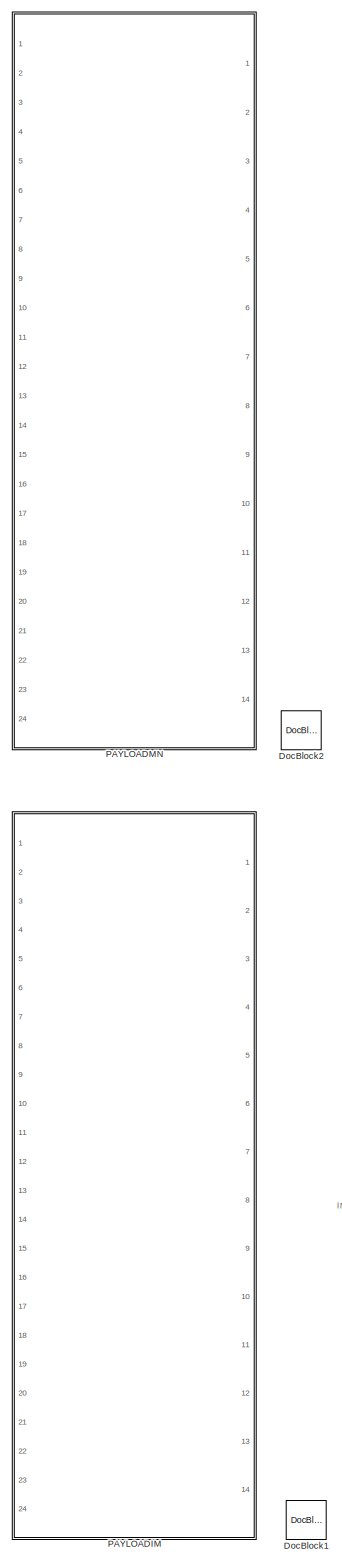
[diagram: root canvas - part 1/4, central region]
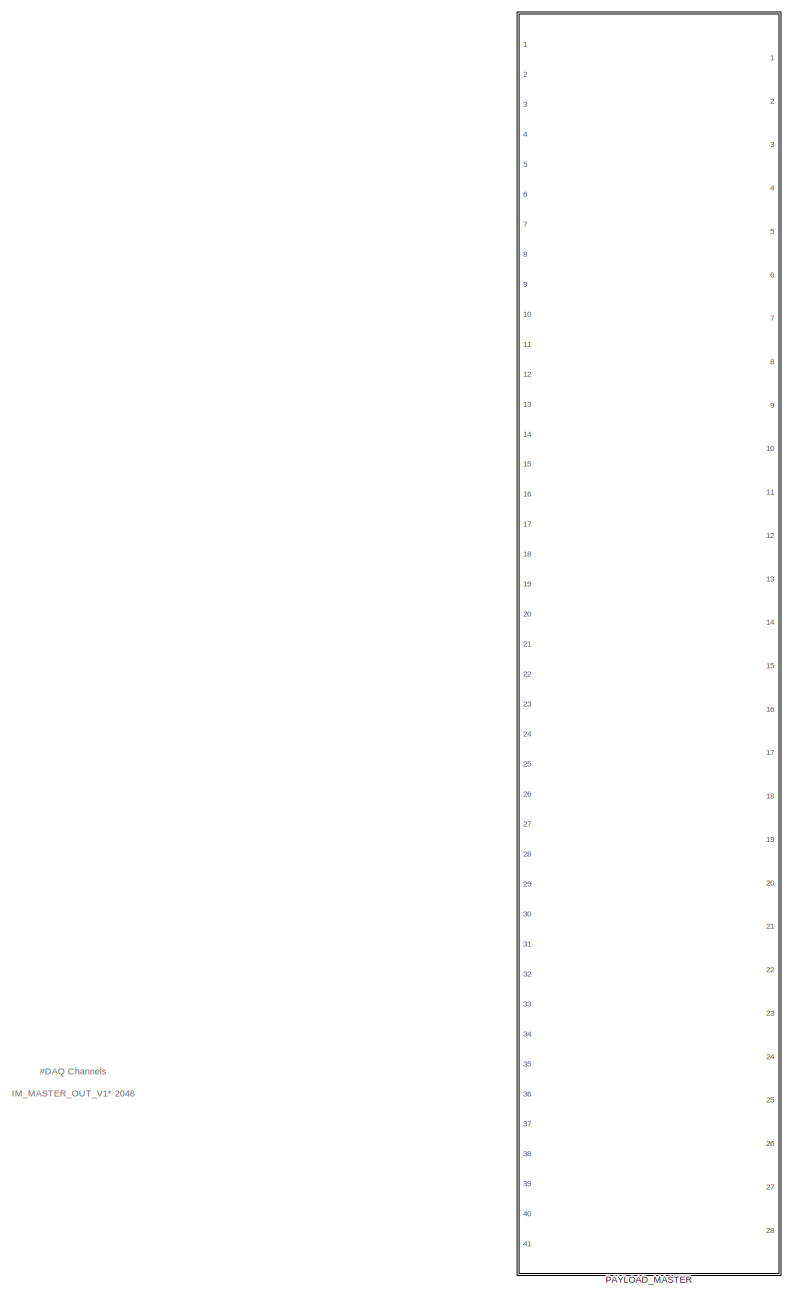
[diagram: root canvas - part 2/4, top right region]
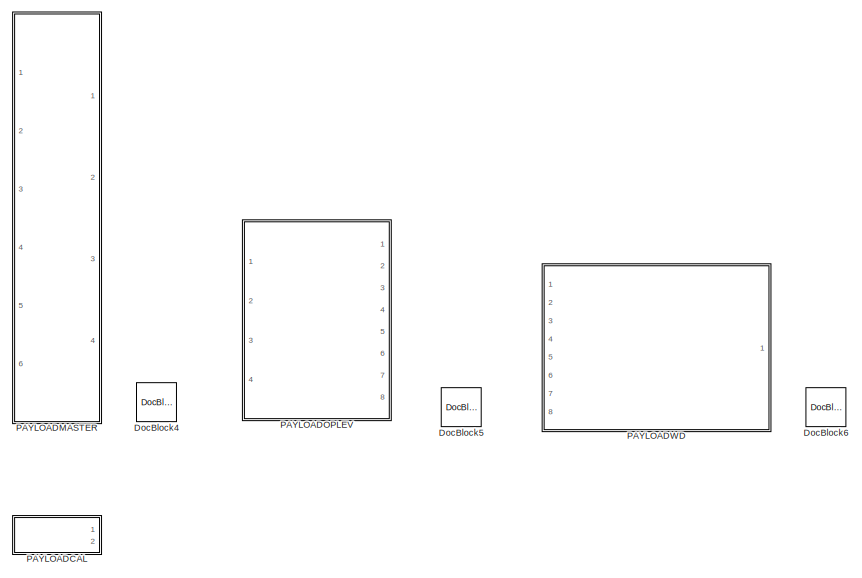
[diagram: root canvas - part 3/4, top left region]
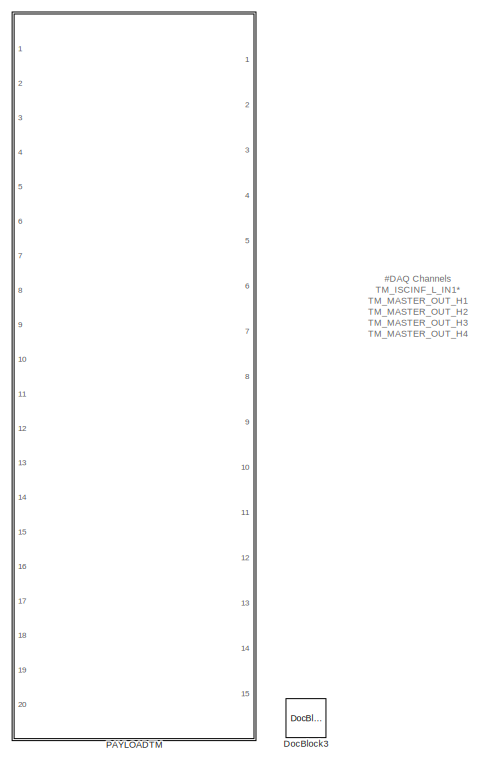
[diagram: root canvas - part 4/4, bottom center region]
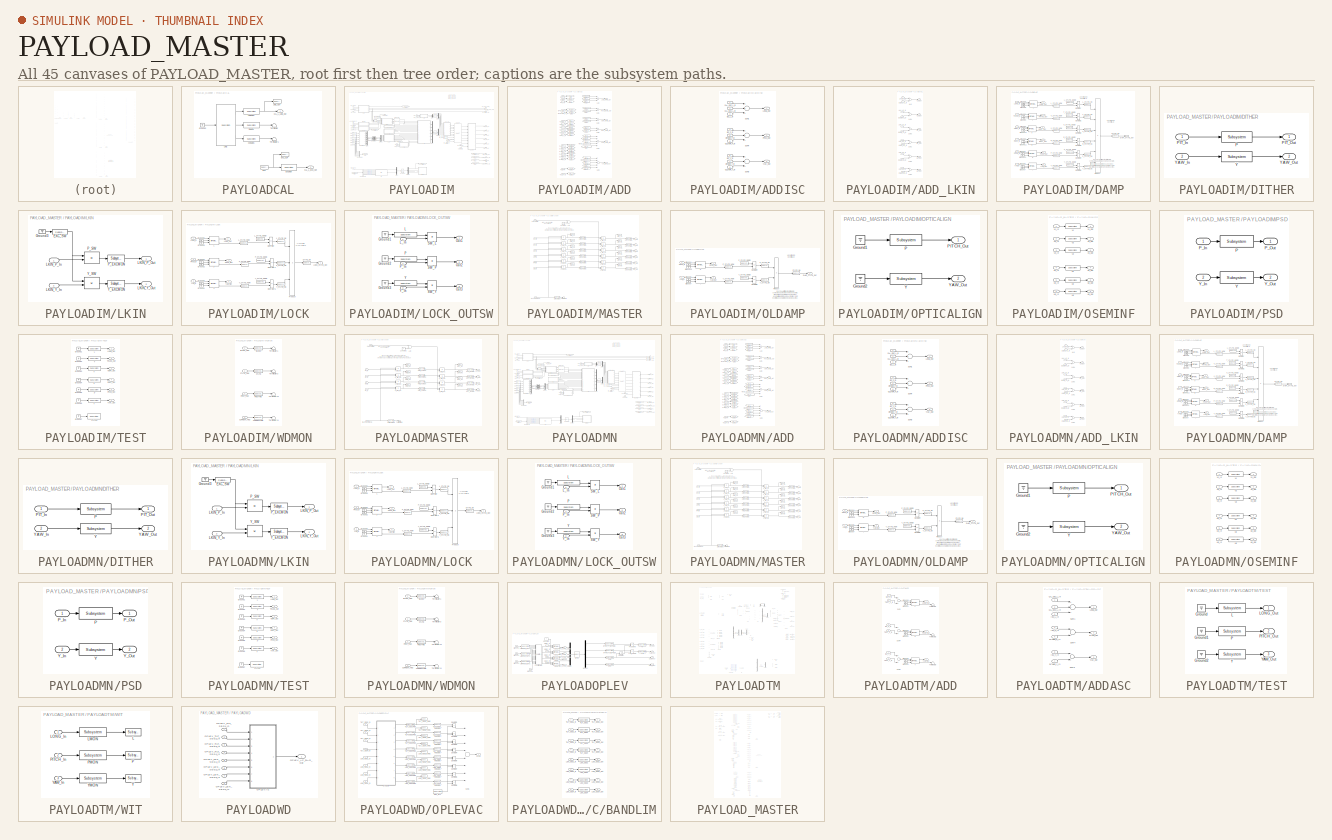
[diagram: thumbnail index - all 45 canvases of the model, root first then tree order]
MODEL PAYLOAD_MASTER
KIND library
BLOCK [Reference] DocBlock1  REF=simulink/Model-Wide\nUtilities/DocBlock
  DocumentType = Text
  Ports = []
  SID = 9333
  SourceBlock = simulink/Model-Wide\nUtilities/DocBlock
  SourceType = DocBlock
  UserData = DataTag0
  UserDataPersistent = on
BLOCK [Reference] DocBlock2  REF=simulink/Model-Wide\nUtilities/DocBlock
  DocumentType = Text
  Ports = []
  SID = 9334
  SourceBlock = simulink/Model-Wide\nUtilities/DocBlock
  SourceType = DocBlock
  UserData = DataTag1
  UserDataPersistent = on
BLOCK [Reference] DocBlock3  REF=simulink/Model-Wide\nUtilities/DocBlock
  DocumentType = Text
  Ports = []
  SID = 9335
  SourceBlock = simulink/Model-Wide\nUtilities/DocBlock
  SourceType = DocBlock
  UserData = DataTag2
  UserDataPersistent = on
BLOCK [Reference] DocBlock4  REF=simulink/Model-Wide\nUtilities/DocBlock
  DocumentType = Text
  Ports = []
  SID = 9336
  SourceBlock = simulink/Model-Wide\nUtilities/DocBlock
  SourceType = DocBlock
  UserData = DataTag3
  UserDataPersistent = on
BLOCK [Reference] DocBlock5  REF=simulink/Model-Wide\nUtilities/DocBlock
  DocumentType = Text
  Ports = []
  SID = 9337
  SourceBlock = simulink/Model-Wide\nUtilities/DocBlock
  SourceType = DocBlock
  UserData = DataTag4
  UserDataPersistent = on
BLOCK [Reference] DocBlock6  REF=simulink/Model-Wide\nUtilities/DocBlock
  DocumentType = Text
  Ports = []
  SID = 9338
  SourceBlock = simulink/Model-Wide\nUtilities/DocBlock
  SourceType = DocBlock
  UserData = DataTag5
  UserDataPersistent = on
BLOCK [SubSystem] PAYLOADCAL
  Ports = [0, 2]
  RequestExecContextInheritance = off
  SID = 11257
  Variant = off
BLOCK [Outport] PAYLOADCAL/CAL_L_EXC_Out
  IconDisplay = Port number
  Port = 2
  SID = 11260
BLOCK [Outport] PAYLOADCAL/CAL_L_LINE_Out
  IconDisplay = Port number
  SID = 11258
BLOCK [Reference] PAYLOADCAL/COSMON  REF=cdsEpicsOut/Subsystem
  AttributesFormatString = %<Tag>
  Description = Purpose:                                          \nOutput a FE signal to an EPICS channel.           \n                                                  \nOperation:                                        \nTakes input value and passes it to EPICS record.  \n                                                  \nUsage:                                            \nName the part with the desired EPICS...<+14ch>  <repeated x103 — deduplicated; at blocks: COSMON, EXCMON, LINEMON, SINMON, L_STATE_NOW, L_STATE_OK, P_STATE_NOW, P_STATE_OK, R_STATE_NOW, R_STATE_OK, STATE_OK, T_STATE_NOW, T_STATE_OK, V_STATE_NOW, V_STATE_OK, Y_STATE_NOW, +28 more>
  Ports = [1, 1]
  SID = 11252
  SourceBlock = cdsEpicsOut/Subsystem
  SourceType = SubSystem
  Tag = cdsEpicsOutput
BLOCK [Reference] PAYLOADCAL/EXC  REF=cdsEXC/Subsystem
  AttributesFormatString = %<Tag>
  Ports = [0, 1]
  SID = 11262
  SourceBlock = cdsEXC/Subsystem
  SourceType = SubSystem
  Tag = Excitation
BLOCK [Reference] PAYLOADCAL/EXCMON  REF=cdsEpicsOut/Subsystem
  AttributesFormatString = %<Tag>
  Ports = [1, 1]
  SID = 11259
  SourceBlock = cdsEpicsOut/Subsystem
  SourceType = SubSystem
  Tag = cdsEpicsOutput
BLOCK [Reference] PAYLOADCAL/EXC_OUT  REF=cdsTP/Subsystem
  AttributesFormatString = %<Tag>
  Ports = [1]
  SID = 11261
  SourceBlock = cdsTP/Subsystem
  SourceType = SubSystem
  Tag = Test Point
BLOCK [Ground] PAYLOADCAL/Ground2
  SID = 11248
BLOCK [Reference] PAYLOADCAL/LINE  REF=cdsOscFixedPhase/Subsystem
  AttributesFormatString = %<Tag>
  Description = ADL=OSC.adl
  Ports = [1, 3]
  SID = 11249
  SourceBlock = cdsOscFixedPhase/Subsystem
  SourceType = SubSystem
  Tag = cdsOscFixedPhase
BLOCK [Reference] PAYLOADCAL/LINEMON  REF=cdsEpicsOut/Subsystem
  AttributesFormatString = %<Tag>
  Ports = [1, 1]
  SID = 11250
  SourceBlock = cdsEpicsOut/Subsystem
  SourceType = SubSystem
  Tag = cdsEpicsOutput
BLOCK [Reference] PAYLOADCAL/LINE_OUT  REF=cdsTP/Subsystem
  AttributesFormatString = %<Tag>
  Ports = [1]
  SID = 11253
  SourceBlock = cdsTP/Subsystem
  SourceType = SubSystem
  Tag = Test Point
BLOCK [Reference] PAYLOADCAL/SINMON  REF=cdsEpicsOut/Subsystem
  AttributesFormatString = %<Tag>
  Ports = [1, 1]
  SID = 11251
  SourceBlock = cdsEpicsOut/Subsystem
  SourceType = SubSystem
  Tag = cdsEpicsOutput
BLOCK [Terminator] PAYLOADCAL/Terminator
  SID = 11254
BLOCK [Terminator] PAYLOADCAL/Terminator1
  SID = 11255
BLOCK [SubSystem] PAYLOADIM
  Description = SIXOSEMSTAGE_FACE_MASTER
  Ports = [24, 14]
  RequestExecContextInheritance = off
  SID = 7597
  Variant = off
BLOCK [SubSystem] PAYLOADIM/ADD
  Ports = [19, 6]
  RequestExecContextInheritance = off
  SID = 7630
  Variant = off
BLOCK [Inport] PAYLOADIM/ADD/DAMP_L_In
  IconDisplay = Port number
  Port = 12
  SID = 7642
BLOCK [Inport] PAYLOADIM/ADD/DAMP_P_In
  IconDisplay = Port number
  Port = 16
  SID = 7646
BLOCK [Inport] PAYLOADIM/ADD/DAMP_R_In
  IconDisplay = Port number
  Port = 15
  SID = 7645
BLOCK [Inport] PAYLOADIM/ADD/DAMP_T_In
  IconDisplay = Port number
  Port = 13
  SID = 7643
BLOCK [Inport] PAYLOADIM/ADD/DAMP_V_In
  IconDisplay = Port number
  Port = 14
  SID = 7644
BLOCK [Inport] PAYLOADIM/ADD/DAMP_Y_In
  IconDisplay = Port number
  Port = 17
  SID = 7647
BLOCK [From] PAYLOADIM/ADD/From
  GotoTag = PSD_PIT
  SID = 7650
BLOCK [From] PAYLOADIM/ADD/From1
  CloseFcn = tagdialog Close
  GotoTag = TEST_L
  SID = 7651
BLOCK [From] PAYLOADIM/ADD/From10
  CloseFcn = tagdialog Close
  GotoTag = DAMP_Y
  SID = 7652
BLOCK [From] PAYLOADIM/ADD/From11
  CloseFcn = tagdialog Close
  GotoTag = OPTICALIGN_Y
  SID = 7653
BLOCK [From] PAYLOADIM/ADD/From12
  CloseFcn = tagdialog Close
  GotoTag = TEST_R
  SID = 7654
BLOCK [From] PAYLOADIM/ADD/From13
  CloseFcn = tagdialog Close
  GotoTag = DAMP_R
  SID = 7655
BLOCK [From] PAYLOADIM/ADD/From14
  CloseFcn = tagdialog Close
  GotoTag = TEST_V
  SID = 7656
BLOCK [From] PAYLOADIM/ADD/From15
  CloseFcn = tagdialog Close
  GotoTag = DAMP_V
  SID = 7657
BLOCK [From] PAYLOADIM/ADD/From16
  CloseFcn = tagdialog Close
  GotoTag = TEST_T
  SID = 7658
BLOCK [From] PAYLOADIM/ADD/From17
  CloseFcn = tagdialog Close
  GotoTag = DAMP_T
  SID = 7659
BLOCK [From] PAYLOADIM/ADD/From18
  GotoTag = PSD_YAW
  SID = 7660
BLOCK [From] PAYLOADIM/ADD/From2
  CloseFcn = tagdialog Close
  GotoTag = ISC_L
  SID = 7661
BLOCK [From] PAYLOADIM/ADD/From3
  CloseFcn = tagdialog Close
  GotoTag = DAMP_L
  SID = 7662
BLOCK [From] PAYLOADIM/ADD/From4
  CloseFcn = tagdialog Close
  GotoTag = TEST_P
  SID = 7663
BLOCK [From] PAYLOADIM/ADD/From5
  CloseFcn = tagdialog Close
  GotoTag = ISC_P
  SID = 7664
BLOCK [From] PAYLOADIM/ADD/From6
  CloseFcn = tagdialog Close
  GotoTag = DAMP_P
  SID = 7665
BLOCK [From] PAYLOADIM/ADD/From7
  CloseFcn = tagdialog Close
  GotoTag = OPTICALIGN_P
  SID = 7666
BLOCK [From] PAYLOADIM/ADD/From8
  CloseFcn = tagdialog Close
  GotoTag = TEST_Y
  SID = 7667
BLOCK [From] PAYLOADIM/ADD/From9
  CloseFcn = tagdialog Close
  GotoTag = ISC_Y
  SID = 7668
BLOCK [Goto] PAYLOADIM/ADD/Goto
  GotoTag = ISC_L
  SID = 7669
BLOCK [Goto] PAYLOADIM/ADD/Goto1
  GotoTag = ISC_P
  SID = 7670
BLOCK [Goto] PAYLOADIM/ADD/Goto10
  GotoTag = TEST_V
  SID = 7671
BLOCK [Goto] PAYLOADIM/ADD/Goto11
  GotoTag = DAMP_V
  SID = 7672
BLOCK [Goto] PAYLOADIM/ADD/Goto12
  GotoTag = DAMP_L
  SID = 7673
BLOCK [Goto] PAYLOADIM/ADD/Goto13
  GotoTag = DAMP_P
  SID = 7674
BLOCK [Goto] PAYLOADIM/ADD/Goto14
  GotoTag = DAMP_Y
  SID = 7675
BLOCK [Goto] PAYLOADIM/ADD/Goto15
  GotoTag = DAMP_T
  SID = 7676
BLOCK [Goto] PAYLOADIM/ADD/Goto16
  GotoTag = DAMP_R
  SID = 7677
BLOCK [Goto] PAYLOADIM/ADD/Goto17
  GotoTag = PSD_PIT
  SID = 7678
BLOCK [Goto] PAYLOADIM/ADD/Goto18
  GotoTag = PSD_YAW
  SID = 7679
BLOCK [Goto] PAYLOADIM/ADD/Goto2
  GotoTag = ISC_Y
  SID = 7680
BLOCK [Goto] PAYLOADIM/ADD/Goto3
  GotoTag = TEST_L
  SID = 7681
BLOCK [Goto] PAYLOADIM/ADD/Goto4
  GotoTag = OPTICALIGN_P
  SID = 7682
BLOCK [Goto] PAYLOADIM/ADD/Goto5
  GotoTag = OPTICALIGN_Y
  SID = 7683
BLOCK [Goto] PAYLOADIM/ADD/Goto6
  GotoTag = TEST_P
  SID = 7684
BLOCK [Goto] PAYLOADIM/ADD/Goto7
  GotoTag = TEST_Y
  SID = 7685
BLOCK [Goto] PAYLOADIM/ADD/Goto8
  GotoTag = TEST_T
  SID = 7686
BLOCK [Goto] PAYLOADIM/ADD/Goto9
  GotoTag = TEST_R
  SID = 7687
BLOCK [Inport] PAYLOADIM/ADD/ISC_L_In
  IconDisplay = Port number
  SID = 7631
BLOCK [Inport] PAYLOADIM/ADD/ISC_P_In
  IconDisplay = Port number
  Port = 2
  SID = 7632
BLOCK [Inport] PAYLOADIM/ADD/ISC_Y_In
  IconDisplay = Port number
  Port = 3
  SID = 7633
BLOCK [Outport] PAYLOADIM/ADD/LONG_MAIN_Out
  IconDisplay = Port number
  SID = 7694
BLOCK [Inport] PAYLOADIM/ADD/OPTICALIGN_P_In
  IconDisplay = Port number
  Port = 4
  SID = 7634
BLOCK [Inport] PAYLOADIM/ADD/OPTICALIGN_Y_In
  IconDisplay = Port number
  Port = 5
  SID = 7635
BLOCK [Outport] PAYLOADIM/ADD/PITCH_MAIN_Out
  IconDisplay = Port number
  Port = 5
  SID = 7698
BLOCK [Inport] PAYLOADIM/ADD/PSD_PIT
  IconDisplay = Port number
  Port = 18
  SID = 7648
BLOCK [Inport] PAYLOADIM/ADD/PSD_YAW
  IconDisplay = Port number
  Port = 19
  SID = 7649
BLOCK [Outport] PAYLOADIM/ADD/ROLL_MAIN_Out
  IconDisplay = Port number
  Port = 4
  SID = 7697
BLOCK [Sum] PAYLOADIM/ADD/Sum
  InputSameDT = off
  Inputs = +++
  OutDataTypeStr = Inherit: Inherit via internal rule
  Ports = [3, 1]
  SID = 7688
  SaturateOnIntegerOverflow = off
BLOCK [Sum] PAYLOADIM/ADD/Sum1
  InputSameDT = off
  OutDataTypeStr = Inherit: Inherit via internal rule
  Ports = [2, 1]
  SID = 7689
  SaturateOnIntegerOverflow = off
BLOCK [Sum] PAYLOADIM/ADD/Sum2
  InputSameDT = off
  OutDataTypeStr = Inherit: Inherit via internal rule
  Ports = [2, 1]
  SID = 7690
  SaturateOnIntegerOverflow = off
BLOCK [Sum] PAYLOADIM/ADD/Sum3
  InputSameDT = off
  Inputs = +++++
  OutDataTypeStr = Inherit: Inherit via internal rule
  Ports = [5, 1]
  SID = 7691
  SaturateOnIntegerOverflow = off
BLOCK [Sum] PAYLOADIM/ADD/Sum4
  InputSameDT = off
  Inputs = +++++
  OutDataTypeStr = Inherit: Inherit via internal rule
  Ports = [5, 1]
  SID = 7692
  SaturateOnIntegerOverflow = off
BLOCK [Sum] PAYLOADIM/ADD/Sum5
  InputSameDT = off
  OutDataTypeStr = Inherit: Inherit via internal rule
  Ports = [2, 1]
  SID = 7693
  SaturateOnIntegerOverflow = off
BLOCK [Inport] PAYLOADIM/ADD/TEST_L_In
  IconDisplay = Port number
  Port = 6
  SID = 7636
BLOCK [Inport] PAYLOADIM/ADD/TEST_P_In
  IconDisplay = Port number
  Port = 10
  SID = 7640
BLOCK [Inport] PAYLOADIM/ADD/TEST_R_In
  IconDisplay = Port number
  Port = 9
  SID = 7639
BLOCK [Inport] PAYLOADIM/ADD/TEST_T_In
  IconDisplay = Port number
  Port = 7
  SID = 7637
BLOCK [Inport] PAYLOADIM/ADD/TEST_V_In
  IconDisplay = Port number
  Port = 8
  SID = 7638
BLOCK [Inport] PAYLOADIM/ADD/TEST_Y_In
  IconDisplay = Port number
  Port = 11
  SID = 7641
BLOCK [Outport] PAYLOADIM/ADD/TRANS_MAIN_Out
  IconDisplay = Port number
  Port = 2
  SID = 7695
BLOCK [Outport] PAYLOADIM/ADD/VERT_MAIN_Out
  IconDisplay = Port number
  Port = 3
  SID = 7696
BLOCK [Outport] PAYLOADIM/ADD/YAW_MAIN_Out
  IconDisplay = Port number
  Port = 6
  SID = 7699
BLOCK [SubSystem] PAYLOADIM/ADDISC
  Ports = [9, 3]
  RequestExecContextInheritance = off
  SID = 7700
  Variant = off
BLOCK [Inport] PAYLOADIM/ADDISC/CAL_EXC_L_In
  IconDisplay = Port number
  Port = 2
  SID = 8777
BLOCK [Inport] PAYLOADIM/ADDISC/CAL_OSC_L_In
  IconDisplay = Port number
  SID = 8776
BLOCK [Inport] PAYLOADIM/ADDISC/DITHER_P_In
  IconDisplay = Port number
  Port = 6
  SID = 8098
BLOCK [Inport] PAYLOADIM/ADDISC/DITHER_Y_In
  IconDisplay = Port number
  Port = 7
  SID = 8099
BLOCK [Inport] PAYLOADIM/ADDISC/ISC_L_In
  IconDisplay = Port number
  Port = 3
  SID = 8780
BLOCK [Inport] PAYLOADIM/ADDISC/ISC_P_In
  IconDisplay = Port number
  Port = 4
  SID = 8096
BLOCK [Inport] PAYLOADIM/ADDISC/ISC_Y_In
  IconDisplay = Port number
  Port = 5
  SID = 8097
BLOCK [Outport] PAYLOADIM/ADDISC/LONG_Out
  IconDisplay = Port number
  SID = 8779
BLOCK [Inport] PAYLOADIM/ADDISC/OLDAMP_P_In
  IconDisplay = Port number
  Port = 8
  SID = 8781
BLOCK [Inport] PAYLOADIM/ADDISC/OLDAMP_Y_In
  IconDisplay = Port number
  Port = 9
  SID = 8782
BLOCK [Outport] PAYLOADIM/ADDISC/PITCH_Out
  IconDisplay = Port number
  Port = 2
  SID = 8106
BLOCK [Sum] PAYLOADIM/ADDISC/Sum1
  InputSameDT = off
  Inputs = +++
  OutDataTypeStr = Inherit: Inherit via internal rule
  Ports = [3, 1]
  SID = 8778
  SaturateOnIntegerOverflow = off
BLOCK [Sum] PAYLOADIM/ADDISC/Sum3
  InputSameDT = off
  Inputs = +++
  OutDataTypeStr = Inherit: Inherit via internal rule
  Ports = [3, 1]
  SID = 8104
  SaturateOnIntegerOverflow = off
BLOCK [Sum] PAYLOADIM/ADDISC/Sum4
  InputSameDT = off
  Inputs = +++
  OutDataTypeStr = Inherit: Inherit via internal rule
  Ports = [3, 1]
  SID = 8105
  SaturateOnIntegerOverflow = off
BLOCK [Outport] PAYLOADIM/ADDISC/YAW_Out
  IconDisplay = Port number
  Port = 3
  SID = 8107
BLOCK [SubSystem] PAYLOADIM/ADD_LKIN
  Ports = [12, 6]
  RequestExecContextInheritance = off
  SID = 7701
  Variant = off
BLOCK [Outport] PAYLOADIM/ADD_LKIN/H1_Out
  IconDisplay = Port number
  Port = 4
  SID = 7723
BLOCK [Outport] PAYLOADIM/ADD_LKIN/H2_Out
  IconDisplay = Port number
  Port = 5
  SID = 7724
BLOCK [Outport] PAYLOADIM/ADD_LKIN/H3_Out
  IconDisplay = Port number
  Port = 6
  SID = 7725
BLOCK [Inport] PAYLOADIM/ADD_LKIN/LKIN_H1_In
  IconDisplay = Port number
  Port = 4
  SID = 7705
BLOCK [Inport] PAYLOADIM/ADD_LKIN/LKIN_H2_In
  IconDisplay = Port number
  Port = 5
  SID = 7706
BLOCK [Inport] PAYLOADIM/ADD_LKIN/LKIN_H3_In
  IconDisplay = Port number
  Port = 6
  SID = 7707
BLOCK [Inport] PAYLOADIM/ADD_LKIN/LKIN_V3_In
  IconDisplay = Port number
  Port = 3
  SID = 7704
BLOCK [Inport] PAYLOADIM/ADD_LKIN/LKN_V1_In
  IconDisplay = Port number
  SID = 7702
BLOCK [Inport] PAYLOADIM/ADD_LKIN/LKN_V2_In
  IconDisplay = Port number
  Port = 2
  SID = 7703
BLOCK [Inport] PAYLOADIM/ADD_LKIN/OSEM_H1_In
  IconDisplay = Port number
  Port = 10
  SID = 7711
BLOCK [Inport] PAYLOADIM/ADD_LKIN/OSEM_H2_In
  IconDisplay = Port number
  Port = 11
  SID = 7712
BLOCK [Inport] PAYLOADIM/ADD_LKIN/OSEM_H3_In
  IconDisplay = Port number
  Port = 12
  SID = 7713
BLOCK [Inport] PAYLOADIM/ADD_LKIN/OSEM_V1_In
  IconDisplay = Port number
  Port = 7
  SID = 7708
BLOCK [Inport] PAYLOADIM/ADD_LKIN/OSEM_V2_In
  IconDisplay = Port number
  Port = 8
  SID = 7709
BLOCK [Inport] PAYLOADIM/ADD_LKIN/OSEM_V3_In
  IconDisplay = Port number
  Port = 9
  SID = 7710
BLOCK [Sum] PAYLOADIM/ADD_LKIN/Sum
  InputSameDT = off
  OutDataTypeStr = Inherit: Inherit via internal rule
  Ports = [2, 1]
  SID = 7714
  SaturateOnIntegerOverflow = off
BLOCK [Sum] PAYLOADIM/ADD_LKIN/Sum1
  InputSameDT = off
  OutDataTypeStr = Inherit: Inherit via internal rule
  Ports = [2, 1]
  SID = 7715
  SaturateOnIntegerOverflow = off
BLOCK [Sum] PAYLOADIM/ADD_LKIN/Sum2
  InputSameDT = off
  OutDataTypeStr = Inherit: Inherit via internal rule
  Ports = [2, 1]
  SID = 7716
  SaturateOnIntegerOverflow = off
BLOCK [Sum] PAYLOADIM/ADD_LKIN/Sum3
  InputSameDT = off
  OutDataTypeStr = Inherit: Inherit via internal rule
  Ports = [2, 1]
  SID = 7717
  SaturateOnIntegerOverflow = off
BLOCK [Sum] PAYLOADIM/ADD_LKIN/Sum4
  InputSameDT = off
  OutDataTypeStr = Inherit: Inherit via internal rule
  Ports = [2, 1]
  SID = 7718
  SaturateOnIntegerOverflow = off
BLOCK [Sum] PAYLOADIM/ADD_LKIN/Sum5
  InputSameDT = off
  OutDataTypeStr = Inherit: Inherit via internal rule
  Ports = [2, 1]
  SID = 7719
  SaturateOnIntegerOverflow = off
BLOCK [Outport] PAYLOADIM/ADD_LKIN/V1_Out
  IconDisplay = Port number
  SID = 7720
BLOCK [Outport] PAYLOADIM/ADD_LKIN/V2_Out
  IconDisplay = Port number
  Port = 2
  SID = 7721
BLOCK [Outport] PAYLOADIM/ADD_LKIN/V3_Out
  IconDisplay = Port number
  Port = 3
  SID = 7722
BLOCK [Inport] PAYLOADIM/ASC_DITHER_PIT_In
  IconDisplay = Port number
  Port = 10
  SID = 7613
BLOCK [Inport] PAYLOADIM/ASC_DITHER_YAW_In
  IconDisplay = Port number
  Port = 11
  SID = 7614
BLOCK [BusCreator] PAYLOADIM/Bus\nCreator1
  DisplayOption = bar
  InheritFromInputs = on
  Inputs = 'OSEM_V1','OSEM_V2','OSEM_V3','OSEM_H1','OSEM_H2','OSEM_H3'
  Ports = [6, 1]
  SID = 7726
BLOCK [BusSelector] PAYLOADIM/Bus\nSelector
  OutputSignals = OSEM_V1,OSEM_V2,OSEM_V3,OSEM_H1,OSEM_H2,OSEM_H3
  Ports = [1, 6]
  SID = 7727
BLOCK [Outport] PAYLOADIM/CAL_L_LINE_OUTPUT
  IconDisplay = Port number
  Port = 14
  SID = 11266
BLOCK [Reference] PAYLOADIM/COILOUTF  REF=SIXOSEM_F_COILOUTF_MASTER/COILOUTF
  Ports = [10, 6]
  SID = 7729
  SourceBlock = SIXOSEM_F_COILOUTF_MASTER/COILOUTF
  SourceType = SubSystem
BLOCK [Outport] PAYLOADIM/COIL_H1_Out
  IconDisplay = Port number
  Port = 7
  SID = 8089
BLOCK [Outport] PAYLOADIM/COIL_H2_Out
  IconDisplay = Port number
  Port = 8
  SID = 8090
BLOCK [Outport] PAYLOADIM/COIL_H3_Out
  IconDisplay = Port number
  Port = 9
  SID = 8091
BLOCK [Outport] PAYLOADIM/COIL_V1_Out
  IconDisplay = Port number
  Port = 4
  SID = 8086
BLOCK [Outport] PAYLOADIM/COIL_V2_Out
  IconDisplay = Port number
  Port = 5
  SID = 8087
BLOCK [Outport] PAYLOADIM/COIL_V3_Out
  IconDisplay = Port number
  Port = 6
  SID = 8088
BLOCK [SubSystem] PAYLOADIM/DAMP
  Ports = [6, 7]
  RequestExecContextInheritance = off
  SID = 7730
  Variant = off
BLOCK [Outport] PAYLOADIM/DAMP/DAMP_STATE_Out
  IconDisplay = Port number
  Port = 7
  SID = 7787
BLOCK [Ground] PAYLOADIM/DAMP/Ground1
  SID = 7737
BLOCK [Ground] PAYLOADIM/DAMP/Ground10
  SID = 7738
BLOCK [Ground] PAYLOADIM/DAMP/Ground11
  SID = 7739
BLOCK [Ground] PAYLOADIM/DAMP/Ground12
  SID = 7740
BLOCK [Ground] PAYLOADIM/DAMP/Ground2
  SID = 7741
BLOCK [Ground] PAYLOADIM/DAMP/Ground3
  SID = 7742
BLOCK [Ground] PAYLOADIM/DAMP/Ground4
  SID = 7743
BLOCK [Ground] PAYLOADIM/DAMP/Ground5
  SID = 7744
BLOCK [Ground] PAYLOADIM/DAMP/Ground6
  SID = 7745
BLOCK [Ground] PAYLOADIM/DAMP/Ground7
  SID = 7746
BLOCK [Ground] PAYLOADIM/DAMP/Ground8
  SID = 7747
BLOCK [Ground] PAYLOADIM/DAMP/Ground9
  SID = 7748
BLOCK [Reference] PAYLOADIM/DAMP/L  REF=cdsFiltCtrl/IIR FM with control
  AttributesFormatString = %<Tag>
  Description = cdsFiltCntrl is the standard IIR filter module (exactly the same as cdsFilt) but with added control data output 'Ctrl'. Filter module digital signal output appears on the first output, which is called 'Val'. 'Ctrl' output has a bit pattern encoding the state of filter's on/off switches (FM1 through FM10). The bit values are:\n                                                                        ...<+4621ch>  <repeated x29 — deduplicated; at blocks: L, P, R, T, V, Y, SEG1, SEG2, SEG3, SEG4>
  Ports = [3, 2]
  SID = 7749
  SourceBlock = cdsFiltCtrl/IIR FM with control
  SourceType = SubSystem
  Tag = cdsFiltCtrl
BLOCK [Inport] PAYLOADIM/DAMP/LONG_In
  IconDisplay = Port number
  SID = 7731
BLOCK [Outport] PAYLOADIM/DAMP/LONG_Out
  IconDisplay = Port number
  SID = 7781
BLOCK [Reference] PAYLOADIM/DAMP/L_STATE_GOOD  REF=cdsEpicsIn/Subsystem
  AttributesFormatString = %<Tag>
  Description = Purpose:                                                                              \nCreate an EPICS input channel connection to the FE realtime controls.                 \n                                                                                      \nOperation:                                                                            \nOutputs value from an EPICS ai record. Value is ...<+266ch>  <repeated x25 — deduplicated; at blocks: L_STATE_GOOD, P_STATE_GOOD, R_STATE_GOOD, T_STATE_GOOD, V_STATE_GOOD, Y_STATE_GOOD, RMS_MAX, PICO_IM_STATUS, PICO_OP_STATUS>
  Ports = [0, 1]
  SID = 7750
  SourceBlock = cdsEpicsIn/Subsystem
  SourceType = SubSystem
  Tag = cdsEpicsIn
BLOCK [Reference] PAYLOADIM/DAMP/L_STATE_NOW  REF=cdsEpicsOut/Subsystem
  AttributesFormatString = %<Tag>
  Ports = [1, 1]
  SID = 7751
  SourceBlock = cdsEpicsOut/Subsystem
  SourceType = SubSystem
  Tag = cdsEpicsOutput
BLOCK [Reference] PAYLOADIM/DAMP/L_STATE_OK  REF=cdsEpicsOut/Subsystem
  AttributesFormatString = %<Tag>
  Ports = [1, 1]
  SID = 7752
  SourceBlock = cdsEpicsOut/Subsystem
  SourceType = SubSystem
  Tag = cdsEpicsOutput
BLOCK [RelationalOperator] PAYLOADIM/DAMP/Operator
  InputSameDT = off
  Operator = ==
  OutDataTypeStr = boolean
  Ports = [2, 1]
  SID = 7753
BLOCK [RelationalOperator] PAYLOADIM/DAMP/Operator1
  InputSameDT = off
  Operator = ==
  OutDataTypeStr = boolean
  Ports = [2, 1]
  SID = 7754
BLOCK [RelationalOperator] PAYLOADIM/DAMP/Operator2
  InputSameDT = off
  Operator = ==
  OutDataTypeStr = boolean
  Ports = [2, 1]
  SID = 7755
BLOCK [RelationalOperator] PAYLOADIM/DAMP/Operator3
  InputSameDT = off
  Operator = ==
  OutDataTypeStr = boolean
  Ports = [2, 1]
  SID = 7756
BLOCK [RelationalOperator] PAYLOADIM/DAMP/Operator4
  InputSameDT = off
  Operator = ==
  OutDataTypeStr = boolean
  Ports = [2, 1]
  SID = 7757
BLOCK [RelationalOperator] PAYLOADIM/DAMP/Operator5
  InputSameDT = off
  Operator = ==
  OutDataTypeStr = boolean
  Ports = [2, 1]
  SID = 7758
BLOCK [Reference] PAYLOADIM/DAMP/P  REF=cdsFiltCtrl/IIR FM with control
  AttributesFormatString = %<Tag>
  Ports = [3, 2]
  SID = 7759
  SourceBlock = cdsFiltCtrl/IIR FM with control
  SourceType = SubSystem
  Tag = cdsFiltCtrl
BLOCK [Inport] PAYLOADIM/DAMP/PITCH_In
  IconDisplay = Port number
  Port = 5
  SID = 7735
BLOCK [Outport] PAYLOADIM/DAMP/PITCH_Out
  IconDisplay = Port number
  Port = 5
  SID = 7785
BLOCK [Reference] PAYLOADIM/DAMP/P_STATE_GOOD  REF=cdsEpicsIn/Subsystem
  AttributesFormatString = %<Tag>
  Ports = [0, 1]
  SID = 7760
  SourceBlock = cdsEpicsIn/Subsystem
  SourceType = SubSystem
  Tag = cdsEpicsIn
BLOCK [Reference] PAYLOADIM/DAMP/P_STATE_NOW  REF=cdsEpicsOut/Subsystem
  AttributesFormatString = %<Tag>
  Ports = [1, 1]
  SID = 7761
  SourceBlock = cdsEpicsOut/Subsystem
  SourceType = SubSystem
  Tag = cdsEpicsOutput
BLOCK [Reference] PAYLOADIM/DAMP/P_STATE_OK  REF=cdsEpicsOut/Subsystem
  AttributesFormatString = %<Tag>
  Ports = [1, 1]
  SID = 7762
  SourceBlock = cdsEpicsOut/Subsystem
  SourceType = SubSystem
  Tag = cdsEpicsOutput
BLOCK [Product] PAYLOADIM/DAMP/Product
  InputSameDT = off
  Inputs = 6
  OutDataTypeStr = Inherit: Inherit via internal rule
  Ports = [6, 1]
  SID = 7763
  SaturateOnIntegerOverflow = off
BLOCK [Reference] PAYLOADIM/DAMP/R  REF=cdsFiltCtrl/IIR FM with control
  AttributesFormatString = %<Tag>
  Ports = [3, 2]
  SID = 7764
  SourceBlock = cdsFiltCtrl/IIR FM with control
  SourceType = SubSystem
  Tag = cdsFiltCtrl
BLOCK [Inport] PAYLOADIM/DAMP/ROLL_In
  IconDisplay = Port number
  Port = 4
  SID = 7734
BLOCK [Outport] PAYLOADIM/DAMP/ROLL_Out
  IconDisplay = Port number
  Port = 4
  SID = 7784
BLOCK [Reference] PAYLOADIM/DAMP/R_STATE_GOOD  REF=cdsEpicsIn/Subsystem
  AttributesFormatString = %<Tag>
  Ports = [0, 1]
  SID = 7765
  SourceBlock = cdsEpicsIn/Subsystem
  SourceType = SubSystem
  Tag = cdsEpicsIn
BLOCK [Reference] PAYLOADIM/DAMP/R_STATE_NOW  REF=cdsEpicsOut/Subsystem
  AttributesFormatString = %<Tag>
  Ports = [1, 1]
  SID = 7766
  SourceBlock = cdsEpicsOut/Subsystem
  SourceType = SubSystem
  Tag = cdsEpicsOutput
BLOCK [Reference] PAYLOADIM/DAMP/R_STATE_OK  REF=cdsEpicsOut/Subsystem
  AttributesFormatString = %<Tag>
  Ports = [1, 1]
  SID = 7767
  SourceBlock = cdsEpicsOut/Subsystem
  SourceType = SubSystem
  Tag = cdsEpicsOutput
BLOCK [Reference] PAYLOADIM/DAMP/STATE_OK  REF=cdsEpicsOut/Subsystem
  AttributesFormatString = %<Tag>
  Ports = [1, 1]
  SID = 7768
  SourceBlock = cdsEpicsOut/Subsystem
  SourceType = SubSystem
  Tag = cdsEpicsOutput
BLOCK [Reference] PAYLOADIM/DAMP/T  REF=cdsFiltCtrl/IIR FM with control
  AttributesFormatString = %<Tag>
  Ports = [3, 2]
  SID = 7769
  SourceBlock = cdsFiltCtrl/IIR FM with control
  SourceType = SubSystem
  Tag = cdsFiltCtrl
BLOCK [Inport] PAYLOADIM/DAMP/TRANS_In
  IconDisplay = Port number
  Port = 2
  SID = 7732
BLOCK [Outport] PAYLOADIM/DAMP/TRANS_Out
  IconDisplay = Port number
  Port = 2
  SID = 7782
BLOCK [Reference] PAYLOADIM/DAMP/T_STATE_GOOD  REF=cdsEpicsIn/Subsystem
  AttributesFormatString = %<Tag>
  Ports = [0, 1]
  SID = 7770
  SourceBlock = cdsEpicsIn/Subsystem
  SourceType = SubSystem
  Tag = cdsEpicsIn
BLOCK [Reference] PAYLOADIM/DAMP/T_STATE_NOW  REF=cdsEpicsOut/Subsystem
  AttributesFormatString = %<Tag>
  Ports = [1, 1]
  SID = 7771
  SourceBlock = cdsEpicsOut/Subsystem
  SourceType = SubSystem
  Tag = cdsEpicsOutput
BLOCK [Reference] PAYLOADIM/DAMP/T_STATE_OK  REF=cdsEpicsOut/Subsystem
  AttributesFormatString = %<Tag>
  Ports = [1, 1]
  SID = 7772
  SourceBlock = cdsEpicsOut/Subsystem
  SourceType = SubSystem
  Tag = cdsEpicsOutput
BLOCK [Reference] PAYLOADIM/DAMP/V  REF=cdsFiltCtrl/IIR FM with control
  AttributesFormatString = %<Tag>
  Ports = [3, 2]
  SID = 7773
  SourceBlock = cdsFiltCtrl/IIR FM with control
  SourceType = SubSystem
  Tag = cdsFiltCtrl
BLOCK [Inport] PAYLOADIM/DAMP/VERT_In
  IconDisplay = Port number
  Port = 3
  SID = 7733
BLOCK [Outport] PAYLOADIM/DAMP/VERT_Out
  IconDisplay = Port number
  Port = 3
  SID = 7783
BLOCK [Reference] PAYLOADIM/DAMP/V_STATE_GOOD  REF=cdsEpicsIn/Subsystem
  AttributesFormatString = %<Tag>
  Ports = [0, 1]
  SID = 7774
  SourceBlock = cdsEpicsIn/Subsystem
  SourceType = SubSystem
  Tag = cdsEpicsIn
BLOCK [Reference] PAYLOADIM/DAMP/V_STATE_NOW  REF=cdsEpicsOut/Subsystem
  AttributesFormatString = %<Tag>
  Ports = [1, 1]
  SID = 7775
  SourceBlock = cdsEpicsOut/Subsystem
  SourceType = SubSystem
  Tag = cdsEpicsOutput
BLOCK [Reference] PAYLOADIM/DAMP/V_STATE_OK  REF=cdsEpicsOut/Subsystem
  AttributesFormatString = %<Tag>
  Ports = [1, 1]
  SID = 7776
  SourceBlock = cdsEpicsOut/Subsystem
  SourceType = SubSystem
  Tag = cdsEpicsOutput
BLOCK [Reference] PAYLOADIM/DAMP/Y  REF=cdsFiltCtrl/IIR FM with control
  AttributesFormatString = %<Tag>
  Ports = [3, 2]
  SID = 7777
  SourceBlock = cdsFiltCtrl/IIR FM with control
  SourceType = SubSystem
  Tag = cdsFiltCtrl
BLOCK [Inport] PAYLOADIM/DAMP/YAW_In
  IconDisplay = Port number
  Port = 6
  SID = 7736
BLOCK [Outport] PAYLOADIM/DAMP/YAW_Out
  IconDisplay = Port number
  Port = 6
  SID = 7786
BLOCK [Reference] PAYLOADIM/DAMP/Y_STATE_GOOD  REF=cdsEpicsIn/Subsystem
  AttributesFormatString = %<Tag>
  Ports = [0, 1]
  SID = 7778
  SourceBlock = cdsEpicsIn/Subsystem
  SourceType = SubSystem
  Tag = cdsEpicsIn
BLOCK [Reference] PAYLOADIM/DAMP/Y_STATE_NOW  REF=cdsEpicsOut/Subsystem
  AttributesFormatString = %<Tag>
  Ports = [1, 1]
  SID = 7779
  SourceBlock = cdsEpicsOut/Subsystem
  SourceType = SubSystem
  Tag = cdsEpicsOutput
BLOCK [Reference] PAYLOADIM/DAMP/Y_STATE_OK  REF=cdsEpicsOut/Subsystem
  AttributesFormatString = %<Tag>
  Ports = [1, 1]
  SID = 7780
  SourceBlock = cdsEpicsOut/Subsystem
  SourceType = SubSystem
  Tag = cdsEpicsOutput
BLOCK [Outport] PAYLOADIM/DAMP_STATE_Out
  IconDisplay = Port number
  Port = 11
  SID = 8093
BLOCK [Outport] PAYLOADIM/DAMP_STATE_Out1
  IconDisplay = Port number
  Port = 13
  SID = 8875
BLOCK [SubSystem] PAYLOADIM/DITHER
  Ports = [2, 2]
  RequestExecContextInheritance = off
  SID = 7793
  Variant = off
BLOCK [Reference] PAYLOADIM/DITHER/P  REF=cdsFilt/Subsystem
  AttributesFormatString = %<Tag>
  Description = Purpose:                                                                                                                                                                                                                                  \nStandard CDS IIR filter module.                                                                                                                                     ...<+1302ch>  <repeated x54 — deduplicated; at blocks: P, Y, H1, H2, H3, V1, V2, V3, L, R, T, V, CRS, PIT, SUM, YAW, +11 more>
  Ports = [1, 1]
  SID = 7796
  SourceBlock = cdsFilt/Subsystem
  SourceType = SubSystem
  Tag = cdsFilt
BLOCK [Inport] PAYLOADIM/DITHER/PIT_In
  IconDisplay = Port number
  SID = 7794
BLOCK [Outport] PAYLOADIM/DITHER/PIT_Out
  IconDisplay = Port number
  SID = 7798
BLOCK [Reference] PAYLOADIM/DITHER/Y  REF=cdsFilt/Subsystem
  AttributesFormatString = %<Tag>
  Ports = [1, 1]
  SID = 7797
  SourceBlock = cdsFilt/Subsystem
  SourceType = SubSystem
  Tag = cdsFilt
BLOCK [Inport] PAYLOADIM/DITHER/YAW_In
  IconDisplay = Port number
  Port = 2
  SID = 7795
BLOCK [Outport] PAYLOADIM/DITHER/YAW_Out
  IconDisplay = Port number
  Port = 2
  SID = 7799
BLOCK [Reference] PAYLOADIM/DRIVEALIGN  REF=VIS_LIB/DRIVEALIGN
  Ports = [3, 3]
  SID = 7800
  SourceBlock = VIS_LIB/DRIVEALIGN
  SourceType = SubSystem
BLOCK [Demux] PAYLOADIM/Demux1
  DisplayOption = bar
  Outputs = 6
  Ports = [1, 6]
  SID = 7802
BLOCK [Demux] PAYLOADIM/Demux2
  DisplayOption = bar
  Outputs = 6
  Ports = [1, 6]
  SID = 7803
BLOCK [Demux] PAYLOADIM/Demux3
  DisplayOption = bar
  Outputs = 6
  Ports = [1, 6]
  SID = 7804
BLOCK [Demux] PAYLOADIM/Demux4
  DisplayOption = bar
  Outputs = 6
  Ports = [1, 6]
  SID = 7805
BLOCK [Demux] PAYLOADIM/Demux9
  DisplayOption = bar
  Ports = [1, 4]
  SID = 7807
BLOCK [Reference] PAYLOADIM/EUL2OSEM  REF=cdsMuxMatrix/Subsystem
  AttributesFormatString = %<Tag>
  Description = Any size matrix. Inputs and outputs must be connected using Mux and Demux parts.
  Ports = [1, 1]
  SID = 7808
  SourceBlock = cdsMuxMatrix/Subsystem
  SourceType = SubSystem
  Tag = cdsMuxMatrix
BLOCK [From] PAYLOADIM/From1
  CloseFcn = tagdialog Close
  GotoTag = OLDAMPSTATE
  SID = 8874
BLOCK [From] PAYLOADIM/From2
  CloseFcn = tagdialog Close
  GotoTag = OSEM2WD
  SID = 7816
BLOCK [From] PAYLOADIM/From4
  CloseFcn = tagdialog Close
  GotoTag = WDBLOCKFLAG
  SID = 7818
BLOCK [From] PAYLOADIM/From5
  CloseFcn = tagdialog Close
  GotoTag = DAMPSTATE
  SID = 7819
BLOCK [From] PAYLOADIM/From6
  CloseFcn = tagdialog Close
  GotoTag = LOCKSTATE
  SID = 7820
BLOCK [Goto] PAYLOADIM/Goto
  GotoTag = WDBLOCKFLAG
  SID = 7825
BLOCK [Goto] PAYLOADIM/Goto1
  GotoTag = OLDAMPSTATE
  SID = 8873
BLOCK [Goto] PAYLOADIM/Goto2
  GotoTag = OSEM2WD
  SID = 7829
BLOCK [Goto] PAYLOADIM/Goto3
  GotoTag = DAMPSTATE
  SID = 7830
BLOCK [Goto] PAYLOADIM/Goto4
  GotoTag = LOCKSTATE
  SID = 7831
BLOCK [Inport] PAYLOADIM/IM1_COILOUTF_CTRL
  IconDisplay = Port number
  Port = 12
  SID = 7615
BLOCK [Inport] PAYLOADIM/IM1_COILOUTF_MASK
  IconDisplay = Port number
  Port = 13
  SID = 7616
BLOCK [Inport] PAYLOADIM/IM2_COILOUTF_CTRL
  IconDisplay = Port number
  Port = 14
  SID = 7617
BLOCK [Inport] PAYLOADIM/IM2_COILOUTF_MASK
  IconDisplay = Port number
  Port = 15
  SID = 7618
BLOCK [Outport] PAYLOADIM/ISC_LOCK_LONG_Out
  IconDisplay = Port number
  SID = 8083
BLOCK [Outport] PAYLOADIM/ISC_LOCK_PITCH_Out
  IconDisplay = Port number
  Port = 2
  SID = 8084
BLOCK [Outport] PAYLOADIM/ISC_LOCK_YAW_Out
  IconDisplay = Port number
  Port = 3
  SID = 8085
BLOCK [Inport] PAYLOADIM/ISC_LONG_In
  IconDisplay = Port number
  Port = 7
  SID = 7610
BLOCK [Inport] PAYLOADIM/ISC_PITCH_In
  IconDisplay = Port number
  Port = 8
  SID = 7611
BLOCK [Inport] PAYLOADIM/ISC_YAW_In
  IconDisplay = Port number
  Port = 9
  SID = 7612
BLOCK [SubSystem] PAYLOADIM/LKIN
  Ports = [2, 2]
  RequestExecContextInheritance = off
  SID = 7877
  Variant = off
BLOCK [Reference] PAYLOADIM/LKIN/EXC_SW  REF=cdsEpicsBinIn/Subsystem
  AttributesFormatString = %<Tag>
  Description = Purpose:                                                                            \nCreate an EPICS binary (0 or 1) input channel to the FE realtime controls.          \n                                                                                    \nOperation:                                                                          \nOutputs value from an EPICS ai record. Value is binary i...<+252ch>  <repeated x14 — deduplicated; at blocks: EXC_SW, L, P, Y, STATUS, AWHITEN_SET1, AWHITEN_SET2, AWHITEN_SET3, COMMISH_STATUS>
  Ports = [1, 1]
  SID = 7880
  SourceBlock = cdsEpicsBinIn/Subsystem
  SourceType = SubSystem
  Tag = cdsEpicsBinIn
BLOCK [Ground] PAYLOADIM/LKIN/Ground3
  SID = 7881
BLOCK [Inport] PAYLOADIM/LKIN/LKIN_P_In
  IconDisplay = Port number
  SID = 7878
BLOCK [Outport] PAYLOADIM/LKIN/LKIN_P_Out
  IconDisplay = Port number
  SID = 7886
BLOCK [Inport] PAYLOADIM/LKIN/LKIN_Y_In
  IconDisplay = Port number
  Port = 2
  SID = 7879
BLOCK [Outport] PAYLOADIM/LKIN/LKIN_Y_Out
  IconDisplay = Port number
  Port = 2
  SID = 7887
BLOCK [Reference] PAYLOADIM/LKIN/P_EXCMON  REF=cdsEpicsOut/Subsystem
  AttributesFormatString = %<Tag>
  Ports = [1, 1]
  SID = 7882
  SourceBlock = cdsEpicsOut/Subsystem
  SourceType = SubSystem
  Tag = cdsEpicsOutput
BLOCK [Product] PAYLOADIM/LKIN/P_SW
  InputSameDT = off
  OutDataTypeStr = Inherit: Inherit via internal rule
  Ports = [2, 1]
  SID = 7883
  SaturateOnIntegerOverflow = off
BLOCK [Reference] PAYLOADIM/LKIN/Y_EXCMON  REF=cdsEpicsOut/Subsystem
  AttributesFormatString = %<Tag>
  Ports = [1, 1]
  SID = 7884
  SourceBlock = cdsEpicsOut/Subsystem
  SourceType = SubSystem
  Tag = cdsEpicsOutput
BLOCK [Product] PAYLOADIM/LKIN/Y_SW
  InputSameDT = off
  OutDataTypeStr = Inherit: Inherit via internal rule
  Ports = [2, 1]
  SID = 7885
  SaturateOnIntegerOverflow = off
BLOCK [Reference] PAYLOADIM/LKIN2OSEM  REF=cdsMuxMatrix/Subsystem
  AttributesFormatString = %<Tag>
  Description = Any size matrix. Inputs and outputs must be connected using Mux and Demux parts.
  Ports = [1, 1]
  SID = 7890
  SourceBlock = cdsMuxMatrix/Subsystem
  SourceType = SubSystem
  Tag = cdsMuxMatrix
BLOCK [Inport] PAYLOADIM/LKIN_P_EXC_In
  IconDisplay = Port number
  Port = 21
  SID = 8108
BLOCK [Inport] PAYLOADIM/LKIN_Y_EXC_In
  IconDisplay = Port number
  Port = 22
  SID = 8109
BLOCK [SubSystem] PAYLOADIM/LOCK
  Ports = [3, 4]
  RequestExecContextInheritance = off
  SID = 7894
  Variant = off
BLOCK [Ground] PAYLOADIM/LOCK/Ground1
  SID = 7898
BLOCK [Ground] PAYLOADIM/LOCK/Ground2
  SID = 7899
BLOCK [Ground] PAYLOADIM/LOCK/Ground3
  SID = 7900
BLOCK [Ground] PAYLOADIM/LOCK/Ground4
  SID = 7901
BLOCK [Ground] PAYLOADIM/LOCK/Ground5
  SID = 7902
BLOCK [Ground] PAYLOADIM/LOCK/Ground6
  SID = 7903
BLOCK [Reference] PAYLOADIM/LOCK/L  REF=cdsFiltCtrl/IIR FM with control
  AttributesFormatString = %<Tag>
  Ports = [3, 2]
  SID = 7904
  SourceBlock = cdsFiltCtrl/IIR FM with control
  SourceType = SubSystem
  Tag = cdsFiltCtrl
BLOCK [Outport] PAYLOADIM/LOCK/LOCK_STATE_Out
  IconDisplay = Port number
  SID = 7921
BLOCK [Inport] PAYLOADIM/LOCK/LONG_In
  IconDisplay = Port number
  SID = 7895
BLOCK [Outport] PAYLOADIM/LOCK/LONG_Out
  IconDisplay = Port number
  Port = 2
  SID = 7922
BLOCK [Reference] PAYLOADIM/LOCK/L_STATE_GOOD  REF=cdsEpicsIn/Subsystem
  AttributesFormatString = %<Tag>
  Ports = [0, 1]
  SID = 7905
  SourceBlock = cdsEpicsIn/Subsystem
  SourceType = SubSystem
  Tag = cdsEpicsIn
BLOCK [Reference] PAYLOADIM/LOCK/L_STATE_NOW  REF=cdsEpicsOut/Subsystem
  AttributesFormatString = %<Tag>
  Ports = [1, 1]
  SID = 7906
  SourceBlock = cdsEpicsOut/Subsystem
  SourceType = SubSystem
  Tag = cdsEpicsOutput
BLOCK [Reference] PAYLOADIM/LOCK/L_STATE_OK  REF=cdsEpicsOut/Subsystem
  AttributesFormatString = %<Tag>
  Ports = [1, 1]
  SID = 7907
  SourceBlock = cdsEpicsOut/Subsystem
  SourceType = SubSystem
  Tag = cdsEpicsOutput
BLOCK [RelationalOperator] PAYLOADIM/LOCK/Operator
  InputSameDT = off
  Operator = ==
  OutDataTypeStr = boolean
  Ports = [2, 1]
  SID = 7908
BLOCK [RelationalOperator] PAYLOADIM/LOCK/Operator4
  InputSameDT = off
  Operator = ==
  OutDataTypeStr = boolean
  Ports = [2, 1]
  SID = 7909
BLOCK [RelationalOperator] PAYLOADIM/LOCK/Operator5
  InputSameDT = off
  Operator = ==
  OutDataTypeStr = boolean
  Ports = [2, 1]
  SID = 7910
BLOCK [Reference] PAYLOADIM/LOCK/P  REF=cdsFiltCtrl/IIR FM with control
  AttributesFormatString = %<Tag>
  Ports = [3, 2]
  SID = 7911
  SourceBlock = cdsFiltCtrl/IIR FM with control
  SourceType = SubSystem
  Tag = cdsFiltCtrl
BLOCK [Inport] PAYLOADIM/LOCK/PITCH_In
  IconDisplay = Port number
  Port = 2
  SID = 7896
BLOCK [Outport] PAYLOADIM/LOCK/PITCH_Out
  IconDisplay = Port number
  Port = 3
  SID = 7923
BLOCK [Reference] PAYLOADIM/LOCK/P_STATE_GOOD  REF=cdsEpicsIn/Subsystem
  AttributesFormatString = %<Tag>
  Ports = [0, 1]
  SID = 7912
  SourceBlock = cdsEpicsIn/Subsystem
  SourceType = SubSystem
  Tag = cdsEpicsIn
BLOCK [Reference] PAYLOADIM/LOCK/P_STATE_NOW  REF=cdsEpicsOut/Subsystem
  AttributesFormatString = %<Tag>
  Ports = [1, 1]
  SID = 7913
  SourceBlock = cdsEpicsOut/Subsystem
  SourceType = SubSystem
  Tag = cdsEpicsOutput
BLOCK [Reference] PAYLOADIM/LOCK/P_STATE_OK  REF=cdsEpicsOut/Subsystem
  AttributesFormatString = %<Tag>
  Ports = [1, 1]
  SID = 7914
  SourceBlock = cdsEpicsOut/Subsystem
  SourceType = SubSystem
  Tag = cdsEpicsOutput
BLOCK [Product] PAYLOADIM/LOCK/Product
  InputSameDT = off
  Inputs = 3
  OutDataTypeStr = Inherit: Inherit via internal rule
  Ports = [3, 1]
  SID = 7915
  SaturateOnIntegerOverflow = off
BLOCK [Reference] PAYLOADIM/LOCK/STATE_OK  REF=cdsEpicsOut/Subsystem
  AttributesFormatString = %<Tag>
  Ports = [1, 1]
  SID = 7916
  SourceBlock = cdsEpicsOut/Subsystem
  SourceType = SubSystem
  Tag = cdsEpicsOutput
BLOCK [Reference] PAYLOADIM/LOCK/Y  REF=cdsFiltCtrl/IIR FM with control
  AttributesFormatString = %<Tag>
  Ports = [3, 2]
  SID = 7917
  SourceBlock = cdsFiltCtrl/IIR FM with control
  SourceType = SubSystem
  Tag = cdsFiltCtrl
BLOCK [Inport] PAYLOADIM/LOCK/YAW_In
  IconDisplay = Port number
  Port = 3
  SID = 7897
BLOCK [Outport] PAYLOADIM/LOCK/YAW_Out
  IconDisplay = Port number
  Port = 4
  SID = 7924
BLOCK [Reference] PAYLOADIM/LOCK/Y_STATE_GOOD  REF=cdsEpicsIn/Subsystem
  AttributesFormatString = %<Tag>
  Ports = [0, 1]
  SID = 7918
  SourceBlock = cdsEpicsIn/Subsystem
  SourceType = SubSystem
  Tag = cdsEpicsIn
BLOCK [Reference] PAYLOADIM/LOCK/Y_STATE_NOW  REF=cdsEpicsOut/Subsystem
  AttributesFormatString = %<Tag>
  Ports = [1, 1]
  SID = 7919
  SourceBlock = cdsEpicsOut/Subsystem
  SourceType = SubSystem
  Tag = cdsEpicsOutput
BLOCK [Reference] PAYLOADIM/LOCK/Y_STATE_OK  REF=cdsEpicsOut/Subsystem
  AttributesFormatString = %<Tag>
  Ports = [1, 1]
  SID = 7920
  SourceBlock = cdsEpicsOut/Subsystem
  SourceType = SubSystem
  Tag = cdsEpicsOutput
BLOCK [SubSystem] PAYLOADIM/LOCK_OUTSW
  Ports = [3, 3]
  RequestExecContextInheritance = off
  SID = 8794
  Variant = off
BLOCK [Ground] PAYLOADIM/LOCK_OUTSW/Ground1
  SID = 8786
BLOCK [Ground] PAYLOADIM/LOCK_OUTSW/Ground2
  SID = 8804
BLOCK [Ground] PAYLOADIM/LOCK_OUTSW/Ground3
  SID = 8808
BLOCK [Reference] PAYLOADIM/LOCK_OUTSW/L  REF=cdsEpicsBinIn/Subsystem
  AttributesFormatString = %<Tag>
  Ports = [1, 1]
  SID = 8785
  SourceBlock = cdsEpicsBinIn/Subsystem
  SourceType = SubSystem
  Tag = cdsEpicsBinIn
BLOCK [Inport] PAYLOADIM/LOCK_OUTSW/L_In
  IconDisplay = Port number
  SID = 8795
BLOCK [Outport] PAYLOADIM/LOCK_OUTSW/Out1
  IconDisplay = Port number
  SID = 8796
BLOCK [Outport] PAYLOADIM/LOCK_OUTSW/Out2
  IconDisplay = Port number
  Port = 2
  SID = 8806
BLOCK [Outport] PAYLOADIM/LOCK_OUTSW/Out3
  IconDisplay = Port number
  Port = 3
  SID = 8811
BLOCK [Reference] PAYLOADIM/LOCK_OUTSW/P  REF=cdsEpicsBinIn/Subsystem
  AttributesFormatString = %<Tag>
  Ports = [1, 1]
  SID = 8803
  SourceBlock = cdsEpicsBinIn/Subsystem
  SourceType = SubSystem
  Tag = cdsEpicsBinIn
BLOCK [Inport] PAYLOADIM/LOCK_OUTSW/P_In
  IconDisplay = Port number
  Port = 2
  SID = 8802
BLOCK [Product] PAYLOADIM/LOCK_OUTSW/SW_L
  InputSameDT = off
  OutDataTypeStr = Inherit: Inherit via internal rule
  Ports = [2, 1]
  SID = 8783
  SaturateOnIntegerOverflow = off
BLOCK [Product] PAYLOADIM/LOCK_OUTSW/SW_P
  InputSameDT = off
  OutDataTypeStr = Inherit: Inherit via internal rule
  Ports = [2, 1]
  SID = 8805
  SaturateOnIntegerOverflow = off
BLOCK [Product] PAYLOADIM/LOCK_OUTSW/SW_Y
  InputSameDT = off
  OutDataTypeStr = Inherit: Inherit via internal rule
  Ports = [2, 1]
  SID = 8810
  SaturateOnIntegerOverflow = off
BLOCK [Reference] PAYLOADIM/LOCK_OUTSW/Y  REF=cdsEpicsBinIn/Subsystem
  AttributesFormatString = %<Tag>
  Ports = [1, 1]
  SID = 8809
  SourceBlock = cdsEpicsBinIn/Subsystem
  SourceType = SubSystem
  Tag = cdsEpicsBinIn
BLOCK [Inport] PAYLOADIM/LOCK_OUTSW/Y_In
  IconDisplay = Port number
  Port = 3
  SID = 8807
BLOCK [Outport] PAYLOADIM/LOCK_STATE_Out
  IconDisplay = Port number
  Port = 12
  SID = 8094
BLOCK [SubSystem] PAYLOADIM/MASTER
  Ports = [8, 6]
  RequestExecContextInheritance = off
  SID = 7926
  Variant = off
BLOCK [Sum] PAYLOADIM/MASTER/Add
  InputSameDT = off
  Inputs = -+
  OutDataTypeStr = Inherit: Inherit via internal rule
  Ports = [2, 1]
  SID = 7935
  SaturateOnIntegerOverflow = off
BLOCK [Constant] PAYLOADIM/MASTER/Constant1
  SID = 7936
BLOCK [Inport] PAYLOADIM/MASTER/F1_In
  IconDisplay = Port number
  SID = 7927
BLOCK [Inport] PAYLOADIM/MASTER/F2_In
  IconDisplay = Port number
  Port = 2
  SID = 7928
BLOCK [Inport] PAYLOADIM/MASTER/F3_In
  IconDisplay = Port number
  Port = 3
  SID = 7929
BLOCK [Outport] PAYLOADIM/MASTER/H1_Out
  IconDisplay = Port number
  Port = 4
  SID = 7978
BLOCK [Outport] PAYLOADIM/MASTER/H2_Out
  IconDisplay = Port number
  Port = 5
  SID = 7979
BLOCK [Outport] PAYLOADIM/MASTER/H3_Out
  IconDisplay = Port number
  Port = 6
  SID = 7980
BLOCK [Inport] PAYLOADIM/MASTER/LF_In
  IconDisplay = Port number
  Port = 4
  SID = 7930
BLOCK [Inport] PAYLOADIM/MASTER/MASTERSWITCH
  IconDisplay = Port number
  Port = 7
  SID = 7933
BLOCK [Reference] PAYLOADIM/MASTER/OUT_H1  REF=cdsTP/Subsystem
  AttributesFormatString = %<Tag>
  Ports = [1]
  SID = 7937
  SourceBlock = cdsTP/Subsystem
  SourceType = SubSystem
  Tag = Test Point
BLOCK [Reference] PAYLOADIM/MASTER/OUT_H1MON  REF=cdsEpicsOut/Subsystem
  AttributesFormatString = %<Tag>
  Ports = [1, 1]
  SID = 7938
  SourceBlock = cdsEpicsOut/Subsystem
  SourceType = SubSystem
  Tag = cdsEpicsOutput
BLOCK [Reference] PAYLOADIM/MASTER/OUT_H2  REF=cdsTP/Subsystem
  AttributesFormatString = %<Tag>
  Ports = [1]
  SID = 7939
  SourceBlock = cdsTP/Subsystem
  SourceType = SubSystem
  Tag = Test Point
BLOCK [Reference] PAYLOADIM/MASTER/OUT_H2MON  REF=cdsEpicsOut/Subsystem
  AttributesFormatString = %<Tag>
  Ports = [1, 1]
  SID = 7940
  SourceBlock = cdsEpicsOut/Subsystem
  SourceType = SubSystem
  Tag = cdsEpicsOutput
BLOCK [Reference] PAYLOADIM/MASTER/OUT_H3  REF=cdsTP/Subsystem
  AttributesFormatString = %<Tag>
  Ports = [1]
  SID = 7941
  SourceBlock = cdsTP/Subsystem
  SourceType = SubSystem
  Tag = Test Point
BLOCK [Reference] PAYLOADIM/MASTER/OUT_H3MON  REF=cdsEpicsOut/Subsystem
  AttributesFormatString = %<Tag>
  Ports = [1, 1]
  SID = 7942
  SourceBlock = cdsEpicsOut/Subsystem
  SourceType = SubSystem
  Tag = cdsEpicsOutput
BLOCK [Reference] PAYLOADIM/MASTER/OUT_V1  REF=cdsTP/Subsystem
  AttributesFormatString = %<Tag>
  Ports = [1]
  SID = 7943
  SourceBlock = cdsTP/Subsystem
  SourceType = SubSystem
  Tag = Test Point
BLOCK [Reference] PAYLOADIM/MASTER/OUT_V1MON  REF=cdsEpicsOut/Subsystem
  AttributesFormatString = %<Tag>
  Ports = [1, 1]
  SID = 7944
  SourceBlock = cdsEpicsOut/Subsystem
  SourceType = SubSystem
  Tag = cdsEpicsOutput
BLOCK [Reference] PAYLOADIM/MASTER/OUT_V2  REF=cdsTP/Subsystem
  AttributesFormatString = %<Tag>
  Ports = [1]
  SID = 7945
  SourceBlock = cdsTP/Subsystem
  SourceType = SubSystem
  Tag = Test Point
BLOCK [Reference] PAYLOADIM/MASTER/OUT_V2MON  REF=cdsEpicsOut/Subsystem
  AttributesFormatString = %<Tag>
  Ports = [1, 1]
  SID = 7946
  SourceBlock = cdsEpicsOut/Subsystem
  SourceType = SubSystem
  Tag = cdsEpicsOutput
BLOCK [Reference] PAYLOADIM/MASTER/OUT_V3  REF=cdsTP/Subsystem
  AttributesFormatString = %<Tag>
  Ports = [1]
  SID = 7947
  SourceBlock = cdsTP/Subsystem
  SourceType = SubSystem
  Tag = Test Point
BLOCK [Reference] PAYLOADIM/MASTER/OUT_V3MON  REF=cdsEpicsOut/Subsystem
  AttributesFormatString = %<Tag>
  Ports = [1, 1]
  SID = 7948
  SourceBlock = cdsEpicsOut/Subsystem
  SourceType = SubSystem
  Tag = cdsEpicsOutput
BLOCK [Reference] PAYLOADIM/MASTER/PWD_H1  REF=cdsTP/Subsystem
  AttributesFormatString = %<Tag>
  Ports = [1]
  SID = 7949
  SourceBlock = cdsTP/Subsystem
  SourceType = SubSystem
  Tag = Test Point
BLOCK [Reference] PAYLOADIM/MASTER/PWD_H1MON  REF=cdsEpicsOut/Subsystem
  AttributesFormatString = %<Tag>
  Ports = [1, 1]
  SID = 7950
  SourceBlock = cdsEpicsOut/Subsystem
  SourceType = SubSystem
  Tag = cdsEpicsOutput
BLOCK [Reference] PAYLOADIM/MASTER/PWD_H2  REF=cdsTP/Subsystem
  AttributesFormatString = %<Tag>
  Ports = [1]
  SID = 7951
  SourceBlock = cdsTP/Subsystem
  SourceType = SubSystem
  Tag = Test Point
BLOCK [Reference] PAYLOADIM/MASTER/PWD_H2MON  REF=cdsEpicsOut/Subsystem
  AttributesFormatString = %<Tag>
  Ports = [1, 1]
  SID = 7952
  SourceBlock = cdsEpicsOut/Subsystem
  SourceType = SubSystem
  Tag = cdsEpicsOutput
BLOCK [Reference] PAYLOADIM/MASTER/PWD_H3  REF=cdsTP/Subsystem
  AttributesFormatString = %<Tag>
  Ports = [1]
  SID = 7953
  SourceBlock = cdsTP/Subsystem
  SourceType = SubSystem
  Tag = Test Point
BLOCK [Reference] PAYLOADIM/MASTER/PWD_H3MON  REF=cdsEpicsOut/Subsystem
  AttributesFormatString = %<Tag>
  Ports = [1, 1]
  SID = 7954
  SourceBlock = cdsEpicsOut/Subsystem
  SourceType = SubSystem
  Tag = cdsEpicsOutput
BLOCK [Reference] PAYLOADIM/MASTER/PWD_V1  REF=cdsTP/Subsystem
  AttributesFormatString = %<Tag>
  Ports = [1]
  SID = 7955
  SourceBlock = cdsTP/Subsystem
  SourceType = SubSystem
  Tag = Test Point
BLOCK [Reference] PAYLOADIM/MASTER/PWD_V1MON  REF=cdsEpicsOut/Subsystem
  AttributesFormatString = %<Tag>
  Ports = [1, 1]
  SID = 7956
  SourceBlock = cdsEpicsOut/Subsystem
  SourceType = SubSystem
  Tag = cdsEpicsOutput
BLOCK [Reference] PAYLOADIM/MASTER/PWD_V2  REF=cdsTP/Subsystem
  AttributesFormatString = %<Tag>
  Ports = [1]
  SID = 7957
  SourceBlock = cdsTP/Subsystem
  SourceType = SubSystem
  Tag = Test Point
BLOCK [Reference] PAYLOADIM/MASTER/PWD_V2MON  REF=cdsEpicsOut/Subsystem
  AttributesFormatString = %<Tag>
  Ports = [1, 1]
  SID = 7958
  SourceBlock = cdsEpicsOut/Subsystem
  SourceType = SubSystem
  Tag = cdsEpicsOutput
BLOCK [Reference] PAYLOADIM/MASTER/PWD_V3  REF=cdsTP/Subsystem
  AttributesFormatString = %<Tag>
  Ports = [1]
  SID = 7959
  SourceBlock = cdsTP/Subsystem
  SourceType = SubSystem
  Tag = Test Point
BLOCK [Reference] PAYLOADIM/MASTER/PWD_V3MON  REF=cdsEpicsOut/Subsystem
  AttributesFormatString = %<Tag>
  Ports = [1, 1]
  SID = 7960
  SourceBlock = cdsEpicsOut/Subsystem
  SourceType = SubSystem
  Tag = cdsEpicsOutput
BLOCK [Product] PAYLOADIM/MASTER/P_MS_H1
  InputSameDT = off
  OutDataTypeStr = Inherit: Inherit via internal rule
  Ports = [2, 1]
  SID = 7961
  SaturateOnIntegerOverflow = off
BLOCK [Product] PAYLOADIM/MASTER/P_MS_H2
  InputSameDT = off
  OutDataTypeStr = Inherit: Inherit via internal rule
  Ports = [2, 1]
  SID = 7962
  SaturateOnIntegerOverflow = off
BLOCK [Product] PAYLOADIM/MASTER/P_MS_H3
  InputSameDT = off
  OutDataTypeStr = Inherit: Inherit via internal rule
  Ports = [2, 1]
  SID = 7963
  SaturateOnIntegerOverflow = off
BLOCK [Product] PAYLOADIM/MASTER/P_MS_V1
  InputSameDT = off
  OutDataTypeStr = Inherit: Inherit via internal rule
  Ports = [2, 1]
  SID = 7964
  SaturateOnIntegerOverflow = off
BLOCK [Product] PAYLOADIM/MASTER/P_MS_V2
  InputSameDT = off
  OutDataTypeStr = Inherit: Inherit via internal rule
  Ports = [2, 1]
  SID = 7965
  SaturateOnIntegerOverflow = off
BLOCK [Product] PAYLOADIM/MASTER/P_MS_V3
  InputSameDT = off
  OutDataTypeStr = Inherit: Inherit via internal rule
  Ports = [2, 1]
  SID = 7966
  SaturateOnIntegerOverflow = off
BLOCK [Product] PAYLOADIM/MASTER/P_WD_H1
  InputSameDT = off
  OutDataTypeStr = Inherit: Inherit via internal rule
  Ports = [2, 1]
  SID = 7967
  SaturateOnIntegerOverflow = off
BLOCK [Product] PAYLOADIM/MASTER/P_WD_H2
  InputSameDT = off
  OutDataTypeStr = Inherit: Inherit via internal rule
  Ports = [2, 1]
  SID = 7968
  SaturateOnIntegerOverflow = off
BLOCK [Product] PAYLOADIM/MASTER/P_WD_H3
  InputSameDT = off
  OutDataTypeStr = Inherit: Inherit via internal rule
  Ports = [2, 1]
  SID = 7969
  SaturateOnIntegerOverflow = off
BLOCK [Product] PAYLOADIM/MASTER/P_WD_V1
  InputSameDT = off
  OutDataTypeStr = Inherit: Inherit via internal rule
  Ports = [2, 1]
  SID = 7970
  SaturateOnIntegerOverflow = off
BLOCK [Product] PAYLOADIM/MASTER/P_WD_V2
  InputSameDT = off
  OutDataTypeStr = Inherit: Inherit via internal rule
  Ports = [2, 1]
  SID = 7971
  SaturateOnIntegerOverflow = off
BLOCK [Product] PAYLOADIM/MASTER/P_WD_V3
  InputSameDT = off
  OutDataTypeStr = Inherit: Inherit via internal rule
  Ports = [2, 1]
  SID = 7972
  SaturateOnIntegerOverflow = off
BLOCK [Inport] PAYLOADIM/MASTER/RT_In
  IconDisplay = Port number
  Port = 5
  SID = 7931
BLOCK [Inport] PAYLOADIM/MASTER/SD_In
  IconDisplay = Port number
  Port = 6
  SID = 7932
BLOCK [Inport] PAYLOADIM/MASTER/SHUTDOWN
  IconDisplay = Port number
  Port = 8
  SID = 7934
BLOCK [Reference] PAYLOADIM/MASTER/SWITCHMON  REF=cdsEpicsOut/Subsystem
  AttributesFormatString = %<Tag>
  Ports = [1, 1]
  SID = 7973
  SourceBlock = cdsEpicsOut/Subsystem
  SourceType = SubSystem
  Tag = cdsEpicsOutput
BLOCK [Terminator] PAYLOADIM/MASTER/Terminator2
  SID = 7974
BLOCK [Outport] PAYLOADIM/MASTER/V1_Out
  IconDisplay = Port number
  SID = 7975
BLOCK [Outport] PAYLOADIM/MASTER/V2_Out
  IconDisplay = Port number
  Port = 2
  SID = 7976
BLOCK [Outport] PAYLOADIM/MASTER/V3_Out
  IconDisplay = Port number
  Port = 3
  SID = 7977
BLOCK [Inport] PAYLOADIM/MASTERSW_In
  IconDisplay = Port number
  Port = 16
  SID = 7619
BLOCK [Mux] PAYLOADIM/Mux1
  DisplayOption = bar
  Inputs = 6
  Ports = [6, 1]
  SID = 7985
BLOCK [Mux] PAYLOADIM/Mux2
  DisplayOption = bar
  Inputs = 6
  Ports = [6, 1]
  SID = 7986
BLOCK [Mux] PAYLOADIM/Mux3
  DisplayOption = bar
  Inputs = 6
  Ports = [6, 1]
  SID = 7987
BLOCK [Mux] PAYLOADIM/Mux4
  DisplayOption = bar
  Inputs = 2
  Ports = [2, 1]
  SID = 7988
BLOCK [Mux] PAYLOADIM/Mux9
  DisplayOption = bar
  Inputs = 2
  Ports = [2, 1]
  SID = 7990
BLOCK [SubSystem] PAYLOADIM/OLDAMP
  Ports = [2, 3]
  RequestExecContextInheritance = off
  SID = 8812
  Variant = off
BLOCK [Outport] PAYLOADIM/OLDAMP/DAMP_STATE_Out
  IconDisplay = Port number
  Port = 3
  SID = 8869
BLOCK [Ground] PAYLOADIM/OLDAMP/Ground10
  SID = 8820
BLOCK [Ground] PAYLOADIM/OLDAMP/Ground4
  SID = 8825
BLOCK [Ground] PAYLOADIM/OLDAMP/Ground5
  SID = 8826
BLOCK [Ground] PAYLOADIM/OLDAMP/Ground7
  SID = 8828
BLOCK [RelationalOperator] PAYLOADIM/OLDAMP/Operator4
  InputSameDT = off
  Operator = ==
  OutDataTypeStr = boolean
  Ports = [2, 1]
  SID = 8839
BLOCK [RelationalOperator] PAYLOADIM/OLDAMP/Operator5
  InputSameDT = off
  Operator = ==
  OutDataTypeStr = boolean
  Ports = [2, 1]
  SID = 8840
BLOCK [Reference] PAYLOADIM/OLDAMP/P  REF=cdsFiltCtrl/IIR FM with control
  AttributesFormatString = %<Tag>
  Ports = [3, 2]
  SID = 8841
  SourceBlock = cdsFiltCtrl/IIR FM with control
  SourceType = SubSystem
  Tag = cdsFiltCtrl
BLOCK [Inport] PAYLOADIM/OLDAMP/PITCH_In
  IconDisplay = Port number
  SID = 8817
BLOCK [Outport] PAYLOADIM/OLDAMP/PITCH_Out
  IconDisplay = Port number
  SID = 8867
BLOCK [Reference] PAYLOADIM/OLDAMP/P_STATE_GOOD  REF=cdsEpicsIn/Subsystem
  AttributesFormatString = %<Tag>
  Ports = [0, 1]
  SID = 8842
  SourceBlock = cdsEpicsIn/Subsystem
  SourceType = SubSystem
  Tag = cdsEpicsIn
BLOCK [Reference] PAYLOADIM/OLDAMP/P_STATE_NOW  REF=cdsEpicsOut/Subsystem
  AttributesFormatString = %<Tag>
  Ports = [1, 1]
  SID = 8843
  SourceBlock = cdsEpicsOut/Subsystem
  SourceType = SubSystem
  Tag = cdsEpicsOutput
BLOCK [Reference] PAYLOADIM/OLDAMP/P_STATE_OK  REF=cdsEpicsOut/Subsystem
  AttributesFormatString = %<Tag>
  Ports = [1, 1]
  SID = 8844
  SourceBlock = cdsEpicsOut/Subsystem
  SourceType = SubSystem
  Tag = cdsEpicsOutput
BLOCK [Product] PAYLOADIM/OLDAMP/Product
  InputSameDT = off
  OutDataTypeStr = Inherit: Inherit via internal rule
  Ports = [2, 1]
  SID = 8845
  SaturateOnIntegerOverflow = off
BLOCK [Reference] PAYLOADIM/OLDAMP/STATE_OK  REF=cdsEpicsOut/Subsystem
  AttributesFormatString = %<Tag>
  Ports = [1, 1]
  SID = 8850
  SourceBlock = cdsEpicsOut/Subsystem
  SourceType = SubSystem
  Tag = cdsEpicsOutput
BLOCK [Reference] PAYLOADIM/OLDAMP/Y  REF=cdsFiltCtrl/IIR FM with control
  AttributesFormatString = %<Tag>
  Ports = [3, 2]
  SID = 8859
  SourceBlock = cdsFiltCtrl/IIR FM with control
  SourceType = SubSystem
  Tag = cdsFiltCtrl
BLOCK [Inport] PAYLOADIM/OLDAMP/YAW_In
  IconDisplay = Port number
  Port = 2
  SID = 8818
BLOCK [Outport] PAYLOADIM/OLDAMP/YAW_Out
  IconDisplay = Port number
  Port = 2
  SID = 8868
BLOCK [Reference] PAYLOADIM/OLDAMP/Y_STATE_GOOD  REF=cdsEpicsIn/Subsystem
  AttributesFormatString = %<Tag>
  Ports = [0, 1]
  SID = 8860
  SourceBlock = cdsEpicsIn/Subsystem
  SourceType = SubSystem
  Tag = cdsEpicsIn
BLOCK [Reference] PAYLOADIM/OLDAMP/Y_STATE_NOW  REF=cdsEpicsOut/Subsystem
  AttributesFormatString = %<Tag>
  Ports = [1, 1]
  SID = 8861
  SourceBlock = cdsEpicsOut/Subsystem
  SourceType = SubSystem
  Tag = cdsEpicsOutput
BLOCK [Reference] PAYLOADIM/OLDAMP/Y_STATE_OK  REF=cdsEpicsOut/Subsystem
  AttributesFormatString = %<Tag>
  Ports = [1, 1]
  SID = 8862
  SourceBlock = cdsEpicsOut/Subsystem
  SourceType = SubSystem
  Tag = cdsEpicsOutput
BLOCK [Inport] PAYLOADIM/OPLEV_P_In
  IconDisplay = Port number
  Port = 23
  SID = 8769
BLOCK [Inport] PAYLOADIM/OPLEV_Y_In
  IconDisplay = Port number
  Port = 24
  SID = 8770
BLOCK [SubSystem] PAYLOADIM/OPTICALIGN
  Ports = [0, 2]
  RequestExecContextInheritance = off
  SID = 7994
  Variant = off
BLOCK [Ground] PAYLOADIM/OPTICALIGN/Ground1
  SID = 7995
BLOCK [Ground] PAYLOADIM/OPTICALIGN/Ground2
  SID = 7996
BLOCK [Reference] PAYLOADIM/OPTICALIGN/P  REF=cdsFilt/Subsystem
  AttributesFormatString = %<Tag>
  Ports = [1, 1]
  SID = 7997
  SourceBlock = cdsFilt/Subsystem
  SourceType = SubSystem
  Tag = cdsFilt
BLOCK [Outport] PAYLOADIM/OPTICALIGN/PITCH_Out
  IconDisplay = Port number
  SID = 7999
BLOCK [Reference] PAYLOADIM/OPTICALIGN/Y  REF=cdsFilt/Subsystem
  AttributesFormatString = %<Tag>
  Ports = [1, 1]
  SID = 7998
  SourceBlock = cdsFilt/Subsystem
  SourceType = SubSystem
  Tag = cdsFilt
BLOCK [Outport] PAYLOADIM/OPTICALIGN/YAW_Out
  IconDisplay = Port number
  Port = 2
  SID = 8000
BLOCK [Reference] PAYLOADIM/OSEM2EUL  REF=cdsMuxMatrix/Subsystem
  AttributesFormatString = %<Tag>
  Description = Any size matrix. Inputs and outputs must be connected using Mux and Demux parts.
  Ports = [1, 1]
  SID = 8005
  SourceBlock = cdsMuxMatrix/Subsystem
  SourceType = SubSystem
  Tag = cdsMuxMatrix
BLOCK [SubSystem] PAYLOADIM/OSEMINF
  Ports = [6, 6]
  RequestExecContextInheritance = off
  SID = 8006
  Variant = off
BLOCK [Reference] PAYLOADIM/OSEMINF/H1  REF=cdsFilt/Subsystem
  AttributesFormatString = %<Tag>
  Ports = [1, 1]
  SID = 8013
  SourceBlock = cdsFilt/Subsystem
  SourceType = SubSystem
  Tag = cdsFilt
BLOCK [Inport] PAYLOADIM/OSEMINF/H1_In
  IconDisplay = Port number
  Port = 4
  SID = 8010
BLOCK [Outport] PAYLOADIM/OSEMINF/H1_Out
  IconDisplay = Port number
  Port = 4
  SID = 8022
BLOCK [Reference] PAYLOADIM/OSEMINF/H2  REF=cdsFilt/Subsystem
  AttributesFormatString = %<Tag>
  Ports = [1, 1]
  SID = 8014
  SourceBlock = cdsFilt/Subsystem
  SourceType = SubSystem
  Tag = cdsFilt
BLOCK [Inport] PAYLOADIM/OSEMINF/H2_In
  IconDisplay = Port number
  Port = 5
  SID = 8011
BLOCK [Outport] PAYLOADIM/OSEMINF/H2_Out
  IconDisplay = Port number
  Port = 5
  SID = 8023
BLOCK [Reference] PAYLOADIM/OSEMINF/H3  REF=cdsFilt/Subsystem
  AttributesFormatString = %<Tag>
  Ports = [1, 1]
  SID = 8015
  SourceBlock = cdsFilt/Subsystem
  SourceType = SubSystem
  Tag = cdsFilt
BLOCK [Inport] PAYLOADIM/OSEMINF/H3_In
  IconDisplay = Port number
  Port = 6
  SID = 8012
BLOCK [Outport] PAYLOADIM/OSEMINF/H3_Out
  IconDisplay = Port number
  Port = 6
  SID = 8024
BLOCK [Reference] PAYLOADIM/OSEMINF/V1  REF=cdsFilt/Subsystem
  AttributesFormatString = %<Tag>
  Ports = [1, 1]
  SID = 8016
  SourceBlock = cdsFilt/Subsystem
  SourceType = SubSystem
  Tag = cdsFilt
BLOCK [Inport] PAYLOADIM/OSEMINF/V1_In
  IconDisplay = Port number
  SID = 8007
BLOCK [Outport] PAYLOADIM/OSEMINF/V1_Out
  IconDisplay = Port number
  SID = 8019
BLOCK [Reference] PAYLOADIM/OSEMINF/V2  REF=cdsFilt/Subsystem
  AttributesFormatString = %<Tag>
  Ports = [1, 1]
  SID = 8017
  SourceBlock = cdsFilt/Subsystem
  SourceType = SubSystem
  Tag = cdsFilt
BLOCK [Inport] PAYLOADIM/OSEMINF/V2_In
  IconDisplay = Port number
  Port = 2
  SID = 8008
BLOCK [Outport] PAYLOADIM/OSEMINF/V2_Out
  IconDisplay = Port number
  Port = 2
  SID = 8020
BLOCK [Reference] PAYLOADIM/OSEMINF/V3  REF=cdsFilt/Subsystem
  AttributesFormatString = %<Tag>
  Ports = [1, 1]
  SID = 8018
  SourceBlock = cdsFilt/Subsystem
  SourceType = SubSystem
  Tag = cdsFilt
BLOCK [Inport] PAYLOADIM/OSEMINF/V3_In
  IconDisplay = Port number
  Port = 3
  SID = 8009
BLOCK [Outport] PAYLOADIM/OSEMINF/V3_Out
  IconDisplay = Port number
  Port = 3
  SID = 8021
BLOCK [Inport] PAYLOADIM/OSEM_H1_In
  IconDisplay = Port number
  Port = 4
  SID = 7607
BLOCK [Inport] PAYLOADIM/OSEM_H2_In
  IconDisplay = Port number
  Port = 5
  SID = 7608
BLOCK [Inport] PAYLOADIM/OSEM_H3_In
  IconDisplay = Port number
  Port = 6
  SID = 7609
BLOCK [Inport] PAYLOADIM/OSEM_V1_In
  IconDisplay = Port number
  SID = 7604
BLOCK [Inport] PAYLOADIM/OSEM_V2_In
  IconDisplay = Port number
  Port = 2
  SID = 7605
BLOCK [Inport] PAYLOADIM/OSEM_V3_In
  IconDisplay = Port number
  Port = 3
  SID = 7606
BLOCK [Reference] PAYLOADIM/PAYLOADCAL  REF=PAYLOAD_MASTER/PAYLOADCAL
  Ports = [0, 2]
  SID = 11265
  SourceBlock = PAYLOAD_MASTER/PAYLOADCAL
  SourceType = SubSystem
BLOCK [SubSystem] PAYLOADIM/PSD
  Ports = [2, 2]
  RequestExecContextInheritance = off
  SID = 8025
  Variant = off
BLOCK [Reference] PAYLOADIM/PSD/P  REF=cdsFilt/Subsystem
  AttributesFormatString = %<Tag>
  Ports = [1, 1]
  SID = 8028
  SourceBlock = cdsFilt/Subsystem
  SourceType = SubSystem
  Tag = cdsFilt
BLOCK [Inport] PAYLOADIM/PSD/P_In
  IconDisplay = Port number
  SID = 8026
BLOCK [Outport] PAYLOADIM/PSD/P_Out
  IconDisplay = Port number
  SID = 8030
BLOCK [Reference] PAYLOADIM/PSD/Y  REF=cdsFilt/Subsystem
  AttributesFormatString = %<Tag>
  Ports = [1, 1]
  SID = 8029
  SourceBlock = cdsFilt/Subsystem
  SourceType = SubSystem
  Tag = cdsFilt
BLOCK [Inport] PAYLOADIM/PSD/Y_In
  IconDisplay = Port number
  Port = 2
  SID = 8027
BLOCK [Outport] PAYLOADIM/PSD/Y_Out
  IconDisplay = Port number
  Port = 2
  SID = 8031
BLOCK [Inport] PAYLOADIM/PSD_PIT
  IconDisplay = Port number
  Port = 20
  SID = 7629
BLOCK [Inport] PAYLOADIM/PSD_YAW
  IconDisplay = Port number
  Port = 19
  SID = 7628
BLOCK [Reference] PAYLOADIM/SENSALIGN  REF=cdsMuxMatrix/Subsystem
  AttributesFormatString = %<Tag>
  Description = Any size matrix. Inputs and outputs must be connected using Mux and Demux parts.
  Ports = [1, 1]
  SID = 8034
  SourceBlock = cdsMuxMatrix/Subsystem
  SourceType = SubSystem
  Tag = cdsMuxMatrix
BLOCK [Inport] PAYLOADIM/SHUTDOWN
  IconDisplay = Port number
  Port = 18
  SID = 7623
BLOCK [SubSystem] PAYLOADIM/TEST
  Ports = [0, 6]
  RequestExecContextInheritance = off
  SID = 8038
  Variant = off
BLOCK [Ground] PAYLOADIM/TEST/Ground1
  SID = 8039
BLOCK [Ground] PAYLOADIM/TEST/Ground2
  SID = 8040
BLOCK [Ground] PAYLOADIM/TEST/Ground3
  SID = 8041
BLOCK [Ground] PAYLOADIM/TEST/Ground4
  SID = 8042
BLOCK [Ground] PAYLOADIM/TEST/Ground5
  SID = 8043
BLOCK [Ground] PAYLOADIM/TEST/Ground6
  SID = 8044
BLOCK [Ground] PAYLOADIM/TEST/Ground7
  SID = 8045
BLOCK [Reference] PAYLOADIM/TEST/L  REF=cdsFilt/Subsystem
  AttributesFormatString = %<Tag>
  Ports = [1, 1]
  SID = 8046
  SourceBlock = cdsFilt/Subsystem
  SourceType = SubSystem
  Tag = cdsFilt
BLOCK [Outport] PAYLOADIM/TEST/LONG_Out
  IconDisplay = Port number
  SID = 8053
BLOCK [Reference] PAYLOADIM/TEST/P  REF=cdsFilt/Subsystem
  AttributesFormatString = %<Tag>
  Ports = [1, 1]
  SID = 8047
  SourceBlock = cdsFilt/Subsystem
  SourceType = SubSystem
  Tag = cdsFilt
BLOCK [Outport] PAYLOADIM/TEST/PITCH_Out
  IconDisplay = Port number
  Port = 5
  SID = 8057
BLOCK [Reference] PAYLOADIM/TEST/R  REF=cdsFilt/Subsystem
  AttributesFormatString = %<Tag>
  Ports = [1, 1]
  SID = 8048
  SourceBlock = cdsFilt/Subsystem
  SourceType = SubSystem
  Tag = cdsFilt
BLOCK [Outport] PAYLOADIM/TEST/ROLL_Out
  IconDisplay = Port number
  Port = 4
  SID = 8056
BLOCK [Reference] PAYLOADIM/TEST/STATUS  REF=cdsEpicsBinIn/Subsystem
  AttributesFormatString = %<Tag>
  Ports = [1, 1]
  SID = 8049
  SourceBlock = cdsEpicsBinIn/Subsystem
  SourceType = SubSystem
  Tag = cdsEpicsBinIn
BLOCK [Reference] PAYLOADIM/TEST/T  REF=cdsFilt/Subsystem
  AttributesFormatString = %<Tag>
  Ports = [1, 1]
  SID = 8050
  SourceBlock = cdsFilt/Subsystem
  SourceType = SubSystem
  Tag = cdsFilt
BLOCK [Outport] PAYLOADIM/TEST/TRANS_Out
  IconDisplay = Port number
  Port = 2
  SID = 8054
BLOCK [Reference] PAYLOADIM/TEST/V  REF=cdsFilt/Subsystem
  AttributesFormatString = %<Tag>
  Ports = [1, 1]
  SID = 8051
  SourceBlock = cdsFilt/Subsystem
  SourceType = SubSystem
  Tag = cdsFilt
BLOCK [Outport] PAYLOADIM/TEST/VERT_Out
  IconDisplay = Port number
  Port = 3
  SID = 8055
BLOCK [Reference] PAYLOADIM/TEST/Y  REF=cdsFilt/Subsystem
  AttributesFormatString = %<Tag>
  Ports = [1, 1]
  SID = 8052
  SourceBlock = cdsFilt/Subsystem
  SourceType = SubSystem
  Tag = cdsFilt
BLOCK [Outport] PAYLOADIM/TEST/YAW_Out
  IconDisplay = Port number
  Port = 6
  SID = 8058
BLOCK [Reference] PAYLOADIM/WATCHDOG  REF=cdsFunctionCall/Subsystem
  AttributesFormatString = %<Tag>\\n%<Description>
  Description = inline OSEMWATCHDOG <path>
  Ports = [1, 1]
  SID = 8068
  SourceBlock = cdsFunctionCall/Subsystem
  SourceType = SubSystem
  Tag = cdsFunctionCall
BLOCK [Reference] PAYLOADIM/WD  REF=VIS_LIB/WD3
  Ports = [6, 1]
  SID = 8069
  SourceBlock = VIS_LIB/WD3
  SourceType = SubSystem
BLOCK [SubSystem] PAYLOADIM/WDMON
  Ports = [4]
  RequestExecContextInheritance = off
  SID = 8070
  Variant = off
BLOCK [Reference] PAYLOADIM/WDMON/BLOCK  REF=cdsEpicsOut/Subsystem
  AttributesFormatString = %<Tag>
  Description = field(PREC,\"3\")
  Ports = [1, 1]
  SID = 8075
  SourceBlock = cdsEpicsOut/Subsystem
  SourceType = SubSystem
  Tag = cdsEpicsOutput
BLOCK [Inport] PAYLOADIM/WDMON/BLOCK_Flag
  IconDisplay = Port number
  SID = 8071
BLOCK [Reference] PAYLOADIM/WDMON/CURRENTTRIG  REF=cdsEpicsOut/Subsystem
  AttributesFormatString = %<Tag>
  Description = field(PREC,\"3\")
  Ports = [1, 1]
  SID = 8076
  SourceBlock = cdsEpicsOut/Subsystem
  SourceType = SubSystem
  Tag = cdsEpicsOutput
BLOCK [Inport] PAYLOADIM/WDMON/CURRENT_Flag
  IconDisplay = Port number
  Port = 4
  SID = 8074
BLOCK [Reference] PAYLOADIM/WDMON/FIRSTTRIG  REF=cdsEpicsOut/Subsystem
  AttributesFormatString = %<Tag>
  Description = field(PREC,\"3\")
  Ports = [1, 1]
  SID = 8077
  SourceBlock = cdsEpicsOut/Subsystem
  SourceType = SubSystem
  Tag = cdsEpicsOutput
BLOCK [Inport] PAYLOADIM/WDMON/FIRST_Flag
  IconDisplay = Port number
  Port = 3
  SID = 8073
BLOCK [Reference] PAYLOADIM/WDMON/STATE  REF=cdsEpicsOut/Subsystem
  AttributesFormatString = %<Tag>
  Description = field(PREC,\"3\")
  Ports = [1, 1]
  SID = 8078
  SourceBlock = cdsEpicsOut/Subsystem
  SourceType = SubSystem
  Tag = cdsEpicsOutput
BLOCK [Inport] PAYLOADIM/WDMON/STATE_Flag
  IconDisplay = Port number
  Port = 2
  SID = 8072
BLOCK [Terminator] PAYLOADIM/WDMON/Terminator1
  SID = 8079
BLOCK [Terminator] PAYLOADIM/WDMON/Terminator10
  SID = 8080
BLOCK [Terminator] PAYLOADIM/WDMON/Terminator11
  SID = 8081
BLOCK [Terminator] PAYLOADIM/WDMON/Terminator3
  SID = 8082
BLOCK [Outport] PAYLOADIM/WD_BLOCK_Out
  IconDisplay = Port number
  Port = 10
  SID = 8092
BLOCK [Inport] PAYLOADIM/WD_RSET_In
  IconDisplay = Port number
  Port = 17
  SID = 7620
BLOCK [SubSystem] PAYLOADMASTER
  Ports = [6, 4]
  RequestExecContextInheritance = off
  SID = 8497
  Variant = off
BLOCK [Sum] PAYLOADMASTER/Add
  InputSameDT = off
  Inputs = -+
  OutDataTypeStr = Inherit: Inherit via internal rule
  Ports = [2, 1]
  SID = 11221
  SaturateOnIntegerOverflow = off
BLOCK [Constant] PAYLOADMASTER/Constant1
  SID = 11222
BLOCK [Inport] PAYLOADMASTER/H1_In
  IconDisplay = Port number
  SID = 8498
BLOCK [Outport] PAYLOADMASTER/H1_Out
  IconDisplay = Port number
  SID = 8532
BLOCK [Inport] PAYLOADMASTER/H2_In
  IconDisplay = Port number
  Port = 2
  SID = 8499
BLOCK [Outport] PAYLOADMASTER/H2_Out
  IconDisplay = Port number
  Port = 2
  SID = 8533
BLOCK [Inport] PAYLOADMASTER/H3_In
  IconDisplay = Port number
  Port = 3
  SID = 8500
BLOCK [Outport] PAYLOADMASTER/H3_Out
  IconDisplay = Port number
  Port = 3
  SID = 8534
BLOCK [Inport] PAYLOADMASTER/H4_In
  IconDisplay = Port number
  Port = 4
  SID = 8501
BLOCK [Outport] PAYLOADMASTER/H4_Out
  IconDisplay = Port number
  Port = 4
  SID = 8535
BLOCK [Inport] PAYLOADMASTER/MASTERSWITCH
  IconDisplay = Port number
  Port = 5
  SID = 8502
BLOCK [Reference] PAYLOADMASTER/OUT_H1  REF=cdsTP/Subsystem
  AttributesFormatString = %<Tag>
  Ports = [1]
  SID = 8506
  SourceBlock = cdsTP/Subsystem
  SourceType = SubSystem
  Tag = Test Point
BLOCK [Reference] PAYLOADMASTER/OUT_H1MON  REF=cdsEpicsOut/Subsystem
  AttributesFormatString = %<Tag>
  Ports = [1, 1]
  SID = 8507
  SourceBlock = cdsEpicsOut/Subsystem
  SourceType = SubSystem
  Tag = cdsEpicsOutput
BLOCK [Reference] PAYLOADMASTER/OUT_H2  REF=cdsTP/Subsystem
  AttributesFormatString = %<Tag>
  Ports = [1]
  SID = 8508
  SourceBlock = cdsTP/Subsystem
  SourceType = SubSystem
  Tag = Test Point
BLOCK [Reference] PAYLOADMASTER/OUT_H2MON  REF=cdsEpicsOut/Subsystem
  AttributesFormatString = %<Tag>
  Ports = [1, 1]
  SID = 8509
  SourceBlock = cdsEpicsOut/Subsystem
  SourceType = SubSystem
  Tag = cdsEpicsOutput
BLOCK [Reference] PAYLOADMASTER/OUT_H3  REF=cdsTP/Subsystem
  AttributesFormatString = %<Tag>
  Ports = [1]
  SID = 8510
  SourceBlock = cdsTP/Subsystem
  SourceType = SubSystem
  Tag = Test Point
BLOCK [Reference] PAYLOADMASTER/OUT_H3MON  REF=cdsEpicsOut/Subsystem
  AttributesFormatString = %<Tag>
  Ports = [1, 1]
  SID = 8511
  SourceBlock = cdsEpicsOut/Subsystem
  SourceType = SubSystem
  Tag = cdsEpicsOutput
BLOCK [Reference] PAYLOADMASTER/OUT_H4  REF=cdsTP/Subsystem
  AttributesFormatString = %<Tag>
  Ports = [1]
  SID = 8512
  SourceBlock = cdsTP/Subsystem
  SourceType = SubSystem
  Tag = Test Point
BLOCK [Reference] PAYLOADMASTER/OUT_H4MON  REF=cdsEpicsOut/Subsystem
  AttributesFormatString = %<Tag>
  Ports = [1, 1]
  SID = 8513
  SourceBlock = cdsEpicsOut/Subsystem
  SourceType = SubSystem
  Tag = cdsEpicsOutput
BLOCK [Reference] PAYLOADMASTER/PWD_H1  REF=cdsTP/Subsystem
  AttributesFormatString = %<Tag>
  Ports = [1]
  SID = 8514
  SourceBlock = cdsTP/Subsystem
  SourceType = SubSystem
  Tag = Test Point
BLOCK [Reference] PAYLOADMASTER/PWD_H1MON  REF=cdsEpicsOut/Subsystem
  AttributesFormatString = %<Tag>
  Ports = [1, 1]
  SID = 8515
  SourceBlock = cdsEpicsOut/Subsystem
  SourceType = SubSystem
  Tag = cdsEpicsOutput
BLOCK [Reference] PAYLOADMASTER/PWD_H2  REF=cdsTP/Subsystem
  AttributesFormatString = %<Tag>
  Ports = [1]
  SID = 8516
  SourceBlock = cdsTP/Subsystem
  SourceType = SubSystem
  Tag = Test Point
BLOCK [Reference] PAYLOADMASTER/PWD_H2MON  REF=cdsEpicsOut/Subsystem
  AttributesFormatString = %<Tag>
  Ports = [1, 1]
  SID = 8517
  SourceBlock = cdsEpicsOut/Subsystem
  SourceType = SubSystem
  Tag = cdsEpicsOutput
BLOCK [Reference] PAYLOADMASTER/PWD_H3  REF=cdsTP/Subsystem
  AttributesFormatString = %<Tag>
  Ports = [1]
  SID = 8518
  SourceBlock = cdsTP/Subsystem
  SourceType = SubSystem
  Tag = Test Point
BLOCK [Reference] PAYLOADMASTER/PWD_H3MON  REF=cdsEpicsOut/Subsystem
  AttributesFormatString = %<Tag>
  Ports = [1, 1]
  SID = 8519
  SourceBlock = cdsEpicsOut/Subsystem
  SourceType = SubSystem
  Tag = cdsEpicsOutput
BLOCK [Reference] PAYLOADMASTER/PWD_H4  REF=cdsTP/Subsystem
  AttributesFormatString = %<Tag>
  Ports = [1]
  SID = 8520
  SourceBlock = cdsTP/Subsystem
  SourceType = SubSystem
  Tag = Test Point
BLOCK [Reference] PAYLOADMASTER/PWD_H4MON  REF=cdsEpicsOut/Subsystem
  AttributesFormatString = %<Tag>
  Ports = [1, 1]
  SID = 8521
  SourceBlock = cdsEpicsOut/Subsystem
  SourceType = SubSystem
  Tag = cdsEpicsOutput
BLOCK [Product] PAYLOADMASTER/P_MS_H1
  InputSameDT = off
  OutDataTypeStr = Inherit: Inherit via internal rule
  Ports = [2, 1]
  SID = 8522
  SaturateOnIntegerOverflow = off
BLOCK [Product] PAYLOADMASTER/P_MS_H2
  InputSameDT = off
  OutDataTypeStr = Inherit: Inherit via internal rule
  Ports = [2, 1]
  SID = 8523
  SaturateOnIntegerOverflow = off
BLOCK [Product] PAYLOADMASTER/P_MS_H3
  InputSameDT = off
  OutDataTypeStr = Inherit: Inherit via internal rule
  Ports = [2, 1]
  SID = 8524
  SaturateOnIntegerOverflow = off
BLOCK [Product] PAYLOADMASTER/P_MS_H4
  InputSameDT = off
  OutDataTypeStr = Inherit: Inherit via internal rule
  Ports = [2, 1]
  SID = 8525
  SaturateOnIntegerOverflow = off
BLOCK [Product] PAYLOADMASTER/P_WD_H1
  InputSameDT = off
  OutDataTypeStr = Inherit: Inherit via internal rule
  Ports = [2, 1]
  SID = 8526
  SaturateOnIntegerOverflow = off
BLOCK [Product] PAYLOADMASTER/P_WD_H2
  InputSameDT = off
  OutDataTypeStr = Inherit: Inherit via internal rule
  Ports = [2, 1]
  SID = 8527
  SaturateOnIntegerOverflow = off
BLOCK [Product] PAYLOADMASTER/P_WD_H3
  InputSameDT = off
  OutDataTypeStr = Inherit: Inherit via internal rule
  Ports = [2, 1]
  SID = 8528
  SaturateOnIntegerOverflow = off
BLOCK [Product] PAYLOADMASTER/P_WD_H4
  InputSameDT = off
  OutDataTypeStr = Inherit: Inherit via internal rule
  Ports = [2, 1]
  SID = 8529
  SaturateOnIntegerOverflow = off
BLOCK [Inport] PAYLOADMASTER/SHUTDOWN
  IconDisplay = Port number
  Port = 6
  SID = 11220
BLOCK [Reference] PAYLOADMASTER/SWITCHMON  REF=cdsEpicsOut/Subsystem
  AttributesFormatString = %<Tag>
  Ports = [1, 1]
  SID = 8530
  SourceBlock = cdsEpicsOut/Subsystem
  SourceType = SubSystem
  Tag = cdsEpicsOutput
BLOCK [Terminator] PAYLOADMASTER/Terminator2
  SID = 8531
BLOCK [SubSystem] PAYLOADMN
  Description = SIXOSEMSTAGE_FACE_MASTER
  Ports = [24, 14]
  RequestExecContextInheritance = off
  SID = 8876
  Variant = off
BLOCK [SubSystem] PAYLOADMN/ADD
  Ports = [19, 6]
  RequestExecContextInheritance = off
  SID = 8901
  Variant = off
BLOCK [Inport] PAYLOADMN/ADD/DAMP_L_In
  IconDisplay = Port number
  Port = 12
  SID = 8913
BLOCK [Inport] PAYLOADMN/ADD/DAMP_P_In
  IconDisplay = Port number
  Port = 16
  SID = 8917
BLOCK [Inport] PAYLOADMN/ADD/DAMP_R_In
  IconDisplay = Port number
  Port = 15
  SID = 8916
BLOCK [Inport] PAYLOADMN/ADD/DAMP_T_In
  IconDisplay = Port number
  Port = 13
  SID = 8914
BLOCK [Inport] PAYLOADMN/ADD/DAMP_V_In
  IconDisplay = Port number
  Port = 14
  SID = 8915
BLOCK [Inport] PAYLOADMN/ADD/DAMP_Y_In
  IconDisplay = Port number
  Port = 17
  SID = 8918
BLOCK [From] PAYLOADMN/ADD/From
  GotoTag = PSD_PIT
  SID = 8921
BLOCK [From] PAYLOADMN/ADD/From1
  CloseFcn = tagdialog Close
  GotoTag = TEST_L
  SID = 8922
BLOCK [From] PAYLOADMN/ADD/From10
  CloseFcn = tagdialog Close
  GotoTag = DAMP_Y
  SID = 8923
BLOCK [From] PAYLOADMN/ADD/From11
  CloseFcn = tagdialog Close
  GotoTag = OPTICALIGN_Y
  SID = 8924
BLOCK [From] PAYLOADMN/ADD/From12
  CloseFcn = tagdialog Close
  GotoTag = TEST_R
  SID = 8925
BLOCK [From] PAYLOADMN/ADD/From13
  CloseFcn = tagdialog Close
  GotoTag = DAMP_R
  SID = 8926
BLOCK [From] PAYLOADMN/ADD/From14
  CloseFcn = tagdialog Close
  GotoTag = TEST_V
  SID = 8927
BLOCK [From] PAYLOADMN/ADD/From15
  CloseFcn = tagdialog Close
  GotoTag = DAMP_V
  SID = 8928
BLOCK [From] PAYLOADMN/ADD/From16
  CloseFcn = tagdialog Close
  GotoTag = TEST_T
  SID = 8929
BLOCK [From] PAYLOADMN/ADD/From17
  CloseFcn = tagdialog Close
  GotoTag = DAMP_T
  SID = 8930
BLOCK [From] PAYLOADMN/ADD/From18
  GotoTag = PSD_YAW
  SID = 8931
BLOCK [From] PAYLOADMN/ADD/From2
  CloseFcn = tagdialog Close
  GotoTag = ISC_L
  SID = 8932
BLOCK [From] PAYLOADMN/ADD/From3
  CloseFcn = tagdialog Close
  GotoTag = DAMP_L
  SID = 8933
BLOCK [From] PAYLOADMN/ADD/From4
  CloseFcn = tagdialog Close
  GotoTag = TEST_P
  SID = 8934
BLOCK [From] PAYLOADMN/ADD/From5
  CloseFcn = tagdialog Close
  GotoTag = ISC_P
  SID = 8935
BLOCK [From] PAYLOADMN/ADD/From6
  CloseFcn = tagdialog Close
  GotoTag = DAMP_P
  SID = 8936
BLOCK [From] PAYLOADMN/ADD/From7
  CloseFcn = tagdialog Close
  GotoTag = OPTICALIGN_P
  SID = 8937
BLOCK [From] PAYLOADMN/ADD/From8
  CloseFcn = tagdialog Close
  GotoTag = TEST_Y
  SID = 8938
BLOCK [From] PAYLOADMN/ADD/From9
  CloseFcn = tagdialog Close
  GotoTag = ISC_Y
  SID = 8939
BLOCK [Goto] PAYLOADMN/ADD/Goto
  GotoTag = ISC_L
  SID = 8940
BLOCK [Goto] PAYLOADMN/ADD/Goto1
  GotoTag = ISC_P
  SID = 8941
BLOCK [Goto] PAYLOADMN/ADD/Goto10
  GotoTag = TEST_V
  SID = 8942
BLOCK [Goto] PAYLOADMN/ADD/Goto11
  GotoTag = DAMP_V
  SID = 8943
BLOCK [Goto] PAYLOADMN/ADD/Goto12
  GotoTag = DAMP_L
  SID = 8944
BLOCK [Goto] PAYLOADMN/ADD/Goto13
  GotoTag = DAMP_P
  SID = 8945
BLOCK [Goto] PAYLOADMN/ADD/Goto14
  GotoTag = DAMP_Y
  SID = 8946
BLOCK [Goto] PAYLOADMN/ADD/Goto15
  GotoTag = DAMP_T
  SID = 8947
BLOCK [Goto] PAYLOADMN/ADD/Goto16
  GotoTag = DAMP_R
  SID = 8948
BLOCK [Goto] PAYLOADMN/ADD/Goto17
  GotoTag = PSD_PIT
  SID = 8949
BLOCK [Goto] PAYLOADMN/ADD/Goto18
  GotoTag = PSD_YAW
  SID = 8950
BLOCK [Goto] PAYLOADMN/ADD/Goto2
  GotoTag = ISC_Y
  SID = 8951
BLOCK [Goto] PAYLOADMN/ADD/Goto3
  GotoTag = TEST_L
  SID = 8952
BLOCK [Goto] PAYLOADMN/ADD/Goto4
  GotoTag = OPTICALIGN_P
  SID = 8953
BLOCK [Goto] PAYLOADMN/ADD/Goto5
  GotoTag = OPTICALIGN_Y
  SID = 8954
BLOCK [Goto] PAYLOADMN/ADD/Goto6
  GotoTag = TEST_P
  SID = 8955
BLOCK [Goto] PAYLOADMN/ADD/Goto7
  GotoTag = TEST_Y
  SID = 8956
BLOCK [Goto] PAYLOADMN/ADD/Goto8
  GotoTag = TEST_T
  SID = 8957
BLOCK [Goto] PAYLOADMN/ADD/Goto9
  GotoTag = TEST_R
  SID = 8958
BLOCK [Inport] PAYLOADMN/ADD/ISC_L_In
  IconDisplay = Port number
  SID = 8902
BLOCK [Inport] PAYLOADMN/ADD/ISC_P_In
  IconDisplay = Port number
  Port = 2
  SID = 8903
BLOCK [Inport] PAYLOADMN/ADD/ISC_Y_In
  IconDisplay = Port number
  Port = 3
  SID = 8904
BLOCK [Outport] PAYLOADMN/ADD/LONG_MAIN_Out
  IconDisplay = Port number
  SID = 8965
BLOCK [Inport] PAYLOADMN/ADD/OPTICALIGN_P_In
  IconDisplay = Port number
  Port = 4
  SID = 8905
BLOCK [Inport] PAYLOADMN/ADD/OPTICALIGN_Y_In
  IconDisplay = Port number
  Port = 5
  SID = 8906
BLOCK [Outport] PAYLOADMN/ADD/PITCH_MAIN_Out
  IconDisplay = Port number
  Port = 5
  SID = 8969
BLOCK [Inport] PAYLOADMN/ADD/PSD_PIT
  IconDisplay = Port number
  Port = 18
  SID = 8919
BLOCK [Inport] PAYLOADMN/ADD/PSD_YAW
  IconDisplay = Port number
  Port = 19
  SID = 8920
BLOCK [Outport] PAYLOADMN/ADD/ROLL_MAIN_Out
  IconDisplay = Port number
  Port = 4
  SID = 8968
BLOCK [Sum] PAYLOADMN/ADD/Sum
  InputSameDT = off
  Inputs = +++
  OutDataTypeStr = Inherit: Inherit via internal rule
  Ports = [3, 1]
  SID = 8959
  SaturateOnIntegerOverflow = off
BLOCK [Sum] PAYLOADMN/ADD/Sum1
  InputSameDT = off
  OutDataTypeStr = Inherit: Inherit via internal rule
  Ports = [2, 1]
  SID = 8960
  SaturateOnIntegerOverflow = off
BLOCK [Sum] PAYLOADMN/ADD/Sum2
  InputSameDT = off
  OutDataTypeStr = Inherit: Inherit via internal rule
  Ports = [2, 1]
  SID = 8961
  SaturateOnIntegerOverflow = off
BLOCK [Sum] PAYLOADMN/ADD/Sum3
  InputSameDT = off
  Inputs = +++++
  OutDataTypeStr = Inherit: Inherit via internal rule
  Ports = [5, 1]
  SID = 8962
  SaturateOnIntegerOverflow = off
BLOCK [Sum] PAYLOADMN/ADD/Sum4
  InputSameDT = off
  Inputs = +++++
  OutDataTypeStr = Inherit: Inherit via internal rule
  Ports = [5, 1]
  SID = 8963
  SaturateOnIntegerOverflow = off
BLOCK [Sum] PAYLOADMN/ADD/Sum5
  InputSameDT = off
  OutDataTypeStr = Inherit: Inherit via internal rule
  Ports = [2, 1]
  SID = 8964
  SaturateOnIntegerOverflow = off
BLOCK [Inport] PAYLOADMN/ADD/TEST_L_In
  IconDisplay = Port number
  Port = 6
  SID = 8907
BLOCK [Inport] PAYLOADMN/ADD/TEST_P_In
  IconDisplay = Port number
  Port = 10
  SID = 8911
BLOCK [Inport] PAYLOADMN/ADD/TEST_R_In
  IconDisplay = Port number
  Port = 9
  SID = 8910
BLOCK [Inport] PAYLOADMN/ADD/TEST_T_In
  IconDisplay = Port number
  Port = 7
  SID = 8908
BLOCK [Inport] PAYLOADMN/ADD/TEST_V_In
  IconDisplay = Port number
  Port = 8
  SID = 8909
BLOCK [Inport] PAYLOADMN/ADD/TEST_Y_In
  IconDisplay = Port number
  Port = 11
  SID = 8912
BLOCK [Outport] PAYLOADMN/ADD/TRANS_MAIN_Out
  IconDisplay = Port number
  Port = 2
  SID = 8966
BLOCK [Outport] PAYLOADMN/ADD/VERT_MAIN_Out
  IconDisplay = Port number
  Port = 3
  SID = 8967
BLOCK [Outport] PAYLOADMN/ADD/YAW_MAIN_Out
  IconDisplay = Port number
  Port = 6
  SID = 8970
BLOCK [SubSystem] PAYLOADMN/ADDISC
  Ports = [9, 3]
  RequestExecContextInheritance = off
  SID = 8971
  Variant = off
BLOCK [Inport] PAYLOADMN/ADDISC/CAL_EXC_L_In
  IconDisplay = Port number
  Port = 2
  SID = 8973
BLOCK [Inport] PAYLOADMN/ADDISC/CAL_OSC_L_In
  IconDisplay = Port number
  SID = 8972
BLOCK [Inport] PAYLOADMN/ADDISC/DITHER_P_In
  IconDisplay = Port number
  Port = 6
  SID = 8977
BLOCK [Inport] PAYLOADMN/ADDISC/DITHER_Y_In
  IconDisplay = Port number
  Port = 7
  SID = 8978
BLOCK [Inport] PAYLOADMN/ADDISC/ISC_L_In
  IconDisplay = Port number
  Port = 3
  SID = 8974
BLOCK [Inport] PAYLOADMN/ADDISC/ISC_P_In
  IconDisplay = Port number
  Port = 4
  SID = 8975
BLOCK [Inport] PAYLOADMN/ADDISC/ISC_Y_In
  IconDisplay = Port number
  Port = 5
  SID = 8976
BLOCK [Outport] PAYLOADMN/ADDISC/LONG_Out
  IconDisplay = Port number
  SID = 8984
BLOCK [Inport] PAYLOADMN/ADDISC/OLDAMP_P_In
  IconDisplay = Port number
  Port = 8
  SID = 8979
BLOCK [Inport] PAYLOADMN/ADDISC/OLDAMP_Y_In
  IconDisplay = Port number
  Port = 9
  SID = 8980
BLOCK [Outport] PAYLOADMN/ADDISC/PITCH_Out
  IconDisplay = Port number
  Port = 2
  SID = 8985
BLOCK [Sum] PAYLOADMN/ADDISC/Sum1
  InputSameDT = off
  Inputs = +++
  OutDataTypeStr = Inherit: Inherit via internal rule
  Ports = [3, 1]
  SID = 8981
  SaturateOnIntegerOverflow = off
BLOCK [Sum] PAYLOADMN/ADDISC/Sum3
  InputSameDT = off
  Inputs = +++
  OutDataTypeStr = Inherit: Inherit via internal rule
  Ports = [3, 1]
  SID = 8982
  SaturateOnIntegerOverflow = off
BLOCK [Sum] PAYLOADMN/ADDISC/Sum4
  InputSameDT = off
  Inputs = +++
  OutDataTypeStr = Inherit: Inherit via internal rule
  Ports = [3, 1]
  SID = 8983
  SaturateOnIntegerOverflow = off
BLOCK [Outport] PAYLOADMN/ADDISC/YAW_Out
  IconDisplay = Port number
  Port = 3
  SID = 8986
BLOCK [SubSystem] PAYLOADMN/ADD_LKIN
  Ports = [12, 6]
  RequestExecContextInheritance = off
  SID = 8987
  Variant = off
BLOCK [Outport] PAYLOADMN/ADD_LKIN/H1_Out
  IconDisplay = Port number
  Port = 4
  SID = 9009
BLOCK [Outport] PAYLOADMN/ADD_LKIN/H2_Out
  IconDisplay = Port number
  Port = 5
  SID = 9010
BLOCK [Outport] PAYLOADMN/ADD_LKIN/H3_Out
  IconDisplay = Port number
  Port = 6
  SID = 9011
BLOCK [Inport] PAYLOADMN/ADD_LKIN/LKIN_H1_In
  IconDisplay = Port number
  Port = 4
  SID = 8991
BLOCK [Inport] PAYLOADMN/ADD_LKIN/LKIN_H2_In
  IconDisplay = Port number
  Port = 5
  SID = 8992
BLOCK [Inport] PAYLOADMN/ADD_LKIN/LKIN_H3_In
  IconDisplay = Port number
  Port = 6
  SID = 8993
BLOCK [Inport] PAYLOADMN/ADD_LKIN/LKIN_V3_In
  IconDisplay = Port number
  Port = 3
  SID = 8990
BLOCK [Inport] PAYLOADMN/ADD_LKIN/LKN_V1_In
  IconDisplay = Port number
  SID = 8988
BLOCK [Inport] PAYLOADMN/ADD_LKIN/LKN_V2_In
  IconDisplay = Port number
  Port = 2
  SID = 8989
BLOCK [Inport] PAYLOADMN/ADD_LKIN/OSEM_H1_In
  IconDisplay = Port number
  Port = 10
  SID = 8997
BLOCK [Inport] PAYLOADMN/ADD_LKIN/OSEM_H2_In
  IconDisplay = Port number
  Port = 11
  SID = 8998
BLOCK [Inport] PAYLOADMN/ADD_LKIN/OSEM_H3_In
  IconDisplay = Port number
  Port = 12
  SID = 8999
BLOCK [Inport] PAYLOADMN/ADD_LKIN/OSEM_V1_In
  IconDisplay = Port number
  Port = 7
  SID = 8994
BLOCK [Inport] PAYLOADMN/ADD_LKIN/OSEM_V2_In
  IconDisplay = Port number
  Port = 8
  SID = 8995
BLOCK [Inport] PAYLOADMN/ADD_LKIN/OSEM_V3_In
  IconDisplay = Port number
  Port = 9
  SID = 8996
BLOCK [Sum] PAYLOADMN/ADD_LKIN/Sum
  InputSameDT = off
  OutDataTypeStr = Inherit: Inherit via internal rule
  Ports = [2, 1]
  SID = 9000
  SaturateOnIntegerOverflow = off
BLOCK [Sum] PAYLOADMN/ADD_LKIN/Sum1
  InputSameDT = off
  OutDataTypeStr = Inherit: Inherit via internal rule
  Ports = [2, 1]
  SID = 9001
  SaturateOnIntegerOverflow = off
BLOCK [Sum] PAYLOADMN/ADD_LKIN/Sum2
  InputSameDT = off
  OutDataTypeStr = Inherit: Inherit via internal rule
  Ports = [2, 1]
  SID = 9002
  SaturateOnIntegerOverflow = off
BLOCK [Sum] PAYLOADMN/ADD_LKIN/Sum3
  InputSameDT = off
  OutDataTypeStr = Inherit: Inherit via internal rule
  Ports = [2, 1]
  SID = 9003
  SaturateOnIntegerOverflow = off
BLOCK [Sum] PAYLOADMN/ADD_LKIN/Sum4
  InputSameDT = off
  OutDataTypeStr = Inherit: Inherit via internal rule
  Ports = [2, 1]
  SID = 9004
  SaturateOnIntegerOverflow = off
BLOCK [Sum] PAYLOADMN/ADD_LKIN/Sum5
  InputSameDT = off
  OutDataTypeStr = Inherit: Inherit via internal rule
  Ports = [2, 1]
  SID = 9005
  SaturateOnIntegerOverflow = off
BLOCK [Outport] PAYLOADMN/ADD_LKIN/V1_Out
  IconDisplay = Port number
  SID = 9006
BLOCK [Outport] PAYLOADMN/ADD_LKIN/V2_Out
  IconDisplay = Port number
  Port = 2
  SID = 9007
BLOCK [Outport] PAYLOADMN/ADD_LKIN/V3_Out
  IconDisplay = Port number
  Port = 3
  SID = 9008
BLOCK [Inport] PAYLOADMN/ASC_DITHER_PIT_In
  IconDisplay = Port number
  Port = 10
  SID = 8886
BLOCK [Inport] PAYLOADMN/ASC_DITHER_YAW_In
  IconDisplay = Port number
  Port = 11
  SID = 8887
BLOCK [BusCreator] PAYLOADMN/Bus\nCreator1
  DisplayOption = bar
  InheritFromInputs = on
  Inputs = 'OSEM_V1','OSEM_V2','OSEM_V3','OSEM_H1','OSEM_H2','OSEM_H3'
  Ports = [6, 1]
  SID = 9012
BLOCK [BusSelector] PAYLOADMN/Bus\nSelector
  OutputSignals = OSEM_V1,OSEM_V2,OSEM_V3,OSEM_H1,OSEM_H2,OSEM_H3
  Ports = [1, 6]
  SID = 9013
BLOCK [Outport] PAYLOADMN/CAL_L_LINE_OUTPUT
  IconDisplay = Port number
  Port = 14
  SID = 11264
BLOCK [Reference] PAYLOADMN/COILOUTF  REF=SIXOSEM_F_COILOUTF_MASTER/COILOUTF
  Ports = [10, 6]
  SID = 9014
  SourceBlock = SIXOSEM_F_COILOUTF_MASTER/COILOUTF
  SourceType = SubSystem
BLOCK [Outport] PAYLOADMN/COIL_H1_Out
  IconDisplay = Port number
  Port = 7
  SID = 9324
BLOCK [Outport] PAYLOADMN/COIL_H2_Out
  IconDisplay = Port number
  Port = 8
  SID = 9325
BLOCK [Outport] PAYLOADMN/COIL_H3_Out
  IconDisplay = Port number
  Port = 9
  SID = 9326
BLOCK [Outport] PAYLOADMN/COIL_V1_Out
  IconDisplay = Port number
  Port = 4
  SID = 9321
BLOCK [Outport] PAYLOADMN/COIL_V2_Out
  IconDisplay = Port number
  Port = 5
  SID = 9322
BLOCK [Outport] PAYLOADMN/COIL_V3_Out
  IconDisplay = Port number
  Port = 6
  SID = 9323
BLOCK [SubSystem] PAYLOADMN/DAMP
  Ports = [6, 7]
  RequestExecContextInheritance = off
  SID = 9015
  Variant = off
BLOCK [Outport] PAYLOADMN/DAMP/DAMP_STATE_Out
  IconDisplay = Port number
  Port = 7
  SID = 9072
BLOCK [Ground] PAYLOADMN/DAMP/Ground1
  SID = 9022
BLOCK [Ground] PAYLOADMN/DAMP/Ground10
  SID = 9023
BLOCK [Ground] PAYLOADMN/DAMP/Ground11
  SID = 9024
BLOCK [Ground] PAYLOADMN/DAMP/Ground12
  SID = 9025
BLOCK [Ground] PAYLOADMN/DAMP/Ground2
  SID = 9026
BLOCK [Ground] PAYLOADMN/DAMP/Ground3
  SID = 9027
BLOCK [Ground] PAYLOADMN/DAMP/Ground4
  SID = 9028
BLOCK [Ground] PAYLOADMN/DAMP/Ground5
  SID = 9029
BLOCK [Ground] PAYLOADMN/DAMP/Ground6
  SID = 9030
BLOCK [Ground] PAYLOADMN/DAMP/Ground7
  SID = 9031
BLOCK [Ground] PAYLOADMN/DAMP/Ground8
  SID = 9032
BLOCK [Ground] PAYLOADMN/DAMP/Ground9
  SID = 9033
BLOCK [Reference] PAYLOADMN/DAMP/L  REF=cdsFiltCtrl/IIR FM with control
  AttributesFormatString = %<Tag>
  Ports = [3, 2]
  SID = 9034
  SourceBlock = cdsFiltCtrl/IIR FM with control
  SourceType = SubSystem
  Tag = cdsFiltCtrl
BLOCK [Inport] PAYLOADMN/DAMP/LONG_In
  IconDisplay = Port number
  SID = 9016
BLOCK [Outport] PAYLOADMN/DAMP/LONG_Out
  IconDisplay = Port number
  SID = 9066
BLOCK [Reference] PAYLOADMN/DAMP/L_STATE_GOOD  REF=cdsEpicsIn/Subsystem
  AttributesFormatString = %<Tag>
  Ports = [0, 1]
  SID = 9035
  SourceBlock = cdsEpicsIn/Subsystem
  SourceType = SubSystem
  Tag = cdsEpicsIn
BLOCK [Reference] PAYLOADMN/DAMP/L_STATE_NOW  REF=cdsEpicsOut/Subsystem
  AttributesFormatString = %<Tag>
  Ports = [1, 1]
  SID = 9036
  SourceBlock = cdsEpicsOut/Subsystem
  SourceType = SubSystem
  Tag = cdsEpicsOutput
BLOCK [Reference] PAYLOADMN/DAMP/L_STATE_OK  REF=cdsEpicsOut/Subsystem
  AttributesFormatString = %<Tag>
  Ports = [1, 1]
  SID = 9037
  SourceBlock = cdsEpicsOut/Subsystem
  SourceType = SubSystem
  Tag = cdsEpicsOutput
BLOCK [RelationalOperator] PAYLOADMN/DAMP/Operator
  InputSameDT = off
  Operator = ==
  OutDataTypeStr = boolean
  Ports = [2, 1]
  SID = 9038
BLOCK [RelationalOperator] PAYLOADMN/DAMP/Operator1
  InputSameDT = off
  Operator = ==
  OutDataTypeStr = boolean
  Ports = [2, 1]
  SID = 9039
BLOCK [RelationalOperator] PAYLOADMN/DAMP/Operator2
  InputSameDT = off
  Operator = ==
  OutDataTypeStr = boolean
  Ports = [2, 1]
  SID = 9040
BLOCK [RelationalOperator] PAYLOADMN/DAMP/Operator3
  InputSameDT = off
  Operator = ==
  OutDataTypeStr = boolean
  Ports = [2, 1]
  SID = 9041
BLOCK [RelationalOperator] PAYLOADMN/DAMP/Operator4
  InputSameDT = off
  Operator = ==
  OutDataTypeStr = boolean
  Ports = [2, 1]
  SID = 9042
BLOCK [RelationalOperator] PAYLOADMN/DAMP/Operator5
  InputSameDT = off
  Operator = ==
  OutDataTypeStr = boolean
  Ports = [2, 1]
  SID = 9043
BLOCK [Reference] PAYLOADMN/DAMP/P  REF=cdsFiltCtrl/IIR FM with control
  AttributesFormatString = %<Tag>
  Ports = [3, 2]
  SID = 9044
  SourceBlock = cdsFiltCtrl/IIR FM with control
  SourceType = SubSystem
  Tag = cdsFiltCtrl
BLOCK [Inport] PAYLOADMN/DAMP/PITCH_In
  IconDisplay = Port number
  Port = 5
  SID = 9020
BLOCK [Outport] PAYLOADMN/DAMP/PITCH_Out
  IconDisplay = Port number
  Port = 5
  SID = 9070
BLOCK [Reference] PAYLOADMN/DAMP/P_STATE_GOOD  REF=cdsEpicsIn/Subsystem
  AttributesFormatString = %<Tag>
  Ports = [0, 1]
  SID = 9045
  SourceBlock = cdsEpicsIn/Subsystem
  SourceType = SubSystem
  Tag = cdsEpicsIn
BLOCK [Reference] PAYLOADMN/DAMP/P_STATE_NOW  REF=cdsEpicsOut/Subsystem
  AttributesFormatString = %<Tag>
  Ports = [1, 1]
  SID = 9046
  SourceBlock = cdsEpicsOut/Subsystem
  SourceType = SubSystem
  Tag = cdsEpicsOutput
BLOCK [Reference] PAYLOADMN/DAMP/P_STATE_OK  REF=cdsEpicsOut/Subsystem
  AttributesFormatString = %<Tag>
  Ports = [1, 1]
  SID = 9047
  SourceBlock = cdsEpicsOut/Subsystem
  SourceType = SubSystem
  Tag = cdsEpicsOutput
BLOCK [Product] PAYLOADMN/DAMP/Product
  InputSameDT = off
  Inputs = 6
  OutDataTypeStr = Inherit: Inherit via internal rule
  Ports = [6, 1]
  SID = 9048
  SaturateOnIntegerOverflow = off
BLOCK [Reference] PAYLOADMN/DAMP/R  REF=cdsFiltCtrl/IIR FM with control
  AttributesFormatString = %<Tag>
  Ports = [3, 2]
  SID = 9049
  SourceBlock = cdsFiltCtrl/IIR FM with control
  SourceType = SubSystem
  Tag = cdsFiltCtrl
BLOCK [Inport] PAYLOADMN/DAMP/ROLL_In
  IconDisplay = Port number
  Port = 4
  SID = 9019
BLOCK [Outport] PAYLOADMN/DAMP/ROLL_Out
  IconDisplay = Port number
  Port = 4
  SID = 9069
BLOCK [Reference] PAYLOADMN/DAMP/R_STATE_GOOD  REF=cdsEpicsIn/Subsystem
  AttributesFormatString = %<Tag>
  Ports = [0, 1]
  SID = 9050
  SourceBlock = cdsEpicsIn/Subsystem
  SourceType = SubSystem
  Tag = cdsEpicsIn
BLOCK [Reference] PAYLOADMN/DAMP/R_STATE_NOW  REF=cdsEpicsOut/Subsystem
  AttributesFormatString = %<Tag>
  Ports = [1, 1]
  SID = 9051
  SourceBlock = cdsEpicsOut/Subsystem
  SourceType = SubSystem
  Tag = cdsEpicsOutput
BLOCK [Reference] PAYLOADMN/DAMP/R_STATE_OK  REF=cdsEpicsOut/Subsystem
  AttributesFormatString = %<Tag>
  Ports = [1, 1]
  SID = 9052
  SourceBlock = cdsEpicsOut/Subsystem
  SourceType = SubSystem
  Tag = cdsEpicsOutput
BLOCK [Reference] PAYLOADMN/DAMP/STATE_OK  REF=cdsEpicsOut/Subsystem
  AttributesFormatString = %<Tag>
  Ports = [1, 1]
  SID = 9053
  SourceBlock = cdsEpicsOut/Subsystem
  SourceType = SubSystem
  Tag = cdsEpicsOutput
BLOCK [Reference] PAYLOADMN/DAMP/T  REF=cdsFiltCtrl/IIR FM with control
  AttributesFormatString = %<Tag>
  Ports = [3, 2]
  SID = 9054
  SourceBlock = cdsFiltCtrl/IIR FM with control
  SourceType = SubSystem
  Tag = cdsFiltCtrl
BLOCK [Inport] PAYLOADMN/DAMP/TRANS_In
  IconDisplay = Port number
  Port = 2
  SID = 9017
BLOCK [Outport] PAYLOADMN/DAMP/TRANS_Out
  IconDisplay = Port number
  Port = 2
  SID = 9067
BLOCK [Reference] PAYLOADMN/DAMP/T_STATE_GOOD  REF=cdsEpicsIn/Subsystem
  AttributesFormatString = %<Tag>
  Ports = [0, 1]
  SID = 9055
  SourceBlock = cdsEpicsIn/Subsystem
  SourceType = SubSystem
  Tag = cdsEpicsIn
BLOCK [Reference] PAYLOADMN/DAMP/T_STATE_NOW  REF=cdsEpicsOut/Subsystem
  AttributesFormatString = %<Tag>
  Ports = [1, 1]
  SID = 9056
  SourceBlock = cdsEpicsOut/Subsystem
  SourceType = SubSystem
  Tag = cdsEpicsOutput
BLOCK [Reference] PAYLOADMN/DAMP/T_STATE_OK  REF=cdsEpicsOut/Subsystem
  AttributesFormatString = %<Tag>
  Ports = [1, 1]
  SID = 9057
  SourceBlock = cdsEpicsOut/Subsystem
  SourceType = SubSystem
  Tag = cdsEpicsOutput
BLOCK [Reference] PAYLOADMN/DAMP/V  REF=cdsFiltCtrl/IIR FM with control
  AttributesFormatString = %<Tag>
  Ports = [3, 2]
  SID = 9058
  SourceBlock = cdsFiltCtrl/IIR FM with control
  SourceType = SubSystem
  Tag = cdsFiltCtrl
BLOCK [Inport] PAYLOADMN/DAMP/VERT_In
  IconDisplay = Port number
  Port = 3
  SID = 9018
BLOCK [Outport] PAYLOADMN/DAMP/VERT_Out
  IconDisplay = Port number
  Port = 3
  SID = 9068
BLOCK [Reference] PAYLOADMN/DAMP/V_STATE_GOOD  REF=cdsEpicsIn/Subsystem
  AttributesFormatString = %<Tag>
  Ports = [0, 1]
  SID = 9059
  SourceBlock = cdsEpicsIn/Subsystem
  SourceType = SubSystem
  Tag = cdsEpicsIn
BLOCK [Reference] PAYLOADMN/DAMP/V_STATE_NOW  REF=cdsEpicsOut/Subsystem
  AttributesFormatString = %<Tag>
  Ports = [1, 1]
  SID = 9060
  SourceBlock = cdsEpicsOut/Subsystem
  SourceType = SubSystem
  Tag = cdsEpicsOutput
BLOCK [Reference] PAYLOADMN/DAMP/V_STATE_OK  REF=cdsEpicsOut/Subsystem
  AttributesFormatString = %<Tag>
  Ports = [1, 1]
  SID = 9061
  SourceBlock = cdsEpicsOut/Subsystem
  SourceType = SubSystem
  Tag = cdsEpicsOutput
BLOCK [Reference] PAYLOADMN/DAMP/Y  REF=cdsFiltCtrl/IIR FM with control
  AttributesFormatString = %<Tag>
  Ports = [3, 2]
  SID = 9062
  SourceBlock = cdsFiltCtrl/IIR FM with control
  SourceType = SubSystem
  Tag = cdsFiltCtrl
BLOCK [Inport] PAYLOADMN/DAMP/YAW_In
  IconDisplay = Port number
  Port = 6
  SID = 9021
BLOCK [Outport] PAYLOADMN/DAMP/YAW_Out
  IconDisplay = Port number
  Port = 6
  SID = 9071
BLOCK [Reference] PAYLOADMN/DAMP/Y_STATE_GOOD  REF=cdsEpicsIn/Subsystem
  AttributesFormatString = %<Tag>
  Ports = [0, 1]
  SID = 9063
  SourceBlock = cdsEpicsIn/Subsystem
  SourceType = SubSystem
  Tag = cdsEpicsIn
BLOCK [Reference] PAYLOADMN/DAMP/Y_STATE_NOW  REF=cdsEpicsOut/Subsystem
  AttributesFormatString = %<Tag>
  Ports = [1, 1]
  SID = 9064
  SourceBlock = cdsEpicsOut/Subsystem
  SourceType = SubSystem
  Tag = cdsEpicsOutput
BLOCK [Reference] PAYLOADMN/DAMP/Y_STATE_OK  REF=cdsEpicsOut/Subsystem
  AttributesFormatString = %<Tag>
  Ports = [1, 1]
  SID = 9065
  SourceBlock = cdsEpicsOut/Subsystem
  SourceType = SubSystem
  Tag = cdsEpicsOutput
BLOCK [Outport] PAYLOADMN/DAMP_STATE_Out
  IconDisplay = Port number
  Port = 11
  SID = 9328
BLOCK [Outport] PAYLOADMN/DAMP_STATE_Out1
  IconDisplay = Port number
  Port = 13
  SID = 9330
BLOCK [SubSystem] PAYLOADMN/DITHER
  Ports = [2, 2]
  RequestExecContextInheritance = off
  SID = 9077
  Variant = off
BLOCK [Reference] PAYLOADMN/DITHER/P  REF=cdsFilt/Subsystem
  AttributesFormatString = %<Tag>
  Ports = [1, 1]
  SID = 9080
  SourceBlock = cdsFilt/Subsystem
  SourceType = SubSystem
  Tag = cdsFilt
BLOCK [Inport] PAYLOADMN/DITHER/PIT_In
  IconDisplay = Port number
  SID = 9078
BLOCK [Outport] PAYLOADMN/DITHER/PIT_Out
  IconDisplay = Port number
  SID = 9082
BLOCK [Reference] PAYLOADMN/DITHER/Y  REF=cdsFilt/Subsystem
  AttributesFormatString = %<Tag>
  Ports = [1, 1]
  SID = 9081
  SourceBlock = cdsFilt/Subsystem
  SourceType = SubSystem
  Tag = cdsFilt
BLOCK [Inport] PAYLOADMN/DITHER/YAW_In
  IconDisplay = Port number
  Port = 2
  SID = 9079
BLOCK [Outport] PAYLOADMN/DITHER/YAW_Out
  IconDisplay = Port number
  Port = 2
  SID = 9083
BLOCK [Reference] PAYLOADMN/DRIVEALIGN  REF=VIS_LIB/DRIVEALIGN
  Ports = [3, 3]
  SID = 9084
  SourceBlock = VIS_LIB/DRIVEALIGN
  SourceType = SubSystem
BLOCK [Demux] PAYLOADMN/Demux1
  DisplayOption = bar
  Outputs = 6
  Ports = [1, 6]
  SID = 9085
BLOCK [Demux] PAYLOADMN/Demux2
  DisplayOption = bar
  Outputs = 6
  Ports = [1, 6]
  SID = 9086
BLOCK [Demux] PAYLOADMN/Demux3
  DisplayOption = bar
  Outputs = 6
  Ports = [1, 6]
  SID = 9087
BLOCK [Demux] PAYLOADMN/Demux4
  DisplayOption = bar
  Outputs = 6
  Ports = [1, 6]
  SID = 9088
BLOCK [Demux] PAYLOADMN/Demux9
  DisplayOption = bar
  Ports = [1, 4]
  SID = 9089
BLOCK [Reference] PAYLOADMN/EUL2OSEM  REF=cdsMuxMatrix/Subsystem
  AttributesFormatString = %<Tag>
  Description = Any size matrix. Inputs and outputs must be connected using Mux and Demux parts.
  Ports = [1, 1]
  SID = 9090
  SourceBlock = cdsMuxMatrix/Subsystem
  SourceType = SubSystem
  Tag = cdsMuxMatrix
BLOCK [From] PAYLOADMN/From1
  CloseFcn = tagdialog Close
  GotoTag = OLDAMPSTATE
  SID = 9091
BLOCK [From] PAYLOADMN/From2
  CloseFcn = tagdialog Close
  GotoTag = OSEM2WD
  SID = 9092
BLOCK [From] PAYLOADMN/From4
  CloseFcn = tagdialog Close
  GotoTag = WDBLOCKFLAG
  SID = 9093
BLOCK [From] PAYLOADMN/From5
  CloseFcn = tagdialog Close
  GotoTag = DAMPSTATE
  SID = 9094
BLOCK [From] PAYLOADMN/From6
  CloseFcn = tagdialog Close
  GotoTag = LOCKSTATE
  SID = 9095
BLOCK [Goto] PAYLOADMN/Goto
  GotoTag = WDBLOCKFLAG
  SID = 9096
BLOCK [Goto] PAYLOADMN/Goto1
  GotoTag = OLDAMPSTATE
  SID = 9097
BLOCK [Goto] PAYLOADMN/Goto2
  GotoTag = OSEM2WD
  SID = 9098
BLOCK [Goto] PAYLOADMN/Goto3
  GotoTag = DAMPSTATE
  SID = 9099
BLOCK [Goto] PAYLOADMN/Goto4
  GotoTag = LOCKSTATE
  SID = 9100
BLOCK [Inport] PAYLOADMN/IM1_COILOUTF_CTRL
  IconDisplay = Port number
  Port = 12
  SID = 8888
BLOCK [Inport] PAYLOADMN/IM1_COILOUTF_MASK
  IconDisplay = Port number
  Port = 13
  SID = 8889
BLOCK [Inport] PAYLOADMN/IM2_COILOUTF_CTRL
  IconDisplay = Port number
  Port = 14
  SID = 8890
BLOCK [Inport] PAYLOADMN/IM2_COILOUTF_MASK
  IconDisplay = Port number
  Port = 15
  SID = 8891
BLOCK [Outport] PAYLOADMN/ISC_LOCK_L_Out
  IconDisplay = Port number
  SID = 9318
BLOCK [Outport] PAYLOADMN/ISC_LOCK_P_Out
  IconDisplay = Port number
  Port = 2
  SID = 9319
BLOCK [Outport] PAYLOADMN/ISC_LOCK_Y_Out
  IconDisplay = Port number
  Port = 3
  SID = 9320
BLOCK [Inport] PAYLOADMN/ISC_LONG_In
  IconDisplay = Port number
  Port = 7
  SID = 8883
BLOCK [Inport] PAYLOADMN/ISC_PITCH_In
  IconDisplay = Port number
  Port = 8
  SID = 8884
BLOCK [Inport] PAYLOADMN/ISC_YAW_In
  IconDisplay = Port number
  Port = 9
  SID = 8885
BLOCK [SubSystem] PAYLOADMN/LKIN
  Ports = [2, 2]
  RequestExecContextInheritance = off
  SID = 9101
  Variant = off
BLOCK [Reference] PAYLOADMN/LKIN/EXC_SW  REF=cdsEpicsBinIn/Subsystem
  AttributesFormatString = %<Tag>
  Ports = [1, 1]
  SID = 9104
  SourceBlock = cdsEpicsBinIn/Subsystem
  SourceType = SubSystem
  Tag = cdsEpicsBinIn
BLOCK [Ground] PAYLOADMN/LKIN/Ground3
  SID = 9105
BLOCK [Inport] PAYLOADMN/LKIN/LKIN_P_In
  IconDisplay = Port number
  SID = 9102
BLOCK [Outport] PAYLOADMN/LKIN/LKIN_P_Out
  IconDisplay = Port number
  SID = 9110
BLOCK [Inport] PAYLOADMN/LKIN/LKIN_Y_In
  IconDisplay = Port number
  Port = 2
  SID = 9103
BLOCK [Outport] PAYLOADMN/LKIN/LKIN_Y_Out
  IconDisplay = Port number
  Port = 2
  SID = 9111
BLOCK [Reference] PAYLOADMN/LKIN/P_EXCMON  REF=cdsEpicsOut/Subsystem
  AttributesFormatString = %<Tag>
  Ports = [1, 1]
  SID = 9106
  SourceBlock = cdsEpicsOut/Subsystem
  SourceType = SubSystem
  Tag = cdsEpicsOutput
BLOCK [Product] PAYLOADMN/LKIN/P_SW
  InputSameDT = off
  OutDataTypeStr = Inherit: Inherit via internal rule
  Ports = [2, 1]
  SID = 9107
  SaturateOnIntegerOverflow = off
BLOCK [Reference] PAYLOADMN/LKIN/Y_EXCMON  REF=cdsEpicsOut/Subsystem
  AttributesFormatString = %<Tag>
  Ports = [1, 1]
  SID = 9108
  SourceBlock = cdsEpicsOut/Subsystem
  SourceType = SubSystem
  Tag = cdsEpicsOutput
BLOCK [Product] PAYLOADMN/LKIN/Y_SW
  InputSameDT = off
  OutDataTypeStr = Inherit: Inherit via internal rule
  Ports = [2, 1]
  SID = 9109
  SaturateOnIntegerOverflow = off
BLOCK [Reference] PAYLOADMN/LKIN2OSEM  REF=cdsMuxMatrix/Subsystem
  AttributesFormatString = %<Tag>
  Description = Any size matrix. Inputs and outputs must be connected using Mux and Demux parts.
  Ports = [1, 1]
  SID = 9112
  SourceBlock = cdsMuxMatrix/Subsystem
  SourceType = SubSystem
  Tag = cdsMuxMatrix
BLOCK [Inport] PAYLOADMN/LKIN_P_EXC_In
  IconDisplay = Port number
  Port = 21
  SID = 8897
BLOCK [Inport] PAYLOADMN/LKIN_Y_EXC_In
  IconDisplay = Port number
  Port = 22
  SID = 8898
BLOCK [SubSystem] PAYLOADMN/LOCK
  Ports = [3, 4]
  RequestExecContextInheritance = off
  SID = 9113
  Variant = off
BLOCK [Ground] PAYLOADMN/LOCK/Ground1
  SID = 9117
BLOCK [Ground] PAYLOADMN/LOCK/Ground2
  SID = 9118
BLOCK [Ground] PAYLOADMN/LOCK/Ground3
  SID = 9119
BLOCK [Ground] PAYLOADMN/LOCK/Ground4
  SID = 9120
BLOCK [Ground] PAYLOADMN/LOCK/Ground5
  SID = 9121
BLOCK [Ground] PAYLOADMN/LOCK/Ground6
  SID = 9122
BLOCK [Reference] PAYLOADMN/LOCK/L  REF=cdsFiltCtrl/IIR FM with control
  AttributesFormatString = %<Tag>
  Ports = [3, 2]
  SID = 9123
  SourceBlock = cdsFiltCtrl/IIR FM with control
  SourceType = SubSystem
  Tag = cdsFiltCtrl
BLOCK [Outport] PAYLOADMN/LOCK/LOCK_STATE_Out
  IconDisplay = Port number
  SID = 9140
BLOCK [Inport] PAYLOADMN/LOCK/LONG_In
  IconDisplay = Port number
  SID = 9114
BLOCK [Outport] PAYLOADMN/LOCK/LONG_Out
  IconDisplay = Port number
  Port = 2
  SID = 9141
BLOCK [Reference] PAYLOADMN/LOCK/L_STATE_GOOD  REF=cdsEpicsIn/Subsystem
  AttributesFormatString = %<Tag>
  Ports = [0, 1]
  SID = 9124
  SourceBlock = cdsEpicsIn/Subsystem
  SourceType = SubSystem
  Tag = cdsEpicsIn
BLOCK [Reference] PAYLOADMN/LOCK/L_STATE_NOW  REF=cdsEpicsOut/Subsystem
  AttributesFormatString = %<Tag>
  Ports = [1, 1]
  SID = 9125
  SourceBlock = cdsEpicsOut/Subsystem
  SourceType = SubSystem
  Tag = cdsEpicsOutput
BLOCK [Reference] PAYLOADMN/LOCK/L_STATE_OK  REF=cdsEpicsOut/Subsystem
  AttributesFormatString = %<Tag>
  Ports = [1, 1]
  SID = 9126
  SourceBlock = cdsEpicsOut/Subsystem
  SourceType = SubSystem
  Tag = cdsEpicsOutput
BLOCK [RelationalOperator] PAYLOADMN/LOCK/Operator
  InputSameDT = off
  Operator = ==
  OutDataTypeStr = boolean
  Ports = [2, 1]
  SID = 9127
BLOCK [RelationalOperator] PAYLOADMN/LOCK/Operator4
  InputSameDT = off
  Operator = ==
  OutDataTypeStr = boolean
  Ports = [2, 1]
  SID = 9128
BLOCK [RelationalOperator] PAYLOADMN/LOCK/Operator5
  InputSameDT = off
  Operator = ==
  OutDataTypeStr = boolean
  Ports = [2, 1]
  SID = 9129
BLOCK [Reference] PAYLOADMN/LOCK/P  REF=cdsFiltCtrl/IIR FM with control
  AttributesFormatString = %<Tag>
  Ports = [3, 2]
  SID = 9130
  SourceBlock = cdsFiltCtrl/IIR FM with control
  SourceType = SubSystem
  Tag = cdsFiltCtrl
BLOCK [Inport] PAYLOADMN/LOCK/PITCH_In
  IconDisplay = Port number
  Port = 2
  SID = 9115
BLOCK [Outport] PAYLOADMN/LOCK/PITCH_Out
  IconDisplay = Port number
  Port = 3
  SID = 9142
BLOCK [Reference] PAYLOADMN/LOCK/P_STATE_GOOD  REF=cdsEpicsIn/Subsystem
  AttributesFormatString = %<Tag>
  Ports = [0, 1]
  SID = 9131
  SourceBlock = cdsEpicsIn/Subsystem
  SourceType = SubSystem
  Tag = cdsEpicsIn
BLOCK [Reference] PAYLOADMN/LOCK/P_STATE_NOW  REF=cdsEpicsOut/Subsystem
  AttributesFormatString = %<Tag>
  Ports = [1, 1]
  SID = 9132
  SourceBlock = cdsEpicsOut/Subsystem
  SourceType = SubSystem
  Tag = cdsEpicsOutput
BLOCK [Reference] PAYLOADMN/LOCK/P_STATE_OK  REF=cdsEpicsOut/Subsystem
  AttributesFormatString = %<Tag>
  Ports = [1, 1]
  SID = 9133
  SourceBlock = cdsEpicsOut/Subsystem
  SourceType = SubSystem
  Tag = cdsEpicsOutput
BLOCK [Product] PAYLOADMN/LOCK/Product
  InputSameDT = off
  Inputs = 3
  OutDataTypeStr = Inherit: Inherit via internal rule
  Ports = [3, 1]
  SID = 9134
  SaturateOnIntegerOverflow = off
BLOCK [Reference] PAYLOADMN/LOCK/STATE_OK  REF=cdsEpicsOut/Subsystem
  AttributesFormatString = %<Tag>
  Ports = [1, 1]
  SID = 9135
  SourceBlock = cdsEpicsOut/Subsystem
  SourceType = SubSystem
  Tag = cdsEpicsOutput
BLOCK [Reference] PAYLOADMN/LOCK/Y  REF=cdsFiltCtrl/IIR FM with control
  AttributesFormatString = %<Tag>
  Ports = [3, 2]
  SID = 9136
  SourceBlock = cdsFiltCtrl/IIR FM with control
  SourceType = SubSystem
  Tag = cdsFiltCtrl
BLOCK [Inport] PAYLOADMN/LOCK/YAW_In
  IconDisplay = Port number
  Port = 3
  SID = 9116
BLOCK [Outport] PAYLOADMN/LOCK/YAW_Out
  IconDisplay = Port number
  Port = 4
  SID = 9143
BLOCK [Reference] PAYLOADMN/LOCK/Y_STATE_GOOD  REF=cdsEpicsIn/Subsystem
  AttributesFormatString = %<Tag>
  Ports = [0, 1]
  SID = 9137
  SourceBlock = cdsEpicsIn/Subsystem
  SourceType = SubSystem
  Tag = cdsEpicsIn
BLOCK [Reference] PAYLOADMN/LOCK/Y_STATE_NOW  REF=cdsEpicsOut/Subsystem
  AttributesFormatString = %<Tag>
  Ports = [1, 1]
  SID = 9138
  SourceBlock = cdsEpicsOut/Subsystem
  SourceType = SubSystem
  Tag = cdsEpicsOutput
BLOCK [Reference] PAYLOADMN/LOCK/Y_STATE_OK  REF=cdsEpicsOut/Subsystem
  AttributesFormatString = %<Tag>
  Ports = [1, 1]
  SID = 9139
  SourceBlock = cdsEpicsOut/Subsystem
  SourceType = SubSystem
  Tag = cdsEpicsOutput
BLOCK [SubSystem] PAYLOADMN/LOCK_OUTSW
  Ports = [3, 3]
  RequestExecContextInheritance = off
  SID = 9145
  Variant = off
BLOCK [Ground] PAYLOADMN/LOCK_OUTSW/Ground1
  SID = 9149
BLOCK [Ground] PAYLOADMN/LOCK_OUTSW/Ground2
  SID = 9150
BLOCK [Ground] PAYLOADMN/LOCK_OUTSW/Ground3
  SID = 9151
BLOCK [Reference] PAYLOADMN/LOCK_OUTSW/L  REF=cdsEpicsBinIn/Subsystem
  AttributesFormatString = %<Tag>
  Ports = [1, 1]
  SID = 9152
  SourceBlock = cdsEpicsBinIn/Subsystem
  SourceType = SubSystem
  Tag = cdsEpicsBinIn
BLOCK [Inport] PAYLOADMN/LOCK_OUTSW/L_In
  IconDisplay = Port number
  SID = 9146
BLOCK [Outport] PAYLOADMN/LOCK_OUTSW/Out1
  IconDisplay = Port number
  SID = 9158
BLOCK [Outport] PAYLOADMN/LOCK_OUTSW/Out2
  IconDisplay = Port number
  Port = 2
  SID = 9159
BLOCK [Outport] PAYLOADMN/LOCK_OUTSW/Out3
  IconDisplay = Port number
  Port = 3
  SID = 9160
BLOCK [Reference] PAYLOADMN/LOCK_OUTSW/P  REF=cdsEpicsBinIn/Subsystem
  AttributesFormatString = %<Tag>
  Ports = [1, 1]
  SID = 9153
  SourceBlock = cdsEpicsBinIn/Subsystem
  SourceType = SubSystem
  Tag = cdsEpicsBinIn
BLOCK [Inport] PAYLOADMN/LOCK_OUTSW/P_In
  IconDisplay = Port number
  Port = 2
  SID = 9147
BLOCK [Product] PAYLOADMN/LOCK_OUTSW/SW_L
  InputSameDT = off
  OutDataTypeStr = Inherit: Inherit via internal rule
  Ports = [2, 1]
  SID = 9154
  SaturateOnIntegerOverflow = off
BLOCK [Product] PAYLOADMN/LOCK_OUTSW/SW_P
  InputSameDT = off
  OutDataTypeStr = Inherit: Inherit via internal rule
  Ports = [2, 1]
  SID = 9155
  SaturateOnIntegerOverflow = off
BLOCK [Product] PAYLOADMN/LOCK_OUTSW/SW_Y
  InputSameDT = off
  OutDataTypeStr = Inherit: Inherit via internal rule
  Ports = [2, 1]
  SID = 9156
  SaturateOnIntegerOverflow = off
BLOCK [Reference] PAYLOADMN/LOCK_OUTSW/Y  REF=cdsEpicsBinIn/Subsystem
  AttributesFormatString = %<Tag>
  Ports = [1, 1]
  SID = 9157
  SourceBlock = cdsEpicsBinIn/Subsystem
  SourceType = SubSystem
  Tag = cdsEpicsBinIn
BLOCK [Inport] PAYLOADMN/LOCK_OUTSW/Y_In
  IconDisplay = Port number
  Port = 3
  SID = 9148
BLOCK [Outport] PAYLOADMN/LOCK_STATE_Out
  IconDisplay = Port number
  Port = 12
  SID = 9329
BLOCK [SubSystem] PAYLOADMN/MASTER
  Ports = [8, 6]
  RequestExecContextInheritance = off
  SID = 9161
  Variant = off
BLOCK [Sum] PAYLOADMN/MASTER/Add
  InputSameDT = off
  Inputs = -+
  OutDataTypeStr = Inherit: Inherit via internal rule
  Ports = [2, 1]
  SID = 9170
  SaturateOnIntegerOverflow = off
BLOCK [Constant] PAYLOADMN/MASTER/Constant1
  SID = 9171
BLOCK [Inport] PAYLOADMN/MASTER/F1_In
  IconDisplay = Port number
  SID = 9162
BLOCK [Inport] PAYLOADMN/MASTER/F2_In
  IconDisplay = Port number
  Port = 2
  SID = 9163
BLOCK [Inport] PAYLOADMN/MASTER/F3_In
  IconDisplay = Port number
  Port = 3
  SID = 9164
BLOCK [Outport] PAYLOADMN/MASTER/H1_Out
  IconDisplay = Port number
  Port = 4
  SID = 9213
BLOCK [Outport] PAYLOADMN/MASTER/H2_Out
  IconDisplay = Port number
  Port = 5
  SID = 9214
BLOCK [Outport] PAYLOADMN/MASTER/H3_Out
  IconDisplay = Port number
  Port = 6
  SID = 9215
BLOCK [Inport] PAYLOADMN/MASTER/LF_In
  IconDisplay = Port number
  Port = 4
  SID = 9165
BLOCK [Inport] PAYLOADMN/MASTER/MASTERSWITCH
  IconDisplay = Port number
  Port = 7
  SID = 9168
BLOCK [Reference] PAYLOADMN/MASTER/OUT_H1  REF=cdsTP/Subsystem
  AttributesFormatString = %<Tag>
  Ports = [1]
  SID = 9172
  SourceBlock = cdsTP/Subsystem
  SourceType = SubSystem
  Tag = Test Point
BLOCK [Reference] PAYLOADMN/MASTER/OUT_H1MON  REF=cdsEpicsOut/Subsystem
  AttributesFormatString = %<Tag>
  Ports = [1, 1]
  SID = 9173
  SourceBlock = cdsEpicsOut/Subsystem
  SourceType = SubSystem
  Tag = cdsEpicsOutput
BLOCK [Reference] PAYLOADMN/MASTER/OUT_H2  REF=cdsTP/Subsystem
  AttributesFormatString = %<Tag>
  Ports = [1]
  SID = 9174
  SourceBlock = cdsTP/Subsystem
  SourceType = SubSystem
  Tag = Test Point
BLOCK [Reference] PAYLOADMN/MASTER/OUT_H2MON  REF=cdsEpicsOut/Subsystem
  AttributesFormatString = %<Tag>
  Ports = [1, 1]
  SID = 9175
  SourceBlock = cdsEpicsOut/Subsystem
  SourceType = SubSystem
  Tag = cdsEpicsOutput
BLOCK [Reference] PAYLOADMN/MASTER/OUT_H3  REF=cdsTP/Subsystem
  AttributesFormatString = %<Tag>
  Ports = [1]
  SID = 9176
  SourceBlock = cdsTP/Subsystem
  SourceType = SubSystem
  Tag = Test Point
BLOCK [Reference] PAYLOADMN/MASTER/OUT_H3MON  REF=cdsEpicsOut/Subsystem
  AttributesFormatString = %<Tag>
  Ports = [1, 1]
  SID = 9177
  SourceBlock = cdsEpicsOut/Subsystem
  SourceType = SubSystem
  Tag = cdsEpicsOutput
BLOCK [Reference] PAYLOADMN/MASTER/OUT_V1  REF=cdsTP/Subsystem
  AttributesFormatString = %<Tag>
  Ports = [1]
  SID = 9178
  SourceBlock = cdsTP/Subsystem
  SourceType = SubSystem
  Tag = Test Point
BLOCK [Reference] PAYLOADMN/MASTER/OUT_V1MON  REF=cdsEpicsOut/Subsystem
  AttributesFormatString = %<Tag>
  Ports = [1, 1]
  SID = 9179
  SourceBlock = cdsEpicsOut/Subsystem
  SourceType = SubSystem
  Tag = cdsEpicsOutput
BLOCK [Reference] PAYLOADMN/MASTER/OUT_V2  REF=cdsTP/Subsystem
  AttributesFormatString = %<Tag>
  Ports = [1]
  SID = 9180
  SourceBlock = cdsTP/Subsystem
  SourceType = SubSystem
  Tag = Test Point
BLOCK [Reference] PAYLOADMN/MASTER/OUT_V2MON  REF=cdsEpicsOut/Subsystem
  AttributesFormatString = %<Tag>
  Ports = [1, 1]
  SID = 9181
  SourceBlock = cdsEpicsOut/Subsystem
  SourceType = SubSystem
  Tag = cdsEpicsOutput
BLOCK [Reference] PAYLOADMN/MASTER/OUT_V3  REF=cdsTP/Subsystem
  AttributesFormatString = %<Tag>
  Ports = [1]
  SID = 9182
  SourceBlock = cdsTP/Subsystem
  SourceType = SubSystem
  Tag = Test Point
BLOCK [Reference] PAYLOADMN/MASTER/OUT_V3MON  REF=cdsEpicsOut/Subsystem
  AttributesFormatString = %<Tag>
  Ports = [1, 1]
  SID = 9183
  SourceBlock = cdsEpicsOut/Subsystem
  SourceType = SubSystem
  Tag = cdsEpicsOutput
BLOCK [Reference] PAYLOADMN/MASTER/PWD_H1  REF=cdsTP/Subsystem
  AttributesFormatString = %<Tag>
  Ports = [1]
  SID = 9184
  SourceBlock = cdsTP/Subsystem
  SourceType = SubSystem
  Tag = Test Point
BLOCK [Reference] PAYLOADMN/MASTER/PWD_H1MON  REF=cdsEpicsOut/Subsystem
  AttributesFormatString = %<Tag>
  Ports = [1, 1]
  SID = 9185
  SourceBlock = cdsEpicsOut/Subsystem
  SourceType = SubSystem
  Tag = cdsEpicsOutput
BLOCK [Reference] PAYLOADMN/MASTER/PWD_H2  REF=cdsTP/Subsystem
  AttributesFormatString = %<Tag>
  Ports = [1]
  SID = 9186
  SourceBlock = cdsTP/Subsystem
  SourceType = SubSystem
  Tag = Test Point
BLOCK [Reference] PAYLOADMN/MASTER/PWD_H2MON  REF=cdsEpicsOut/Subsystem
  AttributesFormatString = %<Tag>
  Ports = [1, 1]
  SID = 9187
  SourceBlock = cdsEpicsOut/Subsystem
  SourceType = SubSystem
  Tag = cdsEpicsOutput
BLOCK [Reference] PAYLOADMN/MASTER/PWD_H3  REF=cdsTP/Subsystem
  AttributesFormatString = %<Tag>
  Ports = [1]
  SID = 9188
  SourceBlock = cdsTP/Subsystem
  SourceType = SubSystem
  Tag = Test Point
BLOCK [Reference] PAYLOADMN/MASTER/PWD_H3MON  REF=cdsEpicsOut/Subsystem
  AttributesFormatString = %<Tag>
  Ports = [1, 1]
  SID = 9189
  SourceBlock = cdsEpicsOut/Subsystem
  SourceType = SubSystem
  Tag = cdsEpicsOutput
BLOCK [Reference] PAYLOADMN/MASTER/PWD_V1  REF=cdsTP/Subsystem
  AttributesFormatString = %<Tag>
  Ports = [1]
  SID = 9190
  SourceBlock = cdsTP/Subsystem
  SourceType = SubSystem
  Tag = Test Point
BLOCK [Reference] PAYLOADMN/MASTER/PWD_V1MON  REF=cdsEpicsOut/Subsystem
  AttributesFormatString = %<Tag>
  Ports = [1, 1]
  SID = 9191
  SourceBlock = cdsEpicsOut/Subsystem
  SourceType = SubSystem
  Tag = cdsEpicsOutput
BLOCK [Reference] PAYLOADMN/MASTER/PWD_V2  REF=cdsTP/Subsystem
  AttributesFormatString = %<Tag>
  Ports = [1]
  SID = 9192
  SourceBlock = cdsTP/Subsystem
  SourceType = SubSystem
  Tag = Test Point
BLOCK [Reference] PAYLOADMN/MASTER/PWD_V2MON  REF=cdsEpicsOut/Subsystem
  AttributesFormatString = %<Tag>
  Ports = [1, 1]
  SID = 9193
  SourceBlock = cdsEpicsOut/Subsystem
  SourceType = SubSystem
  Tag = cdsEpicsOutput
BLOCK [Reference] PAYLOADMN/MASTER/PWD_V3  REF=cdsTP/Subsystem
  AttributesFormatString = %<Tag>
  Ports = [1]
  SID = 9194
  SourceBlock = cdsTP/Subsystem
  SourceType = SubSystem
  Tag = Test Point
BLOCK [Reference] PAYLOADMN/MASTER/PWD_V3MON  REF=cdsEpicsOut/Subsystem
  AttributesFormatString = %<Tag>
  Ports = [1, 1]
  SID = 9195
  SourceBlock = cdsEpicsOut/Subsystem
  SourceType = SubSystem
  Tag = cdsEpicsOutput
BLOCK [Product] PAYLOADMN/MASTER/P_MS_H1
  InputSameDT = off
  OutDataTypeStr = Inherit: Inherit via internal rule
  Ports = [2, 1]
  SID = 9196
  SaturateOnIntegerOverflow = off
BLOCK [Product] PAYLOADMN/MASTER/P_MS_H2
  InputSameDT = off
  OutDataTypeStr = Inherit: Inherit via internal rule
  Ports = [2, 1]
  SID = 9197
  SaturateOnIntegerOverflow = off
BLOCK [Product] PAYLOADMN/MASTER/P_MS_H3
  InputSameDT = off
  OutDataTypeStr = Inherit: Inherit via internal rule
  Ports = [2, 1]
  SID = 9198
  SaturateOnIntegerOverflow = off
BLOCK [Product] PAYLOADMN/MASTER/P_MS_V1
  InputSameDT = off
  OutDataTypeStr = Inherit: Inherit via internal rule
  Ports = [2, 1]
  SID = 9199
  SaturateOnIntegerOverflow = off
BLOCK [Product] PAYLOADMN/MASTER/P_MS_V2
  InputSameDT = off
  OutDataTypeStr = Inherit: Inherit via internal rule
  Ports = [2, 1]
  SID = 9200
  SaturateOnIntegerOverflow = off
BLOCK [Product] PAYLOADMN/MASTER/P_MS_V3
  InputSameDT = off
  OutDataTypeStr = Inherit: Inherit via internal rule
  Ports = [2, 1]
  SID = 9201
  SaturateOnIntegerOverflow = off
BLOCK [Product] PAYLOADMN/MASTER/P_WD_H1
  InputSameDT = off
  OutDataTypeStr = Inherit: Inherit via internal rule
  Ports = [2, 1]
  SID = 9202
  SaturateOnIntegerOverflow = off
BLOCK [Product] PAYLOADMN/MASTER/P_WD_H2
  InputSameDT = off
  OutDataTypeStr = Inherit: Inherit via internal rule
  Ports = [2, 1]
  SID = 9203
  SaturateOnIntegerOverflow = off
BLOCK [Product] PAYLOADMN/MASTER/P_WD_H3
  InputSameDT = off
  OutDataTypeStr = Inherit: Inherit via internal rule
  Ports = [2, 1]
  SID = 9204
  SaturateOnIntegerOverflow = off
BLOCK [Product] PAYLOADMN/MASTER/P_WD_V1
  InputSameDT = off
  OutDataTypeStr = Inherit: Inherit via internal rule
  Ports = [2, 1]
  SID = 9205
  SaturateOnIntegerOverflow = off
BLOCK [Product] PAYLOADMN/MASTER/P_WD_V2
  InputSameDT = off
  OutDataTypeStr = Inherit: Inherit via internal rule
  Ports = [2, 1]
  SID = 9206
  SaturateOnIntegerOverflow = off
BLOCK [Product] PAYLOADMN/MASTER/P_WD_V3
  InputSameDT = off
  OutDataTypeStr = Inherit: Inherit via internal rule
  Ports = [2, 1]
  SID = 9207
  SaturateOnIntegerOverflow = off
BLOCK [Inport] PAYLOADMN/MASTER/RT_In
  IconDisplay = Port number
  Port = 5
  SID = 9166
BLOCK [Inport] PAYLOADMN/MASTER/SD_In
  IconDisplay = Port number
  Port = 6
  SID = 9167
BLOCK [Inport] PAYLOADMN/MASTER/SHUTDOWN
  IconDisplay = Port number
  Port = 8
  SID = 9169
BLOCK [Reference] PAYLOADMN/MASTER/SWITCHMON  REF=cdsEpicsOut/Subsystem
  AttributesFormatString = %<Tag>
  Ports = [1, 1]
  SID = 9208
  SourceBlock = cdsEpicsOut/Subsystem
  SourceType = SubSystem
  Tag = cdsEpicsOutput
BLOCK [Terminator] PAYLOADMN/MASTER/Terminator2
  SID = 9209
BLOCK [Outport] PAYLOADMN/MASTER/V1_Out
  IconDisplay = Port number
  SID = 9210
BLOCK [Outport] PAYLOADMN/MASTER/V2_Out
  IconDisplay = Port number
  Port = 2
  SID = 9211
BLOCK [Outport] PAYLOADMN/MASTER/V3_Out
  IconDisplay = Port number
  Port = 3
  SID = 9212
BLOCK [Inport] PAYLOADMN/MASTERSW_In
  IconDisplay = Port number
  Port = 16
  SID = 8892
BLOCK [Mux] PAYLOADMN/Mux1
  DisplayOption = bar
  Inputs = 6
  Ports = [6, 1]
  SID = 9218
BLOCK [Mux] PAYLOADMN/Mux2
  DisplayOption = bar
  Inputs = 6
  Ports = [6, 1]
  SID = 9219
BLOCK [Mux] PAYLOADMN/Mux3
  DisplayOption = bar
  Inputs = 6
  Ports = [6, 1]
  SID = 9220
BLOCK [Mux] PAYLOADMN/Mux4
  DisplayOption = bar
  Inputs = 2
  Ports = [2, 1]
  SID = 9221
BLOCK [Mux] PAYLOADMN/Mux9
  DisplayOption = bar
  Inputs = 2
  Ports = [2, 1]
  SID = 9222
BLOCK [SubSystem] PAYLOADMN/OLDAMP
  Ports = [2, 3]
  RequestExecContextInheritance = off
  SID = 9223
  Variant = off
BLOCK [Outport] PAYLOADMN/OLDAMP/DAMP_STATE_Out
  IconDisplay = Port number
  Port = 3
  SID = 9244
BLOCK [Ground] PAYLOADMN/OLDAMP/Ground10
  SID = 9226
BLOCK [Ground] PAYLOADMN/OLDAMP/Ground4
  SID = 9227
BLOCK [Ground] PAYLOADMN/OLDAMP/Ground5
  SID = 9228
BLOCK [Ground] PAYLOADMN/OLDAMP/Ground7
  SID = 9229
BLOCK [RelationalOperator] PAYLOADMN/OLDAMP/Operator4
  InputSameDT = off
  Operator = ==
  OutDataTypeStr = boolean
  Ports = [2, 1]
  SID = 9230
BLOCK [RelationalOperator] PAYLOADMN/OLDAMP/Operator5
  InputSameDT = off
  Operator = ==
  OutDataTypeStr = boolean
  Ports = [2, 1]
  SID = 9231
BLOCK [Reference] PAYLOADMN/OLDAMP/P  REF=cdsFiltCtrl/IIR FM with control
  AttributesFormatString = %<Tag>
  Ports = [3, 2]
  SID = 9232
  SourceBlock = cdsFiltCtrl/IIR FM with control
  SourceType = SubSystem
  Tag = cdsFiltCtrl
BLOCK [Inport] PAYLOADMN/OLDAMP/PITCH_In
  IconDisplay = Port number
  SID = 9224
BLOCK [Outport] PAYLOADMN/OLDAMP/PITCH_Out
  IconDisplay = Port number
  SID = 9242
BLOCK [Reference] PAYLOADMN/OLDAMP/P_STATE_GOOD  REF=cdsEpicsIn/Subsystem
  AttributesFormatString = %<Tag>
  Ports = [0, 1]
  SID = 9233
  SourceBlock = cdsEpicsIn/Subsystem
  SourceType = SubSystem
  Tag = cdsEpicsIn
BLOCK [Reference] PAYLOADMN/OLDAMP/P_STATE_NOW  REF=cdsEpicsOut/Subsystem
  AttributesFormatString = %<Tag>
  Ports = [1, 1]
  SID = 9234
  SourceBlock = cdsEpicsOut/Subsystem
  SourceType = SubSystem
  Tag = cdsEpicsOutput
BLOCK [Reference] PAYLOADMN/OLDAMP/P_STATE_OK  REF=cdsEpicsOut/Subsystem
  AttributesFormatString = %<Tag>
  Ports = [1, 1]
  SID = 9235
  SourceBlock = cdsEpicsOut/Subsystem
  SourceType = SubSystem
  Tag = cdsEpicsOutput
BLOCK [Product] PAYLOADMN/OLDAMP/Product
  InputSameDT = off
  OutDataTypeStr = Inherit: Inherit via internal rule
  Ports = [2, 1]
  SID = 9236
  SaturateOnIntegerOverflow = off
BLOCK [Reference] PAYLOADMN/OLDAMP/STATE_OK  REF=cdsEpicsOut/Subsystem
  AttributesFormatString = %<Tag>
  Ports = [1, 1]
  SID = 9237
  SourceBlock = cdsEpicsOut/Subsystem
  SourceType = SubSystem
  Tag = cdsEpicsOutput
BLOCK [Reference] PAYLOADMN/OLDAMP/Y  REF=cdsFiltCtrl/IIR FM with control
  AttributesFormatString = %<Tag>
  Ports = [3, 2]
  SID = 9238
  SourceBlock = cdsFiltCtrl/IIR FM with control
  SourceType = SubSystem
  Tag = cdsFiltCtrl
BLOCK [Inport] PAYLOADMN/OLDAMP/YAW_In
  IconDisplay = Port number
  Port = 2
  SID = 9225
BLOCK [Outport] PAYLOADMN/OLDAMP/YAW_Out
  IconDisplay = Port number
  Port = 2
  SID = 9243
BLOCK [Reference] PAYLOADMN/OLDAMP/Y_STATE_GOOD  REF=cdsEpicsIn/Subsystem
  AttributesFormatString = %<Tag>
  Ports = [0, 1]
  SID = 9239
  SourceBlock = cdsEpicsIn/Subsystem
  SourceType = SubSystem
  Tag = cdsEpicsIn
BLOCK [Reference] PAYLOADMN/OLDAMP/Y_STATE_NOW  REF=cdsEpicsOut/Subsystem
  AttributesFormatString = %<Tag>
  Ports = [1, 1]
  SID = 9240
  SourceBlock = cdsEpicsOut/Subsystem
  SourceType = SubSystem
  Tag = cdsEpicsOutput
BLOCK [Reference] PAYLOADMN/OLDAMP/Y_STATE_OK  REF=cdsEpicsOut/Subsystem
  AttributesFormatString = %<Tag>
  Ports = [1, 1]
  SID = 9241
  SourceBlock = cdsEpicsOut/Subsystem
  SourceType = SubSystem
  Tag = cdsEpicsOutput
BLOCK [Inport] PAYLOADMN/OPLEV_P_In
  IconDisplay = Port number
  Port = 23
  SID = 8899
BLOCK [Inport] PAYLOADMN/OPLEV_Y_In
  IconDisplay = Port number
  Port = 24
  SID = 8900
BLOCK [SubSystem] PAYLOADMN/OPTICALIGN
  Ports = [0, 2]
  RequestExecContextInheritance = off
  SID = 9247
  Variant = off
BLOCK [Ground] PAYLOADMN/OPTICALIGN/Ground1
  SID = 9248
BLOCK [Ground] PAYLOADMN/OPTICALIGN/Ground2
  SID = 9249
BLOCK [Reference] PAYLOADMN/OPTICALIGN/P  REF=cdsFilt/Subsystem
  AttributesFormatString = %<Tag>
  Ports = [1, 1]
  SID = 9250
  SourceBlock = cdsFilt/Subsystem
  SourceType = SubSystem
  Tag = cdsFilt
BLOCK [Outport] PAYLOADMN/OPTICALIGN/PITCH_Out
  IconDisplay = Port number
  SID = 9252
BLOCK [Reference] PAYLOADMN/OPTICALIGN/Y  REF=cdsFilt/Subsystem
  AttributesFormatString = %<Tag>
  Ports = [1, 1]
  SID = 9251
  SourceBlock = cdsFilt/Subsystem
  SourceType = SubSystem
  Tag = cdsFilt
BLOCK [Outport] PAYLOADMN/OPTICALIGN/YAW_Out
  IconDisplay = Port number
  Port = 2
  SID = 9253
BLOCK [Reference] PAYLOADMN/OSEM2EUL  REF=cdsMuxMatrix/Subsystem
  AttributesFormatString = %<Tag>
  Description = Any size matrix. Inputs and outputs must be connected using Mux and Demux parts.
  Ports = [1, 1]
  SID = 9254
  SourceBlock = cdsMuxMatrix/Subsystem
  SourceType = SubSystem
  Tag = cdsMuxMatrix
BLOCK [SubSystem] PAYLOADMN/OSEMINF
  Ports = [6, 6]
  RequestExecContextInheritance = off
  SID = 9255
  Variant = off
BLOCK [Reference] PAYLOADMN/OSEMINF/H1  REF=cdsFilt/Subsystem
  AttributesFormatString = %<Tag>
  Ports = [1, 1]
  SID = 9262
  SourceBlock = cdsFilt/Subsystem
  SourceType = SubSystem
  Tag = cdsFilt
BLOCK [Inport] PAYLOADMN/OSEMINF/H1_In
  IconDisplay = Port number
  Port = 4
  SID = 9259
BLOCK [Outport] PAYLOADMN/OSEMINF/H1_Out
  IconDisplay = Port number
  Port = 4
  SID = 9271
BLOCK [Reference] PAYLOADMN/OSEMINF/H2  REF=cdsFilt/Subsystem
  AttributesFormatString = %<Tag>
  Ports = [1, 1]
  SID = 9263
  SourceBlock = cdsFilt/Subsystem
  SourceType = SubSystem
  Tag = cdsFilt
BLOCK [Inport] PAYLOADMN/OSEMINF/H2_In
  IconDisplay = Port number
  Port = 5
  SID = 9260
BLOCK [Outport] PAYLOADMN/OSEMINF/H2_Out
  IconDisplay = Port number
  Port = 5
  SID = 9272
BLOCK [Reference] PAYLOADMN/OSEMINF/H3  REF=cdsFilt/Subsystem
  AttributesFormatString = %<Tag>
  Ports = [1, 1]
  SID = 9264
  SourceBlock = cdsFilt/Subsystem
  SourceType = SubSystem
  Tag = cdsFilt
BLOCK [Inport] PAYLOADMN/OSEMINF/H3_In
  IconDisplay = Port number
  Port = 6
  SID = 9261
BLOCK [Outport] PAYLOADMN/OSEMINF/H3_Out
  IconDisplay = Port number
  Port = 6
  SID = 9273
BLOCK [Reference] PAYLOADMN/OSEMINF/V1  REF=cdsFilt/Subsystem
  AttributesFormatString = %<Tag>
  Ports = [1, 1]
  SID = 9265
  SourceBlock = cdsFilt/Subsystem
  SourceType = SubSystem
  Tag = cdsFilt
BLOCK [Inport] PAYLOADMN/OSEMINF/V1_In
  IconDisplay = Port number
  SID = 9256
BLOCK [Outport] PAYLOADMN/OSEMINF/V1_Out
  IconDisplay = Port number
  SID = 9268
BLOCK [Reference] PAYLOADMN/OSEMINF/V2  REF=cdsFilt/Subsystem
  AttributesFormatString = %<Tag>
  Ports = [1, 1]
  SID = 9266
  SourceBlock = cdsFilt/Subsystem
  SourceType = SubSystem
  Tag = cdsFilt
BLOCK [Inport] PAYLOADMN/OSEMINF/V2_In
  IconDisplay = Port number
  Port = 2
  SID = 9257
BLOCK [Outport] PAYLOADMN/OSEMINF/V2_Out
  IconDisplay = Port number
  Port = 2
  SID = 9269
BLOCK [Reference] PAYLOADMN/OSEMINF/V3  REF=cdsFilt/Subsystem
  AttributesFormatString = %<Tag>
  Ports = [1, 1]
  SID = 9267
  SourceBlock = cdsFilt/Subsystem
  SourceType = SubSystem
  Tag = cdsFilt
BLOCK [Inport] PAYLOADMN/OSEMINF/V3_In
  IconDisplay = Port number
  Port = 3
  SID = 9258
BLOCK [Outport] PAYLOADMN/OSEMINF/V3_Out
  IconDisplay = Port number
  Port = 3
  SID = 9270
BLOCK [Inport] PAYLOADMN/OSEM_H1_In
  IconDisplay = Port number
  Port = 4
  SID = 8880
BLOCK [Inport] PAYLOADMN/OSEM_H2_In
  IconDisplay = Port number
  Port = 5
  SID = 8881
BLOCK [Inport] PAYLOADMN/OSEM_H3_In
  IconDisplay = Port number
  Port = 6
  SID = 8882
BLOCK [Inport] PAYLOADMN/OSEM_V1_In
  IconDisplay = Port number
  SID = 8877
BLOCK [Inport] PAYLOADMN/OSEM_V2_In
  IconDisplay = Port number
  Port = 2
  SID = 8878
BLOCK [Inport] PAYLOADMN/OSEM_V3_In
  IconDisplay = Port number
  Port = 3
  SID = 8879
BLOCK [Reference] PAYLOADMN/PAYLOADCAL  REF=PAYLOAD_MASTER/PAYLOADCAL
  Ports = [0, 2]
  SID = 11263
  SourceBlock = PAYLOAD_MASTER/PAYLOADCAL
  SourceType = SubSystem
BLOCK [SubSystem] PAYLOADMN/PSD
  Ports = [2, 2]
  RequestExecContextInheritance = off
  SID = 9274
  Variant = off
BLOCK [Reference] PAYLOADMN/PSD/P  REF=cdsFilt/Subsystem
  AttributesFormatString = %<Tag>
  Ports = [1, 1]
  SID = 9277
  SourceBlock = cdsFilt/Subsystem
  SourceType = SubSystem
  Tag = cdsFilt
BLOCK [Inport] PAYLOADMN/PSD/P_In
  IconDisplay = Port number
  SID = 9275
BLOCK [Outport] PAYLOADMN/PSD/P_Out
  IconDisplay = Port number
  SID = 9279
BLOCK [Reference] PAYLOADMN/PSD/Y  REF=cdsFilt/Subsystem
  AttributesFormatString = %<Tag>
  Ports = [1, 1]
  SID = 9278
  SourceBlock = cdsFilt/Subsystem
  SourceType = SubSystem
  Tag = cdsFilt
BLOCK [Inport] PAYLOADMN/PSD/Y_In
  IconDisplay = Port number
  Port = 2
  SID = 9276
BLOCK [Outport] PAYLOADMN/PSD/Y_Out
  IconDisplay = Port number
  Port = 2
  SID = 9280
BLOCK [Inport] PAYLOADMN/PSD_PIT
  IconDisplay = Port number
  Port = 20
  SID = 8896
BLOCK [Inport] PAYLOADMN/PSD_YAW
  IconDisplay = Port number
  Port = 19
  SID = 8895
BLOCK [Reference] PAYLOADMN/SENSALIGN  REF=cdsMuxMatrix/Subsystem
  AttributesFormatString = %<Tag>
  Description = Any size matrix. Inputs and outputs must be connected using Mux and Demux parts.
  Ports = [1, 1]
  SID = 9281
  SourceBlock = cdsMuxMatrix/Subsystem
  SourceType = SubSystem
  Tag = cdsMuxMatrix
BLOCK [Inport] PAYLOADMN/SHUTDOWN
  IconDisplay = Port number
  Port = 18
  SID = 8894
BLOCK [SubSystem] PAYLOADMN/TEST
  Ports = [0, 6]
  RequestExecContextInheritance = off
  SID = 9282
  Variant = off
BLOCK [Ground] PAYLOADMN/TEST/Ground1
  SID = 9283
BLOCK [Ground] PAYLOADMN/TEST/Ground2
  SID = 9284
BLOCK [Ground] PAYLOADMN/TEST/Ground3
  SID = 9285
BLOCK [Ground] PAYLOADMN/TEST/Ground4
  SID = 9286
BLOCK [Ground] PAYLOADMN/TEST/Ground5
  SID = 9287
BLOCK [Ground] PAYLOADMN/TEST/Ground6
  SID = 9288
BLOCK [Ground] PAYLOADMN/TEST/Ground7
  SID = 9289
BLOCK [Reference] PAYLOADMN/TEST/L  REF=cdsFilt/Subsystem
  AttributesFormatString = %<Tag>
  Ports = [1, 1]
  SID = 9290
  SourceBlock = cdsFilt/Subsystem
  SourceType = SubSystem
  Tag = cdsFilt
BLOCK [Outport] PAYLOADMN/TEST/LONG_Out
  IconDisplay = Port number
  SID = 9297
BLOCK [Reference] PAYLOADMN/TEST/P  REF=cdsFilt/Subsystem
  AttributesFormatString = %<Tag>
  Ports = [1, 1]
  SID = 9291
  SourceBlock = cdsFilt/Subsystem
  SourceType = SubSystem
  Tag = cdsFilt
BLOCK [Outport] PAYLOADMN/TEST/PITCH_Out
  IconDisplay = Port number
  Port = 5
  SID = 9301
BLOCK [Reference] PAYLOADMN/TEST/R  REF=cdsFilt/Subsystem
  AttributesFormatString = %<Tag>
  Ports = [1, 1]
  SID = 9292
  SourceBlock = cdsFilt/Subsystem
  SourceType = SubSystem
  Tag = cdsFilt
BLOCK [Outport] PAYLOADMN/TEST/ROLL_Out
  IconDisplay = Port number
  Port = 4
  SID = 9300
BLOCK [Reference] PAYLOADMN/TEST/STATUS  REF=cdsEpicsBinIn/Subsystem
  AttributesFormatString = %<Tag>
  Ports = [1, 1]
  SID = 9293
  SourceBlock = cdsEpicsBinIn/Subsystem
  SourceType = SubSystem
  Tag = cdsEpicsBinIn
BLOCK [Reference] PAYLOADMN/TEST/T  REF=cdsFilt/Subsystem
  AttributesFormatString = %<Tag>
  Ports = [1, 1]
  SID = 9294
  SourceBlock = cdsFilt/Subsystem
  SourceType = SubSystem
  Tag = cdsFilt
BLOCK [Outport] PAYLOADMN/TEST/TRANS_Out
  IconDisplay = Port number
  Port = 2
  SID = 9298
BLOCK [Reference] PAYLOADMN/TEST/V  REF=cdsFilt/Subsystem
  AttributesFormatString = %<Tag>
  Ports = [1, 1]
  SID = 9295
  SourceBlock = cdsFilt/Subsystem
  SourceType = SubSystem
  Tag = cdsFilt
BLOCK [Outport] PAYLOADMN/TEST/VERT_Out
  IconDisplay = Port number
  Port = 3
  SID = 9299
BLOCK [Reference] PAYLOADMN/TEST/Y  REF=cdsFilt/Subsystem
  AttributesFormatString = %<Tag>
  Ports = [1, 1]
  SID = 9296
  SourceBlock = cdsFilt/Subsystem
  SourceType = SubSystem
  Tag = cdsFilt
BLOCK [Outport] PAYLOADMN/TEST/YAW_Out
  IconDisplay = Port number
  Port = 6
  SID = 9302
BLOCK [Reference] PAYLOADMN/WATCHDOG  REF=cdsFunctionCall/Subsystem
  AttributesFormatString = %<Tag>\\n%<Description>
  Description = inline OSEMWATCHDOG <path>
  Ports = [1, 1]
  SID = 9303
  SourceBlock = cdsFunctionCall/Subsystem
  SourceType = SubSystem
  Tag = cdsFunctionCall
BLOCK [Reference] PAYLOADMN/WD  REF=VIS_LIB/WD3
  Ports = [6, 1]
  SID = 9304
  SourceBlock = VIS_LIB/WD3
  SourceType = SubSystem
BLOCK [SubSystem] PAYLOADMN/WDMON
  Ports = [4]
  RequestExecContextInheritance = off
  SID = 9305
  Variant = off
BLOCK [Reference] PAYLOADMN/WDMON/BLOCK  REF=cdsEpicsOut/Subsystem
  AttributesFormatString = %<Tag>
  Description = field(PREC,\"3\")
  Ports = [1, 1]
  SID = 9310
  SourceBlock = cdsEpicsOut/Subsystem
  SourceType = SubSystem
  Tag = cdsEpicsOutput
BLOCK [Inport] PAYLOADMN/WDMON/BLOCK_Flag
  IconDisplay = Port number
  SID = 9306
BLOCK [Reference] PAYLOADMN/WDMON/CURRENTTRIG  REF=cdsEpicsOut/Subsystem
  AttributesFormatString = %<Tag>
  Description = field(PREC,\"3\")
  Ports = [1, 1]
  SID = 9311
  SourceBlock = cdsEpicsOut/Subsystem
  SourceType = SubSystem
  Tag = cdsEpicsOutput
BLOCK [Inport] PAYLOADMN/WDMON/CURRENT_Flag
  IconDisplay = Port number
  Port = 4
  SID = 9309
BLOCK [Reference] PAYLOADMN/WDMON/FIRSTTRIG  REF=cdsEpicsOut/Subsystem
  AttributesFormatString = %<Tag>
  Description = field(PREC,\"3\")
  Ports = [1, 1]
  SID = 9312
  SourceBlock = cdsEpicsOut/Subsystem
  SourceType = SubSystem
  Tag = cdsEpicsOutput
BLOCK [Inport] PAYLOADMN/WDMON/FIRST_Flag
  IconDisplay = Port number
  Port = 3
  SID = 9308
BLOCK [Reference] PAYLOADMN/WDMON/STATE  REF=cdsEpicsOut/Subsystem
  AttributesFormatString = %<Tag>
  Description = field(PREC,\"3\")
  Ports = [1, 1]
  SID = 9313
  SourceBlock = cdsEpicsOut/Subsystem
  SourceType = SubSystem
  Tag = cdsEpicsOutput
BLOCK [Inport] PAYLOADMN/WDMON/STATE_Flag
  IconDisplay = Port number
  Port = 2
  SID = 9307
BLOCK [Terminator] PAYLOADMN/WDMON/Terminator1
  SID = 9314
BLOCK [Terminator] PAYLOADMN/WDMON/Terminator10
  SID = 9315
BLOCK [Terminator] PAYLOADMN/WDMON/Terminator11
  SID = 9316
BLOCK [Terminator] PAYLOADMN/WDMON/Terminator3
  SID = 9317
BLOCK [Outport] PAYLOADMN/WD_BLOCK_Out
  IconDisplay = Port number
  Port = 10
  SID = 9327
BLOCK [Inport] PAYLOADMN/WD_RSET_In
  IconDisplay = Port number
  Port = 17
  SID = 8893
BLOCK [SubSystem] PAYLOADOPLEV
  Ports = [4, 8]
  RequestExecContextInheritance = off
  SID = 8422
  Variant = off
BLOCK [Reference] PAYLOADOPLEV/AWHITEN_SET1  REF=cdsEpicsBinIn/Subsystem
  AttributesFormatString = %<Tag>
  Ports = [1, 1]
  SID = 8431
  SourceBlock = cdsEpicsBinIn/Subsystem
  SourceType = SubSystem
  Tag = cdsEpicsBinIn
BLOCK [Reference] PAYLOADOPLEV/AWHITEN_SET2  REF=cdsEpicsBinIn/Subsystem
  AttributesFormatString = %<Tag>
  Ports = [1, 1]
  SID = 8432
  SourceBlock = cdsEpicsBinIn/Subsystem
  SourceType = SubSystem
  Tag = cdsEpicsBinIn
BLOCK [Reference] PAYLOADOPLEV/AWHITEN_SET3  REF=cdsEpicsBinIn/Subsystem
  AttributesFormatString = %<Tag>
  Ports = [1, 1]
  SID = 8433
  SourceBlock = cdsEpicsBinIn/Subsystem
  SourceType = SubSystem
  Tag = cdsEpicsBinIn
BLOCK [Reference] PAYLOADOPLEV/CRS  REF=cdsFilt/Subsystem
  AttributesFormatString = %<Tag>
  Ports = [1, 1]
  SID = 8462
  SourceBlock = cdsFilt/Subsystem
  SourceType = SubSystem
  Tag = cdsFilt
BLOCK [Outport] PAYLOADOPLEV/CRS_Out
  IconDisplay = Port number
  Port = 4
  SID = 8458
BLOCK [Constant] PAYLOADOPLEV/Constant
  SID = 8434
  Value = 7
BLOCK [Demux] PAYLOADOPLEV/Demux
  DisplayOption = bar
  Ports = [1, 4]
  SID = 8435
BLOCK [Ground] PAYLOADOPLEV/Ground1
  SID = 8436
BLOCK [Ground] PAYLOADOPLEV/Ground2
  SID = 8437
BLOCK [Ground] PAYLOADOPLEV/Ground3
  SID = 8438
BLOCK [Ground] PAYLOADOPLEV/Ground4
  SID = 8439
BLOCK [Reference] PAYLOADOPLEV/MTRX  REF=cdsMuxMatrix/Subsystem
  AttributesFormatString = %<Tag>
  Description = Any size matrix. Inputs and outputs must be connected using Mux and Demux parts.
  Ports = [1, 1]
  SID = 8440
  SourceBlock = cdsMuxMatrix/Subsystem
  SourceType = SubSystem
  Tag = cdsMuxMatrix
BLOCK [Reference] PAYLOADOPLEV/MTRX_P_OUTMON  REF=cdsEpicsOut/Subsystem
  AttributesFormatString = %<Tag>
  Ports = [1, 1]
  SID = 8441
  SourceBlock = cdsEpicsOut/Subsystem
  SourceType = SubSystem
  Tag = cdsEpicsOutput
BLOCK [Reference] PAYLOADOPLEV/MTRX_Y_OUTMON  REF=cdsEpicsOut/Subsystem
  AttributesFormatString = %<Tag>
  Ports = [1, 1]
  SID = 8442
  SourceBlock = cdsEpicsOut/Subsystem
  SourceType = SubSystem
  Tag = cdsEpicsOutput
BLOCK [Mux] PAYLOADOPLEV/Mux
  DisplayOption = bar
  Ports = [4, 1]
  SID = 8443
BLOCK [Reference] PAYLOADOPLEV/PIT  REF=cdsFilt/Subsystem
  AttributesFormatString = %<Tag>
  Ports = [1, 1]
  SID = 8444
  SourceBlock = cdsFilt/Subsystem
  SourceType = SubSystem
  Tag = cdsFilt
BLOCK [Product] PAYLOADOPLEV/PIT_NORM
  InputSameDT = off
  Inputs = */
  OutDataTypeStr = Inherit: Inherit via internal rule
  Ports = [2, 1]
  RndMeth = Floor
  SID = 8445
  SaturateOnIntegerOverflow = off
BLOCK [Outport] PAYLOADOPLEV/PIT_out
  IconDisplay = Port number
  SID = 8455
BLOCK [Reference] PAYLOADOPLEV/SEG1  REF=cdsFiltCtrl/IIR FM with control
  AttributesFormatString = %<Tag>
  Ports = [3, 2]
  SID = 8446
  SourceBlock = cdsFiltCtrl/IIR FM with control
  SourceType = SubSystem
  Tag = cdsFiltCtrl
BLOCK [Inport] PAYLOADOPLEV/SEG1_in
  IconDisplay = Port number
  SID = 8427
BLOCK [Reference] PAYLOADOPLEV/SEG2  REF=cdsFiltCtrl/IIR FM with control
  AttributesFormatString = %<Tag>
  Ports = [3, 2]
  SID = 8447
  SourceBlock = cdsFiltCtrl/IIR FM with control
  SourceType = SubSystem
  Tag = cdsFiltCtrl
BLOCK [Inport] PAYLOADOPLEV/SEG2_in
  IconDisplay = Port number
  Port = 2
  SID = 8428
BLOCK [Reference] PAYLOADOPLEV/SEG3  REF=cdsFiltCtrl/IIR FM with control
  AttributesFormatString = %<Tag>
  Ports = [3, 2]
  SID = 8448
  SourceBlock = cdsFiltCtrl/IIR FM with control
  SourceType = SubSystem
  Tag = cdsFiltCtrl
BLOCK [Inport] PAYLOADOPLEV/SEG3_in
  IconDisplay = Port number
  Port = 3
  SID = 8429
BLOCK [Reference] PAYLOADOPLEV/SEG4  REF=cdsFiltCtrl/IIR FM with control
  AttributesFormatString = %<Tag>
  Ports = [3, 2]
  SID = 8449
  SourceBlock = cdsFiltCtrl/IIR FM with control
  SourceType = SubSystem
  Tag = cdsFiltCtrl
BLOCK [Inport] PAYLOADOPLEV/SEG4_in
  IconDisplay = Port number
  Port = 4
  SID = 8430
BLOCK [Reference] PAYLOADOPLEV/SUM  REF=cdsFilt/Subsystem
  AttributesFormatString = %<Tag>
  Ports = [1, 1]
  SID = 8450
  SourceBlock = cdsFilt/Subsystem
  SourceType = SubSystem
  Tag = cdsFilt
BLOCK [Outport] PAYLOADOPLEV/SUM_out
  IconDisplay = Port number
  Port = 3
  SID = 8457
BLOCK [Saturate] PAYLOADOPLEV/Saturation
  InputPortMap = u0
  LowerLimit = 1
  Ports = [1, 1]
  SID = 8451
  UpperLimit = 1e12
BLOCK [Outport] PAYLOADOPLEV/WHT_CTRL_SEG1
  IconDisplay = Port number
  Port = 5
  SID = 8459
BLOCK [Outport] PAYLOADOPLEV/WHT_CTRL_SEG2
  IconDisplay = Port number
  Port = 6
  SID = 8460
BLOCK [Outport] PAYLOADOPLEV/WHT_CTRL_SEG3
  IconDisplay = Port number
  Port = 7
  SID = 8461
BLOCK [Outport] PAYLOADOPLEV/WHT_CTRL_SEG4
  IconDisplay = Port number
  Port = 8
  SID = 8463
BLOCK [Reference] PAYLOADOPLEV/YAW  REF=cdsFilt/Subsystem
  AttributesFormatString = %<Tag>
  Ports = [1, 1]
  SID = 8452
  SourceBlock = cdsFilt/Subsystem
  SourceType = SubSystem
  Tag = cdsFilt
BLOCK [Product] PAYLOADOPLEV/YAW_NORM
  InputSameDT = off
  Inputs = */
  OutDataTypeStr = Inherit: Inherit via internal rule
  Ports = [2, 1]
  RndMeth = Floor
  SID = 8453
  SaturateOnIntegerOverflow = off
BLOCK [Outport] PAYLOADOPLEV/YAW_out
  IconDisplay = Port number
  Port = 2
  SID = 8456
BLOCK [Reference] PAYLOADOPLEV/cdsBit2Word  REF=cdsBit2Word/cdsBit2Word
  AttributesFormatString = %<Tag>
  Description = Forms single 16 bit integer from 16 0/1 inputs.
  Ports = [16, 1]
  SID = 8454
  SourceBlock = cdsBit2Word/cdsBit2Word
  SourceType = SubSystem
  Tag = cdsBit2Word
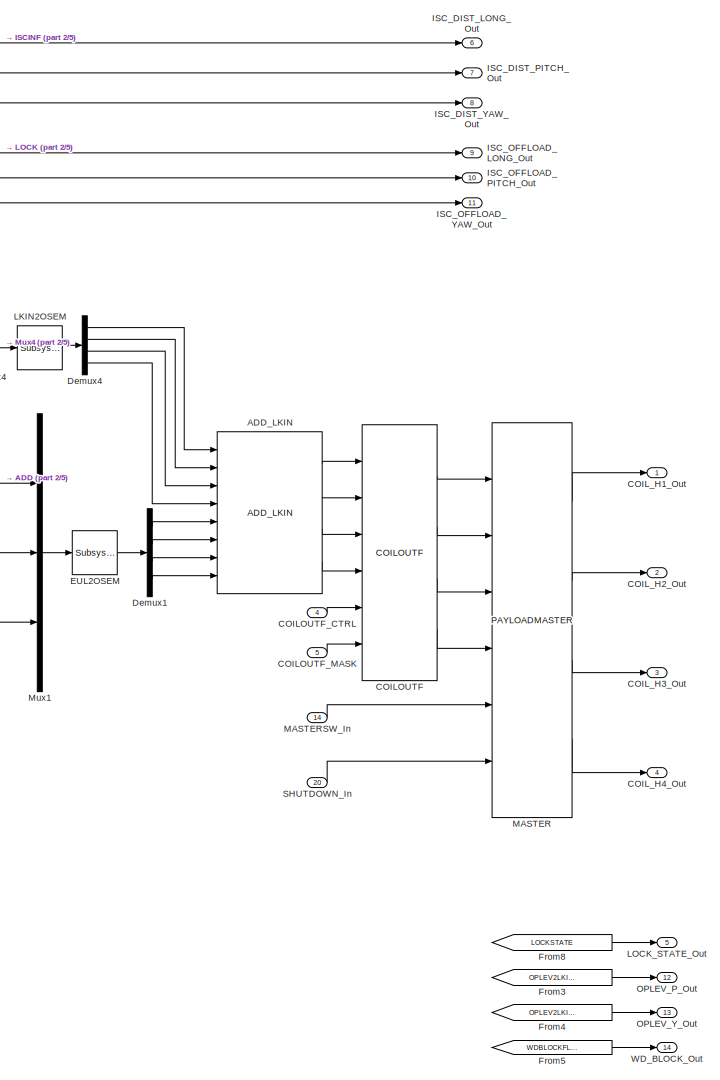
[diagram: PAYLOADTM - part 1/5, top right region]
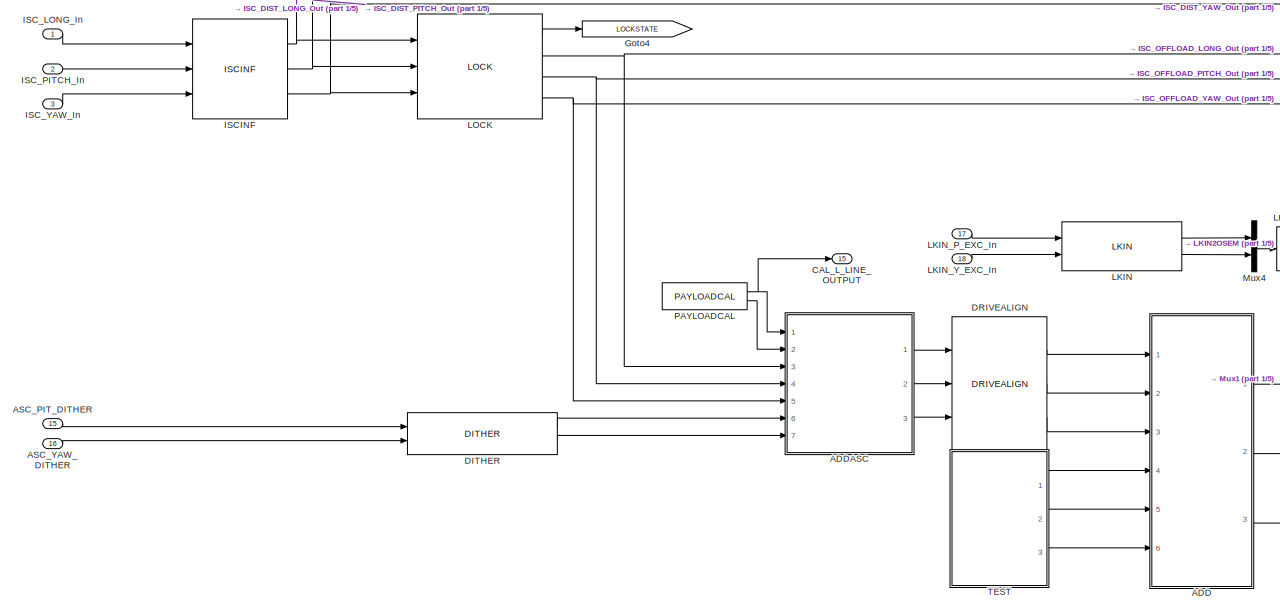
[diagram: PAYLOADTM - part 2/5, top left region]
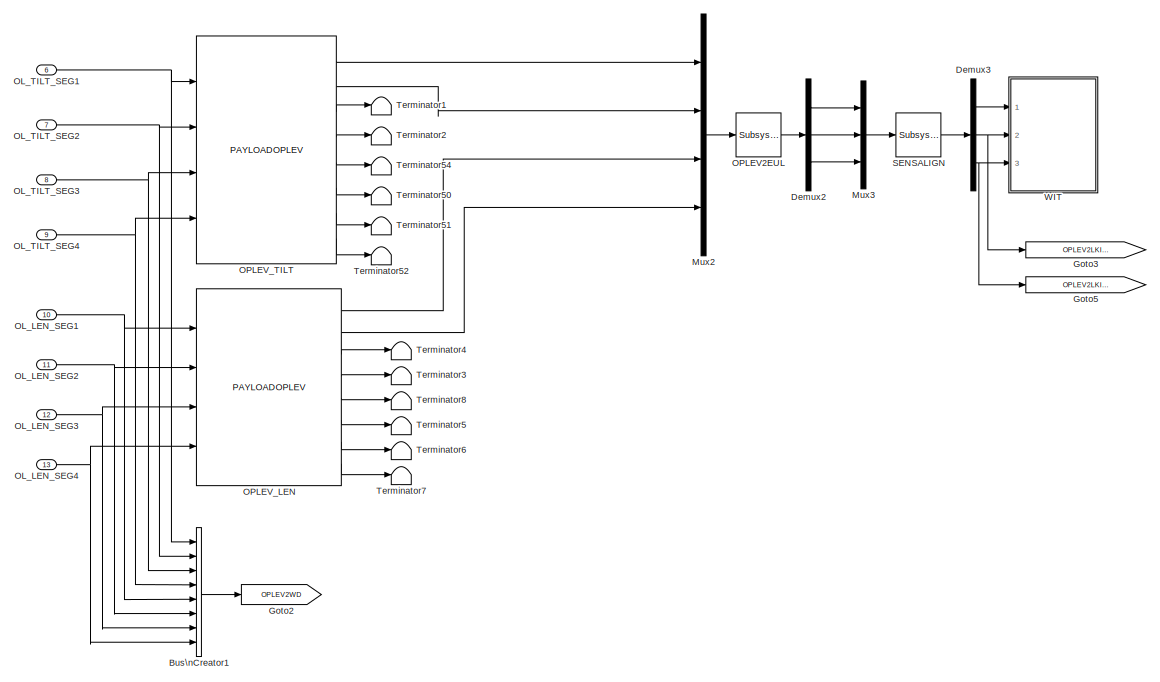
[diagram: PAYLOADTM - part 3/5, middle left region]
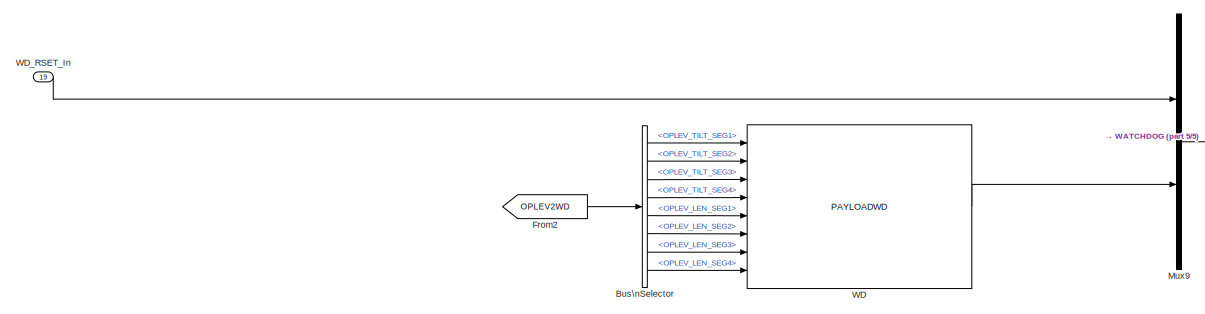
[diagram: PAYLOADTM - part 4/5, bottom left region]
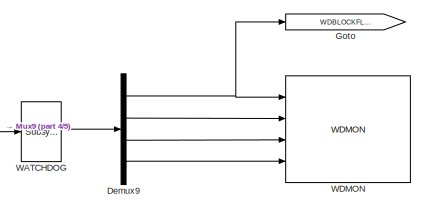
[diagram: PAYLOADTM - part 5/5, bottom right region]
BLOCK [SubSystem] PAYLOADTM
  Ports = [20, 15]
  RequestExecContextInheritance = off
  SID = 8110
  Variant = off
BLOCK [SubSystem] PAYLOADTM/ADD
  Ports = [6, 3]
  RequestExecContextInheritance = off
  SID = 8129
  Variant = off
BLOCK [Ground] PAYLOADTM/ADD/Ground1
  SID = 8139
BLOCK [Ground] PAYLOADTM/ADD/Ground2
  SID = 8140
BLOCK [Ground] PAYLOADTM/ADD/Ground3
  SID = 8141
BLOCK [Ground] PAYLOADTM/ADD/Ground4
  SID = 8142
BLOCK [Ground] PAYLOADTM/ADD/Ground5
  SID = 8143
BLOCK [Ground] PAYLOADTM/ADD/Ground6
  SID = 8144
BLOCK [Inport] PAYLOADTM/ADD/ISC_L_In
  IconDisplay = Port number
  SID = 8130
BLOCK [Inport] PAYLOADTM/ADD/ISC_P_In
  IconDisplay = Port number
  Port = 2
  SID = 8131
BLOCK [Inport] PAYLOADTM/ADD/ISC_Y_In
  IconDisplay = Port number
  Port = 3
  SID = 8132
BLOCK [Reference] PAYLOADTM/ADD/L  REF=cdsFiltCtrl/IIR FM with control
  AttributesFormatString = %<Tag>
  Ports = [3, 2]
  SID = 8145
  SourceBlock = cdsFiltCtrl/IIR FM with control
  SourceType = SubSystem
  Tag = cdsFiltCtrl
BLOCK [Outport] PAYLOADTM/ADD/LONG_Out
  IconDisplay = Port number
  SID = 8154
BLOCK [Reference] PAYLOADTM/ADD/P  REF=cdsFiltCtrl/IIR FM with control
  AttributesFormatString = %<Tag>
  Ports = [3, 2]
  SID = 8146
  SourceBlock = cdsFiltCtrl/IIR FM with control
  SourceType = SubSystem
  Tag = cdsFiltCtrl
BLOCK [Outport] PAYLOADTM/ADD/PITCH_Out
  IconDisplay = Port number
  Port = 2
  SID = 8155
BLOCK [Sum] PAYLOADTM/ADD/Sum
  InputSameDT = off
  OutDataTypeStr = Inherit: Inherit via internal rule
  Ports = [2, 1]
  SID = 8147
  SaturateOnIntegerOverflow = off
BLOCK [Sum] PAYLOADTM/ADD/Sum3
  InputSameDT = off
  OutDataTypeStr = Inherit: Inherit via internal rule
  Ports = [2, 1]
  SID = 8148
  SaturateOnIntegerOverflow = off
BLOCK [Sum] PAYLOADTM/ADD/Sum4
  InputSameDT = off
  OutDataTypeStr = Inherit: Inherit via internal rule
  Ports = [2, 1]
  SID = 8149
  SaturateOnIntegerOverflow = off
BLOCK [Inport] PAYLOADTM/ADD/TEST_L_In
  IconDisplay = Port number
  Port = 4
  SID = 8133
BLOCK [Inport] PAYLOADTM/ADD/TEST_P_In
  IconDisplay = Port number
  Port = 5
  SID = 8134
BLOCK [Inport] PAYLOADTM/ADD/TEST_Y_In
  IconDisplay = Port number
  Port = 6
  SID = 8135
BLOCK [Terminator] PAYLOADTM/ADD/Terminator1
  SID = 8150
BLOCK [Terminator] PAYLOADTM/ADD/Terminator2
  SID = 8151
BLOCK [Terminator] PAYLOADTM/ADD/Terminator3
  SID = 8152
BLOCK [Reference] PAYLOADTM/ADD/Y  REF=cdsFiltCtrl/IIR FM with control
  AttributesFormatString = %<Tag>
  Ports = [3, 2]
  SID = 8153
  SourceBlock = cdsFiltCtrl/IIR FM with control
  SourceType = SubSystem
  Tag = cdsFiltCtrl
BLOCK [Outport] PAYLOADTM/ADD/YAW_Out
  IconDisplay = Port number
  Port = 3
  SID = 8156
BLOCK [SubSystem] PAYLOADTM/ADDASC
  Ports = [7, 3]
  RequestExecContextInheritance = off
  SID = 8157
  Variant = off
BLOCK [Inport] PAYLOADTM/ADDASC/CAL_EXC_L_In
  IconDisplay = Port number
  Port = 2
  SID = 11274
BLOCK [Inport] PAYLOADTM/ADDASC/CAL_OSC_L_In
  IconDisplay = Port number
  SID = 11273
BLOCK [Inport] PAYLOADTM/ADDASC/DITHER_P_In
  IconDisplay = Port number
  Port = 6
  SID = 8160
BLOCK [Inport] PAYLOADTM/ADDASC/DITHER_Y_In
  IconDisplay = Port number
  Port = 7
  SID = 8161
BLOCK [Inport] PAYLOADTM/ADDASC/ISC_L_In
  IconDisplay = Port number
  Port = 3
  SID = 11281
BLOCK [Inport] PAYLOADTM/ADDASC/ISC_P_In
  IconDisplay = Port number
  Port = 4
  SID = 8158
BLOCK [Inport] PAYLOADTM/ADDASC/ISC_Y_In
  IconDisplay = Port number
  Port = 5
  SID = 8159
BLOCK [Outport] PAYLOADTM/ADDASC/LONG_Out
  IconDisplay = Port number
  SID = 11276
BLOCK [Outport] PAYLOADTM/ADDASC/PITCH_Out
  IconDisplay = Port number
  Port = 2
  SID = 8164
BLOCK [Sum] PAYLOADTM/ADDASC/Sum1
  InputSameDT = off
  Inputs = +++
  OutDataTypeStr = Inherit: Inherit via internal rule
  Ports = [3, 1]
  SID = 11275
  SaturateOnIntegerOverflow = off
BLOCK [Sum] PAYLOADTM/ADDASC/Sum3
  InputSameDT = off
  OutDataTypeStr = Inherit: Inherit via internal rule
  Ports = [2, 1]
  SID = 8162
  SaturateOnIntegerOverflow = off
BLOCK [Sum] PAYLOADTM/ADDASC/Sum4
  InputSameDT = off
  OutDataTypeStr = Inherit: Inherit via internal rule
  Ports = [2, 1]
  SID = 8163
  SaturateOnIntegerOverflow = off
BLOCK [Outport] PAYLOADTM/ADDASC/YAW_Out
  IconDisplay = Port number
  Port = 3
  SID = 8165
BLOCK [Reference] PAYLOADTM/ADD_LKIN  REF=VIS_LIB/ADD_LKIN
  Ports = [8, 4]
  SID = 8166
  SourceBlock = VIS_LIB/ADD_LKIN
  SourceType = SubSystem
BLOCK [Inport] PAYLOADTM/ASC_PIT_DITHER
  IconDisplay = Port number
  Port = 15
  SID = 8126
BLOCK [Inport] PAYLOADTM/ASC_YAW_DITHER
  IconDisplay = Port number
  Port = 16
  SID = 8127
BLOCK [BusCreator] PAYLOADTM/Bus\nCreator1
  DisplayOption = bar
  InheritFromInputs = on
  Inputs = 'OPLEV_TILT_SEG1','OPLEV_TILT_SEG2','OPLEV_TILT_SEG3','OPLEV_TILT_SEG4','OPLEV_LEN_SEG1','OPLEV_LEN_SEG2','OPLEV_LEN_SEG3','OPLEV_LEN_SEG4'
  Ports = [8, 1]
  SID = 8767
BLOCK [BusSelector] PAYLOADTM/Bus\nSelector
  OutputSignals = OPLEV_TILT_SEG1,OPLEV_TILT_SEG2,OPLEV_TILT_SEG3,OPLEV_TILT_SEG4,OPLEV_LEN_SEG1,OPLEV_LEN_SEG2,OPLEV_LEN_SEG3,OPLEV_LEN_SEG4
  Ports = [1, 8]
  SID = 8759
BLOCK [Outport] PAYLOADTM/CAL_L_LINE_OUTPUT
  IconDisplay = Port number
  Port = 15
  SID = 11272
BLOCK [Reference] PAYLOADTM/COILOUTF  REF=FOUROSEM_COILOUTF_MASTER/COILOUTF
  Ports = [6, 4]
  SID = 8169
  SourceBlock = FOUROSEM_COILOUTF_MASTER/COILOUTF
  SourceType = SubSystem
BLOCK [Inport] PAYLOADTM/COILOUTF_CTRL
  IconDisplay = Port number
  Port = 4
  SID = 8114
BLOCK [Inport] PAYLOADTM/COILOUTF_MASK
  IconDisplay = Port number
  Port = 5
  SID = 8115
BLOCK [Outport] PAYLOADTM/COIL_H1_Out
  IconDisplay = Port number
  SID = 8324
BLOCK [Outport] PAYLOADTM/COIL_H2_Out
  IconDisplay = Port number
  Port = 2
  SID = 8325
BLOCK [Outport] PAYLOADTM/COIL_H3_Out
  IconDisplay = Port number
  Port = 3
  SID = 8326
BLOCK [Outport] PAYLOADTM/COIL_H4_Out
  IconDisplay = Port number
  Port = 4
  SID = 8327
BLOCK [Reference] PAYLOADTM/DITHER  REF=VIS_LIB/DITHER
  Ports = [2, 2]
  SID = 8171
  SourceBlock = VIS_LIB/DITHER
  SourceType = SubSystem
BLOCK [Reference] PAYLOADTM/DRIVEALIGN  REF=VIS_LIB/DRIVEALIGN
  Ports = [3, 3]
  SID = 8172
  SourceBlock = VIS_LIB/DRIVEALIGN
  SourceType = SubSystem
BLOCK [Demux] PAYLOADTM/Demux1
  DisplayOption = bar
  Ports = [1, 4]
  SID = 8173
BLOCK [Demux] PAYLOADTM/Demux2
  DisplayOption = bar
  Outputs = 3
  Ports = [1, 3]
  SID = 8466
BLOCK [Demux] PAYLOADTM/Demux3
  DisplayOption = bar
  Outputs = 3
  Ports = [1, 3]
  SID = 8467
BLOCK [Demux] PAYLOADTM/Demux4
  DisplayOption = bar
  Ports = [1, 4]
  SID = 8174
BLOCK [Demux] PAYLOADTM/Demux9
  DisplayOption = bar
  Ports = [1, 4]
  SID = 8760
BLOCK [Reference] PAYLOADTM/EUL2OSEM  REF=cdsMuxMatrix/Subsystem
  AttributesFormatString = %<Tag>
  Description = Any size matrix. Inputs and outputs must be connected using Mux and Demux parts.
  Ports = [1, 1]
  SID = 8177
  SourceBlock = cdsMuxMatrix/Subsystem
  SourceType = SubSystem
  Tag = cdsMuxMatrix
BLOCK [From] PAYLOADTM/From2
  CloseFcn = tagdialog Close
  GotoTag = OPLEV2WD
  SID = 8761
BLOCK [From] PAYLOADTM/From3
  CloseFcn = tagdialog Close
  GotoTag = OPLEV2LKIN_P
  SID = 8543
BLOCK [From] PAYLOADTM/From4
  CloseFcn = tagdialog Close
  GotoTag = OPLEV2LKIN_Y
  SID = 8545
BLOCK [From] PAYLOADTM/From5
  CloseFcn = tagdialog Close
  GotoTag = WDBLOCKFLAG
  SID = 8549
BLOCK [From] PAYLOADTM/From8
  CloseFcn = tagdialog Close
  GotoTag = LOCKSTATE
  SID = 8200
BLOCK [Goto] PAYLOADTM/Goto
  GotoTag = WDBLOCKFLAG
  SID = 8762
BLOCK [Goto] PAYLOADTM/Goto2
  GotoTag = OPLEV2WD
  SID = 8768
BLOCK [Goto] PAYLOADTM/Goto3
  GotoTag = OPLEV2LKIN_P
  SID = 8547
BLOCK [Goto] PAYLOADTM/Goto4
  GotoTag = LOCKSTATE
  SID = 8214
BLOCK [Goto] PAYLOADTM/Goto5
  GotoTag = OPLEV2LKIN_Y
  SID = 8548
BLOCK [Reference] PAYLOADTM/ISCINF  REF=VIS_LIB/ISCINF
  Ports = [3, 3]
  SID = 8221
  SourceBlock = VIS_LIB/ISCINF
  SourceType = SubSystem
BLOCK [Outport] PAYLOADTM/ISC_DIST_LONG_Out
  IconDisplay = Port number
  Port = 6
  SID = 8345
BLOCK [Outport] PAYLOADTM/ISC_DIST_PITCH_Out
  IconDisplay = Port number
  Port = 7
  SID = 8346
BLOCK [Outport] PAYLOADTM/ISC_DIST_YAW_Out
  IconDisplay = Port number
  Port = 8
  SID = 8347
BLOCK [Inport] PAYLOADTM/ISC_LONG_In
  IconDisplay = Port number
  SID = 8111
BLOCK [Outport] PAYLOADTM/ISC_OFFLOAD_LONG_Out
  IconDisplay = Port number
  Port = 9
  SID = 8348
BLOCK [Outport] PAYLOADTM/ISC_OFFLOAD_PITCH_Out
  IconDisplay = Port number
  Port = 10
  SID = 8349
BLOCK [Outport] PAYLOADTM/ISC_OFFLOAD_YAW_Out
  IconDisplay = Port number
  Port = 11
  SID = 8350
BLOCK [Inport] PAYLOADTM/ISC_PITCH_In
  IconDisplay = Port number
  Port = 2
  SID = 8112
BLOCK [Inport] PAYLOADTM/ISC_YAW_In
  IconDisplay = Port number
  Port = 3
  SID = 8113
BLOCK [Reference] PAYLOADTM/LKIN  REF=VIS_LIB/LKIN
  Ports = [2, 2]
  SID = 8222
  SourceBlock = VIS_LIB/LKIN
  SourceType = SubSystem
BLOCK [Reference] PAYLOADTM/LKIN2OSEM  REF=cdsMuxMatrix/Subsystem
  AttributesFormatString = %<Tag>
  Description = Any size matrix. Inputs and outputs must be connected using Mux and Demux parts.
  Ports = [1, 1]
  SID = 8225
  SourceBlock = cdsMuxMatrix/Subsystem
  SourceType = SubSystem
  Tag = cdsMuxMatrix
BLOCK [Inport] PAYLOADTM/LKIN_P_EXC_In
  IconDisplay = Port number
  Port = 17
  SID = 8351
BLOCK [Inport] PAYLOADTM/LKIN_Y_EXC_In
  IconDisplay = Port number
  Port = 18
  SID = 8352
BLOCK [Reference] PAYLOADTM/LOCK  REF=VIS_LIB/LOCK
  Ports = [3, 4]
  SID = 8228
  SourceBlock = VIS_LIB/LOCK
  SourceType = SubSystem
BLOCK [Outport] PAYLOADTM/LOCK_STATE_Out
  IconDisplay = Port number
  Port = 5
  SID = 8330
BLOCK [Reference] PAYLOADTM/MASTER  REF=PAYLOAD_MASTER/PAYLOADMASTER
  Ports = [6, 4]
  SID = 11244
  SourceBlock = PAYLOAD_MASTER/PAYLOADMASTER
  SourceType = SubSystem
BLOCK [Inport] PAYLOADTM/MASTERSW_In
  IconDisplay = Port number
  Port = 14
  SID = 8124
BLOCK [Mux] PAYLOADTM/Mux1
  DisplayOption = bar
  Inputs = 3
  Ports = [3, 1]
  SID = 8230
BLOCK [Mux] PAYLOADTM/Mux2
  DisplayOption = bar
  Ports = [4, 1]
  SID = 8417
BLOCK [Mux] PAYLOADTM/Mux3
  DisplayOption = bar
  Inputs = 3
  Ports = [3, 1]
  SID = 8468
BLOCK [Mux] PAYLOADTM/Mux4
  DisplayOption = bar
  Inputs = 2
  Ports = [2, 1]
  SID = 8231
BLOCK [Mux] PAYLOADTM/Mux9
  DisplayOption = bar
  Inputs = 2
  Ports = [2, 1]
  SID = 8763
BLOCK [Inport] PAYLOADTM/OL_LEN_SEG1
  IconDisplay = Port number
  Port = 10
  SID = 8120
BLOCK [Inport] PAYLOADTM/OL_LEN_SEG2
  IconDisplay = Port number
  Port = 11
  SID = 8121
BLOCK [Inport] PAYLOADTM/OL_LEN_SEG3
  IconDisplay = Port number
  Port = 12
  SID = 8122
BLOCK [Inport] PAYLOADTM/OL_LEN_SEG4
  IconDisplay = Port number
  Port = 13
  SID = 8123
BLOCK [Inport] PAYLOADTM/OL_TILT_SEG1
  IconDisplay = Port number
  Port = 6
  SID = 8116
BLOCK [Inport] PAYLOADTM/OL_TILT_SEG2
  IconDisplay = Port number
  Port = 7
  SID = 8117
BLOCK [Inport] PAYLOADTM/OL_TILT_SEG3
  IconDisplay = Port number
  Port = 8
  SID = 8118
BLOCK [Inport] PAYLOADTM/OL_TILT_SEG4
  IconDisplay = Port number
  Port = 9
  SID = 8119
BLOCK [Reference] PAYLOADTM/OPLEV2EUL  REF=cdsMuxMatrix/Subsystem
  AttributesFormatString = %<Tag>
  Description = Any size matrix. Inputs and outputs must be connected using Mux and Demux parts.
  Ports = [1, 1]
  SID = 8416
  SourceBlock = cdsMuxMatrix/Subsystem
  SourceType = SubSystem
  Tag = cdsMuxMatrix
BLOCK [Reference] PAYLOADTM/OPLEV_LEN  REF=PAYLOAD_MASTER/PAYLOADOPLEV
  Ports = [4, 8]
  SID = 11243
  SourceBlock = PAYLOAD_MASTER/PAYLOADOPLEV
  SourceType = SubSystem
BLOCK [Outport] PAYLOADTM/OPLEV_P_Out
  IconDisplay = Port number
  Port = 12
  SID = 8544
BLOCK [Reference] PAYLOADTM/OPLEV_TILT  REF=PAYLOAD_MASTER/PAYLOADOPLEV
  Ports = [4, 8]
  SID = 11242
  SourceBlock = PAYLOAD_MASTER/PAYLOADOPLEV
  SourceType = SubSystem
BLOCK [Outport] PAYLOADTM/OPLEV_Y_Out
  IconDisplay = Port number
  Port = 13
  SID = 8546
BLOCK [Reference] PAYLOADTM/PAYLOADCAL  REF=PAYLOAD_MASTER/PAYLOADCAL
  Ports = [0, 2]
  SID = 11271
  SourceBlock = PAYLOAD_MASTER/PAYLOADCAL
  SourceType = SubSystem
BLOCK [Reference] PAYLOADTM/SENSALIGN  REF=cdsMuxMatrix/Subsystem
  AttributesFormatString = %<Tag>
  Description = Any size matrix. Inputs and outputs must be connected using Mux and Demux parts.
  Ports = [1, 1]
  SID = 8469
  SourceBlock = cdsMuxMatrix/Subsystem
  SourceType = SubSystem
  Tag = cdsMuxMatrix
BLOCK [Inport] PAYLOADTM/SHUTDOWN_In
  IconDisplay = Port number
  Port = 20
  SID = 11224
BLOCK [SubSystem] PAYLOADTM/TEST
  Ports = [0, 3]
  RequestExecContextInheritance = off
  SID = 8308
  Variant = off
BLOCK [Ground] PAYLOADTM/TEST/Ground
  SID = 8309
BLOCK [Ground] PAYLOADTM/TEST/Ground1
  SID = 8310
BLOCK [Ground] PAYLOADTM/TEST/Ground2
  SID = 8311
BLOCK [Reference] PAYLOADTM/TEST/L  REF=cdsFilt/Subsystem
  AttributesFormatString = %<Tag>
  Ports = [1, 1]
  SID = 8312
  SourceBlock = cdsFilt/Subsystem
  SourceType = SubSystem
  Tag = cdsFilt
BLOCK [Outport] PAYLOADTM/TEST/LONG_Out
  IconDisplay = Port number
  SID = 8315
BLOCK [Reference] PAYLOADTM/TEST/P  REF=cdsFilt/Subsystem
  AttributesFormatString = %<Tag>
  Ports = [1, 1]
  SID = 8313
  SourceBlock = cdsFilt/Subsystem
  SourceType = SubSystem
  Tag = cdsFilt
BLOCK [Outport] PAYLOADTM/TEST/PITCH_Out
  IconDisplay = Port number
  Port = 2
  SID = 8316
BLOCK [Reference] PAYLOADTM/TEST/Y  REF=cdsFilt/Subsystem
  AttributesFormatString = %<Tag>
  Ports = [1, 1]
  SID = 8314
  SourceBlock = cdsFilt/Subsystem
  SourceType = SubSystem
  Tag = cdsFilt
BLOCK [Outport] PAYLOADTM/TEST/YAW_Out
  IconDisplay = Port number
  Port = 3
  SID = 8317
BLOCK [Terminator] PAYLOADTM/Terminator1
  SID = 11282
BLOCK [Terminator] PAYLOADTM/Terminator2
  SID = 11283
BLOCK [Terminator] PAYLOADTM/Terminator3
  SID = 11284
BLOCK [Terminator] PAYLOADTM/Terminator4
  SID = 11285
BLOCK [Terminator] PAYLOADTM/Terminator5
  SID = 8392
BLOCK [Terminator] PAYLOADTM/Terminator50
  SID = 8393
BLOCK [Terminator] PAYLOADTM/Terminator51
  SID = 8394
BLOCK [Terminator] PAYLOADTM/Terminator52
  SID = 8395
BLOCK [Terminator] PAYLOADTM/Terminator54
  SID = 8396
BLOCK [Terminator] PAYLOADTM/Terminator6
  SID = 8397
BLOCK [Terminator] PAYLOADTM/Terminator7
  SID = 8398
BLOCK [Terminator] PAYLOADTM/Terminator8
  SID = 8399
BLOCK [Reference] PAYLOADTM/WATCHDOG  REF=cdsFunctionCall/Subsystem
  AttributesFormatString = %<Tag>\\n%<Description>
  Description = inline OSEMWATCHDOG <path>
  Ports = [1, 1]
  SID = 8764
  SourceBlock = cdsFunctionCall/Subsystem
  SourceType = SubSystem
  Tag = cdsFunctionCall
BLOCK [Reference] PAYLOADTM/WD  REF=PAYLOAD_MASTER/PAYLOADWD
  Ports = [8, 1]
  SID = 11245
  SourceBlock = PAYLOAD_MASTER/PAYLOADWD
  SourceType = SubSystem
BLOCK [Reference] PAYLOADTM/WDMON  REF=PAYLOAD_MASTER/PAYLOADIM/WDMON
  Ports = [4]
  SID = 11247
  SourceBlock = PAYLOAD_MASTER/PAYLOADIM/WDMON
  SourceType = SubSystem
BLOCK [Outport] PAYLOADTM/WD_BLOCK_Out
  IconDisplay = Port number
  Port = 14
  SID = 8550
BLOCK [Inport] PAYLOADTM/WD_RSET_In
  IconDisplay = Port number
  Port = 19
  SID = 8758
BLOCK [SubSystem] PAYLOADTM/WIT
  Ports = [3]
  RequestExecContextInheritance = off
  SID = 8470
  Variant = off
BLOCK [Reference] PAYLOADTM/WIT/L  REF=cdsTP/Subsystem
  AttributesFormatString = %<Tag>
  Ports = [1]
  SID = 8483
  SourceBlock = cdsTP/Subsystem
  SourceType = SubSystem
  Tag = Test Point
BLOCK [Reference] PAYLOADTM/WIT/LMON  REF=cdsFilt/Subsystem
  AttributesFormatString = %<Tag>
  Ports = [1, 1]
  SID = 8474
  SourceBlock = cdsFilt/Subsystem
  SourceType = SubSystem
  Tag = cdsFilt
BLOCK [Inport] PAYLOADTM/WIT/LONG_In
  IconDisplay = Port number
  SID = 8480
BLOCK [Reference] PAYLOADTM/WIT/P  REF=cdsTP/Subsystem
  AttributesFormatString = %<Tag>
  Ports = [1]
  SID = 8485
  SourceBlock = cdsTP/Subsystem
  SourceType = SubSystem
  Tag = Test Point
BLOCK [Inport] PAYLOADTM/WIT/PITCH_In
  IconDisplay = Port number
  Port = 2
  SID = 8481
BLOCK [Reference] PAYLOADTM/WIT/PMON  REF=cdsFilt/Subsystem
  AttributesFormatString = %<Tag>
  Ports = [1, 1]
  SID = 8475
  SourceBlock = cdsFilt/Subsystem
  SourceType = SubSystem
  Tag = cdsFilt
BLOCK [Reference] PAYLOADTM/WIT/Y  REF=cdsTP/Subsystem
  AttributesFormatString = %<Tag>
  Ports = [1]
  SID = 8486
  SourceBlock = cdsTP/Subsystem
  SourceType = SubSystem
  Tag = Test Point
BLOCK [Inport] PAYLOADTM/WIT/YAW_In
  IconDisplay = Port number
  Port = 3
  SID = 8482
BLOCK [Reference] PAYLOADTM/WIT/YMON  REF=cdsFilt/Subsystem
  AttributesFormatString = %<Tag>
  Ports = [1, 1]
  SID = 8476
  SourceBlock = cdsFilt/Subsystem
  SourceType = SubSystem
  Tag = cdsFilt
BLOCK [SubSystem] PAYLOADWD
  Ports = [8, 1]
  RequestExecContextInheritance = off
  SID = 8678
  Variant = off
BLOCK [SubSystem] PAYLOADWD/OPLEVAC
  Ports = [8, 1]
  RequestExecContextInheritance = off
  SID = 8687
  Variant = off
BLOCK [SubSystem] PAYLOADWD/OPLEVAC/BANDLIM
  Ports = [8, 8]
  RequestExecContextInheritance = off
  SID = 8696
  Variant = off
BLOCK [Reference] PAYLOADWD/OPLEVAC/BANDLIM/LEN_SEG1  REF=cdsFilt/Subsystem
  AttributesFormatString = %<Tag>
  Ports = [1, 1]
  SID = 8705
  SourceBlock = cdsFilt/Subsystem
  SourceType = SubSystem
  Tag = cdsFilt
BLOCK [Inport] PAYLOADWD/OPLEVAC/BANDLIM/LEN_SEG1_In
  IconDisplay = Port number
  Port = 5
  SID = 8701
BLOCK [Outport] PAYLOADWD/OPLEVAC/BANDLIM/LEN_SEG1_Out
  IconDisplay = Port number
  Port = 5
  SID = 8717
BLOCK [Reference] PAYLOADWD/OPLEVAC/BANDLIM/LEN_SEG2  REF=cdsFilt/Subsystem
  AttributesFormatString = %<Tag>
  Ports = [1, 1]
  SID = 8706
  SourceBlock = cdsFilt/Subsystem
  SourceType = SubSystem
  Tag = cdsFilt
BLOCK [Inport] PAYLOADWD/OPLEVAC/BANDLIM/LEN_SEG2_In
  IconDisplay = Port number
  Port = 6
  SID = 8702
BLOCK [Outport] PAYLOADWD/OPLEVAC/BANDLIM/LEN_SEG2_Out
  IconDisplay = Port number
  Port = 6
  SID = 8718
BLOCK [Reference] PAYLOADWD/OPLEVAC/BANDLIM/LEN_SEG3  REF=cdsFilt/Subsystem
  AttributesFormatString = %<Tag>
  Ports = [1, 1]
  SID = 8707
  SourceBlock = cdsFilt/Subsystem
  SourceType = SubSystem
  Tag = cdsFilt
BLOCK [Inport] PAYLOADWD/OPLEVAC/BANDLIM/LEN_SEG3_In
  IconDisplay = Port number
  Port = 7
  SID = 8703
BLOCK [Outport] PAYLOADWD/OPLEVAC/BANDLIM/LEN_SEG3_Out
  IconDisplay = Port number
  Port = 7
  SID = 8719
BLOCK [Reference] PAYLOADWD/OPLEVAC/BANDLIM/LEN_SEG4  REF=cdsFilt/Subsystem
  AttributesFormatString = %<Tag>
  Ports = [1, 1]
  SID = 8708
  SourceBlock = cdsFilt/Subsystem
  SourceType = SubSystem
  Tag = cdsFilt
BLOCK [Inport] PAYLOADWD/OPLEVAC/BANDLIM/LEN_SEG4_In
  IconDisplay = Port number
  Port = 8
  SID = 8704
BLOCK [Outport] PAYLOADWD/OPLEVAC/BANDLIM/LEN_SEG4_Out
  IconDisplay = Port number
  Port = 8
  SID = 8720
BLOCK [Reference] PAYLOADWD/OPLEVAC/BANDLIM/TILT_SEG1  REF=cdsFilt/Subsystem
  AttributesFormatString = %<Tag>
  Ports = [1, 1]
  SID = 8709
  SourceBlock = cdsFilt/Subsystem
  SourceType = SubSystem
  Tag = cdsFilt
BLOCK [Inport] PAYLOADWD/OPLEVAC/BANDLIM/TILT_SEG1_In
  IconDisplay = Port number
  SID = 8697
BLOCK [Outport] PAYLOADWD/OPLEVAC/BANDLIM/TILT_SEG1_Out
  IconDisplay = Port number
  SID = 8713
BLOCK [Reference] PAYLOADWD/OPLEVAC/BANDLIM/TILT_SEG2  REF=cdsFilt/Subsystem
  AttributesFormatString = %<Tag>
  Ports = [1, 1]
  SID = 8710
  SourceBlock = cdsFilt/Subsystem
  SourceType = SubSystem
  Tag = cdsFilt
BLOCK [Inport] PAYLOADWD/OPLEVAC/BANDLIM/TILT_SEG2_In
  IconDisplay = Port number
  Port = 2
  SID = 8698
BLOCK [Outport] PAYLOADWD/OPLEVAC/BANDLIM/TILT_SEG2_Out
  IconDisplay = Port number
  Port = 2
  SID = 8714
BLOCK [Reference] PAYLOADWD/OPLEVAC/BANDLIM/TILT_SEG3  REF=cdsFilt/Subsystem
  AttributesFormatString = %<Tag>
  Ports = [1, 1]
  SID = 8711
  SourceBlock = cdsFilt/Subsystem
  SourceType = SubSystem
  Tag = cdsFilt
BLOCK [Inport] PAYLOADWD/OPLEVAC/BANDLIM/TILT_SEG3_In
  IconDisplay = Port number
  Port = 3
  SID = 8699
BLOCK [Outport] PAYLOADWD/OPLEVAC/BANDLIM/TILT_SEG3_Out
  IconDisplay = Port number
  Port = 3
  SID = 8715
BLOCK [Reference] PAYLOADWD/OPLEVAC/BANDLIM/TILT_SEG4  REF=cdsFilt/Subsystem
  AttributesFormatString = %<Tag>
  Ports = [1, 1]
  SID = 8712
  SourceBlock = cdsFilt/Subsystem
  SourceType = SubSystem
  Tag = cdsFilt
BLOCK [Inport] PAYLOADWD/OPLEVAC/BANDLIM/TILT_SEG4_In
  IconDisplay = Port number
  Port = 4
  SID = 8700
BLOCK [Outport] PAYLOADWD/OPLEVAC/BANDLIM/TILT_SEG4_Out
  IconDisplay = Port number
  Port = 4
  SID = 8716
BLOCK [Outport] PAYLOADWD/OPLEVAC/FLAG
  IconDisplay = Port number
  SID = 8755
BLOCK [Reference] PAYLOADWD/OPLEVAC/LEN_SEG1RMS  REF=cdsRms/Subsystem
  AttributesFormatString = %<Tag>
  Description = Purpose:                                   \nCalculate an RMS based on the input signal.
  Ports = [1, 1]
  SID = 8721
  SourceBlock = cdsRms/Subsystem
  SourceType = SubSystem
  Tag = cdsRms
BLOCK [Inport] PAYLOADWD/OPLEVAC/LEN_SEG1_In
  IconDisplay = Port number
  Port = 5
  SID = 8692
BLOCK [Reference] PAYLOADWD/OPLEVAC/LEN_SEG1_RMS  REF=cdsTP/Subsystem
  AttributesFormatString = %<Tag>
  Ports = [1]
  SID = 8722
  SourceBlock = cdsTP/Subsystem
  SourceType = SubSystem
  Tag = Test Point
BLOCK [Reference] PAYLOADWD/OPLEVAC/LEN_SEG1_RMSMON  REF=cdsEpicsOut/Subsystem
  AttributesFormatString = %<Tag>
  Ports = [1, 1]
  SID = 8723
  SourceBlock = cdsEpicsOut/Subsystem
  SourceType = SubSystem
  Tag = cdsEpicsOutput
BLOCK [Reference] PAYLOADWD/OPLEVAC/LEN_SEG2RMS  REF=cdsRms/Subsystem
  AttributesFormatString = %<Tag>
  Description = Purpose:                                   \nCalculate an RMS based on the input signal.
  Ports = [1, 1]
  SID = 8724
  SourceBlock = cdsRms/Subsystem
  SourceType = SubSystem
  Tag = cdsRms
BLOCK [Inport] PAYLOADWD/OPLEVAC/LEN_SEG2_In
  IconDisplay = Port number
  Port = 6
  SID = 8693
BLOCK [Reference] PAYLOADWD/OPLEVAC/LEN_SEG2_RMS  REF=cdsTP/Subsystem
  AttributesFormatString = %<Tag>
  Ports = [1]
  SID = 8725
  SourceBlock = cdsTP/Subsystem
  SourceType = SubSystem
  Tag = Test Point
BLOCK [Reference] PAYLOADWD/OPLEVAC/LEN_SEG2_RMSMON  REF=cdsEpicsOut/Subsystem
  AttributesFormatString = %<Tag>
  Ports = [1, 1]
  SID = 8726
  SourceBlock = cdsEpicsOut/Subsystem
  SourceType = SubSystem
  Tag = cdsEpicsOutput
BLOCK [Reference] PAYLOADWD/OPLEVAC/LEN_SEG3RMS  REF=cdsRms/Subsystem
  AttributesFormatString = %<Tag>
  Description = Purpose:                                   \nCalculate an RMS based on the input signal.
  Ports = [1, 1]
  SID = 8727
  SourceBlock = cdsRms/Subsystem
  SourceType = SubSystem
  Tag = cdsRms
BLOCK [Inport] PAYLOADWD/OPLEVAC/LEN_SEG3_In
  IconDisplay = Port number
  Port = 7
  SID = 8694
BLOCK [Reference] PAYLOADWD/OPLEVAC/LEN_SEG3_RMS  REF=cdsTP/Subsystem
  AttributesFormatString = %<Tag>
  Ports = [1]
  SID = 8728
  SourceBlock = cdsTP/Subsystem
  SourceType = SubSystem
  Tag = Test Point
BLOCK [Reference] PAYLOADWD/OPLEVAC/LEN_SEG3_RMSMON  REF=cdsEpicsOut/Subsystem
  AttributesFormatString = %<Tag>
  Ports = [1, 1]
  SID = 8729
  SourceBlock = cdsEpicsOut/Subsystem
  SourceType = SubSystem
  Tag = cdsEpicsOutput
BLOCK [Reference] PAYLOADWD/OPLEVAC/LEN_SEG4RMS  REF=cdsRms/Subsystem
  AttributesFormatString = %<Tag>
  Description = Purpose:                                   \nCalculate an RMS based on the input signal.
  Ports = [1, 1]
  SID = 8730
  SourceBlock = cdsRms/Subsystem
  SourceType = SubSystem
  Tag = cdsRms
BLOCK [Inport] PAYLOADWD/OPLEVAC/LEN_SEG4_In
  IconDisplay = Port number
  Port = 8
  SID = 8695
BLOCK [Reference] PAYLOADWD/OPLEVAC/LEN_SEG4_RMS  REF=cdsTP/Subsystem
  AttributesFormatString = %<Tag>
  Ports = [1]
  SID = 8731
  SourceBlock = cdsTP/Subsystem
  SourceType = SubSystem
  Tag = Test Point
BLOCK [Reference] PAYLOADWD/OPLEVAC/LEN_SEG4_RMSMON  REF=cdsEpicsOut/Subsystem
  AttributesFormatString = %<Tag>
  Ports = [1, 1]
  SID = 8732
  SourceBlock = cdsEpicsOut/Subsystem
  SourceType = SubSystem
  Tag = cdsEpicsOutput
BLOCK [RelationalOperator] PAYLOADWD/OPLEVAC/Operator1
  InputSameDT = off
  Operator = >
  OutDataTypeStr = boolean
  Ports = [2, 1]
  SID = 8733
BLOCK [RelationalOperator] PAYLOADWD/OPLEVAC/Operator2
  InputSameDT = off
  Operator = >
  OutDataTypeStr = boolean
  Ports = [2, 1]
  SID = 8734
  ZeroCross = off
BLOCK [RelationalOperator] PAYLOADWD/OPLEVAC/Operator3
  InputSameDT = off
  Operator = >
  OutDataTypeStr = boolean
  Ports = [2, 1]
  SID = 8735
BLOCK [RelationalOperator] PAYLOADWD/OPLEVAC/Operator4
  InputSameDT = off
  Operator = >
  OutDataTypeStr = boolean
  Ports = [2, 1]
  SID = 8736
BLOCK [RelationalOperator] PAYLOADWD/OPLEVAC/Operator5
  InputSameDT = off
  Operator = >
  OutDataTypeStr = boolean
  Ports = [2, 1]
  SID = 8737
BLOCK [RelationalOperator] PAYLOADWD/OPLEVAC/Operator6
  InputSameDT = off
  Operator = >
  OutDataTypeStr = boolean
  Ports = [2, 1]
  SID = 8738
BLOCK [RelationalOperator] PAYLOADWD/OPLEVAC/Operator7
  InputSameDT = off
  Operator = >
  OutDataTypeStr = boolean
  Ports = [2, 1]
  SID = 8739
BLOCK [RelationalOperator] PAYLOADWD/OPLEVAC/Operator8
  InputSameDT = off
  Operator = >
  OutDataTypeStr = boolean
  Ports = [2, 1]
  SID = 8740
BLOCK [Reference] PAYLOADWD/OPLEVAC/RMS_MAX  REF=cdsEpicsIn/Subsystem
  AttributesFormatString = %<Tag>
  Ports = [0, 1]
  SID = 8741
  SourceBlock = cdsEpicsIn/Subsystem
  SourceType = SubSystem
  Tag = cdsEpicsIn
BLOCK [Sum] PAYLOADWD/OPLEVAC/Sum1
  InputSameDT = off
  Inputs = ++++++++
  OutDataTypeStr = Inherit: Inherit via internal rule
  Ports = [8, 1]
  SID = 8742
  SaturateOnIntegerOverflow = off
BLOCK [Reference] PAYLOADWD/OPLEVAC/TILT_SEG1RMS  REF=cdsRms/Subsystem
  AttributesFormatString = %<Tag>
  Description = Purpose:                                   \nCalculate an RMS based on the input signal.
  Ports = [1, 1]
  SID = 8743
  SourceBlock = cdsRms/Subsystem
  SourceType = SubSystem
  Tag = cdsRms
BLOCK [Inport] PAYLOADWD/OPLEVAC/TILT_SEG1_In
  IconDisplay = Port number
  SID = 8688
BLOCK [Reference] PAYLOADWD/OPLEVAC/TILT_SEG1_RMS  REF=cdsTP/Subsystem
  AttributesFormatString = %<Tag>
  Ports = [1]
  SID = 8744
  SourceBlock = cdsTP/Subsystem
  SourceType = SubSystem
  Tag = Test Point
BLOCK [Reference] PAYLOADWD/OPLEVAC/TILT_SEG1_RMSMON  REF=cdsEpicsOut/Subsystem
  AttributesFormatString = %<Tag>
  Ports = [1, 1]
  SID = 8745
  SourceBlock = cdsEpicsOut/Subsystem
  SourceType = SubSystem
  Tag = cdsEpicsOutput
BLOCK [Reference] PAYLOADWD/OPLEVAC/TILT_SEG2RMS  REF=cdsRms/Subsystem
  AttributesFormatString = %<Tag>
  Description = Purpose:                                   \nCalculate an RMS based on the input signal.
  Ports = [1, 1]
  SID = 8746
  SourceBlock = cdsRms/Subsystem
  SourceType = SubSystem
  Tag = cdsRms
BLOCK [Inport] PAYLOADWD/OPLEVAC/TILT_SEG2_In
  IconDisplay = Port number
  Port = 2
  SID = 8689
BLOCK [Reference] PAYLOADWD/OPLEVAC/TILT_SEG2_RMS  REF=cdsTP/Subsystem
  AttributesFormatString = %<Tag>
  Ports = [1]
  SID = 8747
  SourceBlock = cdsTP/Subsystem
  SourceType = SubSystem
  Tag = Test Point
BLOCK [Reference] PAYLOADWD/OPLEVAC/TILT_SEG2_RMSMON  REF=cdsEpicsOut/Subsystem
  AttributesFormatString = %<Tag>
  Ports = [1, 1]
  SID = 8748
  SourceBlock = cdsEpicsOut/Subsystem
  SourceType = SubSystem
  Tag = cdsEpicsOutput
BLOCK [Reference] PAYLOADWD/OPLEVAC/TILT_SEG3RMS  REF=cdsRms/Subsystem
  AttributesFormatString = %<Tag>
  Description = Purpose:                                   \nCalculate an RMS based on the input signal.
  Ports = [1, 1]
  SID = 8749
  SourceBlock = cdsRms/Subsystem
  SourceType = SubSystem
  Tag = cdsRms
BLOCK [Inport] PAYLOADWD/OPLEVAC/TILT_SEG3_In
  IconDisplay = Port number
  Port = 3
  SID = 8690
BLOCK [Reference] PAYLOADWD/OPLEVAC/TILT_SEG3_RMS  REF=cdsTP/Subsystem
  AttributesFormatString = %<Tag>
  Ports = [1]
  SID = 8750
  SourceBlock = cdsTP/Subsystem
  SourceType = SubSystem
  Tag = Test Point
BLOCK [Reference] PAYLOADWD/OPLEVAC/TILT_SEG3_RMSMON  REF=cdsEpicsOut/Subsystem
  AttributesFormatString = %<Tag>
  Ports = [1, 1]
  SID = 8751
  SourceBlock = cdsEpicsOut/Subsystem
  SourceType = SubSystem
  Tag = cdsEpicsOutput
BLOCK [Reference] PAYLOADWD/OPLEVAC/TILT_SEG4RMS  REF=cdsRms/Subsystem
  AttributesFormatString = %<Tag>
  Description = Purpose:                                   \nCalculate an RMS based on the input signal.
  Ports = [1, 1]
  SID = 8752
  SourceBlock = cdsRms/Subsystem
  SourceType = SubSystem
  Tag = cdsRms
BLOCK [Inport] PAYLOADWD/OPLEVAC/TILT_SEG4_In
  IconDisplay = Port number
  Port = 4
  SID = 8691
BLOCK [Reference] PAYLOADWD/OPLEVAC/TILT_SEG4_RMS  REF=cdsTP/Subsystem
  AttributesFormatString = %<Tag>
  Ports = [1]
  SID = 8753
  SourceBlock = cdsTP/Subsystem
  SourceType = SubSystem
  Tag = Test Point
BLOCK [Reference] PAYLOADWD/OPLEVAC/TILT_SEG4_RMSMON  REF=cdsEpicsOut/Subsystem
  AttributesFormatString = %<Tag>
  Ports = [1, 1]
  SID = 8754
  SourceBlock = cdsEpicsOut/Subsystem
  SourceType = SubSystem
  Tag = cdsEpicsOutput
BLOCK [Outport] PAYLOADWD/OPLEV_AC_FLAG_Out
  IconDisplay = Port number
  SID = 8756
BLOCK [Inport] PAYLOADWD/OPLEV_LEN_SEG1_In
  IconDisplay = Port number
  Port = 5
  SID = 8683
BLOCK [Inport] PAYLOADWD/OPLEV_LEN_SEG2_In
  IconDisplay = Port number
  Port = 6
  SID = 8684
BLOCK [Inport] PAYLOADWD/OPLEV_LEN_SEG3_In
  IconDisplay = Port number
  Port = 7
  SID = 8685
BLOCK [Inport] PAYLOADWD/OPLEV_LEN_SEG4_In
  IconDisplay = Port number
  Port = 8
  SID = 8686
BLOCK [Inport] PAYLOADWD/OPLEV_TILT_SEG1_In
  IconDisplay = Port number
  SID = 8679
BLOCK [Inport] PAYLOADWD/OPLEV_TILT_SEG2_In
  IconDisplay = Port number
  Port = 2
  SID = 8680
BLOCK [Inport] PAYLOADWD/OPLEV_TILT_SEG3_In
  IconDisplay = Port number
  Port = 3
  SID = 8681
BLOCK [Inport] PAYLOADWD/OPLEV_TILT_SEG4_In
  IconDisplay = Port number
  Port = 4
  SID = 8682
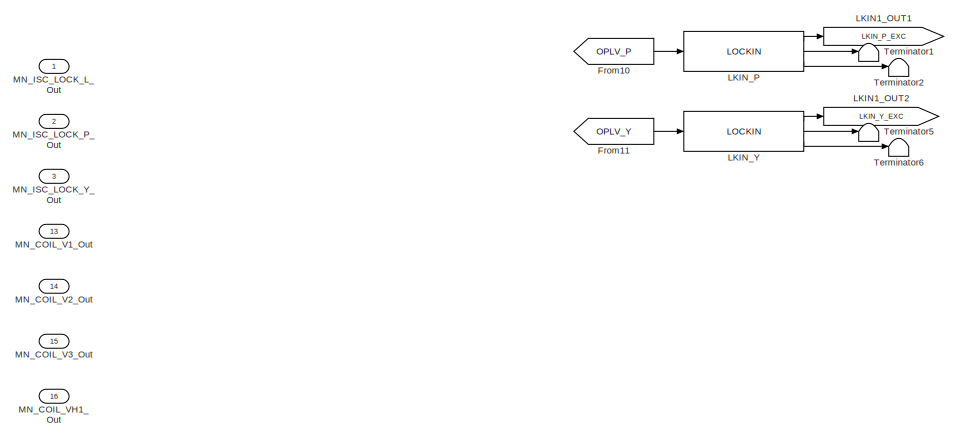
[diagram: PAYLOAD_MASTER - part 1/4, top right region]
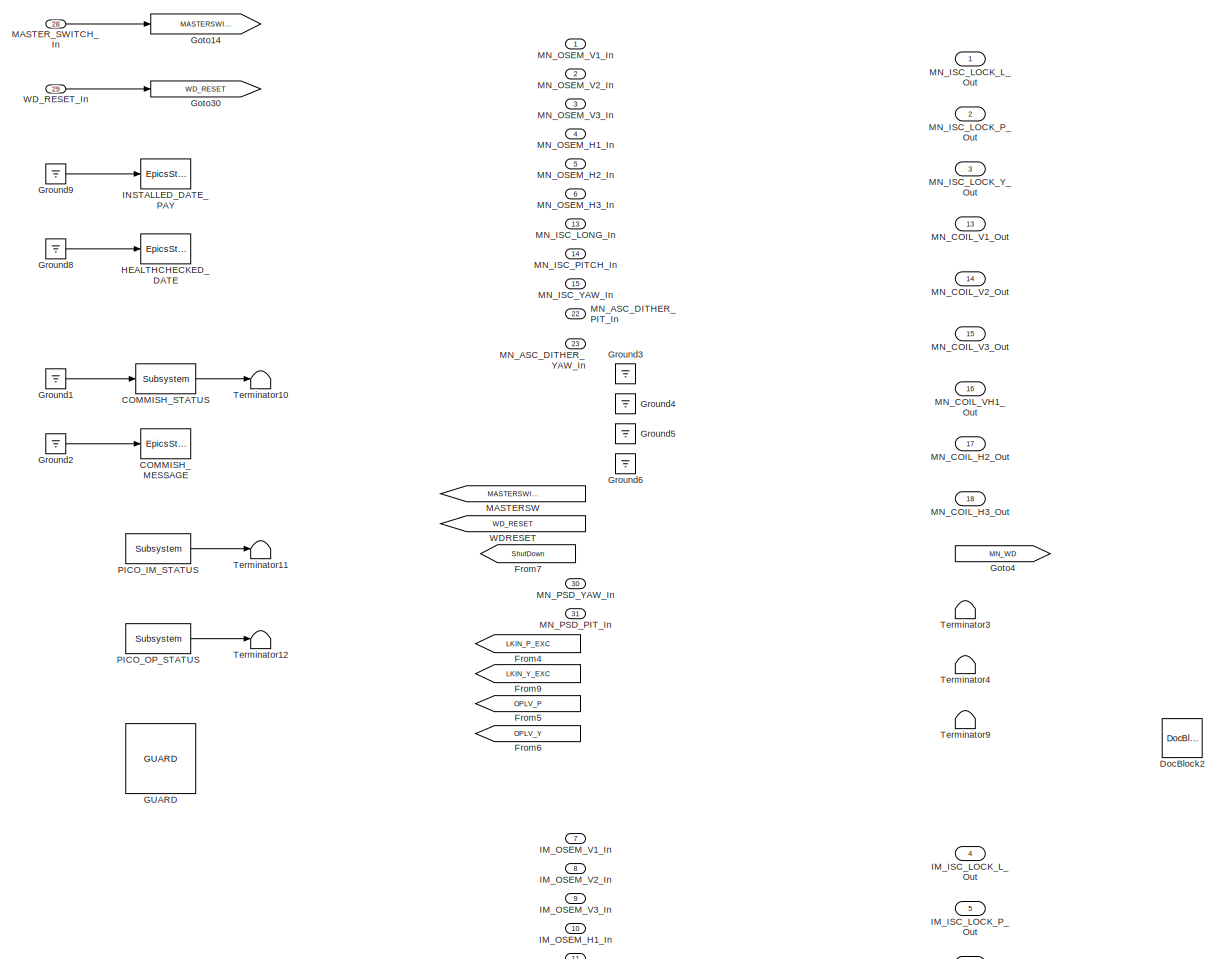
[diagram: PAYLOAD_MASTER - part 2/4, top left region]
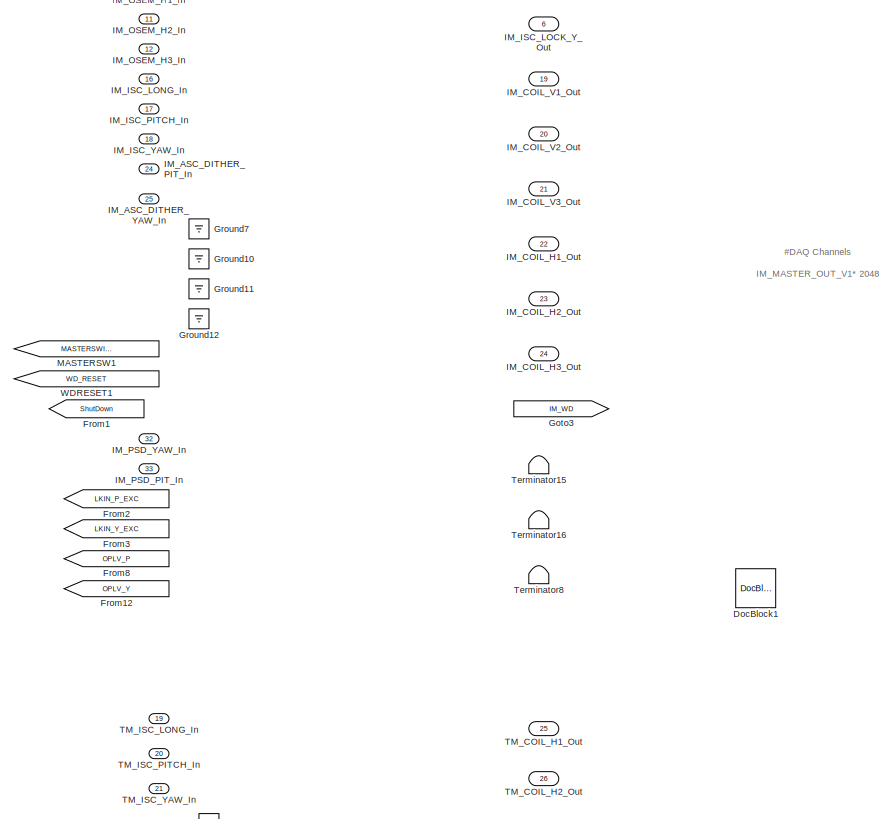
[diagram: PAYLOAD_MASTER - part 3/4, central region]
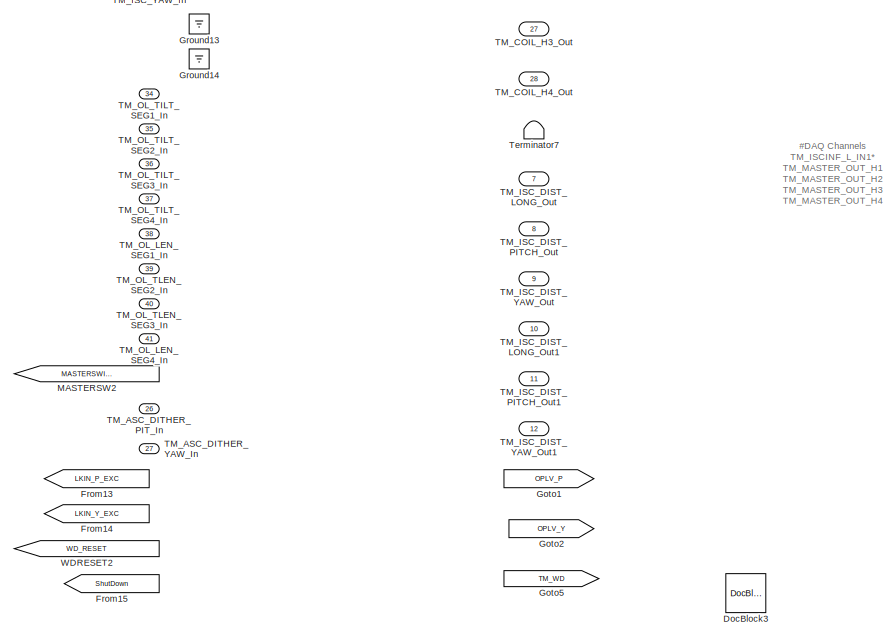
[diagram: PAYLOAD_MASTER - part 4/4, bottom center region]
BLOCK [SubSystem] PAYLOAD_MASTER
  Ports = [41, 28]
  RequestExecContextInheritance = off
  SID = 9372
  Variant = off
BLOCK [Reference] PAYLOAD_MASTER/COMMISH_MESSAGE  REF=cdsEpicsStringIn/EpicsStringIn
  AttributesFormatString = %<Tag>
  Description = cdsEpicsStringIn
  Ports = [1]
  SID = 11124
  SourceBlock = cdsEpicsStringIn/EpicsStringIn
  SourceType = SubSystem
  Tag = cdsEpicsStringIn
BLOCK [Reference] PAYLOAD_MASTER/COMMISH_STATUS  REF=cdsEpicsBinIn/Subsystem
  AttributesFormatString = %<Tag>
  Ports = [1, 1]
  SID = 11125
  SourceBlock = cdsEpicsBinIn/Subsystem
  SourceType = SubSystem
  Tag = cdsEpicsBinIn
BLOCK [Reference] PAYLOAD_MASTER/DocBlock1  REF=simulink/Model-Wide\nUtilities/DocBlock
  DocumentType = Text
  Ports = []
  SID = 10963
  SourceBlock = simulink/Model-Wide\nUtilities/DocBlock
  SourceType = DocBlock
  UserData = DataTag6
  UserDataPersistent = on
BLOCK [Reference] PAYLOAD_MASTER/DocBlock2  REF=simulink/Model-Wide\nUtilities/DocBlock
  DocumentType = Text
  Ports = []
  SID = 10964
  SourceBlock = simulink/Model-Wide\nUtilities/DocBlock
  SourceType = DocBlock
  UserData = DataTag7
  UserDataPersistent = on
BLOCK [Reference] PAYLOAD_MASTER/DocBlock3  REF=simulink/Model-Wide\nUtilities/DocBlock
  DocumentType = Text
  Ports = []
  SID = 10965
  SourceBlock = simulink/Model-Wide\nUtilities/DocBlock
  SourceType = DocBlock
  UserData = DataTag8
  UserDataPersistent = on
BLOCK [From] PAYLOAD_MASTER/From1
  GotoTag = ShutDown
  SID = 11028
BLOCK [From] PAYLOAD_MASTER/From10
  CloseFcn = tagdialog Close
  GotoTag = OPLV_P
  SID = 11032
BLOCK [From] PAYLOAD_MASTER/From11
  CloseFcn = tagdialog Close
  GotoTag = OPLV_Y
  SID = 11033
BLOCK [From] PAYLOAD_MASTER/From12
  CloseFcn = tagdialog Close
  GotoTag = OPLV_Y
  SID = 11055
BLOCK [From] PAYLOAD_MASTER/From13
  CloseFcn = tagdialog Close
  GotoTag = LKIN_P_EXC
  SID = 11056
BLOCK [From] PAYLOAD_MASTER/From14
  CloseFcn = tagdialog Close
  GotoTag = LKIN_Y_EXC
  SID = 11057
BLOCK [From] PAYLOAD_MASTER/From15
  GotoTag = ShutDown
  SID = 11225
BLOCK [From] PAYLOAD_MASTER/From2
  CloseFcn = tagdialog Close
  GotoTag = LKIN_P_EXC
  SID = 11050
BLOCK [From] PAYLOAD_MASTER/From3
  CloseFcn = tagdialog Close
  GotoTag = LKIN_Y_EXC
  SID = 11051
BLOCK [From] PAYLOAD_MASTER/From4
  CloseFcn = tagdialog Close
  GotoTag = LKIN_P_EXC
  SID = 11030
BLOCK [From] PAYLOAD_MASTER/From5
  CloseFcn = tagdialog Close
  GotoTag = OPLV_P
  SID = 11052
BLOCK [From] PAYLOAD_MASTER/From6
  CloseFcn = tagdialog Close
  GotoTag = OPLV_Y
  SID = 11053
BLOCK [From] PAYLOAD_MASTER/From7
  GotoTag = ShutDown
  SID = 11023
BLOCK [From] PAYLOAD_MASTER/From8
  CloseFcn = tagdialog Close
  GotoTag = OPLV_P
  SID = 11054
BLOCK [From] PAYLOAD_MASTER/From9
  CloseFcn = tagdialog Close
  GotoTag = LKIN_Y_EXC
  SID = 11031
BLOCK [Reference] PAYLOAD_MASTER/GUARD  REF=ISC_common/GUARD
  Ports = []
  SID = 11137
  SourceBlock = ISC_common/GUARD
  SourceType = SubSystem
BLOCK [Goto] PAYLOAD_MASTER/Goto1
  GotoTag = OPLV_P
  SID = 11048
BLOCK [Goto] PAYLOAD_MASTER/Goto14
  GotoTag = MASTERSWITCH
  SID = 11015
BLOCK [Goto] PAYLOAD_MASTER/Goto2
  GotoTag = OPLV_Y
  SID = 11049
BLOCK [Goto] PAYLOAD_MASTER/Goto3
  GotoTag = IM_WD
  SID = 11095
BLOCK [Goto] PAYLOAD_MASTER/Goto30
  GotoTag = WD_RESET
  SID = 11016
BLOCK [Goto] PAYLOAD_MASTER/Goto4
  GotoTag = MN_WD
  SID = 11096
BLOCK [Goto] PAYLOAD_MASTER/Goto5
  GotoTag = TM_WD
  SID = 11094
BLOCK [Ground] PAYLOAD_MASTER/Ground1
  SID = 11126
BLOCK [Ground] PAYLOAD_MASTER/Ground10
  SID = 11231
BLOCK [Ground] PAYLOAD_MASTER/Ground11
  SID = 11232
BLOCK [Ground] PAYLOAD_MASTER/Ground12
  SID = 11233
BLOCK [Ground] PAYLOAD_MASTER/Ground13
  SID = 11234
BLOCK [Ground] PAYLOAD_MASTER/Ground14
  SID = 11235
BLOCK [Ground] PAYLOAD_MASTER/Ground2
  SID = 11127
BLOCK [Ground] PAYLOAD_MASTER/Ground3
  SID = 11226
BLOCK [Ground] PAYLOAD_MASTER/Ground4
  SID = 11227
BLOCK [Ground] PAYLOAD_MASTER/Ground5
  SID = 11228
BLOCK [Ground] PAYLOAD_MASTER/Ground6
  SID = 11229
BLOCK [Ground] PAYLOAD_MASTER/Ground7
  SID = 11230
BLOCK [Ground] PAYLOAD_MASTER/Ground8
  SID = 11128
BLOCK [Ground] PAYLOAD_MASTER/Ground9
  SID = 11129
BLOCK [Reference] PAYLOAD_MASTER/HEALTHCHECKED_DATE  REF=cdsEpicsStringIn/EpicsStringIn
  AttributesFormatString = %<Tag>
  Description = cdsEpicsStringIn
  Ports = [1]
  SID = 11130
  SourceBlock = cdsEpicsStringIn/EpicsStringIn
  SourceType = SubSystem
  Tag = cdsEpicsStringIn
BLOCK [Inport] PAYLOAD_MASTER/IM_ASC_DITHER_PIT_In
  IconDisplay = Port number
  Port = 24
  SID = 10999
BLOCK [Inport] PAYLOAD_MASTER/IM_ASC_DITHER_YAW_In
  IconDisplay = Port number
  Port = 25
  SID = 11000
BLOCK [Outport] PAYLOAD_MASTER/IM_COIL_H1_Out
  IconDisplay = Port number
  Port = 22
  SID = 11087
BLOCK [Outport] PAYLOAD_MASTER/IM_COIL_H2_Out
  IconDisplay = Port number
  Port = 23
  SID = 11088
BLOCK [Outport] PAYLOAD_MASTER/IM_COIL_H3_Out
  IconDisplay = Port number
  Port = 24
  SID = 11089
BLOCK [Outport] PAYLOAD_MASTER/IM_COIL_V1_Out
  IconDisplay = Port number
  Port = 19
  SID = 11084
BLOCK [Outport] PAYLOAD_MASTER/IM_COIL_V2_Out
  IconDisplay = Port number
  Port = 20
  SID = 11085
BLOCK [Outport] PAYLOAD_MASTER/IM_COIL_V3_Out
  IconDisplay = Port number
  Port = 21
  SID = 11086
BLOCK [Outport] PAYLOAD_MASTER/IM_ISC_LOCK_L_Out
  IconDisplay = Port number
  Port = 4
  SID = 11069
BLOCK [Outport] PAYLOAD_MASTER/IM_ISC_LOCK_P_Out
  IconDisplay = Port number
  Port = 5
  SID = 11070
BLOCK [Outport] PAYLOAD_MASTER/IM_ISC_LOCK_Y_Out
  IconDisplay = Port number
  Port = 6
  SID = 11071
BLOCK [Inport] PAYLOAD_MASTER/IM_ISC_LONG_In
  IconDisplay = Port number
  Port = 16
  SID = 10991
BLOCK [Inport] PAYLOAD_MASTER/IM_ISC_PITCH_In
  IconDisplay = Port number
  Port = 17
  SID = 10992
BLOCK [Inport] PAYLOAD_MASTER/IM_ISC_YAW_In
  IconDisplay = Port number
  Port = 18
  SID = 10993
BLOCK [Inport] PAYLOAD_MASTER/IM_OSEM_H1_In
  IconDisplay = Port number
  Port = 10
  SID = 10982
BLOCK [Inport] PAYLOAD_MASTER/IM_OSEM_H2_In
  IconDisplay = Port number
  Port = 11
  SID = 10983
BLOCK [Inport] PAYLOAD_MASTER/IM_OSEM_H3_In
  IconDisplay = Port number
  Port = 12
  SID = 10984
BLOCK [Inport] PAYLOAD_MASTER/IM_OSEM_V1_In
  IconDisplay = Port number
  Port = 7
  SID = 10979
BLOCK [Inport] PAYLOAD_MASTER/IM_OSEM_V2_In
  IconDisplay = Port number
  Port = 8
  SID = 10980
BLOCK [Inport] PAYLOAD_MASTER/IM_OSEM_V3_In
  IconDisplay = Port number
  Port = 9
  SID = 10981
BLOCK [Inport] PAYLOAD_MASTER/IM_PSD_PIT_In
  IconDisplay = Port number
  Port = 33
  SID = 11027
BLOCK [Inport] PAYLOAD_MASTER/IM_PSD_YAW_In
  IconDisplay = Port number
  Port = 32
  SID = 11026
BLOCK [Reference] PAYLOAD_MASTER/INSTALLED_DATE_PAY  REF=cdsEpicsStringIn/EpicsStringIn
  AttributesFormatString = %<Tag>
  Description = cdsEpicsStringIn
  Ports = [1]
  SID = 11131
  SourceBlock = cdsEpicsStringIn/EpicsStringIn
  SourceType = SubSystem
  Tag = cdsEpicsStringIn
BLOCK [Goto] PAYLOAD_MASTER/LKIN1_OUT1
  GotoTag = LKIN_P_EXC
  SID = 11034
BLOCK [Goto] PAYLOAD_MASTER/LKIN1_OUT2
  GotoTag = LKIN_Y_EXC
  SID = 11035
BLOCK [Reference] PAYLOAD_MASTER/LKIN_P  REF=lockin/LOCKIN
  AttributesFormatString = %<Tag>
  Description = ADL=LOCKIN.adl
  Ports = [1, 3]
  SID = 11036
  SourceBlock = lockin/LOCKIN
  SourceType = SubSystem
BLOCK [Reference] PAYLOAD_MASTER/LKIN_Y  REF=lockin/LOCKIN
  AttributesFormatString = %<Tag>
  Description = ADL=LOCKIN.adl
  Ports = [1, 3]
  SID = 11037
  SourceBlock = lockin/LOCKIN
  SourceType = SubSystem
BLOCK [From] PAYLOAD_MASTER/MASTERSW
  CloseFcn = tagdialog Close
  GotoTag = MASTERSWITCH
  SID = 11017
BLOCK [From] PAYLOAD_MASTER/MASTERSW1
  CloseFcn = tagdialog Close
  GotoTag = MASTERSWITCH
  SID = 11019
BLOCK [From] PAYLOAD_MASTER/MASTERSW2
  CloseFcn = tagdialog Close
  GotoTag = MASTERSWITCH
  SID = 11021
BLOCK [Inport] PAYLOAD_MASTER/MASTER_SWITCH_In
  IconDisplay = Port number
  Port = 28
  SID = 11013
BLOCK [Inport] PAYLOAD_MASTER/MN_ASC_DITHER_PIT_In
  IconDisplay = Port number
  Port = 22
  SID = 10997
BLOCK [Inport] PAYLOAD_MASTER/MN_ASC_DITHER_YAW_In
  IconDisplay = Port number
  Port = 23
  SID = 10998
BLOCK [Outport] PAYLOAD_MASTER/MN_COIL_H2_Out
  IconDisplay = Port number
  Port = 17
  SID = 11082
BLOCK [Outport] PAYLOAD_MASTER/MN_COIL_H3_Out
  IconDisplay = Port number
  Port = 18
  SID = 11083
BLOCK [Outport] PAYLOAD_MASTER/MN_COIL_V1_Out
  IconDisplay = Port number
  Port = 13
  SID = 11078
BLOCK [Outport] PAYLOAD_MASTER/MN_COIL_V2_Out
  IconDisplay = Port number
  Port = 14
  SID = 11079
BLOCK [Outport] PAYLOAD_MASTER/MN_COIL_V3_Out
  IconDisplay = Port number
  Port = 15
  SID = 11080
BLOCK [Outport] PAYLOAD_MASTER/MN_COIL_VH1_Out
  IconDisplay = Port number
  Port = 16
  SID = 11081
BLOCK [Outport] PAYLOAD_MASTER/MN_ISC_LOCK_L_Out
  IconDisplay = Port number
  SID = 11066
BLOCK [Outport] PAYLOAD_MASTER/MN_ISC_LOCK_P_Out
  IconDisplay = Port number
  Port = 2
  SID = 11067
BLOCK [Outport] PAYLOAD_MASTER/MN_ISC_LOCK_Y_Out
  IconDisplay = Port number
  Port = 3
  SID = 11068
BLOCK [Inport] PAYLOAD_MASTER/MN_ISC_LONG_In
  IconDisplay = Port number
  Port = 13
  SID = 10988
BLOCK [Inport] PAYLOAD_MASTER/MN_ISC_PITCH_In
  IconDisplay = Port number
  Port = 14
  SID = 10989
BLOCK [Inport] PAYLOAD_MASTER/MN_ISC_YAW_In
  IconDisplay = Port number
  Port = 15
  SID = 10990
BLOCK [Inport] PAYLOAD_MASTER/MN_OSEM_H1_In
  IconDisplay = Port number
  Port = 4
  SID = 10974
BLOCK [Inport] PAYLOAD_MASTER/MN_OSEM_H2_In
  IconDisplay = Port number
  Port = 5
  SID = 10975
BLOCK [Inport] PAYLOAD_MASTER/MN_OSEM_H3_In
  IconDisplay = Port number
  Port = 6
  SID = 10976
BLOCK [Inport] PAYLOAD_MASTER/MN_OSEM_V1_In
  IconDisplay = Port number
  SID = 10971
BLOCK [Inport] PAYLOAD_MASTER/MN_OSEM_V2_In
  IconDisplay = Port number
  Port = 2
  SID = 10972
BLOCK [Inport] PAYLOAD_MASTER/MN_OSEM_V3_In
  IconDisplay = Port number
  Port = 3
  SID = 10973
BLOCK [Inport] PAYLOAD_MASTER/MN_PSD_PIT_In
  IconDisplay = Port number
  Port = 31
  SID = 11025
BLOCK [Inport] PAYLOAD_MASTER/MN_PSD_YAW_In
  IconDisplay = Port number
  Port = 30
  SID = 11024
BLOCK [Reference] PAYLOAD_MASTER/PICO_IM_STATUS  REF=cdsEpicsIn/Subsystem
  AttributesFormatString = %<Tag>
  Ports = [0, 1]
  SID = 11132
  SourceBlock = cdsEpicsIn/Subsystem
  SourceType = SubSystem
  Tag = cdsEpicsIn
BLOCK [Reference] PAYLOAD_MASTER/PICO_OP_STATUS  REF=cdsEpicsIn/Subsystem
  AttributesFormatString = %<Tag>
  Ports = [0, 1]
  SID = 11133
  SourceBlock = cdsEpicsIn/Subsystem
  SourceType = SubSystem
  Tag = cdsEpicsIn
BLOCK [Inport] PAYLOAD_MASTER/TM_ASC_DITHER_PIT_In
  IconDisplay = Port number
  Port = 26
  SID = 11001
BLOCK [Inport] PAYLOAD_MASTER/TM_ASC_DITHER_YAW_In
  IconDisplay = Port number
  Port = 27
  SID = 11002
BLOCK [Outport] PAYLOAD_MASTER/TM_COIL_H1_Out
  IconDisplay = Port number
  Port = 25
  SID = 11090
BLOCK [Outport] PAYLOAD_MASTER/TM_COIL_H2_Out
  IconDisplay = Port number
  Port = 26
  SID = 11091
BLOCK [Outport] PAYLOAD_MASTER/TM_COIL_H3_Out
  IconDisplay = Port number
  Port = 27
  SID = 11092
BLOCK [Outport] PAYLOAD_MASTER/TM_COIL_H4_Out
  IconDisplay = Port number
  Port = 28
  SID = 11093
BLOCK [Outport] PAYLOAD_MASTER/TM_ISC_DIST_LONG_Out
  IconDisplay = Port number
  Port = 7
  SID = 11072
BLOCK [Outport] PAYLOAD_MASTER/TM_ISC_DIST_LONG_Out1
  IconDisplay = Port number
  Port = 10
  SID = 11075
BLOCK [Outport] PAYLOAD_MASTER/TM_ISC_DIST_PITCH_Out
  IconDisplay = Port number
  Port = 8
  SID = 11073
BLOCK [Outport] PAYLOAD_MASTER/TM_ISC_DIST_PITCH_Out1
  IconDisplay = Port number
  Port = 11
  SID = 11076
BLOCK [Outport] PAYLOAD_MASTER/TM_ISC_DIST_YAW_Out
  IconDisplay = Port number
  Port = 9
  SID = 11074
BLOCK [Outport] PAYLOAD_MASTER/TM_ISC_DIST_YAW_Out1
  IconDisplay = Port number
  Port = 12
  SID = 11077
BLOCK [Inport] PAYLOAD_MASTER/TM_ISC_LONG_In
  IconDisplay = Port number
  Port = 19
  SID = 10994
BLOCK [Inport] PAYLOAD_MASTER/TM_ISC_PITCH_In
  IconDisplay = Port number
  Port = 20
  SID = 10995
BLOCK [Inport] PAYLOAD_MASTER/TM_ISC_YAW_In
  IconDisplay = Port number
  Port = 21
  SID = 10996
BLOCK [Inport] PAYLOAD_MASTER/TM_OL_LEN_SEG1_In
  IconDisplay = Port number
  Port = 38
  SID = 11062
BLOCK [Inport] PAYLOAD_MASTER/TM_OL_LEN_SEG4_In
  IconDisplay = Port number
  Port = 41
  SID = 11065
BLOCK [Inport] PAYLOAD_MASTER/TM_OL_TILT_SEG1_In
  IconDisplay = Port number
  Port = 34
  SID = 11058
BLOCK [Inport] PAYLOAD_MASTER/TM_OL_TILT_SEG2_In
  IconDisplay = Port number
  Port = 35
  SID = 11059
BLOCK [Inport] PAYLOAD_MASTER/TM_OL_TILT_SEG3_In
  IconDisplay = Port number
  Port = 36
  SID = 11060
BLOCK [Inport] PAYLOAD_MASTER/TM_OL_TILT_SEG4_In
  IconDisplay = Port number
  Port = 37
  SID = 11061
BLOCK [Inport] PAYLOAD_MASTER/TM_OL_TLEN_SEG2_In
  IconDisplay = Port number
  Port = 39
  SID = 11063
BLOCK [Inport] PAYLOAD_MASTER/TM_OL_TLEN_SEG3_In
  IconDisplay = Port number
  Port = 40
  SID = 11064
BLOCK [Terminator] PAYLOAD_MASTER/Terminator1
  SID = 11038
BLOCK [Terminator] PAYLOAD_MASTER/Terminator10
  SID = 11134
BLOCK [Terminator] PAYLOAD_MASTER/Terminator11
  SID = 11135
BLOCK [Terminator] PAYLOAD_MASTER/Terminator12
  SID = 11136
BLOCK [Terminator] PAYLOAD_MASTER/Terminator15
  SID = 11097
BLOCK [Terminator] PAYLOAD_MASTER/Terminator16
  SID = 11098
BLOCK [Terminator] PAYLOAD_MASTER/Terminator2
  SID = 11039
BLOCK [Terminator] PAYLOAD_MASTER/Terminator3
  SID = 11099
BLOCK [Terminator] PAYLOAD_MASTER/Terminator4
  SID = 11100
BLOCK [Terminator] PAYLOAD_MASTER/Terminator5
  SID = 11040
BLOCK [Terminator] PAYLOAD_MASTER/Terminator6
  SID = 11041
BLOCK [Terminator] PAYLOAD_MASTER/Terminator7
  SID = 11101
BLOCK [Terminator] PAYLOAD_MASTER/Terminator8
  SID = 11102
BLOCK [Terminator] PAYLOAD_MASTER/Terminator9
  SID = 11123
BLOCK [From] PAYLOAD_MASTER/WDRESET
  CloseFcn = tagdialog Close
  GotoTag = WD_RESET
  SID = 11018
BLOCK [From] PAYLOAD_MASTER/WDRESET1
  CloseFcn = tagdialog Close
  GotoTag = WD_RESET
  SID = 11020
BLOCK [From] PAYLOAD_MASTER/WDRESET2
  CloseFcn = tagdialog Close
  GotoTag = WD_RESET
  SID = 11022
BLOCK [Inport] PAYLOAD_MASTER/WD_RESET_In
  IconDisplay = Port number
  Port = 29
  SID = 11014
ANNOTATION (root): #DAQ Channels\nTM_ISCINF_L_IN1*\nTM_MASTER_OUT_H1\nTM_MASTER_OUT_H2\nTM_MASTER_OUT_H3\nTM_MASTER_OUT_H4\n\nTM_DRIVEALIGN_L_OUT* 4096\n\nTM_ISCINF_P_IN1* 2048\nTM_ISCINF_Y_IN1* 2048\n\nTM_OPLEV_TILT_SEG1_OUT* 256\nTM_OPLEV_TILT_SEG2_OUT* 256\nTM_OPLEV_TILT_SEG3_OUT* 256\nTM_OPLEV_TILT_SEG4_OUT* 256\nTM_OPLEV_LEN_SEG1_OUT* 256\nTM_OPLEV_LEN_SEG2_OUT* 256\nTM_OPLEV_LEN_SEG3_OUT* 256\nTM_OPLEV_LEN_SEG...<+177ch>
ANNOTATION (root): \n \n #DAQ Channels \n IM_MASTER_OUT_V1* 2048 \n IM_MASTER_OUT_V2* 2048 \n IM_MASTER_OUT_V3* 2048 \n IM_MASTER_OUT_H1* 2048 \n IM_MASTER_OUT_H2* 2048 \n IM_MASTER_OUT_H3* 2048 \n IM_DRIVEALIGN_L_OUT* 2048 \n IM_DRIVEALIGN_P_OUT* 2048 \n IM_DRIVEALIGN_Y_OUT* 2048 \n IM_CAL_LINE_OUT* 512 \n IM_OLDAMP_P_OUT* 256 \n IM_OLDAMP_Y_OUT* 256 \n IM_OSEMINF_V1_OUT* 256 \n IM_OSEMINF_V2_OUT* 256 \n IM_OSEMINF...<+90ch>
ANNOTATION PAYLOADIM: #DAQ Channels\nDAMP_L_IN1 1024\nDAMP_T_IN1 1024\nDAMP_V_IN1 1024\nDAMP_R_IN1 1024\nDAMP_P_IN1 1024\nDAMP_Y_IN1 1024
ANNOTATION PAYLOADIM/DAMP: 1 (one) if GOOD\n0 (zero) if BAD
ANNOTATION PAYLOADIM/DAMP: Each DAMP filter output bitword is \ncompared against a known good state.\nIf equal to good state, then a 1 is output \nand multiplied into the product. So, if any DOF\nis not in its good state, the whole product is 0.
ANNOTATION PAYLOADIM/LOCK: 1 (one) if OK\n0 (zero) if BAD
ANNOTATION PAYLOADIM/MASTER: If second input (WDFLAG) is not equal to zero, \nthen pass out first argument (Constant 0 -- Block Output), \notherwise pass out third argument (Constant 1 -- Pass Output)
ANNOTATION PAYLOADIM/MASTER: WDFLAG is 0 (zero) if OK,\nNon-zero if BAD
ANNOTATION PAYLOADIM/OLDAMP: 1 (one) if GOOD\n0 (zero) if BAD
ANNOTATION PAYLOADIM/OLDAMP: Each DAMP filter output bitword is \ncompared against a known good state.\nIf equal to good state, then a 1 is output \nand multiplied into the product. So, if any DOF\nis not in its good state, the whole product is 0.
ANNOTATION PAYLOADMASTER: If second input (WDFLAG) is not equal to zero, \nthen pass out first argument (Constant 0 -- Block Output), \notherwise pass out third arguement (Constant 1 -- Pass Output)
ANNOTATION PAYLOADMASTER: WDFLAG is 0 (zero) if OK,\nNon-zero if BAD
ANNOTATION PAYLOADMN: #DAQ Channels\nDAMP_L_IN1 1024\nDAMP_T_IN1 1024\nDAMP_V_IN1 1024\nDAMP_R_IN1 1024\nDAMP_P_IN1 1024\nDAMP_Y_IN1 1024
ANNOTATION PAYLOADMN/DAMP: 1 (one) if GOOD\n0 (zero) if BAD
ANNOTATION PAYLOADMN/DAMP: Each DAMP filter output bitword is \ncompared against a known good state.\nIf equal to good state, then a 1 is output \nand multiplied into the product. So, if any DOF\nis not in its good state, the whole product is 0.
ANNOTATION PAYLOADMN/LOCK: 1 (one) if OK\n0 (zero) if BAD
ANNOTATION PAYLOADMN/MASTER: If second input (WDFLAG) is not equal to zero, \nthen pass out first argument (Constant 0 -- Block Output), \notherwise pass out third argument (Constant 1 -- Pass Output)
ANNOTATION PAYLOADMN/MASTER: WDFLAG is 0 (zero) if OK,\nNon-zero if BAD
ANNOTATION PAYLOADMN/OLDAMP: 1 (one) if GOOD\n0 (zero) if BAD
ANNOTATION PAYLOADMN/OLDAMP: Each DAMP filter output bitword is \ncompared against a known good state.\nIf equal to good state, then a 1 is output \nand multiplied into the product. So, if any DOF\nis not in its good state, the whole product is 0.
ANNOTATION PAYLOAD_MASTER: #DAQ Channels\nTM_ISCINF_L_IN1*\nTM_MASTER_OUT_H1\nTM_MASTER_OUT_H2\nTM_MASTER_OUT_H3\nTM_MASTER_OUT_H4\n\nTM_DRIVEALIGN_L_OUT* 4096\n\nTM_ISCINF_P_IN1* 2048\nTM_ISCINF_Y_IN1* 2048\n\nTM_CAL_LINE_OUT* 512\n\nTM_OPLEV_SEG1_OUT* 256\nTM_OPLEV_SEG2_OUT* 256\nTM_OPLEV_SEG3_OUT* 256\nTM_OPLEV_SEG4_OUT* 256\n\nTM_OPLEV_TILT_PIT_OUT* 256\nTM_OPLEV_TILT_YAW_OUT* 256\nTM_OPLEV_TILT_SUM_OUT* 256\nTM_OPLEV_L...<+96ch>
ANNOTATION PAYLOAD_MASTER: \n \n #DAQ Channels \n IM_MASTER_OUT_V1* 2048 \n IM_MASTER_OUT_V2* 2048 \n IM_MASTER_OUT_V3* 2048 \n IM_MASTER_OUT_H1* 2048 \n IM_MASTER_OUT_H2* 2048 \n IM_MASTER_OUT_H3* 2048 \n IM_DRIVEALIGN_L_OUT* 2048 \n IM_DRIVEALIGN_P_OUT* 2048 \n IM_DRIVEALIGN_Y_OUT* 2048 \n IM_CAL_LINE_OUT* 512 \n IM_OLDAMP_P_OUT* 256 \n IM_OLDAMP_Y_OUT* 256 \n IM_OSEMINF_V1_OUT* 256 \n IM_OSEMINF_V2_OUT* 256 \n IM_OSEMINF...<+90ch>
LINE PAYLOADCAL/COSMON:1 -> PAYLOADCAL/Terminator1:1
NET PAYLOADCAL/EXC:1 -> PAYLOADCAL/EXCMON:1, PAYLOADCAL/EXC_OUT:1
LINE PAYLOADCAL/EXCMON:1 -> PAYLOADCAL/CAL_L_EXC_Out:1
LINE PAYLOADCAL/Ground2:1 -> PAYLOADCAL/LINE:1
LINE PAYLOADCAL/LINE:1 -> PAYLOADCAL/LINEMON:1
LINE PAYLOADCAL/LINE:2 -> PAYLOADCAL/SINMON:1
LINE PAYLOADCAL/LINE:3 -> PAYLOADCAL/COSMON:1
NET PAYLOADCAL/LINEMON:1 -> PAYLOADCAL/CAL_L_LINE_Out:1, PAYLOADCAL/LINE_OUT:1
LINE PAYLOADCAL/SINMON:1 -> PAYLOADCAL/Terminator:1
LINE PAYLOADIM/ADD/DAMP_L_In:1 -> PAYLOADIM/ADD/Goto12:1
LINE PAYLOADIM/ADD/DAMP_P_In:1 -> PAYLOADIM/ADD/Goto13:1
LINE PAYLOADIM/ADD/DAMP_R_In:1 -> PAYLOADIM/ADD/Goto16:1
LINE PAYLOADIM/ADD/DAMP_T_In:1 -> PAYLOADIM/ADD/Goto15:1
LINE PAYLOADIM/ADD/DAMP_V_In:1 -> PAYLOADIM/ADD/Goto11:1
LINE PAYLOADIM/ADD/DAMP_Y_In:1 -> PAYLOADIM/ADD/Goto14:1
LINE PAYLOADIM/ADD/From10:1 -> PAYLOADIM/ADD/Sum3:4
LINE PAYLOADIM/ADD/From11:1 -> PAYLOADIM/ADD/Sum3:2
LINE PAYLOADIM/ADD/From12:1 -> PAYLOADIM/ADD/Sum5:1
LINE PAYLOADIM/ADD/From13:1 -> PAYLOADIM/ADD/Sum5:2
LINE PAYLOADIM/ADD/From14:1 -> PAYLOADIM/ADD/Sum2:1
LINE PAYLOADIM/ADD/From15:1 -> PAYLOADIM/ADD/Sum2:2
LINE PAYLOADIM/ADD/From16:1 -> PAYLOADIM/ADD/Sum1:1
LINE PAYLOADIM/ADD/From17:1 -> PAYLOADIM/ADD/Sum1:2
LINE PAYLOADIM/ADD/From18:1 -> PAYLOADIM/ADD/Sum3:5
LINE PAYLOADIM/ADD/From1:1 -> PAYLOADIM/ADD/Sum:2
LINE PAYLOADIM/ADD/From2:1 -> PAYLOADIM/ADD/Sum:1
LINE PAYLOADIM/ADD/From3:1 -> PAYLOADIM/ADD/Sum:3
LINE PAYLOADIM/ADD/From4:1 -> PAYLOADIM/ADD/Sum4:3
LINE PAYLOADIM/ADD/From5:1 -> PAYLOADIM/ADD/Sum4:1
LINE PAYLOADIM/ADD/From6:1 -> PAYLOADIM/ADD/Sum4:4
LINE PAYLOADIM/ADD/From7:1 -> PAYLOADIM/ADD/Sum4:2
LINE PAYLOADIM/ADD/From8:1 -> PAYLOADIM/ADD/Sum3:3
LINE PAYLOADIM/ADD/From9:1 -> PAYLOADIM/ADD/Sum3:1
LINE PAYLOADIM/ADD/From:1 -> PAYLOADIM/ADD/Sum4:5
LINE PAYLOADIM/ADD/ISC_L_In:1 -> PAYLOADIM/ADD/Goto:1
LINE PAYLOADIM/ADD/ISC_P_In:1 -> PAYLOADIM/ADD/Goto1:1
LINE PAYLOADIM/ADD/ISC_Y_In:1 -> PAYLOADIM/ADD/Goto2:1
LINE PAYLOADIM/ADD/OPTICALIGN_P_In:1 -> PAYLOADIM/ADD/Goto4:1
LINE PAYLOADIM/ADD/OPTICALIGN_Y_In:1 -> PAYLOADIM/ADD/Goto5:1
LINE PAYLOADIM/ADD/PSD_PIT:1 -> PAYLOADIM/ADD/Goto17:1
LINE PAYLOADIM/ADD/PSD_YAW:1 -> PAYLOADIM/ADD/Goto18:1
LINE PAYLOADIM/ADD/Sum1:1 -> PAYLOADIM/ADD/TRANS_MAIN_Out:1
LINE PAYLOADIM/ADD/Sum2:1 -> PAYLOADIM/ADD/VERT_MAIN_Out:1
LINE PAYLOADIM/ADD/Sum3:1 -> PAYLOADIM/ADD/YAW_MAIN_Out:1
LINE PAYLOADIM/ADD/Sum4:1 -> PAYLOADIM/ADD/PITCH_MAIN_Out:1
LINE PAYLOADIM/ADD/Sum5:1 -> PAYLOADIM/ADD/ROLL_MAIN_Out:1
LINE PAYLOADIM/ADD/Sum:1 -> PAYLOADIM/ADD/LONG_MAIN_Out:1
LINE PAYLOADIM/ADD/TEST_L_In:1 -> PAYLOADIM/ADD/Goto3:1
LINE PAYLOADIM/ADD/TEST_P_In:1 -> PAYLOADIM/ADD/Goto6:1
LINE PAYLOADIM/ADD/TEST_R_In:1 -> PAYLOADIM/ADD/Goto9:1
LINE PAYLOADIM/ADD/TEST_T_In:1 -> PAYLOADIM/ADD/Goto8:1
LINE PAYLOADIM/ADD/TEST_V_In:1 -> PAYLOADIM/ADD/Goto10:1
LINE PAYLOADIM/ADD/TEST_Y_In:1 -> PAYLOADIM/ADD/Goto7:1
LINE PAYLOADIM/ADD:1 -> PAYLOADIM/Mux3:1
LINE PAYLOADIM/ADD:2 -> PAYLOADIM/Mux3:2
LINE PAYLOADIM/ADD:3 -> PAYLOADIM/Mux3:3
LINE PAYLOADIM/ADD:4 -> PAYLOADIM/Mux3:4
LINE PAYLOADIM/ADD:5 -> PAYLOADIM/Mux3:5
LINE PAYLOADIM/ADD:6 -> PAYLOADIM/Mux3:6
LINE PAYLOADIM/ADDISC/CAL_EXC_L_In:1 -> PAYLOADIM/ADDISC/Sum1:2
LINE PAYLOADIM/ADDISC/CAL_OSC_L_In:1 -> PAYLOADIM/ADDISC/Sum1:1
LINE PAYLOADIM/ADDISC/DITHER_P_In:1 -> PAYLOADIM/ADDISC/Sum4:2
LINE PAYLOADIM/ADDISC/DITHER_Y_In:1 -> PAYLOADIM/ADDISC/Sum3:2
LINE PAYLOADIM/ADDISC/ISC_L_In:1 -> PAYLOADIM/ADDISC/Sum1:3
LINE PAYLOADIM/ADDISC/ISC_P_In:1 -> PAYLOADIM/ADDISC/Sum4:1
LINE PAYLOADIM/ADDISC/ISC_Y_In:1 -> PAYLOADIM/ADDISC/Sum3:1
LINE PAYLOADIM/ADDISC/OLDAMP_P_In:1 -> PAYLOADIM/ADDISC/Sum4:3
LINE PAYLOADIM/ADDISC/OLDAMP_Y_In:1 -> PAYLOADIM/ADDISC/Sum3:3
LINE PAYLOADIM/ADDISC/Sum1:1 -> PAYLOADIM/ADDISC/LONG_Out:1
LINE PAYLOADIM/ADDISC/Sum3:1 -> PAYLOADIM/ADDISC/YAW_Out:1
LINE PAYLOADIM/ADDISC/Sum4:1 -> PAYLOADIM/ADDISC/PITCH_Out:1
LINE PAYLOADIM/ADDISC:1 -> PAYLOADIM/DRIVEALIGN:1
LINE PAYLOADIM/ADDISC:2 -> PAYLOADIM/DRIVEALIGN:2
LINE PAYLOADIM/ADDISC:3 -> PAYLOADIM/DRIVEALIGN:3
LINE PAYLOADIM/ADD_LKIN/LKIN_H1_In:1 -> PAYLOADIM/ADD_LKIN/Sum1:1
LINE PAYLOADIM/ADD_LKIN/LKIN_H2_In:1 -> PAYLOADIM/ADD_LKIN/Sum5:1
LINE PAYLOADIM/ADD_LKIN/LKIN_H3_In:1 -> PAYLOADIM/ADD_LKIN/Sum2:1
LINE PAYLOADIM/ADD_LKIN/LKIN_V3_In:1 -> PAYLOADIM/ADD_LKIN/Sum3:1
LINE PAYLOADIM/ADD_LKIN/LKN_V1_In:1 -> PAYLOADIM/ADD_LKIN/Sum:1
LINE PAYLOADIM/ADD_LKIN/LKN_V2_In:1 -> PAYLOADIM/ADD_LKIN/Sum4:1
LINE PAYLOADIM/ADD_LKIN/OSEM_H1_In:1 -> PAYLOADIM/ADD_LKIN/Sum1:2
LINE PAYLOADIM/ADD_LKIN/OSEM_H2_In:1 -> PAYLOADIM/ADD_LKIN/Sum5:2
LINE PAYLOADIM/ADD_LKIN/OSEM_H3_In:1 -> PAYLOADIM/ADD_LKIN/Sum2:2
LINE PAYLOADIM/ADD_LKIN/OSEM_V1_In:1 -> PAYLOADIM/ADD_LKIN/Sum:2
LINE PAYLOADIM/ADD_LKIN/OSEM_V2_In:1 -> PAYLOADIM/ADD_LKIN/Sum4:2
LINE PAYLOADIM/ADD_LKIN/OSEM_V3_In:1 -> PAYLOADIM/ADD_LKIN/Sum3:2
LINE PAYLOADIM/ADD_LKIN/Sum1:1 -> PAYLOADIM/ADD_LKIN/H1_Out:1
LINE PAYLOADIM/ADD_LKIN/Sum2:1 -> PAYLOADIM/ADD_LKIN/H3_Out:1
LINE PAYLOADIM/ADD_LKIN/Sum3:1 -> PAYLOADIM/ADD_LKIN/V3_Out:1
LINE PAYLOADIM/ADD_LKIN/Sum4:1 -> PAYLOADIM/ADD_LKIN/V2_Out:1
LINE PAYLOADIM/ADD_LKIN/Sum5:1 -> PAYLOADIM/ADD_LKIN/H2_Out:1
LINE PAYLOADIM/ADD_LKIN/Sum:1 -> PAYLOADIM/ADD_LKIN/V1_Out:1
LINE PAYLOADIM/ADD_LKIN:1 -> PAYLOADIM/COILOUTF:1
LINE PAYLOADIM/ADD_LKIN:2 -> PAYLOADIM/COILOUTF:2
LINE PAYLOADIM/ADD_LKIN:3 -> PAYLOADIM/COILOUTF:3
LINE PAYLOADIM/ADD_LKIN:4 -> PAYLOADIM/COILOUTF:4
LINE PAYLOADIM/ADD_LKIN:5 -> PAYLOADIM/COILOUTF:5
LINE PAYLOADIM/ADD_LKIN:6 -> PAYLOADIM/COILOUTF:6
LINE PAYLOADIM/ASC_DITHER_PIT_In:1 -> PAYLOADIM/DITHER:1
LINE PAYLOADIM/ASC_DITHER_YAW_In:1 -> PAYLOADIM/DITHER:2
LINE PAYLOADIM/Bus\nCreator1:1 -> PAYLOADIM/Goto2:1
LINE PAYLOADIM/Bus\nSelector:1 -> PAYLOADIM/WD:1
LINE PAYLOADIM/Bus\nSelector:2 -> PAYLOADIM/WD:2
LINE PAYLOADIM/Bus\nSelector:3 -> PAYLOADIM/WD:3
LINE PAYLOADIM/Bus\nSelector:4 -> PAYLOADIM/WD:4
LINE PAYLOADIM/Bus\nSelector:5 -> PAYLOADIM/WD:5
LINE PAYLOADIM/Bus\nSelector:6 -> PAYLOADIM/WD:6
LINE PAYLOADIM/COILOUTF:1 -> PAYLOADIM/MASTER:1
LINE PAYLOADIM/COILOUTF:2 -> PAYLOADIM/MASTER:2
LINE PAYLOADIM/COILOUTF:3 -> PAYLOADIM/MASTER:3
LINE PAYLOADIM/COILOUTF:4 -> PAYLOADIM/MASTER:4
LINE PAYLOADIM/COILOUTF:5 -> PAYLOADIM/MASTER:5
LINE PAYLOADIM/COILOUTF:6 -> PAYLOADIM/MASTER:6
LINE PAYLOADIM/DAMP/Ground10:1 -> PAYLOADIM/DAMP/P:3
LINE PAYLOADIM/DAMP/Ground11:1 -> PAYLOADIM/DAMP/R:3
LINE PAYLOADIM/DAMP/Ground12:1 -> PAYLOADIM/DAMP/V:3
LINE PAYLOADIM/DAMP/Ground1:1 -> PAYLOADIM/DAMP/T:2
LINE PAYLOADIM/DAMP/Ground2:1 -> PAYLOADIM/DAMP/V:2
LINE PAYLOADIM/DAMP/Ground3:1 -> PAYLOADIM/DAMP/R:2
LINE PAYLOADIM/DAMP/Ground4:1 -> PAYLOADIM/DAMP/P:2
LINE PAYLOADIM/DAMP/Ground5:1 -> PAYLOADIM/DAMP/Y:2
LINE PAYLOADIM/DAMP/Ground6:1 -> PAYLOADIM/DAMP/L:2
LINE PAYLOADIM/DAMP/Ground7:1 -> PAYLOADIM/DAMP/Y:3
LINE PAYLOADIM/DAMP/Ground8:1 -> PAYLOADIM/DAMP/L:3
LINE PAYLOADIM/DAMP/Ground9:1 -> PAYLOADIM/DAMP/T:3
LINE PAYLOADIM/DAMP/L:1 -> PAYLOADIM/DAMP/LONG_Out:1
LINE PAYLOADIM/DAMP/L:2 -> PAYLOADIM/DAMP/L_STATE_NOW:1
LINE PAYLOADIM/DAMP/LONG_In:1 -> PAYLOADIM/DAMP/L:1
LINE PAYLOADIM/DAMP/L_STATE_GOOD:1 -> PAYLOADIM/DAMP/Operator:1
LINE PAYLOADIM/DAMP/L_STATE_NOW:1 -> PAYLOADIM/DAMP/Operator:2
LINE PAYLOADIM/DAMP/L_STATE_OK:1 -> PAYLOADIM/DAMP/Product:1
LINE PAYLOADIM/DAMP/Operator1:1 -> PAYLOADIM/DAMP/T_STATE_OK:1
LINE PAYLOADIM/DAMP/Operator2:1 -> PAYLOADIM/DAMP/V_STATE_OK:1
LINE PAYLOADIM/DAMP/Operator3:1 -> PAYLOADIM/DAMP/R_STATE_OK:1
LINE PAYLOADIM/DAMP/Operator4:1 -> PAYLOADIM/DAMP/P_STATE_OK:1
LINE PAYLOADIM/DAMP/Operator5:1 -> PAYLOADIM/DAMP/Y_STATE_OK:1
LINE PAYLOADIM/DAMP/Operator:1 -> PAYLOADIM/DAMP/L_STATE_OK:1
LINE PAYLOADIM/DAMP/P:1 -> PAYLOADIM/DAMP/PITCH_Out:1
LINE PAYLOADIM/DAMP/P:2 -> PAYLOADIM/DAMP/P_STATE_NOW:1
LINE PAYLOADIM/DAMP/PITCH_In:1 -> PAYLOADIM/DAMP/P:1
LINE PAYLOADIM/DAMP/P_STATE_GOOD:1 -> PAYLOADIM/DAMP/Operator4:1
LINE PAYLOADIM/DAMP/P_STATE_NOW:1 -> PAYLOADIM/DAMP/Operator4:2
LINE PAYLOADIM/DAMP/P_STATE_OK:1 -> PAYLOADIM/DAMP/Product:5
LINE PAYLOADIM/DAMP/Product:1 -> PAYLOADIM/DAMP/STATE_OK:1
LINE PAYLOADIM/DAMP/R:1 -> PAYLOADIM/DAMP/ROLL_Out:1
LINE PAYLOADIM/DAMP/R:2 -> PAYLOADIM/DAMP/R_STATE_NOW:1
LINE PAYLOADIM/DAMP/ROLL_In:1 -> PAYLOADIM/DAMP/R:1
LINE PAYLOADIM/DAMP/R_STATE_GOOD:1 -> PAYLOADIM/DAMP/Operator3:1
LINE PAYLOADIM/DAMP/R_STATE_NOW:1 -> PAYLOADIM/DAMP/Operator3:2
LINE PAYLOADIM/DAMP/R_STATE_OK:1 -> PAYLOADIM/DAMP/Product:4
LINE PAYLOADIM/DAMP/STATE_OK:1 -> PAYLOADIM/DAMP/DAMP_STATE_Out:1
LINE PAYLOADIM/DAMP/T:1 -> PAYLOADIM/DAMP/TRANS_Out:1
LINE PAYLOADIM/DAMP/T:2 -> PAYLOADIM/DAMP/T_STATE_NOW:1
LINE PAYLOADIM/DAMP/TRANS_In:1 -> PAYLOADIM/DAMP/T:1
LINE PAYLOADIM/DAMP/T_STATE_GOOD:1 -> PAYLOADIM/DAMP/Operator1:1
LINE PAYLOADIM/DAMP/T_STATE_NOW:1 -> PAYLOADIM/DAMP/Operator1:2
LINE PAYLOADIM/DAMP/T_STATE_OK:1 -> PAYLOADIM/DAMP/Product:2
LINE PAYLOADIM/DAMP/V:1 -> PAYLOADIM/DAMP/VERT_Out:1
LINE PAYLOADIM/DAMP/V:2 -> PAYLOADIM/DAMP/V_STATE_NOW:1
LINE PAYLOADIM/DAMP/VERT_In:1 -> PAYLOADIM/DAMP/V:1
LINE PAYLOADIM/DAMP/V_STATE_GOOD:1 -> PAYLOADIM/DAMP/Operator2:1
LINE PAYLOADIM/DAMP/V_STATE_NOW:1 -> PAYLOADIM/DAMP/Operator2:2
LINE PAYLOADIM/DAMP/V_STATE_OK:1 -> PAYLOADIM/DAMP/Product:3
LINE PAYLOADIM/DAMP/Y:1 -> PAYLOADIM/DAMP/YAW_Out:1
LINE PAYLOADIM/DAMP/Y:2 -> PAYLOADIM/DAMP/Y_STATE_NOW:1
LINE PAYLOADIM/DAMP/YAW_In:1 -> PAYLOADIM/DAMP/Y:1
LINE PAYLOADIM/DAMP/Y_STATE_GOOD:1 -> PAYLOADIM/DAMP/Operator5:1
LINE PAYLOADIM/DAMP/Y_STATE_NOW:1 -> PAYLOADIM/DAMP/Operator5:2
LINE PAYLOADIM/DAMP/Y_STATE_OK:1 -> PAYLOADIM/DAMP/Product:6
LINE PAYLOADIM/DAMP:1 -> PAYLOADIM/ADD:12
LINE PAYLOADIM/DAMP:2 -> PAYLOADIM/ADD:13
LINE PAYLOADIM/DAMP:3 -> PAYLOADIM/ADD:14
LINE PAYLOADIM/DAMP:4 -> PAYLOADIM/ADD:15
LINE PAYLOADIM/DAMP:5 -> PAYLOADIM/ADD:16
LINE PAYLOADIM/DAMP:6 -> PAYLOADIM/ADD:17
LINE PAYLOADIM/DAMP:7 -> PAYLOADIM/Goto3:1
LINE PAYLOADIM/DITHER/P:1 -> PAYLOADIM/DITHER/PIT_Out:1
LINE PAYLOADIM/DITHER/PIT_In:1 -> PAYLOADIM/DITHER/P:1
LINE PAYLOADIM/DITHER/Y:1 -> PAYLOADIM/DITHER/YAW_Out:1
LINE PAYLOADIM/DITHER/YAW_In:1 -> PAYLOADIM/DITHER/Y:1
LINE PAYLOADIM/DITHER:1 -> PAYLOADIM/ADDISC:6
LINE PAYLOADIM/DITHER:2 -> PAYLOADIM/ADDISC:7
LINE PAYLOADIM/DRIVEALIGN:1 -> PAYLOADIM/ADD:1
LINE PAYLOADIM/DRIVEALIGN:2 -> PAYLOADIM/ADD:2
LINE PAYLOADIM/DRIVEALIGN:3 -> PAYLOADIM/ADD:3
LINE PAYLOADIM/Demux1:1 -> PAYLOADIM/Mux1:1
LINE PAYLOADIM/Demux1:2 -> PAYLOADIM/Mux1:2
LINE PAYLOADIM/Demux1:3 -> PAYLOADIM/Mux1:3
LINE PAYLOADIM/Demux1:4 -> PAYLOADIM/Mux1:4
LINE PAYLOADIM/Demux1:5 -> PAYLOADIM/Mux1:5
LINE PAYLOADIM/Demux1:6 -> PAYLOADIM/Mux1:6
LINE PAYLOADIM/Demux2:1 -> PAYLOADIM/DAMP:1
LINE PAYLOADIM/Demux2:2 -> PAYLOADIM/DAMP:2
LINE PAYLOADIM/Demux2:3 -> PAYLOADIM/DAMP:3
LINE PAYLOADIM/Demux2:4 -> PAYLOADIM/DAMP:4
LINE PAYLOADIM/Demux2:5 -> PAYLOADIM/DAMP:5
LINE PAYLOADIM/Demux2:6 -> PAYLOADIM/DAMP:6
LINE PAYLOADIM/Demux3:1 -> PAYLOADIM/ADD_LKIN:7
LINE PAYLOADIM/Demux3:2 -> PAYLOADIM/ADD_LKIN:8
LINE PAYLOADIM/Demux3:3 -> PAYLOADIM/ADD_LKIN:9
LINE PAYLOADIM/Demux3:4 -> PAYLOADIM/ADD_LKIN:10
LINE PAYLOADIM/Demux3:5 -> PAYLOADIM/ADD_LKIN:11
LINE PAYLOADIM/Demux3:6 -> PAYLOADIM/ADD_LKIN:12
LINE PAYLOADIM/Demux4:1 -> PAYLOADIM/ADD_LKIN:1
LINE PAYLOADIM/Demux4:2 -> PAYLOADIM/ADD_LKIN:2
LINE PAYLOADIM/Demux4:3 -> PAYLOADIM/ADD_LKIN:3
LINE PAYLOADIM/Demux4:4 -> PAYLOADIM/ADD_LKIN:4
LINE PAYLOADIM/Demux4:5 -> PAYLOADIM/ADD_LKIN:5
LINE PAYLOADIM/Demux4:6 -> PAYLOADIM/ADD_LKIN:6
NET PAYLOADIM/Demux9:1 -> PAYLOADIM/Goto:1, PAYLOADIM/WDMON:1
LINE PAYLOADIM/Demux9:2 -> PAYLOADIM/WDMON:2
LINE PAYLOADIM/Demux9:3 -> PAYLOADIM/WDMON:3
LINE PAYLOADIM/Demux9:4 -> PAYLOADIM/WDMON:4
LINE PAYLOADIM/EUL2OSEM:1 -> PAYLOADIM/Demux3:1
LINE PAYLOADIM/From1:1 -> PAYLOADIM/DAMP_STATE_Out1:1
LINE PAYLOADIM/From2:1 -> PAYLOADIM/Bus\nSelector:1
LINE PAYLOADIM/From4:1 -> PAYLOADIM/WD_BLOCK_Out:1
LINE PAYLOADIM/From5:1 -> PAYLOADIM/DAMP_STATE_Out:1
LINE PAYLOADIM/From6:1 -> PAYLOADIM/LOCK_STATE_Out:1
LINE PAYLOADIM/IM1_COILOUTF_CTRL:1 -> PAYLOADIM/COILOUTF:7
LINE PAYLOADIM/IM1_COILOUTF_MASK:1 -> PAYLOADIM/COILOUTF:8
LINE PAYLOADIM/IM2_COILOUTF_CTRL:1 -> PAYLOADIM/COILOUTF:9
LINE PAYLOADIM/IM2_COILOUTF_MASK:1 -> PAYLOADIM/COILOUTF:10
LINE PAYLOADIM/ISC_LONG_In:1 -> PAYLOADIM/LOCK:1
LINE PAYLOADIM/ISC_PITCH_In:1 -> PAYLOADIM/LOCK:2
LINE PAYLOADIM/ISC_YAW_In:1 -> PAYLOADIM/LOCK:3
NET PAYLOADIM/LKIN/EXC_SW:1 -> PAYLOADIM/LKIN/P_SW:1, PAYLOADIM/LKIN/Y_SW:1
LINE PAYLOADIM/LKIN/Ground3:1 -> PAYLOADIM/LKIN/EXC_SW:1
LINE PAYLOADIM/LKIN/LKIN_P_In:1 -> PAYLOADIM/LKIN/P_SW:2
LINE PAYLOADIM/LKIN/LKIN_Y_In:1 -> PAYLOADIM/LKIN/Y_SW:2
LINE PAYLOADIM/LKIN/P_EXCMON:1 -> PAYLOADIM/LKIN/LKIN_P_Out:1
LINE PAYLOADIM/LKIN/P_SW:1 -> PAYLOADIM/LKIN/P_EXCMON:1
LINE PAYLOADIM/LKIN/Y_EXCMON:1 -> PAYLOADIM/LKIN/LKIN_Y_Out:1
LINE PAYLOADIM/LKIN/Y_SW:1 -> PAYLOADIM/LKIN/Y_EXCMON:1
LINE PAYLOADIM/LKIN2OSEM:1 -> PAYLOADIM/Demux4:1
LINE PAYLOADIM/LKIN:1 -> PAYLOADIM/Mux4:1
LINE PAYLOADIM/LKIN:2 -> PAYLOADIM/Mux4:2
LINE PAYLOADIM/LKIN_P_EXC_In:1 -> PAYLOADIM/LKIN:1
LINE PAYLOADIM/LKIN_Y_EXC_In:1 -> PAYLOADIM/LKIN:2
LINE PAYLOADIM/LOCK/Ground1:1 -> PAYLOADIM/LOCK/Y:3
LINE PAYLOADIM/LOCK/Ground2:1 -> PAYLOADIM/LOCK/P:3
LINE PAYLOADIM/LOCK/Ground3:1 -> PAYLOADIM/LOCK/L:3
LINE PAYLOADIM/LOCK/Ground4:1 -> PAYLOADIM/LOCK/P:2
LINE PAYLOADIM/LOCK/Ground5:1 -> PAYLOADIM/LOCK/Y:2
LINE PAYLOADIM/LOCK/Ground6:1 -> PAYLOADIM/LOCK/L:2
LINE PAYLOADIM/LOCK/L:1 -> PAYLOADIM/LOCK/LONG_Out:1
LINE PAYLOADIM/LOCK/L:2 -> PAYLOADIM/LOCK/L_STATE_NOW:1
LINE PAYLOADIM/LOCK/LONG_In:1 -> PAYLOADIM/LOCK/L:1
LINE PAYLOADIM/LOCK/L_STATE_GOOD:1 -> PAYLOADIM/LOCK/Operator:1
LINE PAYLOADIM/LOCK/L_STATE_NOW:1 -> PAYLOADIM/LOCK/Operator:2
LINE PAYLOADIM/LOCK/L_STATE_OK:1 -> PAYLOADIM/LOCK/Product:1
LINE PAYLOADIM/LOCK/Operator4:1 -> PAYLOADIM/LOCK/P_STATE_OK:1
LINE PAYLOADIM/LOCK/Operator5:1 -> PAYLOADIM/LOCK/Y_STATE_OK:1
LINE PAYLOADIM/LOCK/Operator:1 -> PAYLOADIM/LOCK/L_STATE_OK:1
LINE PAYLOADIM/LOCK/P:1 -> PAYLOADIM/LOCK/PITCH_Out:1
LINE PAYLOADIM/LOCK/P:2 -> PAYLOADIM/LOCK/P_STATE_NOW:1
LINE PAYLOADIM/LOCK/PITCH_In:1 -> PAYLOADIM/LOCK/P:1
LINE PAYLOADIM/LOCK/P_STATE_GOOD:1 -> PAYLOADIM/LOCK/Operator4:1
LINE PAYLOADIM/LOCK/P_STATE_NOW:1 -> PAYLOADIM/LOCK/Operator4:2
LINE PAYLOADIM/LOCK/P_STATE_OK:1 -> PAYLOADIM/LOCK/Product:2
LINE PAYLOADIM/LOCK/Product:1 -> PAYLOADIM/LOCK/STATE_OK:1
LINE PAYLOADIM/LOCK/STATE_OK:1 -> PAYLOADIM/LOCK/LOCK_STATE_Out:1
LINE PAYLOADIM/LOCK/Y:1 -> PAYLOADIM/LOCK/YAW_Out:1
LINE PAYLOADIM/LOCK/Y:2 -> PAYLOADIM/LOCK/Y_STATE_NOW:1
LINE PAYLOADIM/LOCK/YAW_In:1 -> PAYLOADIM/LOCK/Y:1
LINE PAYLOADIM/LOCK/Y_STATE_GOOD:1 -> PAYLOADIM/LOCK/Operator5:1
LINE PAYLOADIM/LOCK/Y_STATE_NOW:1 -> PAYLOADIM/LOCK/Operator5:2
LINE PAYLOADIM/LOCK/Y_STATE_OK:1 -> PAYLOADIM/LOCK/Product:3
LINE PAYLOADIM/LOCK:1 -> PAYLOADIM/Goto4:1
NET PAYLOADIM/LOCK:2 -> PAYLOADIM/ISC_LOCK_LONG_Out:1, PAYLOADIM/LOCK_OUTSW:1
NET PAYLOADIM/LOCK:3 -> PAYLOADIM/ISC_LOCK_PITCH_Out:1, PAYLOADIM/LOCK_OUTSW:2
NET PAYLOADIM/LOCK:4 -> PAYLOADIM/ISC_LOCK_YAW_Out:1, PAYLOADIM/LOCK_OUTSW:3
LINE PAYLOADIM/LOCK_OUTSW/Ground1:1 -> PAYLOADIM/LOCK_OUTSW/L:1
LINE PAYLOADIM/LOCK_OUTSW/Ground2:1 -> PAYLOADIM/LOCK_OUTSW/P:1
LINE PAYLOADIM/LOCK_OUTSW/Ground3:1 -> PAYLOADIM/LOCK_OUTSW/Y:1
LINE PAYLOADIM/LOCK_OUTSW/L:1 -> PAYLOADIM/LOCK_OUTSW/SW_L:1
LINE PAYLOADIM/LOCK_OUTSW/L_In:1 -> PAYLOADIM/LOCK_OUTSW/SW_L:2
LINE PAYLOADIM/LOCK_OUTSW/P:1 -> PAYLOADIM/LOCK_OUTSW/SW_P:1
LINE PAYLOADIM/LOCK_OUTSW/P_In:1 -> PAYLOADIM/LOCK_OUTSW/SW_P:2
LINE PAYLOADIM/LOCK_OUTSW/SW_L:1 -> PAYLOADIM/LOCK_OUTSW/Out1:1
LINE PAYLOADIM/LOCK_OUTSW/SW_P:1 -> PAYLOADIM/LOCK_OUTSW/Out2:1
LINE PAYLOADIM/LOCK_OUTSW/SW_Y:1 -> PAYLOADIM/LOCK_OUTSW/Out3:1
LINE PAYLOADIM/LOCK_OUTSW/Y:1 -> PAYLOADIM/LOCK_OUTSW/SW_Y:1
LINE PAYLOADIM/LOCK_OUTSW/Y_In:1 -> PAYLOADIM/LOCK_OUTSW/SW_Y:2
LINE PAYLOADIM/LOCK_OUTSW:1 -> PAYLOADIM/ADDISC:3
LINE PAYLOADIM/LOCK_OUTSW:2 -> PAYLOADIM/ADDISC:4
LINE PAYLOADIM/LOCK_OUTSW:3 -> PAYLOADIM/ADDISC:5
NET PAYLOADIM/MASTER/Add:1 -> PAYLOADIM/MASTER/P_WD_H1:2, PAYLOADIM/MASTER/P_WD_H2:2, PAYLOADIM/MASTER/P_WD_H3:2, PAYLOADIM/MASTER/P_WD_V1:2, PAYLOADIM/MASTER/P_WD_V2:2, PAYLOADIM/MASTER/P_WD_V3:2
LINE PAYLOADIM/MASTER/Constant1:1 -> PAYLOADIM/MASTER/Add:2
LINE PAYLOADIM/MASTER/F1_In:1 -> PAYLOADIM/MASTER/P_MS_V1:2
LINE PAYLOADIM/MASTER/F2_In:1 -> PAYLOADIM/MASTER/P_MS_V2:2
LINE PAYLOADIM/MASTER/F3_In:1 -> PAYLOADIM/MASTER/P_MS_V3:2
LINE PAYLOADIM/MASTER/LF_In:1 -> PAYLOADIM/MASTER/P_MS_H1:2
NET PAYLOADIM/MASTER/MASTERSWITCH:1 -> PAYLOADIM/MASTER/P_MS_H1:1, PAYLOADIM/MASTER/P_MS_H2:1, PAYLOADIM/MASTER/P_MS_H3:1, PAYLOADIM/MASTER/P_MS_V1:1, PAYLOADIM/MASTER/P_MS_V2:1, PAYLOADIM/MASTER/P_MS_V3:1, PAYLOADIM/MASTER/SWITCHMON:1
LINE PAYLOADIM/MASTER/OUT_H1MON:1 -> PAYLOADIM/MASTER/H1_Out:1
LINE PAYLOADIM/MASTER/OUT_H2MON:1 -> PAYLOADIM/MASTER/H2_Out:1
LINE PAYLOADIM/MASTER/OUT_H3MON:1 -> PAYLOADIM/MASTER/H3_Out:1
LINE PAYLOADIM/MASTER/OUT_V1MON:1 -> PAYLOADIM/MASTER/V1_Out:1
LINE PAYLOADIM/MASTER/OUT_V2MON:1 -> PAYLOADIM/MASTER/V2_Out:1
LINE PAYLOADIM/MASTER/OUT_V3MON:1 -> PAYLOADIM/MASTER/V3_Out:1
LINE PAYLOADIM/MASTER/PWD_H1MON:1 -> PAYLOADIM/MASTER/P_WD_H1:1
LINE PAYLOADIM/MASTER/PWD_H2MON:1 -> PAYLOADIM/MASTER/P_WD_H2:1
LINE PAYLOADIM/MASTER/PWD_H3MON:1 -> PAYLOADIM/MASTER/P_WD_H3:1
LINE PAYLOADIM/MASTER/PWD_V1MON:1 -> PAYLOADIM/MASTER/P_WD_V1:1
LINE PAYLOADIM/MASTER/PWD_V2MON:1 -> PAYLOADIM/MASTER/P_WD_V2:1
LINE PAYLOADIM/MASTER/PWD_V3MON:1 -> PAYLOADIM/MASTER/P_WD_V3:1
NET PAYLOADIM/MASTER/P_MS_H1:1 -> PAYLOADIM/MASTER/PWD_H1:1, PAYLOADIM/MASTER/PWD_H1MON:1
NET PAYLOADIM/MASTER/P_MS_H2:1 -> PAYLOADIM/MASTER/PWD_H2:1, PAYLOADIM/MASTER/PWD_H2MON:1
NET PAYLOADIM/MASTER/P_MS_H3:1 -> PAYLOADIM/MASTER/PWD_H3:1, PAYLOADIM/MASTER/PWD_H3MON:1
NET PAYLOADIM/MASTER/P_MS_V1:1 -> PAYLOADIM/MASTER/PWD_V1:1, PAYLOADIM/MASTER/PWD_V1MON:1
NET PAYLOADIM/MASTER/P_MS_V2:1 -> PAYLOADIM/MASTER/PWD_V2:1, PAYLOADIM/MASTER/PWD_V2MON:1
NET PAYLOADIM/MASTER/P_MS_V3:1 -> PAYLOADIM/MASTER/PWD_V3:1, PAYLOADIM/MASTER/PWD_V3MON:1
NET PAYLOADIM/MASTER/P_WD_H1:1 -> PAYLOADIM/MASTER/OUT_H1:1, PAYLOADIM/MASTER/OUT_H1MON:1
NET PAYLOADIM/MASTER/P_WD_H2:1 -> PAYLOADIM/MASTER/OUT_H2:1, PAYLOADIM/MASTER/OUT_H2MON:1
NET PAYLOADIM/MASTER/P_WD_H3:1 -> PAYLOADIM/MASTER/OUT_H3:1, PAYLOADIM/MASTER/OUT_H3MON:1
NET PAYLOADIM/MASTER/P_WD_V1:1 -> PAYLOADIM/MASTER/OUT_V1:1, PAYLOADIM/MASTER/OUT_V1MON:1
NET PAYLOADIM/MASTER/P_WD_V2:1 -> PAYLOADIM/MASTER/OUT_V2:1, PAYLOADIM/MASTER/OUT_V2MON:1
NET PAYLOADIM/MASTER/P_WD_V3:1 -> PAYLOADIM/MASTER/OUT_V3:1, PAYLOADIM/MASTER/OUT_V3MON:1
LINE PAYLOADIM/MASTER/RT_In:1 -> PAYLOADIM/MASTER/P_MS_H2:2
LINE PAYLOADIM/MASTER/SD_In:1 -> PAYLOADIM/MASTER/P_MS_H3:2
LINE PAYLOADIM/MASTER/SHUTDOWN:1 -> PAYLOADIM/MASTER/Add:1
LINE PAYLOADIM/MASTER/SWITCHMON:1 -> PAYLOADIM/MASTER/Terminator2:1
LINE PAYLOADIM/MASTER:1 -> PAYLOADIM/COIL_V1_Out:1
LINE PAYLOADIM/MASTER:2 -> PAYLOADIM/COIL_V2_Out:1
LINE PAYLOADIM/MASTER:3 -> PAYLOADIM/COIL_V3_Out:1
LINE PAYLOADIM/MASTER:4 -> PAYLOADIM/COIL_H1_Out:1
LINE PAYLOADIM/MASTER:5 -> PAYLOADIM/COIL_H2_Out:1
LINE PAYLOADIM/MASTER:6 -> PAYLOADIM/COIL_H3_Out:1
LINE PAYLOADIM/MASTERSW_In:1 -> PAYLOADIM/MASTER:7
LINE PAYLOADIM/Mux1:1 -> PAYLOADIM/SENSALIGN:1
LINE PAYLOADIM/Mux2:1 -> PAYLOADIM/OSEM2EUL:1
LINE PAYLOADIM/Mux3:1 -> PAYLOADIM/EUL2OSEM:1
LINE PAYLOADIM/Mux4:1 -> PAYLOADIM/LKIN2OSEM:1
LINE PAYLOADIM/Mux9:1 -> PAYLOADIM/WATCHDOG:1
LINE PAYLOADIM/OLDAMP/Ground10:1 -> PAYLOADIM/OLDAMP/P:3
LINE PAYLOADIM/OLDAMP/Ground4:1 -> PAYLOADIM/OLDAMP/P:2
LINE PAYLOADIM/OLDAMP/Ground5:1 -> PAYLOADIM/OLDAMP/Y:2
LINE PAYLOADIM/OLDAMP/Ground7:1 -> PAYLOADIM/OLDAMP/Y:3
LINE PAYLOADIM/OLDAMP/Operator4:1 -> PAYLOADIM/OLDAMP/P_STATE_OK:1
LINE PAYLOADIM/OLDAMP/Operator5:1 -> PAYLOADIM/OLDAMP/Y_STATE_OK:1
LINE PAYLOADIM/OLDAMP/P:1 -> PAYLOADIM/OLDAMP/PITCH_Out:1
LINE PAYLOADIM/OLDAMP/P:2 -> PAYLOADIM/OLDAMP/P_STATE_NOW:1
LINE PAYLOADIM/OLDAMP/PITCH_In:1 -> PAYLOADIM/OLDAMP/P:1
LINE PAYLOADIM/OLDAMP/P_STATE_GOOD:1 -> PAYLOADIM/OLDAMP/Operator4:1
LINE PAYLOADIM/OLDAMP/P_STATE_NOW:1 -> PAYLOADIM/OLDAMP/Operator4:2
LINE PAYLOADIM/OLDAMP/P_STATE_OK:1 -> PAYLOADIM/OLDAMP/Product:1
LINE PAYLOADIM/OLDAMP/Product:1 -> PAYLOADIM/OLDAMP/STATE_OK:1
LINE PAYLOADIM/OLDAMP/STATE_OK:1 -> PAYLOADIM/OLDAMP/DAMP_STATE_Out:1
LINE PAYLOADIM/OLDAMP/Y:1 -> PAYLOADIM/OLDAMP/YAW_Out:1
LINE PAYLOADIM/OLDAMP/Y:2 -> PAYLOADIM/OLDAMP/Y_STATE_NOW:1
LINE PAYLOADIM/OLDAMP/YAW_In:1 -> PAYLOADIM/OLDAMP/Y:1
LINE PAYLOADIM/OLDAMP/Y_STATE_GOOD:1 -> PAYLOADIM/OLDAMP/Operator5:1
LINE PAYLOADIM/OLDAMP/Y_STATE_NOW:1 -> PAYLOADIM/OLDAMP/Operator5:2
LINE PAYLOADIM/OLDAMP/Y_STATE_OK:1 -> PAYLOADIM/OLDAMP/Product:2
LINE PAYLOADIM/OLDAMP:1 -> PAYLOADIM/ADDISC:8
LINE PAYLOADIM/OLDAMP:2 -> PAYLOADIM/ADDISC:9
LINE PAYLOADIM/OLDAMP:3 -> PAYLOADIM/Goto1:1
LINE PAYLOADIM/OPLEV_P_In:1 -> PAYLOADIM/OLDAMP:1
LINE PAYLOADIM/OPLEV_Y_In:1 -> PAYLOADIM/OLDAMP:2
LINE PAYLOADIM/OPTICALIGN/Ground1:1 -> PAYLOADIM/OPTICALIGN/P:1
LINE PAYLOADIM/OPTICALIGN/Ground2:1 -> PAYLOADIM/OPTICALIGN/Y:1
LINE PAYLOADIM/OPTICALIGN/P:1 -> PAYLOADIM/OPTICALIGN/PITCH_Out:1
LINE PAYLOADIM/OPTICALIGN/Y:1 -> PAYLOADIM/OPTICALIGN/YAW_Out:1
LINE PAYLOADIM/OPTICALIGN:1 -> PAYLOADIM/ADD:4
LINE PAYLOADIM/OPTICALIGN:2 -> PAYLOADIM/ADD:5
LINE PAYLOADIM/OSEM2EUL:1 -> PAYLOADIM/Demux1:1
LINE PAYLOADIM/OSEMINF/H1:1 -> PAYLOADIM/OSEMINF/H1_Out:1
LINE PAYLOADIM/OSEMINF/H1_In:1 -> PAYLOADIM/OSEMINF/H1:1
LINE PAYLOADIM/OSEMINF/H2:1 -> PAYLOADIM/OSEMINF/H2_Out:1
LINE PAYLOADIM/OSEMINF/H2_In:1 -> PAYLOADIM/OSEMINF/H2:1
LINE PAYLOADIM/OSEMINF/H3:1 -> PAYLOADIM/OSEMINF/H3_Out:1
LINE PAYLOADIM/OSEMINF/H3_In:1 -> PAYLOADIM/OSEMINF/H3:1
LINE PAYLOADIM/OSEMINF/V1:1 -> PAYLOADIM/OSEMINF/V1_Out:1
LINE PAYLOADIM/OSEMINF/V1_In:1 -> PAYLOADIM/OSEMINF/V1:1
LINE PAYLOADIM/OSEMINF/V2:1 -> PAYLOADIM/OSEMINF/V2_Out:1
LINE PAYLOADIM/OSEMINF/V2_In:1 -> PAYLOADIM/OSEMINF/V2:1
LINE PAYLOADIM/OSEMINF/V3:1 -> PAYLOADIM/OSEMINF/V3_Out:1
LINE PAYLOADIM/OSEMINF/V3_In:1 -> PAYLOADIM/OSEMINF/V3:1
LINE PAYLOADIM/OSEMINF:1 -> PAYLOADIM/Mux2:1
LINE PAYLOADIM/OSEMINF:2 -> PAYLOADIM/Mux2:2
LINE PAYLOADIM/OSEMINF:3 -> PAYLOADIM/Mux2:3
LINE PAYLOADIM/OSEMINF:4 -> PAYLOADIM/Mux2:4
LINE PAYLOADIM/OSEMINF:5 -> PAYLOADIM/Mux2:5
LINE PAYLOADIM/OSEMINF:6 -> PAYLOADIM/Mux2:6
NET PAYLOADIM/OSEM_H1_In:1 -> PAYLOADIM/Bus\nCreator1:4, PAYLOADIM/OSEMINF:4
NET PAYLOADIM/OSEM_H2_In:1 -> PAYLOADIM/Bus\nCreator1:5, PAYLOADIM/OSEMINF:5
NET PAYLOADIM/OSEM_H3_In:1 -> PAYLOADIM/Bus\nCreator1:6, PAYLOADIM/OSEMINF:6
NET PAYLOADIM/OSEM_V1_In:1 -> PAYLOADIM/Bus\nCreator1:1, PAYLOADIM/OSEMINF:1
NET PAYLOADIM/OSEM_V2_In:1 -> PAYLOADIM/Bus\nCreator1:2, PAYLOADIM/OSEMINF:2
NET PAYLOADIM/OSEM_V3_In:1 -> PAYLOADIM/Bus\nCreator1:3, PAYLOADIM/OSEMINF:3
NET PAYLOADIM/PAYLOADCAL:1 -> PAYLOADIM/ADDISC:1, PAYLOADIM/CAL_L_LINE_OUTPUT:1
LINE PAYLOADIM/PAYLOADCAL:2 -> PAYLOADIM/ADDISC:2
LINE PAYLOADIM/PSD/P:1 -> PAYLOADIM/PSD/P_Out:1
LINE PAYLOADIM/PSD/P_In:1 -> PAYLOADIM/PSD/P:1
LINE PAYLOADIM/PSD/Y:1 -> PAYLOADIM/PSD/Y_Out:1
LINE PAYLOADIM/PSD/Y_In:1 -> PAYLOADIM/PSD/Y:1
LINE PAYLOADIM/PSD:1 -> PAYLOADIM/ADD:18
LINE PAYLOADIM/PSD:2 -> PAYLOADIM/ADD:19
LINE PAYLOADIM/PSD_PIT:1 -> PAYLOADIM/PSD:1
LINE PAYLOADIM/PSD_YAW:1 -> PAYLOADIM/PSD:2
LINE PAYLOADIM/SENSALIGN:1 -> PAYLOADIM/Demux2:1
LINE PAYLOADIM/SHUTDOWN:1 -> PAYLOADIM/MASTER:8
LINE PAYLOADIM/TEST/Ground1:1 -> PAYLOADIM/TEST/L:1
LINE PAYLOADIM/TEST/Ground2:1 -> PAYLOADIM/TEST/T:1
LINE PAYLOADIM/TEST/Ground3:1 -> PAYLOADIM/TEST/V:1
LINE PAYLOADIM/TEST/Ground4:1 -> PAYLOADIM/TEST/R:1
LINE PAYLOADIM/TEST/Ground5:1 -> PAYLOADIM/TEST/P:1
LINE PAYLOADIM/TEST/Ground6:1 -> PAYLOADIM/TEST/Y:1
LINE PAYLOADIM/TEST/Ground7:1 -> PAYLOADIM/TEST/STATUS:1
LINE PAYLOADIM/TEST/L:1 -> PAYLOADIM/TEST/LONG_Out:1
LINE PAYLOADIM/TEST/P:1 -> PAYLOADIM/TEST/PITCH_Out:1
LINE PAYLOADIM/TEST/R:1 -> PAYLOADIM/TEST/ROLL_Out:1
LINE PAYLOADIM/TEST/T:1 -> PAYLOADIM/TEST/TRANS_Out:1
LINE PAYLOADIM/TEST/V:1 -> PAYLOADIM/TEST/VERT_Out:1
LINE PAYLOADIM/TEST/Y:1 -> PAYLOADIM/TEST/YAW_Out:1
LINE PAYLOADIM/TEST:1 -> PAYLOADIM/ADD:6
LINE PAYLOADIM/TEST:2 -> PAYLOADIM/ADD:7
LINE PAYLOADIM/TEST:3 -> PAYLOADIM/ADD:8
LINE PAYLOADIM/TEST:4 -> PAYLOADIM/ADD:9
LINE PAYLOADIM/TEST:5 -> PAYLOADIM/ADD:10
LINE PAYLOADIM/TEST:6 -> PAYLOADIM/ADD:11
LINE PAYLOADIM/WATCHDOG:1 -> PAYLOADIM/Demux9:1
LINE PAYLOADIM/WD:1 -> PAYLOADIM/Mux9:2
LINE PAYLOADIM/WDMON/BLOCK:1 -> PAYLOADIM/WDMON/Terminator1:1
LINE PAYLOADIM/WDMON/BLOCK_Flag:1 -> PAYLOADIM/WDMON/BLOCK:1
LINE PAYLOADIM/WDMON/CURRENTTRIG:1 -> PAYLOADIM/WDMON/Terminator11:1
LINE PAYLOADIM/WDMON/CURRENT_Flag:1 -> PAYLOADIM/WDMON/CURRENTTRIG:1
LINE PAYLOADIM/WDMON/FIRSTTRIG:1 -> PAYLOADIM/WDMON/Terminator10:1
LINE PAYLOADIM/WDMON/FIRST_Flag:1 -> PAYLOADIM/WDMON/FIRSTTRIG:1
LINE PAYLOADIM/WDMON/STATE:1 -> PAYLOADIM/WDMON/Terminator3:1
LINE PAYLOADIM/WDMON/STATE_Flag:1 -> PAYLOADIM/WDMON/STATE:1
LINE PAYLOADIM/WD_RSET_In:1 -> PAYLOADIM/Mux9:1
NET PAYLOADMASTER/Add:1 -> PAYLOADMASTER/P_WD_H1:2, PAYLOADMASTER/P_WD_H2:2, PAYLOADMASTER/P_WD_H3:2, PAYLOADMASTER/P_WD_H4:2
LINE PAYLOADMASTER/Constant1:1 -> PAYLOADMASTER/Add:2
LINE PAYLOADMASTER/H1_In:1 -> PAYLOADMASTER/P_MS_H1:2
LINE PAYLOADMASTER/H2_In:1 -> PAYLOADMASTER/P_MS_H2:2
LINE PAYLOADMASTER/H3_In:1 -> PAYLOADMASTER/P_MS_H3:2
LINE PAYLOADMASTER/H4_In:1 -> PAYLOADMASTER/P_MS_H4:2
NET PAYLOADMASTER/MASTERSWITCH:1 -> PAYLOADMASTER/P_MS_H1:1, PAYLOADMASTER/P_MS_H2:1, PAYLOADMASTER/P_MS_H3:1, PAYLOADMASTER/P_MS_H4:1, PAYLOADMASTER/SWITCHMON:1
LINE PAYLOADMASTER/OUT_H1MON:1 -> PAYLOADMASTER/H1_Out:1
LINE PAYLOADMASTER/OUT_H2MON:1 -> PAYLOADMASTER/H2_Out:1
LINE PAYLOADMASTER/OUT_H3MON:1 -> PAYLOADMASTER/H3_Out:1
LINE PAYLOADMASTER/OUT_H4MON:1 -> PAYLOADMASTER/H4_Out:1
LINE PAYLOADMASTER/PWD_H1MON:1 -> PAYLOADMASTER/P_WD_H1:1
LINE PAYLOADMASTER/PWD_H2MON:1 -> PAYLOADMASTER/P_WD_H2:1
LINE PAYLOADMASTER/PWD_H3MON:1 -> PAYLOADMASTER/P_WD_H3:1
LINE PAYLOADMASTER/PWD_H4MON:1 -> PAYLOADMASTER/P_WD_H4:1
NET PAYLOADMASTER/P_MS_H1:1 -> PAYLOADMASTER/PWD_H1:1, PAYLOADMASTER/PWD_H1MON:1
NET PAYLOADMASTER/P_MS_H2:1 -> PAYLOADMASTER/PWD_H2:1, PAYLOADMASTER/PWD_H2MON:1
NET PAYLOADMASTER/P_MS_H3:1 -> PAYLOADMASTER/PWD_H3:1, PAYLOADMASTER/PWD_H3MON:1
NET PAYLOADMASTER/P_MS_H4:1 -> PAYLOADMASTER/PWD_H4:1, PAYLOADMASTER/PWD_H4MON:1
NET PAYLOADMASTER/P_WD_H1:1 -> PAYLOADMASTER/OUT_H1:1, PAYLOADMASTER/OUT_H1MON:1
NET PAYLOADMASTER/P_WD_H2:1 -> PAYLOADMASTER/OUT_H2:1, PAYLOADMASTER/OUT_H2MON:1
NET PAYLOADMASTER/P_WD_H3:1 -> PAYLOADMASTER/OUT_H3:1, PAYLOADMASTER/OUT_H3MON:1
NET PAYLOADMASTER/P_WD_H4:1 -> PAYLOADMASTER/OUT_H4:1, PAYLOADMASTER/OUT_H4MON:1
LINE PAYLOADMASTER/SHUTDOWN:1 -> PAYLOADMASTER/Add:1
LINE PAYLOADMASTER/SWITCHMON:1 -> PAYLOADMASTER/Terminator2:1
LINE PAYLOADMN/ADD/DAMP_L_In:1 -> PAYLOADMN/ADD/Goto12:1
LINE PAYLOADMN/ADD/DAMP_P_In:1 -> PAYLOADMN/ADD/Goto13:1
LINE PAYLOADMN/ADD/DAMP_R_In:1 -> PAYLOADMN/ADD/Goto16:1
LINE PAYLOADMN/ADD/DAMP_T_In:1 -> PAYLOADMN/ADD/Goto15:1
LINE PAYLOADMN/ADD/DAMP_V_In:1 -> PAYLOADMN/ADD/Goto11:1
LINE PAYLOADMN/ADD/DAMP_Y_In:1 -> PAYLOADMN/ADD/Goto14:1
LINE PAYLOADMN/ADD/From10:1 -> PAYLOADMN/ADD/Sum3:4
LINE PAYLOADMN/ADD/From11:1 -> PAYLOADMN/ADD/Sum3:2
LINE PAYLOADMN/ADD/From12:1 -> PAYLOADMN/ADD/Sum5:1
LINE PAYLOADMN/ADD/From13:1 -> PAYLOADMN/ADD/Sum5:2
LINE PAYLOADMN/ADD/From14:1 -> PAYLOADMN/ADD/Sum2:1
LINE PAYLOADMN/ADD/From15:1 -> PAYLOADMN/ADD/Sum2:2
LINE PAYLOADMN/ADD/From16:1 -> PAYLOADMN/ADD/Sum1:1
LINE PAYLOADMN/ADD/From17:1 -> PAYLOADMN/ADD/Sum1:2
LINE PAYLOADMN/ADD/From18:1 -> PAYLOADMN/ADD/Sum3:5
LINE PAYLOADMN/ADD/From1:1 -> PAYLOADMN/ADD/Sum:2
LINE PAYLOADMN/ADD/From2:1 -> PAYLOADMN/ADD/Sum:1
LINE PAYLOADMN/ADD/From3:1 -> PAYLOADMN/ADD/Sum:3
LINE PAYLOADMN/ADD/From4:1 -> PAYLOADMN/ADD/Sum4:3
LINE PAYLOADMN/ADD/From5:1 -> PAYLOADMN/ADD/Sum4:1
LINE PAYLOADMN/ADD/From6:1 -> PAYLOADMN/ADD/Sum4:4
LINE PAYLOADMN/ADD/From7:1 -> PAYLOADMN/ADD/Sum4:2
LINE PAYLOADMN/ADD/From8:1 -> PAYLOADMN/ADD/Sum3:3
LINE PAYLOADMN/ADD/From9:1 -> PAYLOADMN/ADD/Sum3:1
LINE PAYLOADMN/ADD/From:1 -> PAYLOADMN/ADD/Sum4:5
LINE PAYLOADMN/ADD/ISC_L_In:1 -> PAYLOADMN/ADD/Goto:1
LINE PAYLOADMN/ADD/ISC_P_In:1 -> PAYLOADMN/ADD/Goto1:1
LINE PAYLOADMN/ADD/ISC_Y_In:1 -> PAYLOADMN/ADD/Goto2:1
LINE PAYLOADMN/ADD/OPTICALIGN_P_In:1 -> PAYLOADMN/ADD/Goto4:1
LINE PAYLOADMN/ADD/OPTICALIGN_Y_In:1 -> PAYLOADMN/ADD/Goto5:1
LINE PAYLOADMN/ADD/PSD_PIT:1 -> PAYLOADMN/ADD/Goto17:1
LINE PAYLOADMN/ADD/PSD_YAW:1 -> PAYLOADMN/ADD/Goto18:1
LINE PAYLOADMN/ADD/Sum1:1 -> PAYLOADMN/ADD/TRANS_MAIN_Out:1
LINE PAYLOADMN/ADD/Sum2:1 -> PAYLOADMN/ADD/VERT_MAIN_Out:1
LINE PAYLOADMN/ADD/Sum3:1 -> PAYLOADMN/ADD/YAW_MAIN_Out:1
LINE PAYLOADMN/ADD/Sum4:1 -> PAYLOADMN/ADD/PITCH_MAIN_Out:1
LINE PAYLOADMN/ADD/Sum5:1 -> PAYLOADMN/ADD/ROLL_MAIN_Out:1
LINE PAYLOADMN/ADD/Sum:1 -> PAYLOADMN/ADD/LONG_MAIN_Out:1
LINE PAYLOADMN/ADD/TEST_L_In:1 -> PAYLOADMN/ADD/Goto3:1
LINE PAYLOADMN/ADD/TEST_P_In:1 -> PAYLOADMN/ADD/Goto6:1
LINE PAYLOADMN/ADD/TEST_R_In:1 -> PAYLOADMN/ADD/Goto9:1
LINE PAYLOADMN/ADD/TEST_T_In:1 -> PAYLOADMN/ADD/Goto8:1
LINE PAYLOADMN/ADD/TEST_V_In:1 -> PAYLOADMN/ADD/Goto10:1
LINE PAYLOADMN/ADD/TEST_Y_In:1 -> PAYLOADMN/ADD/Goto7:1
LINE PAYLOADMN/ADD:1 -> PAYLOADMN/Mux3:1
LINE PAYLOADMN/ADD:2 -> PAYLOADMN/Mux3:2
LINE PAYLOADMN/ADD:3 -> PAYLOADMN/Mux3:3
LINE PAYLOADMN/ADD:4 -> PAYLOADMN/Mux3:4
LINE PAYLOADMN/ADD:5 -> PAYLOADMN/Mux3:5
LINE PAYLOADMN/ADD:6 -> PAYLOADMN/Mux3:6
LINE PAYLOADMN/ADDISC/CAL_EXC_L_In:1 -> PAYLOADMN/ADDISC/Sum1:2
LINE PAYLOADMN/ADDISC/CAL_OSC_L_In:1 -> PAYLOADMN/ADDISC/Sum1:1
LINE PAYLOADMN/ADDISC/DITHER_P_In:1 -> PAYLOADMN/ADDISC/Sum4:2
LINE PAYLOADMN/ADDISC/DITHER_Y_In:1 -> PAYLOADMN/ADDISC/Sum3:2
LINE PAYLOADMN/ADDISC/ISC_L_In:1 -> PAYLOADMN/ADDISC/Sum1:3
LINE PAYLOADMN/ADDISC/ISC_P_In:1 -> PAYLOADMN/ADDISC/Sum4:1
LINE PAYLOADMN/ADDISC/ISC_Y_In:1 -> PAYLOADMN/ADDISC/Sum3:1
LINE PAYLOADMN/ADDISC/OLDAMP_P_In:1 -> PAYLOADMN/ADDISC/Sum4:3
LINE PAYLOADMN/ADDISC/OLDAMP_Y_In:1 -> PAYLOADMN/ADDISC/Sum3:3
LINE PAYLOADMN/ADDISC/Sum1:1 -> PAYLOADMN/ADDISC/LONG_Out:1
LINE PAYLOADMN/ADDISC/Sum3:1 -> PAYLOADMN/ADDISC/YAW_Out:1
LINE PAYLOADMN/ADDISC/Sum4:1 -> PAYLOADMN/ADDISC/PITCH_Out:1
LINE PAYLOADMN/ADDISC:1 -> PAYLOADMN/DRIVEALIGN:1
LINE PAYLOADMN/ADDISC:2 -> PAYLOADMN/DRIVEALIGN:2
LINE PAYLOADMN/ADDISC:3 -> PAYLOADMN/DRIVEALIGN:3
LINE PAYLOADMN/ADD_LKIN/LKIN_H1_In:1 -> PAYLOADMN/ADD_LKIN/Sum1:1
LINE PAYLOADMN/ADD_LKIN/LKIN_H2_In:1 -> PAYLOADMN/ADD_LKIN/Sum5:1
LINE PAYLOADMN/ADD_LKIN/LKIN_H3_In:1 -> PAYLOADMN/ADD_LKIN/Sum2:1
LINE PAYLOADMN/ADD_LKIN/LKIN_V3_In:1 -> PAYLOADMN/ADD_LKIN/Sum3:1
LINE PAYLOADMN/ADD_LKIN/LKN_V1_In:1 -> PAYLOADMN/ADD_LKIN/Sum:1
LINE PAYLOADMN/ADD_LKIN/LKN_V2_In:1 -> PAYLOADMN/ADD_LKIN/Sum4:1
LINE PAYLOADMN/ADD_LKIN/OSEM_H1_In:1 -> PAYLOADMN/ADD_LKIN/Sum1:2
LINE PAYLOADMN/ADD_LKIN/OSEM_H2_In:1 -> PAYLOADMN/ADD_LKIN/Sum5:2
LINE PAYLOADMN/ADD_LKIN/OSEM_H3_In:1 -> PAYLOADMN/ADD_LKIN/Sum2:2
LINE PAYLOADMN/ADD_LKIN/OSEM_V1_In:1 -> PAYLOADMN/ADD_LKIN/Sum:2
LINE PAYLOADMN/ADD_LKIN/OSEM_V2_In:1 -> PAYLOADMN/ADD_LKIN/Sum4:2
LINE PAYLOADMN/ADD_LKIN/OSEM_V3_In:1 -> PAYLOADMN/ADD_LKIN/Sum3:2
LINE PAYLOADMN/ADD_LKIN/Sum1:1 -> PAYLOADMN/ADD_LKIN/H1_Out:1
LINE PAYLOADMN/ADD_LKIN/Sum2:1 -> PAYLOADMN/ADD_LKIN/H3_Out:1
LINE PAYLOADMN/ADD_LKIN/Sum3:1 -> PAYLOADMN/ADD_LKIN/V3_Out:1
LINE PAYLOADMN/ADD_LKIN/Sum4:1 -> PAYLOADMN/ADD_LKIN/V2_Out:1
LINE PAYLOADMN/ADD_LKIN/Sum5:1 -> PAYLOADMN/ADD_LKIN/H2_Out:1
LINE PAYLOADMN/ADD_LKIN/Sum:1 -> PAYLOADMN/ADD_LKIN/V1_Out:1
LINE PAYLOADMN/ADD_LKIN:1 -> PAYLOADMN/COILOUTF:1
LINE PAYLOADMN/ADD_LKIN:2 -> PAYLOADMN/COILOUTF:2
LINE PAYLOADMN/ADD_LKIN:3 -> PAYLOADMN/COILOUTF:3
LINE PAYLOADMN/ADD_LKIN:4 -> PAYLOADMN/COILOUTF:4
LINE PAYLOADMN/ADD_LKIN:5 -> PAYLOADMN/COILOUTF:5
LINE PAYLOADMN/ADD_LKIN:6 -> PAYLOADMN/COILOUTF:6
LINE PAYLOADMN/ASC_DITHER_PIT_In:1 -> PAYLOADMN/DITHER:1
LINE PAYLOADMN/ASC_DITHER_YAW_In:1 -> PAYLOADMN/DITHER:2
LINE PAYLOADMN/Bus\nCreator1:1 -> PAYLOADMN/Goto2:1
LINE PAYLOADMN/Bus\nSelector:1 -> PAYLOADMN/WD:1
LINE PAYLOADMN/Bus\nSelector:2 -> PAYLOADMN/WD:2
LINE PAYLOADMN/Bus\nSelector:3 -> PAYLOADMN/WD:3
LINE PAYLOADMN/Bus\nSelector:4 -> PAYLOADMN/WD:4
LINE PAYLOADMN/Bus\nSelector:5 -> PAYLOADMN/WD:5
LINE PAYLOADMN/Bus\nSelector:6 -> PAYLOADMN/WD:6
LINE PAYLOADMN/COILOUTF:1 -> PAYLOADMN/MASTER:1
LINE PAYLOADMN/COILOUTF:2 -> PAYLOADMN/MASTER:2
LINE PAYLOADMN/COILOUTF:3 -> PAYLOADMN/MASTER:3
LINE PAYLOADMN/COILOUTF:4 -> PAYLOADMN/MASTER:4
LINE PAYLOADMN/COILOUTF:5 -> PAYLOADMN/MASTER:5
LINE PAYLOADMN/COILOUTF:6 -> PAYLOADMN/MASTER:6
LINE PAYLOADMN/DAMP/Ground10:1 -> PAYLOADMN/DAMP/P:3
LINE PAYLOADMN/DAMP/Ground11:1 -> PAYLOADMN/DAMP/R:3
LINE PAYLOADMN/DAMP/Ground12:1 -> PAYLOADMN/DAMP/V:3
LINE PAYLOADMN/DAMP/Ground1:1 -> PAYLOADMN/DAMP/T:2
LINE PAYLOADMN/DAMP/Ground2:1 -> PAYLOADMN/DAMP/V:2
LINE PAYLOADMN/DAMP/Ground3:1 -> PAYLOADMN/DAMP/R:2
LINE PAYLOADMN/DAMP/Ground4:1 -> PAYLOADMN/DAMP/P:2
LINE PAYLOADMN/DAMP/Ground5:1 -> PAYLOADMN/DAMP/Y:2
LINE PAYLOADMN/DAMP/Ground6:1 -> PAYLOADMN/DAMP/L:2
LINE PAYLOADMN/DAMP/Ground7:1 -> PAYLOADMN/DAMP/Y:3
LINE PAYLOADMN/DAMP/Ground8:1 -> PAYLOADMN/DAMP/L:3
LINE PAYLOADMN/DAMP/Ground9:1 -> PAYLOADMN/DAMP/T:3
LINE PAYLOADMN/DAMP/L:1 -> PAYLOADMN/DAMP/LONG_Out:1
LINE PAYLOADMN/DAMP/L:2 -> PAYLOADMN/DAMP/L_STATE_NOW:1
LINE PAYLOADMN/DAMP/LONG_In:1 -> PAYLOADMN/DAMP/L:1
LINE PAYLOADMN/DAMP/L_STATE_GOOD:1 -> PAYLOADMN/DAMP/Operator:1
LINE PAYLOADMN/DAMP/L_STATE_NOW:1 -> PAYLOADMN/DAMP/Operator:2
LINE PAYLOADMN/DAMP/L_STATE_OK:1 -> PAYLOADMN/DAMP/Product:1
LINE PAYLOADMN/DAMP/Operator1:1 -> PAYLOADMN/DAMP/T_STATE_OK:1
LINE PAYLOADMN/DAMP/Operator2:1 -> PAYLOADMN/DAMP/V_STATE_OK:1
LINE PAYLOADMN/DAMP/Operator3:1 -> PAYLOADMN/DAMP/R_STATE_OK:1
LINE PAYLOADMN/DAMP/Operator4:1 -> PAYLOADMN/DAMP/P_STATE_OK:1
LINE PAYLOADMN/DAMP/Operator5:1 -> PAYLOADMN/DAMP/Y_STATE_OK:1
LINE PAYLOADMN/DAMP/Operator:1 -> PAYLOADMN/DAMP/L_STATE_OK:1
LINE PAYLOADMN/DAMP/P:1 -> PAYLOADMN/DAMP/PITCH_Out:1
LINE PAYLOADMN/DAMP/P:2 -> PAYLOADMN/DAMP/P_STATE_NOW:1
LINE PAYLOADMN/DAMP/PITCH_In:1 -> PAYLOADMN/DAMP/P:1
LINE PAYLOADMN/DAMP/P_STATE_GOOD:1 -> PAYLOADMN/DAMP/Operator4:1
LINE PAYLOADMN/DAMP/P_STATE_NOW:1 -> PAYLOADMN/DAMP/Operator4:2
LINE PAYLOADMN/DAMP/P_STATE_OK:1 -> PAYLOADMN/DAMP/Product:5
LINE PAYLOADMN/DAMP/Product:1 -> PAYLOADMN/DAMP/STATE_OK:1
LINE PAYLOADMN/DAMP/R:1 -> PAYLOADMN/DAMP/ROLL_Out:1
LINE PAYLOADMN/DAMP/R:2 -> PAYLOADMN/DAMP/R_STATE_NOW:1
LINE PAYLOADMN/DAMP/ROLL_In:1 -> PAYLOADMN/DAMP/R:1
LINE PAYLOADMN/DAMP/R_STATE_GOOD:1 -> PAYLOADMN/DAMP/Operator3:1
LINE PAYLOADMN/DAMP/R_STATE_NOW:1 -> PAYLOADMN/DAMP/Operator3:2
LINE PAYLOADMN/DAMP/R_STATE_OK:1 -> PAYLOADMN/DAMP/Product:4
LINE PAYLOADMN/DAMP/STATE_OK:1 -> PAYLOADMN/DAMP/DAMP_STATE_Out:1
LINE PAYLOADMN/DAMP/T:1 -> PAYLOADMN/DAMP/TRANS_Out:1
LINE PAYLOADMN/DAMP/T:2 -> PAYLOADMN/DAMP/T_STATE_NOW:1
LINE PAYLOADMN/DAMP/TRANS_In:1 -> PAYLOADMN/DAMP/T:1
LINE PAYLOADMN/DAMP/T_STATE_GOOD:1 -> PAYLOADMN/DAMP/Operator1:1
LINE PAYLOADMN/DAMP/T_STATE_NOW:1 -> PAYLOADMN/DAMP/Operator1:2
LINE PAYLOADMN/DAMP/T_STATE_OK:1 -> PAYLOADMN/DAMP/Product:2
LINE PAYLOADMN/DAMP/V:1 -> PAYLOADMN/DAMP/VERT_Out:1
LINE PAYLOADMN/DAMP/V:2 -> PAYLOADMN/DAMP/V_STATE_NOW:1
LINE PAYLOADMN/DAMP/VERT_In:1 -> PAYLOADMN/DAMP/V:1
LINE PAYLOADMN/DAMP/V_STATE_GOOD:1 -> PAYLOADMN/DAMP/Operator2:1
LINE PAYLOADMN/DAMP/V_STATE_NOW:1 -> PAYLOADMN/DAMP/Operator2:2
LINE PAYLOADMN/DAMP/V_STATE_OK:1 -> PAYLOADMN/DAMP/Product:3
LINE PAYLOADMN/DAMP/Y:1 -> PAYLOADMN/DAMP/YAW_Out:1
LINE PAYLOADMN/DAMP/Y:2 -> PAYLOADMN/DAMP/Y_STATE_NOW:1
LINE PAYLOADMN/DAMP/YAW_In:1 -> PAYLOADMN/DAMP/Y:1
LINE PAYLOADMN/DAMP/Y_STATE_GOOD:1 -> PAYLOADMN/DAMP/Operator5:1
LINE PAYLOADMN/DAMP/Y_STATE_NOW:1 -> PAYLOADMN/DAMP/Operator5:2
LINE PAYLOADMN/DAMP/Y_STATE_OK:1 -> PAYLOADMN/DAMP/Product:6
LINE PAYLOADMN/DAMP:1 -> PAYLOADMN/ADD:12
LINE PAYLOADMN/DAMP:2 -> PAYLOADMN/ADD:13
LINE PAYLOADMN/DAMP:3 -> PAYLOADMN/ADD:14
LINE PAYLOADMN/DAMP:4 -> PAYLOADMN/ADD:15
LINE PAYLOADMN/DAMP:5 -> PAYLOADMN/ADD:16
LINE PAYLOADMN/DAMP:6 -> PAYLOADMN/ADD:17
LINE PAYLOADMN/DAMP:7 -> PAYLOADMN/Goto3:1
LINE PAYLOADMN/DITHER/P:1 -> PAYLOADMN/DITHER/PIT_Out:1
LINE PAYLOADMN/DITHER/PIT_In:1 -> PAYLOADMN/DITHER/P:1
LINE PAYLOADMN/DITHER/Y:1 -> PAYLOADMN/DITHER/YAW_Out:1
LINE PAYLOADMN/DITHER/YAW_In:1 -> PAYLOADMN/DITHER/Y:1
LINE PAYLOADMN/DITHER:1 -> PAYLOADMN/ADDISC:6
LINE PAYLOADMN/DITHER:2 -> PAYLOADMN/ADDISC:7
LINE PAYLOADMN/DRIVEALIGN:1 -> PAYLOADMN/ADD:1
LINE PAYLOADMN/DRIVEALIGN:2 -> PAYLOADMN/ADD:2
LINE PAYLOADMN/DRIVEALIGN:3 -> PAYLOADMN/ADD:3
LINE PAYLOADMN/Demux1:1 -> PAYLOADMN/Mux1:1
LINE PAYLOADMN/Demux1:2 -> PAYLOADMN/Mux1:2
LINE PAYLOADMN/Demux1:3 -> PAYLOADMN/Mux1:3
LINE PAYLOADMN/Demux1:4 -> PAYLOADMN/Mux1:4
LINE PAYLOADMN/Demux1:5 -> PAYLOADMN/Mux1:5
LINE PAYLOADMN/Demux1:6 -> PAYLOADMN/Mux1:6
LINE PAYLOADMN/Demux2:1 -> PAYLOADMN/DAMP:1
LINE PAYLOADMN/Demux2:2 -> PAYLOADMN/DAMP:2
LINE PAYLOADMN/Demux2:3 -> PAYLOADMN/DAMP:3
LINE PAYLOADMN/Demux2:4 -> PAYLOADMN/DAMP:4
LINE PAYLOADMN/Demux2:5 -> PAYLOADMN/DAMP:5
LINE PAYLOADMN/Demux2:6 -> PAYLOADMN/DAMP:6
LINE PAYLOADMN/Demux3:1 -> PAYLOADMN/ADD_LKIN:7
LINE PAYLOADMN/Demux3:2 -> PAYLOADMN/ADD_LKIN:8
LINE PAYLOADMN/Demux3:3 -> PAYLOADMN/ADD_LKIN:9
LINE PAYLOADMN/Demux3:4 -> PAYLOADMN/ADD_LKIN:10
LINE PAYLOADMN/Demux3:5 -> PAYLOADMN/ADD_LKIN:11
LINE PAYLOADMN/Demux3:6 -> PAYLOADMN/ADD_LKIN:12
LINE PAYLOADMN/Demux4:1 -> PAYLOADMN/ADD_LKIN:1
LINE PAYLOADMN/Demux4:2 -> PAYLOADMN/ADD_LKIN:2
LINE PAYLOADMN/Demux4:3 -> PAYLOADMN/ADD_LKIN:3
LINE PAYLOADMN/Demux4:4 -> PAYLOADMN/ADD_LKIN:4
LINE PAYLOADMN/Demux4:5 -> PAYLOADMN/ADD_LKIN:5
LINE PAYLOADMN/Demux4:6 -> PAYLOADMN/ADD_LKIN:6
NET PAYLOADMN/Demux9:1 -> PAYLOADMN/Goto:1, PAYLOADMN/WDMON:1
LINE PAYLOADMN/Demux9:2 -> PAYLOADMN/WDMON:2
LINE PAYLOADMN/Demux9:3 -> PAYLOADMN/WDMON:3
LINE PAYLOADMN/Demux9:4 -> PAYLOADMN/WDMON:4
LINE PAYLOADMN/EUL2OSEM:1 -> PAYLOADMN/Demux3:1
LINE PAYLOADMN/From1:1 -> PAYLOADMN/DAMP_STATE_Out1:1
LINE PAYLOADMN/From2:1 -> PAYLOADMN/Bus\nSelector:1
LINE PAYLOADMN/From4:1 -> PAYLOADMN/WD_BLOCK_Out:1
LINE PAYLOADMN/From5:1 -> PAYLOADMN/DAMP_STATE_Out:1
LINE PAYLOADMN/From6:1 -> PAYLOADMN/LOCK_STATE_Out:1
LINE PAYLOADMN/IM1_COILOUTF_CTRL:1 -> PAYLOADMN/COILOUTF:7
LINE PAYLOADMN/IM1_COILOUTF_MASK:1 -> PAYLOADMN/COILOUTF:8
LINE PAYLOADMN/IM2_COILOUTF_CTRL:1 -> PAYLOADMN/COILOUTF:9
LINE PAYLOADMN/IM2_COILOUTF_MASK:1 -> PAYLOADMN/COILOUTF:10
LINE PAYLOADMN/ISC_LONG_In:1 -> PAYLOADMN/LOCK:1
LINE PAYLOADMN/ISC_PITCH_In:1 -> PAYLOADMN/LOCK:2
LINE PAYLOADMN/ISC_YAW_In:1 -> PAYLOADMN/LOCK:3
NET PAYLOADMN/LKIN/EXC_SW:1 -> PAYLOADMN/LKIN/P_SW:1, PAYLOADMN/LKIN/Y_SW:1
LINE PAYLOADMN/LKIN/Ground3:1 -> PAYLOADMN/LKIN/EXC_SW:1
LINE PAYLOADMN/LKIN/LKIN_P_In:1 -> PAYLOADMN/LKIN/P_SW:2
LINE PAYLOADMN/LKIN/LKIN_Y_In:1 -> PAYLOADMN/LKIN/Y_SW:2
LINE PAYLOADMN/LKIN/P_EXCMON:1 -> PAYLOADMN/LKIN/LKIN_P_Out:1
LINE PAYLOADMN/LKIN/P_SW:1 -> PAYLOADMN/LKIN/P_EXCMON:1
LINE PAYLOADMN/LKIN/Y_EXCMON:1 -> PAYLOADMN/LKIN/LKIN_Y_Out:1
LINE PAYLOADMN/LKIN/Y_SW:1 -> PAYLOADMN/LKIN/Y_EXCMON:1
LINE PAYLOADMN/LKIN2OSEM:1 -> PAYLOADMN/Demux4:1
LINE PAYLOADMN/LKIN:1 -> PAYLOADMN/Mux4:1
LINE PAYLOADMN/LKIN:2 -> PAYLOADMN/Mux4:2
LINE PAYLOADMN/LKIN_P_EXC_In:1 -> PAYLOADMN/LKIN:1
LINE PAYLOADMN/LKIN_Y_EXC_In:1 -> PAYLOADMN/LKIN:2
LINE PAYLOADMN/LOCK/Ground1:1 -> PAYLOADMN/LOCK/Y:3
LINE PAYLOADMN/LOCK/Ground2:1 -> PAYLOADMN/LOCK/P:3
LINE PAYLOADMN/LOCK/Ground3:1 -> PAYLOADMN/LOCK/L:3
LINE PAYLOADMN/LOCK/Ground4:1 -> PAYLOADMN/LOCK/P:2
LINE PAYLOADMN/LOCK/Ground5:1 -> PAYLOADMN/LOCK/Y:2
LINE PAYLOADMN/LOCK/Ground6:1 -> PAYLOADMN/LOCK/L:2
LINE PAYLOADMN/LOCK/L:1 -> PAYLOADMN/LOCK/LONG_Out:1
LINE PAYLOADMN/LOCK/L:2 -> PAYLOADMN/LOCK/L_STATE_NOW:1
LINE PAYLOADMN/LOCK/LONG_In:1 -> PAYLOADMN/LOCK/L:1
LINE PAYLOADMN/LOCK/L_STATE_GOOD:1 -> PAYLOADMN/LOCK/Operator:1
LINE PAYLOADMN/LOCK/L_STATE_NOW:1 -> PAYLOADMN/LOCK/Operator:2
LINE PAYLOADMN/LOCK/L_STATE_OK:1 -> PAYLOADMN/LOCK/Product:1
LINE PAYLOADMN/LOCK/Operator4:1 -> PAYLOADMN/LOCK/P_STATE_OK:1
LINE PAYLOADMN/LOCK/Operator5:1 -> PAYLOADMN/LOCK/Y_STATE_OK:1
LINE PAYLOADMN/LOCK/Operator:1 -> PAYLOADMN/LOCK/L_STATE_OK:1
LINE PAYLOADMN/LOCK/P:1 -> PAYLOADMN/LOCK/PITCH_Out:1
LINE PAYLOADMN/LOCK/P:2 -> PAYLOADMN/LOCK/P_STATE_NOW:1
LINE PAYLOADMN/LOCK/PITCH_In:1 -> PAYLOADMN/LOCK/P:1
LINE PAYLOADMN/LOCK/P_STATE_GOOD:1 -> PAYLOADMN/LOCK/Operator4:1
LINE PAYLOADMN/LOCK/P_STATE_NOW:1 -> PAYLOADMN/LOCK/Operator4:2
LINE PAYLOADMN/LOCK/P_STATE_OK:1 -> PAYLOADMN/LOCK/Product:2
LINE PAYLOADMN/LOCK/Product:1 -> PAYLOADMN/LOCK/STATE_OK:1
LINE PAYLOADMN/LOCK/STATE_OK:1 -> PAYLOADMN/LOCK/LOCK_STATE_Out:1
LINE PAYLOADMN/LOCK/Y:1 -> PAYLOADMN/LOCK/YAW_Out:1
LINE PAYLOADMN/LOCK/Y:2 -> PAYLOADMN/LOCK/Y_STATE_NOW:1
LINE PAYLOADMN/LOCK/YAW_In:1 -> PAYLOADMN/LOCK/Y:1
LINE PAYLOADMN/LOCK/Y_STATE_GOOD:1 -> PAYLOADMN/LOCK/Operator5:1
LINE PAYLOADMN/LOCK/Y_STATE_NOW:1 -> PAYLOADMN/LOCK/Operator5:2
LINE PAYLOADMN/LOCK/Y_STATE_OK:1 -> PAYLOADMN/LOCK/Product:3
LINE PAYLOADMN/LOCK:1 -> PAYLOADMN/Goto4:1
NET PAYLOADMN/LOCK:2 -> PAYLOADMN/ISC_LOCK_L_Out:1, PAYLOADMN/LOCK_OUTSW:1
NET PAYLOADMN/LOCK:3 -> PAYLOADMN/ISC_LOCK_P_Out:1, PAYLOADMN/LOCK_OUTSW:2
NET PAYLOADMN/LOCK:4 -> PAYLOADMN/ISC_LOCK_Y_Out:1, PAYLOADMN/LOCK_OUTSW:3
LINE PAYLOADMN/LOCK_OUTSW/Ground1:1 -> PAYLOADMN/LOCK_OUTSW/L:1
LINE PAYLOADMN/LOCK_OUTSW/Ground2:1 -> PAYLOADMN/LOCK_OUTSW/P:1
LINE PAYLOADMN/LOCK_OUTSW/Ground3:1 -> PAYLOADMN/LOCK_OUTSW/Y:1
LINE PAYLOADMN/LOCK_OUTSW/L:1 -> PAYLOADMN/LOCK_OUTSW/SW_L:1
LINE PAYLOADMN/LOCK_OUTSW/L_In:1 -> PAYLOADMN/LOCK_OUTSW/SW_L:2
LINE PAYLOADMN/LOCK_OUTSW/P:1 -> PAYLOADMN/LOCK_OUTSW/SW_P:1
LINE PAYLOADMN/LOCK_OUTSW/P_In:1 -> PAYLOADMN/LOCK_OUTSW/SW_P:2
LINE PAYLOADMN/LOCK_OUTSW/SW_L:1 -> PAYLOADMN/LOCK_OUTSW/Out1:1
LINE PAYLOADMN/LOCK_OUTSW/SW_P:1 -> PAYLOADMN/LOCK_OUTSW/Out2:1
LINE PAYLOADMN/LOCK_OUTSW/SW_Y:1 -> PAYLOADMN/LOCK_OUTSW/Out3:1
LINE PAYLOADMN/LOCK_OUTSW/Y:1 -> PAYLOADMN/LOCK_OUTSW/SW_Y:1
LINE PAYLOADMN/LOCK_OUTSW/Y_In:1 -> PAYLOADMN/LOCK_OUTSW/SW_Y:2
LINE PAYLOADMN/LOCK_OUTSW:1 -> PAYLOADMN/ADDISC:3
LINE PAYLOADMN/LOCK_OUTSW:2 -> PAYLOADMN/ADDISC:4
LINE PAYLOADMN/LOCK_OUTSW:3 -> PAYLOADMN/ADDISC:5
NET PAYLOADMN/MASTER/Add:1 -> PAYLOADMN/MASTER/P_WD_H1:2, PAYLOADMN/MASTER/P_WD_H2:2, PAYLOADMN/MASTER/P_WD_H3:2, PAYLOADMN/MASTER/P_WD_V1:2, PAYLOADMN/MASTER/P_WD_V2:2, PAYLOADMN/MASTER/P_WD_V3:2
LINE PAYLOADMN/MASTER/Constant1:1 -> PAYLOADMN/MASTER/Add:2
LINE PAYLOADMN/MASTER/F1_In:1 -> PAYLOADMN/MASTER/P_MS_V1:2
LINE PAYLOADMN/MASTER/F2_In:1 -> PAYLOADMN/MASTER/P_MS_V2:2
LINE PAYLOADMN/MASTER/F3_In:1 -> PAYLOADMN/MASTER/P_MS_V3:2
LINE PAYLOADMN/MASTER/LF_In:1 -> PAYLOADMN/MASTER/P_MS_H1:2
NET PAYLOADMN/MASTER/MASTERSWITCH:1 -> PAYLOADMN/MASTER/P_MS_H1:1, PAYLOADMN/MASTER/P_MS_H2:1, PAYLOADMN/MASTER/P_MS_H3:1, PAYLOADMN/MASTER/P_MS_V1:1, PAYLOADMN/MASTER/P_MS_V2:1, PAYLOADMN/MASTER/P_MS_V3:1, PAYLOADMN/MASTER/SWITCHMON:1
LINE PAYLOADMN/MASTER/OUT_H1MON:1 -> PAYLOADMN/MASTER/H1_Out:1
LINE PAYLOADMN/MASTER/OUT_H2MON:1 -> PAYLOADMN/MASTER/H2_Out:1
LINE PAYLOADMN/MASTER/OUT_H3MON:1 -> PAYLOADMN/MASTER/H3_Out:1
LINE PAYLOADMN/MASTER/OUT_V1MON:1 -> PAYLOADMN/MASTER/V1_Out:1
LINE PAYLOADMN/MASTER/OUT_V2MON:1 -> PAYLOADMN/MASTER/V2_Out:1
LINE PAYLOADMN/MASTER/OUT_V3MON:1 -> PAYLOADMN/MASTER/V3_Out:1
LINE PAYLOADMN/MASTER/PWD_H1MON:1 -> PAYLOADMN/MASTER/P_WD_H1:1
LINE PAYLOADMN/MASTER/PWD_H2MON:1 -> PAYLOADMN/MASTER/P_WD_H2:1
LINE PAYLOADMN/MASTER/PWD_H3MON:1 -> PAYLOADMN/MASTER/P_WD_H3:1
LINE PAYLOADMN/MASTER/PWD_V1MON:1 -> PAYLOADMN/MASTER/P_WD_V1:1
LINE PAYLOADMN/MASTER/PWD_V2MON:1 -> PAYLOADMN/MASTER/P_WD_V2:1
LINE PAYLOADMN/MASTER/PWD_V3MON:1 -> PAYLOADMN/MASTER/P_WD_V3:1
NET PAYLOADMN/MASTER/P_MS_H1:1 -> PAYLOADMN/MASTER/PWD_H1:1, PAYLOADMN/MASTER/PWD_H1MON:1
NET PAYLOADMN/MASTER/P_MS_H2:1 -> PAYLOADMN/MASTER/PWD_H2:1, PAYLOADMN/MASTER/PWD_H2MON:1
NET PAYLOADMN/MASTER/P_MS_H3:1 -> PAYLOADMN/MASTER/PWD_H3:1, PAYLOADMN/MASTER/PWD_H3MON:1
NET PAYLOADMN/MASTER/P_MS_V1:1 -> PAYLOADMN/MASTER/PWD_V1:1, PAYLOADMN/MASTER/PWD_V1MON:1
NET PAYLOADMN/MASTER/P_MS_V2:1 -> PAYLOADMN/MASTER/PWD_V2:1, PAYLOADMN/MASTER/PWD_V2MON:1
NET PAYLOADMN/MASTER/P_MS_V3:1 -> PAYLOADMN/MASTER/PWD_V3:1, PAYLOADMN/MASTER/PWD_V3MON:1
NET PAYLOADMN/MASTER/P_WD_H1:1 -> PAYLOADMN/MASTER/OUT_H1:1, PAYLOADMN/MASTER/OUT_H1MON:1
NET PAYLOADMN/MASTER/P_WD_H2:1 -> PAYLOADMN/MASTER/OUT_H2:1, PAYLOADMN/MASTER/OUT_H2MON:1
NET PAYLOADMN/MASTER/P_WD_H3:1 -> PAYLOADMN/MASTER/OUT_H3:1, PAYLOADMN/MASTER/OUT_H3MON:1
NET PAYLOADMN/MASTER/P_WD_V1:1 -> PAYLOADMN/MASTER/OUT_V1:1, PAYLOADMN/MASTER/OUT_V1MON:1
NET PAYLOADMN/MASTER/P_WD_V2:1 -> PAYLOADMN/MASTER/OUT_V2:1, PAYLOADMN/MASTER/OUT_V2MON:1
NET PAYLOADMN/MASTER/P_WD_V3:1 -> PAYLOADMN/MASTER/OUT_V3:1, PAYLOADMN/MASTER/OUT_V3MON:1
LINE PAYLOADMN/MASTER/RT_In:1 -> PAYLOADMN/MASTER/P_MS_H2:2
LINE PAYLOADMN/MASTER/SD_In:1 -> PAYLOADMN/MASTER/P_MS_H3:2
LINE PAYLOADMN/MASTER/SHUTDOWN:1 -> PAYLOADMN/MASTER/Add:1
LINE PAYLOADMN/MASTER/SWITCHMON:1 -> PAYLOADMN/MASTER/Terminator2:1
LINE PAYLOADMN/MASTER:1 -> PAYLOADMN/COIL_V1_Out:1
LINE PAYLOADMN/MASTER:2 -> PAYLOADMN/COIL_V2_Out:1
LINE PAYLOADMN/MASTER:3 -> PAYLOADMN/COIL_V3_Out:1
LINE PAYLOADMN/MASTER:4 -> PAYLOADMN/COIL_H1_Out:1
LINE PAYLOADMN/MASTER:5 -> PAYLOADMN/COIL_H2_Out:1
LINE PAYLOADMN/MASTER:6 -> PAYLOADMN/COIL_H3_Out:1
LINE PAYLOADMN/MASTERSW_In:1 -> PAYLOADMN/MASTER:7
LINE PAYLOADMN/Mux1:1 -> PAYLOADMN/SENSALIGN:1
LINE PAYLOADMN/Mux2:1 -> PAYLOADMN/OSEM2EUL:1
LINE PAYLOADMN/Mux3:1 -> PAYLOADMN/EUL2OSEM:1
LINE PAYLOADMN/Mux4:1 -> PAYLOADMN/LKIN2OSEM:1
LINE PAYLOADMN/Mux9:1 -> PAYLOADMN/WATCHDOG:1
LINE PAYLOADMN/OLDAMP/Ground10:1 -> PAYLOADMN/OLDAMP/P:3
LINE PAYLOADMN/OLDAMP/Ground4:1 -> PAYLOADMN/OLDAMP/P:2
LINE PAYLOADMN/OLDAMP/Ground5:1 -> PAYLOADMN/OLDAMP/Y:2
LINE PAYLOADMN/OLDAMP/Ground7:1 -> PAYLOADMN/OLDAMP/Y:3
LINE PAYLOADMN/OLDAMP/Operator4:1 -> PAYLOADMN/OLDAMP/P_STATE_OK:1
LINE PAYLOADMN/OLDAMP/Operator5:1 -> PAYLOADMN/OLDAMP/Y_STATE_OK:1
LINE PAYLOADMN/OLDAMP/P:1 -> PAYLOADMN/OLDAMP/PITCH_Out:1
LINE PAYLOADMN/OLDAMP/P:2 -> PAYLOADMN/OLDAMP/P_STATE_NOW:1
LINE PAYLOADMN/OLDAMP/PITCH_In:1 -> PAYLOADMN/OLDAMP/P:1
LINE PAYLOADMN/OLDAMP/P_STATE_GOOD:1 -> PAYLOADMN/OLDAMP/Operator4:1
LINE PAYLOADMN/OLDAMP/P_STATE_NOW:1 -> PAYLOADMN/OLDAMP/Operator4:2
LINE PAYLOADMN/OLDAMP/P_STATE_OK:1 -> PAYLOADMN/OLDAMP/Product:1
LINE PAYLOADMN/OLDAMP/Product:1 -> PAYLOADMN/OLDAMP/STATE_OK:1
LINE PAYLOADMN/OLDAMP/STATE_OK:1 -> PAYLOADMN/OLDAMP/DAMP_STATE_Out:1
LINE PAYLOADMN/OLDAMP/Y:1 -> PAYLOADMN/OLDAMP/YAW_Out:1
LINE PAYLOADMN/OLDAMP/Y:2 -> PAYLOADMN/OLDAMP/Y_STATE_NOW:1
LINE PAYLOADMN/OLDAMP/YAW_In:1 -> PAYLOADMN/OLDAMP/Y:1
LINE PAYLOADMN/OLDAMP/Y_STATE_GOOD:1 -> PAYLOADMN/OLDAMP/Operator5:1
LINE PAYLOADMN/OLDAMP/Y_STATE_NOW:1 -> PAYLOADMN/OLDAMP/Operator5:2
LINE PAYLOADMN/OLDAMP/Y_STATE_OK:1 -> PAYLOADMN/OLDAMP/Product:2
LINE PAYLOADMN/OLDAMP:1 -> PAYLOADMN/ADDISC:8
LINE PAYLOADMN/OLDAMP:2 -> PAYLOADMN/ADDISC:9
LINE PAYLOADMN/OLDAMP:3 -> PAYLOADMN/Goto1:1
LINE PAYLOADMN/OPLEV_P_In:1 -> PAYLOADMN/OLDAMP:1
LINE PAYLOADMN/OPLEV_Y_In:1 -> PAYLOADMN/OLDAMP:2
LINE PAYLOADMN/OPTICALIGN/Ground1:1 -> PAYLOADMN/OPTICALIGN/P:1
LINE PAYLOADMN/OPTICALIGN/Ground2:1 -> PAYLOADMN/OPTICALIGN/Y:1
LINE PAYLOADMN/OPTICALIGN/P:1 -> PAYLOADMN/OPTICALIGN/PITCH_Out:1
LINE PAYLOADMN/OPTICALIGN/Y:1 -> PAYLOADMN/OPTICALIGN/YAW_Out:1
LINE PAYLOADMN/OPTICALIGN:1 -> PAYLOADMN/ADD:4
LINE PAYLOADMN/OPTICALIGN:2 -> PAYLOADMN/ADD:5
LINE PAYLOADMN/OSEM2EUL:1 -> PAYLOADMN/Demux1:1
LINE PAYLOADMN/OSEMINF/H1:1 -> PAYLOADMN/OSEMINF/H1_Out:1
LINE PAYLOADMN/OSEMINF/H1_In:1 -> PAYLOADMN/OSEMINF/H1:1
LINE PAYLOADMN/OSEMINF/H2:1 -> PAYLOADMN/OSEMINF/H2_Out:1
LINE PAYLOADMN/OSEMINF/H2_In:1 -> PAYLOADMN/OSEMINF/H2:1
LINE PAYLOADMN/OSEMINF/H3:1 -> PAYLOADMN/OSEMINF/H3_Out:1
LINE PAYLOADMN/OSEMINF/H3_In:1 -> PAYLOADMN/OSEMINF/H3:1
LINE PAYLOADMN/OSEMINF/V1:1 -> PAYLOADMN/OSEMINF/V1_Out:1
LINE PAYLOADMN/OSEMINF/V1_In:1 -> PAYLOADMN/OSEMINF/V1:1
LINE PAYLOADMN/OSEMINF/V2:1 -> PAYLOADMN/OSEMINF/V2_Out:1
LINE PAYLOADMN/OSEMINF/V2_In:1 -> PAYLOADMN/OSEMINF/V2:1
LINE PAYLOADMN/OSEMINF/V3:1 -> PAYLOADMN/OSEMINF/V3_Out:1
LINE PAYLOADMN/OSEMINF/V3_In:1 -> PAYLOADMN/OSEMINF/V3:1
LINE PAYLOADMN/OSEMINF:1 -> PAYLOADMN/Mux2:1
LINE PAYLOADMN/OSEMINF:2 -> PAYLOADMN/Mux2:2
LINE PAYLOADMN/OSEMINF:3 -> PAYLOADMN/Mux2:3
LINE PAYLOADMN/OSEMINF:4 -> PAYLOADMN/Mux2:4
LINE PAYLOADMN/OSEMINF:5 -> PAYLOADMN/Mux2:5
LINE PAYLOADMN/OSEMINF:6 -> PAYLOADMN/Mux2:6
NET PAYLOADMN/OSEM_H1_In:1 -> PAYLOADMN/Bus\nCreator1:4, PAYLOADMN/OSEMINF:4
NET PAYLOADMN/OSEM_H2_In:1 -> PAYLOADMN/Bus\nCreator1:5, PAYLOADMN/OSEMINF:5
NET PAYLOADMN/OSEM_H3_In:1 -> PAYLOADMN/Bus\nCreator1:6, PAYLOADMN/OSEMINF:6
NET PAYLOADMN/OSEM_V1_In:1 -> PAYLOADMN/Bus\nCreator1:1, PAYLOADMN/OSEMINF:1
NET PAYLOADMN/OSEM_V2_In:1 -> PAYLOADMN/Bus\nCreator1:2, PAYLOADMN/OSEMINF:2
NET PAYLOADMN/OSEM_V3_In:1 -> PAYLOADMN/Bus\nCreator1:3, PAYLOADMN/OSEMINF:3
NET PAYLOADMN/PAYLOADCAL:1 -> PAYLOADMN/ADDISC:1, PAYLOADMN/CAL_L_LINE_OUTPUT:1
LINE PAYLOADMN/PAYLOADCAL:2 -> PAYLOADMN/ADDISC:2
LINE PAYLOADMN/PSD/P:1 -> PAYLOADMN/PSD/P_Out:1
LINE PAYLOADMN/PSD/P_In:1 -> PAYLOADMN/PSD/P:1
LINE PAYLOADMN/PSD/Y:1 -> PAYLOADMN/PSD/Y_Out:1
LINE PAYLOADMN/PSD/Y_In:1 -> PAYLOADMN/PSD/Y:1
LINE PAYLOADMN/PSD:1 -> PAYLOADMN/ADD:18
LINE PAYLOADMN/PSD:2 -> PAYLOADMN/ADD:19
LINE PAYLOADMN/PSD_PIT:1 -> PAYLOADMN/PSD:1
LINE PAYLOADMN/PSD_YAW:1 -> PAYLOADMN/PSD:2
LINE PAYLOADMN/SENSALIGN:1 -> PAYLOADMN/Demux2:1
LINE PAYLOADMN/SHUTDOWN:1 -> PAYLOADMN/MASTER:8
LINE PAYLOADMN/TEST/Ground1:1 -> PAYLOADMN/TEST/L:1
LINE PAYLOADMN/TEST/Ground2:1 -> PAYLOADMN/TEST/T:1
LINE PAYLOADMN/TEST/Ground3:1 -> PAYLOADMN/TEST/V:1
LINE PAYLOADMN/TEST/Ground4:1 -> PAYLOADMN/TEST/R:1
LINE PAYLOADMN/TEST/Ground5:1 -> PAYLOADMN/TEST/P:1
LINE PAYLOADMN/TEST/Ground6:1 -> PAYLOADMN/TEST/Y:1
LINE PAYLOADMN/TEST/Ground7:1 -> PAYLOADMN/TEST/STATUS:1
LINE PAYLOADMN/TEST/L:1 -> PAYLOADMN/TEST/LONG_Out:1
LINE PAYLOADMN/TEST/P:1 -> PAYLOADMN/TEST/PITCH_Out:1
LINE PAYLOADMN/TEST/R:1 -> PAYLOADMN/TEST/ROLL_Out:1
LINE PAYLOADMN/TEST/T:1 -> PAYLOADMN/TEST/TRANS_Out:1
LINE PAYLOADMN/TEST/V:1 -> PAYLOADMN/TEST/VERT_Out:1
LINE PAYLOADMN/TEST/Y:1 -> PAYLOADMN/TEST/YAW_Out:1
LINE PAYLOADMN/TEST:1 -> PAYLOADMN/ADD:6
LINE PAYLOADMN/TEST:2 -> PAYLOADMN/ADD:7
LINE PAYLOADMN/TEST:3 -> PAYLOADMN/ADD:8
LINE PAYLOADMN/TEST:4 -> PAYLOADMN/ADD:9
LINE PAYLOADMN/TEST:5 -> PAYLOADMN/ADD:10
LINE PAYLOADMN/TEST:6 -> PAYLOADMN/ADD:11
LINE PAYLOADMN/WATCHDOG:1 -> PAYLOADMN/Demux9:1
LINE PAYLOADMN/WD:1 -> PAYLOADMN/Mux9:2
LINE PAYLOADMN/WDMON/BLOCK:1 -> PAYLOADMN/WDMON/Terminator1:1
LINE PAYLOADMN/WDMON/BLOCK_Flag:1 -> PAYLOADMN/WDMON/BLOCK:1
LINE PAYLOADMN/WDMON/CURRENTTRIG:1 -> PAYLOADMN/WDMON/Terminator11:1
LINE PAYLOADMN/WDMON/CURRENT_Flag:1 -> PAYLOADMN/WDMON/CURRENTTRIG:1
LINE PAYLOADMN/WDMON/FIRSTTRIG:1 -> PAYLOADMN/WDMON/Terminator10:1
LINE PAYLOADMN/WDMON/FIRST_Flag:1 -> PAYLOADMN/WDMON/FIRSTTRIG:1
LINE PAYLOADMN/WDMON/STATE:1 -> PAYLOADMN/WDMON/Terminator3:1
LINE PAYLOADMN/WDMON/STATE_Flag:1 -> PAYLOADMN/WDMON/STATE:1
LINE PAYLOADMN/WD_RSET_In:1 -> PAYLOADMN/Mux9:1
LINE PAYLOADOPLEV/AWHITEN_SET1:1 -> PAYLOADOPLEV/cdsBit2Word:1
LINE PAYLOADOPLEV/AWHITEN_SET2:1 -> PAYLOADOPLEV/cdsBit2Word:2
LINE PAYLOADOPLEV/AWHITEN_SET3:1 -> PAYLOADOPLEV/cdsBit2Word:3
LINE PAYLOADOPLEV/CRS:1 -> PAYLOADOPLEV/CRS_Out:1
NET PAYLOADOPLEV/Constant:1 -> PAYLOADOPLEV/SEG1:3, PAYLOADOPLEV/SEG2:3, PAYLOADOPLEV/SEG3:3, PAYLOADOPLEV/SEG4:3
LINE PAYLOADOPLEV/Demux:1 -> PAYLOADOPLEV/MTRX_P_OUTMON:1
LINE PAYLOADOPLEV/Demux:2 -> PAYLOADOPLEV/MTRX_Y_OUTMON:1
LINE PAYLOADOPLEV/Demux:3 -> PAYLOADOPLEV/SUM:1
LINE PAYLOADOPLEV/Demux:4 -> PAYLOADOPLEV/CRS:1
LINE PAYLOADOPLEV/Ground1:1 -> PAYLOADOPLEV/AWHITEN_SET1:1
LINE PAYLOADOPLEV/Ground2:1 -> PAYLOADOPLEV/AWHITEN_SET2:1
LINE PAYLOADOPLEV/Ground3:1 -> PAYLOADOPLEV/AWHITEN_SET3:1
NET PAYLOADOPLEV/Ground4:1 -> PAYLOADOPLEV/cdsBit2Word:10, PAYLOADOPLEV/cdsBit2Word:11, PAYLOADOPLEV/cdsBit2Word:12, PAYLOADOPLEV/cdsBit2Word:13, PAYLOADOPLEV/cdsBit2Word:14, PAYLOADOPLEV/cdsBit2Word:15, PAYLOADOPLEV/cdsBit2Word:16, PAYLOADOPLEV/cdsBit2Word:4, PAYLOADOPLEV/cdsBit2Word:5, PAYLOADOPLEV/cdsBit2Word:6, PAYLOADOPLEV/cdsBit2Word:7, PAYLOADOPLEV/cdsBit2Word:8, PAYLOADOPLEV/cdsBit2Word:9
LINE PAYLOADOPLEV/MTRX:1 -> PAYLOADOPLEV/Demux:1
LINE PAYLOADOPLEV/MTRX_P_OUTMON:1 -> PAYLOADOPLEV/PIT_NORM:1
LINE PAYLOADOPLEV/MTRX_Y_OUTMON:1 -> PAYLOADOPLEV/YAW_NORM:1
LINE PAYLOADOPLEV/Mux:1 -> PAYLOADOPLEV/MTRX:1
LINE PAYLOADOPLEV/PIT:1 -> PAYLOADOPLEV/PIT_out:1
LINE PAYLOADOPLEV/PIT_NORM:1 -> PAYLOADOPLEV/PIT:1
LINE PAYLOADOPLEV/SEG1:1 -> PAYLOADOPLEV/Mux:1
LINE PAYLOADOPLEV/SEG1:2 -> PAYLOADOPLEV/WHT_CTRL_SEG1:1
LINE PAYLOADOPLEV/SEG1_in:1 -> PAYLOADOPLEV/SEG1:1
LINE PAYLOADOPLEV/SEG2:1 -> PAYLOADOPLEV/Mux:2
LINE PAYLOADOPLEV/SEG2:2 -> PAYLOADOPLEV/WHT_CTRL_SEG2:1
LINE PAYLOADOPLEV/SEG2_in:1 -> PAYLOADOPLEV/SEG2:1
LINE PAYLOADOPLEV/SEG3:1 -> PAYLOADOPLEV/Mux:3
LINE PAYLOADOPLEV/SEG3:2 -> PAYLOADOPLEV/WHT_CTRL_SEG3:1
LINE PAYLOADOPLEV/SEG3_in:1 -> PAYLOADOPLEV/SEG3:1
LINE PAYLOADOPLEV/SEG4:1 -> PAYLOADOPLEV/Mux:4
LINE PAYLOADOPLEV/SEG4:2 -> PAYLOADOPLEV/WHT_CTRL_SEG4:1
LINE PAYLOADOPLEV/SEG4_in:1 -> PAYLOADOPLEV/SEG4:1
NET PAYLOADOPLEV/SUM:1 -> PAYLOADOPLEV/SUM_out:1, PAYLOADOPLEV/Saturation:1
NET PAYLOADOPLEV/Saturation:1 -> PAYLOADOPLEV/PIT_NORM:2, PAYLOADOPLEV/YAW_NORM:2
LINE PAYLOADOPLEV/YAW:1 -> PAYLOADOPLEV/YAW_out:1
LINE PAYLOADOPLEV/YAW_NORM:1 -> PAYLOADOPLEV/YAW:1
NET PAYLOADOPLEV/cdsBit2Word:1 -> PAYLOADOPLEV/SEG1:2, PAYLOADOPLEV/SEG2:2, PAYLOADOPLEV/SEG3:2, PAYLOADOPLEV/SEG4:2
LINE PAYLOADTM/ADD/Ground1:1 -> PAYLOADTM/ADD/L:3
LINE PAYLOADTM/ADD/Ground2:1 -> PAYLOADTM/ADD/P:3
LINE PAYLOADTM/ADD/Ground3:1 -> PAYLOADTM/ADD/P:2
LINE PAYLOADTM/ADD/Ground4:1 -> PAYLOADTM/ADD/Y:3
LINE PAYLOADTM/ADD/Ground5:1 -> PAYLOADTM/ADD/Y:2
LINE PAYLOADTM/ADD/Ground6:1 -> PAYLOADTM/ADD/L:2
LINE PAYLOADTM/ADD/ISC_L_In:1 -> PAYLOADTM/ADD/Sum:1
LINE PAYLOADTM/ADD/ISC_P_In:1 -> PAYLOADTM/ADD/Sum4:1
LINE PAYLOADTM/ADD/ISC_Y_In:1 -> PAYLOADTM/ADD/Sum3:1
LINE PAYLOADTM/ADD/L:1 -> PAYLOADTM/ADD/LONG_Out:1
LINE PAYLOADTM/ADD/L:2 -> PAYLOADTM/ADD/Terminator1:1
LINE PAYLOADTM/ADD/P:1 -> PAYLOADTM/ADD/PITCH_Out:1
LINE PAYLOADTM/ADD/P:2 -> PAYLOADTM/ADD/Terminator2:1
LINE PAYLOADTM/ADD/Sum3:1 -> PAYLOADTM/ADD/Y:1
LINE PAYLOADTM/ADD/Sum4:1 -> PAYLOADTM/ADD/P:1
LINE PAYLOADTM/ADD/Sum:1 -> PAYLOADTM/ADD/L:1
LINE PAYLOADTM/ADD/TEST_L_In:1 -> PAYLOADTM/ADD/Sum:2
LINE PAYLOADTM/ADD/TEST_P_In:1 -> PAYLOADTM/ADD/Sum4:2
LINE PAYLOADTM/ADD/TEST_Y_In:1 -> PAYLOADTM/ADD/Sum3:2
LINE PAYLOADTM/ADD/Y:1 -> PAYLOADTM/ADD/YAW_Out:1
LINE PAYLOADTM/ADD/Y:2 -> PAYLOADTM/ADD/Terminator3:1
LINE PAYLOADTM/ADD:1 -> PAYLOADTM/Mux1:1
LINE PAYLOADTM/ADD:2 -> PAYLOADTM/Mux1:2
LINE PAYLOADTM/ADD:3 -> PAYLOADTM/Mux1:3
LINE PAYLOADTM/ADDASC/CAL_EXC_L_In:1 -> PAYLOADTM/ADDASC/Sum1:2
LINE PAYLOADTM/ADDASC/CAL_OSC_L_In:1 -> PAYLOADTM/ADDASC/Sum1:1
LINE PAYLOADTM/ADDASC/DITHER_P_In:1 -> PAYLOADTM/ADDASC/Sum4:2
LINE PAYLOADTM/ADDASC/DITHER_Y_In:1 -> PAYLOADTM/ADDASC/Sum3:2
LINE PAYLOADTM/ADDASC/ISC_L_In:1 -> PAYLOADTM/ADDASC/Sum1:3
LINE PAYLOADTM/ADDASC/ISC_P_In:1 -> PAYLOADTM/ADDASC/Sum4:1
LINE PAYLOADTM/ADDASC/ISC_Y_In:1 -> PAYLOADTM/ADDASC/Sum3:1
LINE PAYLOADTM/ADDASC/Sum1:1 -> PAYLOADTM/ADDASC/LONG_Out:1
LINE PAYLOADTM/ADDASC/Sum3:1 -> PAYLOADTM/ADDASC/YAW_Out:1
LINE PAYLOADTM/ADDASC/Sum4:1 -> PAYLOADTM/ADDASC/PITCH_Out:1
LINE PAYLOADTM/ADDASC:1 -> PAYLOADTM/DRIVEALIGN:1
LINE PAYLOADTM/ADDASC:2 -> PAYLOADTM/DRIVEALIGN:2
LINE PAYLOADTM/ADDASC:3 -> PAYLOADTM/DRIVEALIGN:3
LINE PAYLOADTM/ADD_LKIN:1 -> PAYLOADTM/COILOUTF:1
LINE PAYLOADTM/ADD_LKIN:2 -> PAYLOADTM/COILOUTF:2
LINE PAYLOADTM/ADD_LKIN:3 -> PAYLOADTM/COILOUTF:3
LINE PAYLOADTM/ADD_LKIN:4 -> PAYLOADTM/COILOUTF:4
LINE PAYLOADTM/ASC_PIT_DITHER:1 -> PAYLOADTM/DITHER:1
LINE PAYLOADTM/ASC_YAW_DITHER:1 -> PAYLOADTM/DITHER:2
LINE PAYLOADTM/Bus\nCreator1:1 -> PAYLOADTM/Goto2:1
LINE PAYLOADTM/Bus\nSelector:1 -> PAYLOADTM/WD:1
LINE PAYLOADTM/Bus\nSelector:2 -> PAYLOADTM/WD:2
LINE PAYLOADTM/Bus\nSelector:3 -> PAYLOADTM/WD:3
LINE PAYLOADTM/Bus\nSelector:4 -> PAYLOADTM/WD:4
LINE PAYLOADTM/Bus\nSelector:5 -> PAYLOADTM/WD:5
LINE PAYLOADTM/Bus\nSelector:6 -> PAYLOADTM/WD:6
LINE PAYLOADTM/Bus\nSelector:7 -> PAYLOADTM/WD:7
LINE PAYLOADTM/Bus\nSelector:8 -> PAYLOADTM/WD:8
LINE PAYLOADTM/COILOUTF:1 -> PAYLOADTM/MASTER:1
LINE PAYLOADTM/COILOUTF:2 -> PAYLOADTM/MASTER:2
LINE PAYLOADTM/COILOUTF:3 -> PAYLOADTM/MASTER:3
LINE PAYLOADTM/COILOUTF:4 -> PAYLOADTM/MASTER:4
LINE PAYLOADTM/COILOUTF_CTRL:1 -> PAYLOADTM/COILOUTF:5
LINE PAYLOADTM/COILOUTF_MASK:1 -> PAYLOADTM/COILOUTF:6
LINE PAYLOADTM/DITHER:1 -> PAYLOADTM/ADDASC:6
LINE PAYLOADTM/DITHER:2 -> PAYLOADTM/ADDASC:7
LINE PAYLOADTM/DRIVEALIGN:1 -> PAYLOADTM/ADD:1
LINE PAYLOADTM/DRIVEALIGN:2 -> PAYLOADTM/ADD:2
LINE PAYLOADTM/DRIVEALIGN:3 -> PAYLOADTM/ADD:3
LINE PAYLOADTM/Demux1:1 -> PAYLOADTM/ADD_LKIN:5
LINE PAYLOADTM/Demux1:2 -> PAYLOADTM/ADD_LKIN:6
LINE PAYLOADTM/Demux1:3 -> PAYLOADTM/ADD_LKIN:7
LINE PAYLOADTM/Demux1:4 -> PAYLOADTM/ADD_LKIN:8
LINE PAYLOADTM/Demux2:1 -> PAYLOADTM/Mux3:1
LINE PAYLOADTM/Demux2:2 -> PAYLOADTM/Mux3:2
LINE PAYLOADTM/Demux2:3 -> PAYLOADTM/Mux3:3
LINE PAYLOADTM/Demux3:1 -> PAYLOADTM/WIT:1
NET PAYLOADTM/Demux3:2 -> PAYLOADTM/Goto3:1, PAYLOADTM/WIT:2
NET PAYLOADTM/Demux3:3 -> PAYLOADTM/Goto5:1, PAYLOADTM/WIT:3
LINE PAYLOADTM/Demux4:1 -> PAYLOADTM/ADD_LKIN:1
LINE PAYLOADTM/Demux4:2 -> PAYLOADTM/ADD_LKIN:2
LINE PAYLOADTM/Demux4:3 -> PAYLOADTM/ADD_LKIN:3
LINE PAYLOADTM/Demux4:4 -> PAYLOADTM/ADD_LKIN:4
NET PAYLOADTM/Demux9:1 -> PAYLOADTM/Goto:1, PAYLOADTM/WDMON:1
LINE PAYLOADTM/Demux9:2 -> PAYLOADTM/WDMON:2
LINE PAYLOADTM/Demux9:3 -> PAYLOADTM/WDMON:3
LINE PAYLOADTM/Demux9:4 -> PAYLOADTM/WDMON:4
LINE PAYLOADTM/EUL2OSEM:1 -> PAYLOADTM/Demux1:1
LINE PAYLOADTM/From2:1 -> PAYLOADTM/Bus\nSelector:1
LINE PAYLOADTM/From3:1 -> PAYLOADTM/OPLEV_P_Out:1
LINE PAYLOADTM/From4:1 -> PAYLOADTM/OPLEV_Y_Out:1
LINE PAYLOADTM/From5:1 -> PAYLOADTM/WD_BLOCK_Out:1
LINE PAYLOADTM/From8:1 -> PAYLOADTM/LOCK_STATE_Out:1
NET PAYLOADTM/ISCINF:1 -> PAYLOADTM/ISC_DIST_LONG_Out:1, PAYLOADTM/LOCK:1
NET PAYLOADTM/ISCINF:2 -> PAYLOADTM/ISC_DIST_PITCH_Out:1, PAYLOADTM/LOCK:2
NET PAYLOADTM/ISCINF:3 -> PAYLOADTM/ISC_DIST_YAW_Out:1, PAYLOADTM/LOCK:3
LINE PAYLOADTM/ISC_LONG_In:1 -> PAYLOADTM/ISCINF:1
LINE PAYLOADTM/ISC_PITCH_In:1 -> PAYLOADTM/ISCINF:2
LINE PAYLOADTM/ISC_YAW_In:1 -> PAYLOADTM/ISCINF:3
LINE PAYLOADTM/LKIN2OSEM:1 -> PAYLOADTM/Demux4:1
LINE PAYLOADTM/LKIN:1 -> PAYLOADTM/Mux4:1
LINE PAYLOADTM/LKIN:2 -> PAYLOADTM/Mux4:2
LINE PAYLOADTM/LKIN_P_EXC_In:1 -> PAYLOADTM/LKIN:1
LINE PAYLOADTM/LKIN_Y_EXC_In:1 -> PAYLOADTM/LKIN:2
LINE PAYLOADTM/LOCK:1 -> PAYLOADTM/Goto4:1
NET PAYLOADTM/LOCK:2 -> PAYLOADTM/ADDASC:3, PAYLOADTM/ISC_OFFLOAD_LONG_Out:1
NET PAYLOADTM/LOCK:3 -> PAYLOADTM/ADDASC:4, PAYLOADTM/ISC_OFFLOAD_PITCH_Out:1
NET PAYLOADTM/LOCK:4 -> PAYLOADTM/ADDASC:5, PAYLOADTM/ISC_OFFLOAD_YAW_Out:1
LINE PAYLOADTM/MASTER:1 -> PAYLOADTM/COIL_H1_Out:1
LINE PAYLOADTM/MASTER:2 -> PAYLOADTM/COIL_H2_Out:1
LINE PAYLOADTM/MASTER:3 -> PAYLOADTM/COIL_H3_Out:1
LINE PAYLOADTM/MASTER:4 -> PAYLOADTM/COIL_H4_Out:1
LINE PAYLOADTM/MASTERSW_In:1 -> PAYLOADTM/MASTER:5
LINE PAYLOADTM/Mux1:1 -> PAYLOADTM/EUL2OSEM:1
LINE PAYLOADTM/Mux2:1 -> PAYLOADTM/OPLEV2EUL:1
LINE PAYLOADTM/Mux3:1 -> PAYLOADTM/SENSALIGN:1
LINE PAYLOADTM/Mux4:1 -> PAYLOADTM/LKIN2OSEM:1
LINE PAYLOADTM/Mux9:1 -> PAYLOADTM/WATCHDOG:1
NET PAYLOADTM/OL_LEN_SEG1:1 -> PAYLOADTM/Bus\nCreator1:5, PAYLOADTM/OPLEV_LEN:1
NET PAYLOADTM/OL_LEN_SEG2:1 -> PAYLOADTM/Bus\nCreator1:6, PAYLOADTM/OPLEV_LEN:2
NET PAYLOADTM/OL_LEN_SEG3:1 -> PAYLOADTM/Bus\nCreator1:7, PAYLOADTM/OPLEV_LEN:3
NET PAYLOADTM/OL_LEN_SEG4:1 -> PAYLOADTM/Bus\nCreator1:8, PAYLOADTM/OPLEV_LEN:4
NET PAYLOADTM/OL_TILT_SEG1:1 -> PAYLOADTM/Bus\nCreator1:1, PAYLOADTM/OPLEV_TILT:1
NET PAYLOADTM/OL_TILT_SEG2:1 -> PAYLOADTM/Bus\nCreator1:2, PAYLOADTM/OPLEV_TILT:2
NET PAYLOADTM/OL_TILT_SEG3:1 -> PAYLOADTM/Bus\nCreator1:3, PAYLOADTM/OPLEV_TILT:3
NET PAYLOADTM/OL_TILT_SEG4:1 -> PAYLOADTM/Bus\nCreator1:4, PAYLOADTM/OPLEV_TILT:4
LINE PAYLOADTM/OPLEV2EUL:1 -> PAYLOADTM/Demux2:1
LINE PAYLOADTM/OPLEV_LEN:1 -> PAYLOADTM/Mux2:3
LINE PAYLOADTM/OPLEV_LEN:2 -> PAYLOADTM/Mux2:4
LINE PAYLOADTM/OPLEV_LEN:3 -> PAYLOADTM/Terminator4:1
LINE PAYLOADTM/OPLEV_LEN:4 -> PAYLOADTM/Terminator3:1
LINE PAYLOADTM/OPLEV_LEN:5 -> PAYLOADTM/Terminator8:1
LINE PAYLOADTM/OPLEV_LEN:6 -> PAYLOADTM/Terminator5:1
LINE PAYLOADTM/OPLEV_LEN:7 -> PAYLOADTM/Terminator6:1
LINE PAYLOADTM/OPLEV_LEN:8 -> PAYLOADTM/Terminator7:1
LINE PAYLOADTM/OPLEV_TILT:1 -> PAYLOADTM/Mux2:1
LINE PAYLOADTM/OPLEV_TILT:2 -> PAYLOADTM/Mux2:2
LINE PAYLOADTM/OPLEV_TILT:3 -> PAYLOADTM/Terminator1:1
LINE PAYLOADTM/OPLEV_TILT:4 -> PAYLOADTM/Terminator2:1
LINE PAYLOADTM/OPLEV_TILT:5 -> PAYLOADTM/Terminator54:1
LINE PAYLOADTM/OPLEV_TILT:6 -> PAYLOADTM/Terminator50:1
LINE PAYLOADTM/OPLEV_TILT:7 -> PAYLOADTM/Terminator51:1
LINE PAYLOADTM/OPLEV_TILT:8 -> PAYLOADTM/Terminator52:1
NET PAYLOADTM/PAYLOADCAL:1 -> PAYLOADTM/ADDASC:1, PAYLOADTM/CAL_L_LINE_OUTPUT:1
LINE PAYLOADTM/PAYLOADCAL:2 -> PAYLOADTM/ADDASC:2
LINE PAYLOADTM/SENSALIGN:1 -> PAYLOADTM/Demux3:1
LINE PAYLOADTM/SHUTDOWN_In:1 -> PAYLOADTM/MASTER:6
LINE PAYLOADTM/TEST/Ground1:1 -> PAYLOADTM/TEST/P:1
LINE PAYLOADTM/TEST/Ground2:1 -> PAYLOADTM/TEST/Y:1
LINE PAYLOADTM/TEST/Ground:1 -> PAYLOADTM/TEST/L:1
LINE PAYLOADTM/TEST/L:1 -> PAYLOADTM/TEST/LONG_Out:1
LINE PAYLOADTM/TEST/P:1 -> PAYLOADTM/TEST/PITCH_Out:1
LINE PAYLOADTM/TEST/Y:1 -> PAYLOADTM/TEST/YAW_Out:1
LINE PAYLOADTM/TEST:1 -> PAYLOADTM/ADD:4
LINE PAYLOADTM/TEST:2 -> PAYLOADTM/ADD:5
LINE PAYLOADTM/TEST:3 -> PAYLOADTM/ADD:6
LINE PAYLOADTM/WATCHDOG:1 -> PAYLOADTM/Demux9:1
LINE PAYLOADTM/WD:1 -> PAYLOADTM/Mux9:2
LINE PAYLOADTM/WD_RSET_In:1 -> PAYLOADTM/Mux9:1
LINE PAYLOADTM/WIT/LMON:1 -> PAYLOADTM/WIT/L:1
LINE PAYLOADTM/WIT/LONG_In:1 -> PAYLOADTM/WIT/LMON:1
LINE PAYLOADTM/WIT/PITCH_In:1 -> PAYLOADTM/WIT/PMON:1
LINE PAYLOADTM/WIT/PMON:1 -> PAYLOADTM/WIT/P:1
LINE PAYLOADTM/WIT/YAW_In:1 -> PAYLOADTM/WIT/YMON:1
LINE PAYLOADTM/WIT/YMON:1 -> PAYLOADTM/WIT/Y:1
LINE PAYLOADWD/OPLEVAC/BANDLIM/LEN_SEG1:1 -> PAYLOADWD/OPLEVAC/BANDLIM/LEN_SEG1_Out:1
LINE PAYLOADWD/OPLEVAC/BANDLIM/LEN_SEG1_In:1 -> PAYLOADWD/OPLEVAC/BANDLIM/LEN_SEG1:1
LINE PAYLOADWD/OPLEVAC/BANDLIM/LEN_SEG2:1 -> PAYLOADWD/OPLEVAC/BANDLIM/LEN_SEG2_Out:1
LINE PAYLOADWD/OPLEVAC/BANDLIM/LEN_SEG2_In:1 -> PAYLOADWD/OPLEVAC/BANDLIM/LEN_SEG2:1
LINE PAYLOADWD/OPLEVAC/BANDLIM/LEN_SEG3:1 -> PAYLOADWD/OPLEVAC/BANDLIM/LEN_SEG3_Out:1
LINE PAYLOADWD/OPLEVAC/BANDLIM/LEN_SEG3_In:1 -> PAYLOADWD/OPLEVAC/BANDLIM/LEN_SEG3:1
LINE PAYLOADWD/OPLEVAC/BANDLIM/LEN_SEG4:1 -> PAYLOADWD/OPLEVAC/BANDLIM/LEN_SEG4_Out:1
LINE PAYLOADWD/OPLEVAC/BANDLIM/LEN_SEG4_In:1 -> PAYLOADWD/OPLEVAC/BANDLIM/LEN_SEG4:1
LINE PAYLOADWD/OPLEVAC/BANDLIM/TILT_SEG1:1 -> PAYLOADWD/OPLEVAC/BANDLIM/TILT_SEG1_Out:1
LINE PAYLOADWD/OPLEVAC/BANDLIM/TILT_SEG1_In:1 -> PAYLOADWD/OPLEVAC/BANDLIM/TILT_SEG1:1
LINE PAYLOADWD/OPLEVAC/BANDLIM/TILT_SEG2:1 -> PAYLOADWD/OPLEVAC/BANDLIM/TILT_SEG2_Out:1
LINE PAYLOADWD/OPLEVAC/BANDLIM/TILT_SEG2_In:1 -> PAYLOADWD/OPLEVAC/BANDLIM/TILT_SEG2:1
LINE PAYLOADWD/OPLEVAC/BANDLIM/TILT_SEG3:1 -> PAYLOADWD/OPLEVAC/BANDLIM/TILT_SEG3_Out:1
LINE PAYLOADWD/OPLEVAC/BANDLIM/TILT_SEG3_In:1 -> PAYLOADWD/OPLEVAC/BANDLIM/TILT_SEG3:1
LINE PAYLOADWD/OPLEVAC/BANDLIM/TILT_SEG4:1 -> PAYLOADWD/OPLEVAC/BANDLIM/TILT_SEG4_Out:1
LINE PAYLOADWD/OPLEVAC/BANDLIM/TILT_SEG4_In:1 -> PAYLOADWD/OPLEVAC/BANDLIM/TILT_SEG4:1
LINE PAYLOADWD/OPLEVAC/BANDLIM:1 -> PAYLOADWD/OPLEVAC/TILT_SEG1RMS:1
LINE PAYLOADWD/OPLEVAC/BANDLIM:2 -> PAYLOADWD/OPLEVAC/TILT_SEG2RMS:1
LINE PAYLOADWD/OPLEVAC/BANDLIM:3 -> PAYLOADWD/OPLEVAC/TILT_SEG3RMS:1
LINE PAYLOADWD/OPLEVAC/BANDLIM:4 -> PAYLOADWD/OPLEVAC/TILT_SEG4RMS:1
LINE PAYLOADWD/OPLEVAC/BANDLIM:5 -> PAYLOADWD/OPLEVAC/LEN_SEG1RMS:1
LINE PAYLOADWD/OPLEVAC/BANDLIM:6 -> PAYLOADWD/OPLEVAC/LEN_SEG2RMS:1
LINE PAYLOADWD/OPLEVAC/BANDLIM:7 -> PAYLOADWD/OPLEVAC/LEN_SEG3RMS:1
LINE PAYLOADWD/OPLEVAC/BANDLIM:8 -> PAYLOADWD/OPLEVAC/LEN_SEG4RMS:1
NET PAYLOADWD/OPLEVAC/LEN_SEG1RMS:1 -> PAYLOADWD/OPLEVAC/LEN_SEG1_RMS:1, PAYLOADWD/OPLEVAC/LEN_SEG1_RMSMON:1
LINE PAYLOADWD/OPLEVAC/LEN_SEG1_In:1 -> PAYLOADWD/OPLEVAC/BANDLIM:5
LINE PAYLOADWD/OPLEVAC/LEN_SEG1_RMSMON:1 -> PAYLOADWD/OPLEVAC/Operator5:1
NET PAYLOADWD/OPLEVAC/LEN_SEG2RMS:1 -> PAYLOADWD/OPLEVAC/LEN_SEG2_RMS:1, PAYLOADWD/OPLEVAC/LEN_SEG2_RMSMON:1
LINE PAYLOADWD/OPLEVAC/LEN_SEG2_In:1 -> PAYLOADWD/OPLEVAC/BANDLIM:6
LINE PAYLOADWD/OPLEVAC/LEN_SEG2_RMSMON:1 -> PAYLOADWD/OPLEVAC/Operator7:1
NET PAYLOADWD/OPLEVAC/LEN_SEG3RMS:1 -> PAYLOADWD/OPLEVAC/LEN_SEG3_RMS:1, PAYLOADWD/OPLEVAC/LEN_SEG3_RMSMON:1
LINE PAYLOADWD/OPLEVAC/LEN_SEG3_In:1 -> PAYLOADWD/OPLEVAC/BANDLIM:7
LINE PAYLOADWD/OPLEVAC/LEN_SEG3_RMSMON:1 -> PAYLOADWD/OPLEVAC/Operator6:1
NET PAYLOADWD/OPLEVAC/LEN_SEG4RMS:1 -> PAYLOADWD/OPLEVAC/LEN_SEG4_RMS:1, PAYLOADWD/OPLEVAC/LEN_SEG4_RMSMON:1
LINE PAYLOADWD/OPLEVAC/LEN_SEG4_In:1 -> PAYLOADWD/OPLEVAC/BANDLIM:8
LINE PAYLOADWD/OPLEVAC/LEN_SEG4_RMSMON:1 -> PAYLOADWD/OPLEVAC/Operator8:1
LINE PAYLOADWD/OPLEVAC/Operator1:1 -> PAYLOADWD/OPLEVAC/Sum1:1
LINE PAYLOADWD/OPLEVAC/Operator2:1 -> PAYLOADWD/OPLEVAC/Sum1:2
LINE PAYLOADWD/OPLEVAC/Operator3:1 -> PAYLOADWD/OPLEVAC/Sum1:3
LINE PAYLOADWD/OPLEVAC/Operator4:1 -> PAYLOADWD/OPLEVAC/Sum1:4
LINE PAYLOADWD/OPLEVAC/Operator5:1 -> PAYLOADWD/OPLEVAC/Sum1:5
LINE PAYLOADWD/OPLEVAC/Operator6:1 -> PAYLOADWD/OPLEVAC/Sum1:7
LINE PAYLOADWD/OPLEVAC/Operator7:1 -> PAYLOADWD/OPLEVAC/Sum1:6
LINE PAYLOADWD/OPLEVAC/Operator8:1 -> PAYLOADWD/OPLEVAC/Sum1:8
NET PAYLOADWD/OPLEVAC/RMS_MAX:1 -> PAYLOADWD/OPLEVAC/Operator1:2, PAYLOADWD/OPLEVAC/Operator2:2, PAYLOADWD/OPLEVAC/Operator3:2, PAYLOADWD/OPLEVAC/Operator4:2, PAYLOADWD/OPLEVAC/Operator5:2, PAYLOADWD/OPLEVAC/Operator6:2, PAYLOADWD/OPLEVAC/Operator7:2, PAYLOADWD/OPLEVAC/Operator8:2
LINE PAYLOADWD/OPLEVAC/Sum1:1 -> PAYLOADWD/OPLEVAC/FLAG:1
NET PAYLOADWD/OPLEVAC/TILT_SEG1RMS:1 -> PAYLOADWD/OPLEVAC/TILT_SEG1_RMS:1, PAYLOADWD/OPLEVAC/TILT_SEG1_RMSMON:1
LINE PAYLOADWD/OPLEVAC/TILT_SEG1_In:1 -> PAYLOADWD/OPLEVAC/BANDLIM:1
LINE PAYLOADWD/OPLEVAC/TILT_SEG1_RMSMON:1 -> PAYLOADWD/OPLEVAC/Operator1:1
NET PAYLOADWD/OPLEVAC/TILT_SEG2RMS:1 -> PAYLOADWD/OPLEVAC/TILT_SEG2_RMS:1, PAYLOADWD/OPLEVAC/TILT_SEG2_RMSMON:1
LINE PAYLOADWD/OPLEVAC/TILT_SEG2_In:1 -> PAYLOADWD/OPLEVAC/BANDLIM:2
LINE PAYLOADWD/OPLEVAC/TILT_SEG2_RMSMON:1 -> PAYLOADWD/OPLEVAC/Operator2:1
NET PAYLOADWD/OPLEVAC/TILT_SEG3RMS:1 -> PAYLOADWD/OPLEVAC/TILT_SEG3_RMS:1, PAYLOADWD/OPLEVAC/TILT_SEG3_RMSMON:1
LINE PAYLOADWD/OPLEVAC/TILT_SEG3_In:1 -> PAYLOADWD/OPLEVAC/BANDLIM:3
LINE PAYLOADWD/OPLEVAC/TILT_SEG3_RMSMON:1 -> PAYLOADWD/OPLEVAC/Operator3:1
NET PAYLOADWD/OPLEVAC/TILT_SEG4RMS:1 -> PAYLOADWD/OPLEVAC/TILT_SEG4_RMS:1, PAYLOADWD/OPLEVAC/TILT_SEG4_RMSMON:1
LINE PAYLOADWD/OPLEVAC/TILT_SEG4_In:1 -> PAYLOADWD/OPLEVAC/BANDLIM:4
LINE PAYLOADWD/OPLEVAC/TILT_SEG4_RMSMON:1 -> PAYLOADWD/OPLEVAC/Operator4:1
LINE PAYLOADWD/OPLEVAC:1 -> PAYLOADWD/OPLEV_AC_FLAG_Out:1
LINE PAYLOADWD/OPLEV_LEN_SEG1_In:1 -> PAYLOADWD/OPLEVAC:5
LINE PAYLOADWD/OPLEV_LEN_SEG2_In:1 -> PAYLOADWD/OPLEVAC:6
LINE PAYLOADWD/OPLEV_LEN_SEG3_In:1 -> PAYLOADWD/OPLEVAC:7
LINE PAYLOADWD/OPLEV_LEN_SEG4_In:1 -> PAYLOADWD/OPLEVAC:8
LINE PAYLOADWD/OPLEV_TILT_SEG1_In:1 -> PAYLOADWD/OPLEVAC:1
LINE PAYLOADWD/OPLEV_TILT_SEG2_In:1 -> PAYLOADWD/OPLEVAC:2
LINE PAYLOADWD/OPLEV_TILT_SEG3_In:1 -> PAYLOADWD/OPLEVAC:3
LINE PAYLOADWD/OPLEV_TILT_SEG4_In:1 -> PAYLOADWD/OPLEVAC:4
LINE PAYLOAD_MASTER/COMMISH_STATUS:1 -> PAYLOAD_MASTER/Terminator10:1
LINE PAYLOAD_MASTER/From10:1 -> PAYLOAD_MASTER/LKIN_P:1
LINE PAYLOAD_MASTER/From11:1 -> PAYLOAD_MASTER/LKIN_Y:1
LINE PAYLOAD_MASTER/Ground1:1 -> PAYLOAD_MASTER/COMMISH_STATUS:1
LINE PAYLOAD_MASTER/Ground2:1 -> PAYLOAD_MASTER/COMMISH_MESSAGE:1
LINE PAYLOAD_MASTER/Ground8:1 -> PAYLOAD_MASTER/HEALTHCHECKED_DATE:1
LINE PAYLOAD_MASTER/Ground9:1 -> PAYLOAD_MASTER/INSTALLED_DATE_PAY:1
LINE PAYLOAD_MASTER/LKIN_P:1 -> PAYLOAD_MASTER/LKIN1_OUT1:1
LINE PAYLOAD_MASTER/LKIN_P:2 -> PAYLOAD_MASTER/Terminator1:1
LINE PAYLOAD_MASTER/LKIN_P:3 -> PAYLOAD_MASTER/Terminator2:1
LINE PAYLOAD_MASTER/LKIN_Y:1 -> PAYLOAD_MASTER/LKIN1_OUT2:1
LINE PAYLOAD_MASTER/LKIN_Y:2 -> PAYLOAD_MASTER/Terminator5:1
LINE PAYLOAD_MASTER/LKIN_Y:3 -> PAYLOAD_MASTER/Terminator6:1
LINE PAYLOAD_MASTER/MASTER_SWITCH_In:1 -> PAYLOAD_MASTER/Goto14:1
LINE PAYLOAD_MASTER/PICO_IM_STATUS:1 -> PAYLOAD_MASTER/Terminator11:1
LINE PAYLOAD_MASTER/PICO_OP_STATUS:1 -> PAYLOAD_MASTER/Terminator12:1
LINE PAYLOAD_MASTER/WD_RESET_In:1 -> PAYLOAD_MASTER/Goto30:1
note: NET lines group one-source signal fan-out (src -> all destinations, sorted); 1:1 wires keep LINE
note: 3 file-system paths scrubbed to <path> (not preserved elsewhere — flat text is the only slx artifact)
